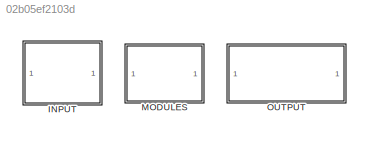
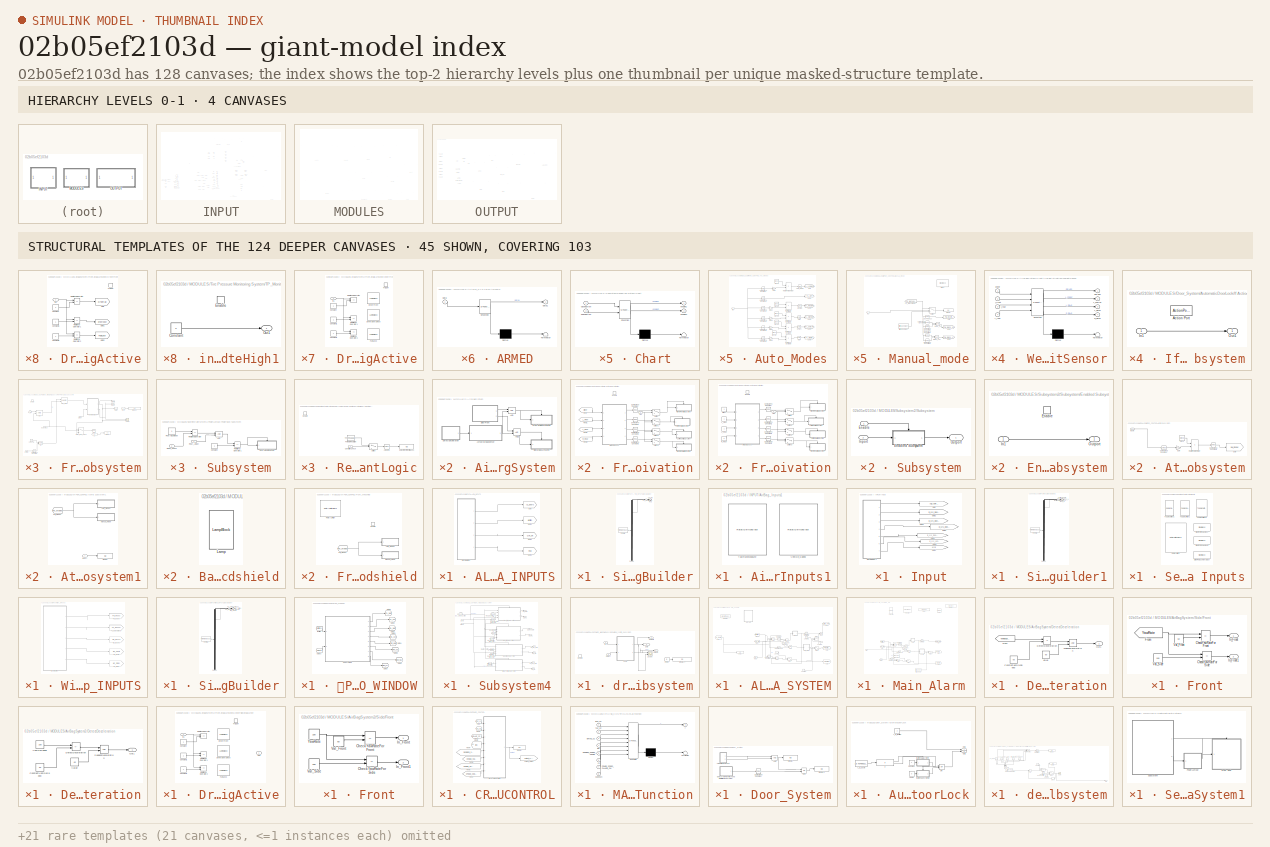
[diagram: thumbnail index - top-2 hierarchy levels (4 canvases) + 45 structural-template representatives of the remaining 124 canvases]
MODEL slx_02b05ef2103d
KIND model
CONFIG AbsTol = auto
CONFIG EnableMultiTasking = off
CONFIG FixedStep = auto
CONFIG MaxStep = auto
CONFIG MinStep = auto
CONFIG RelTol = 1e-3
CONFIG SampleTimeConstraint = Unconstrained
CONFIG SolverName = VariableStepAuto
CONFIG StartTime = 0.0
CONFIG StopTime = 10.0
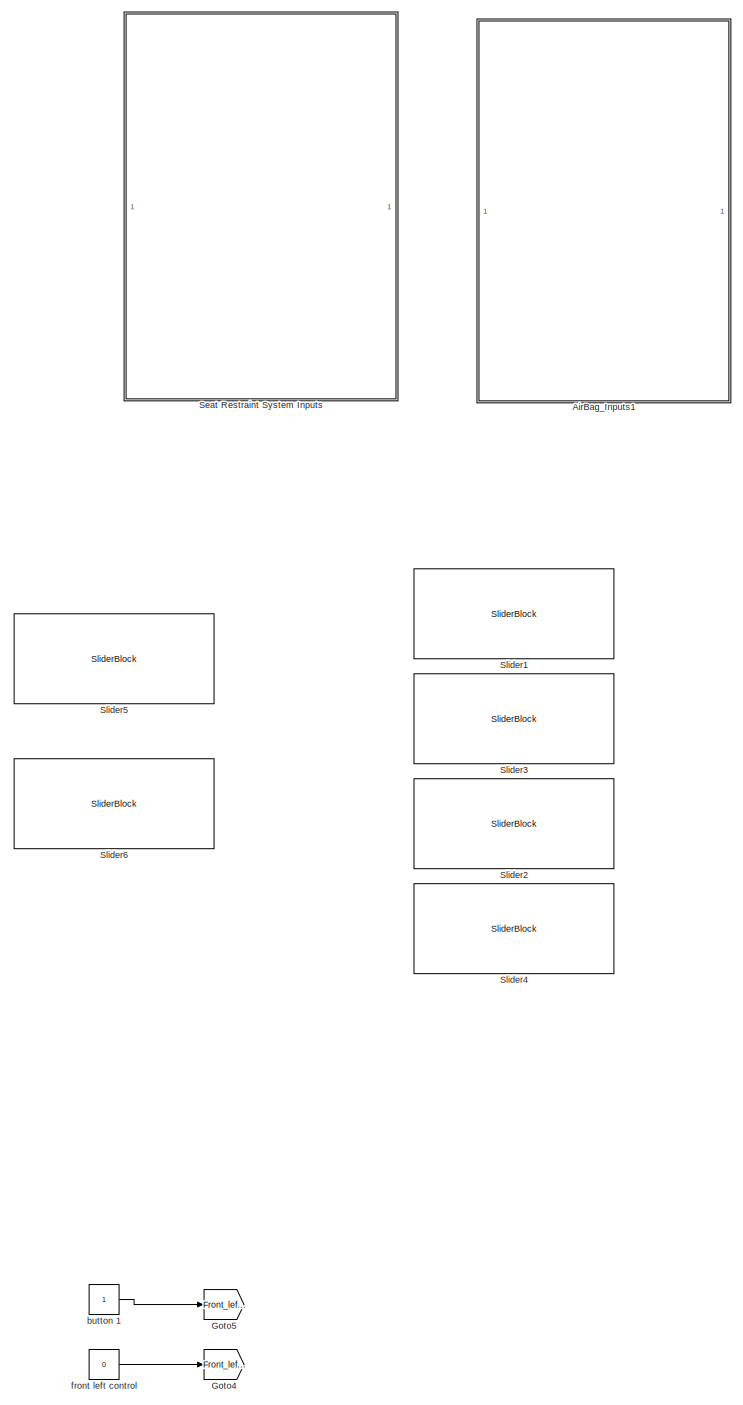
[diagram: INPUT - part 1/8, top center region]
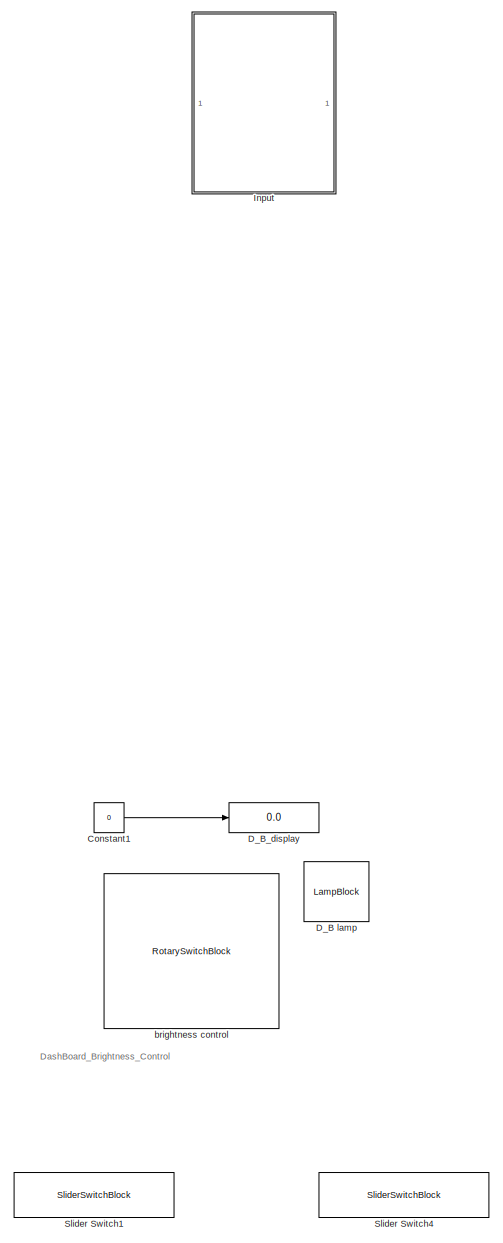
[diagram: INPUT - part 2/8, top right region]
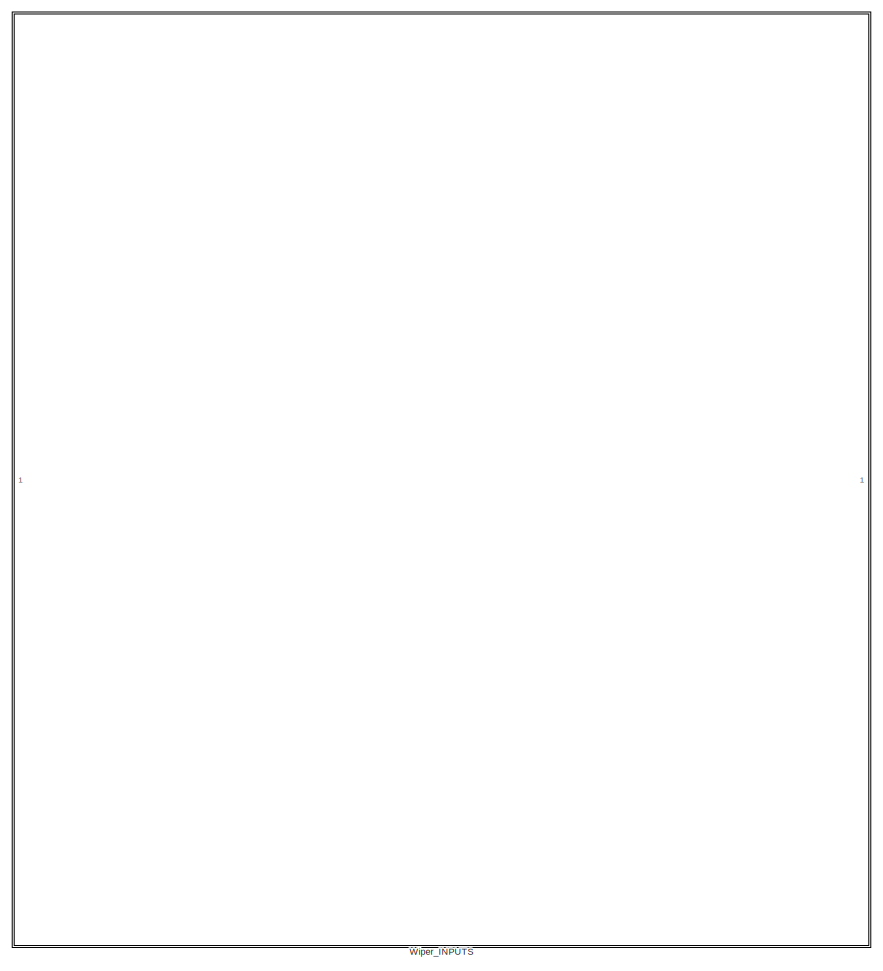
[diagram: INPUT - part 3/8, middle right region]
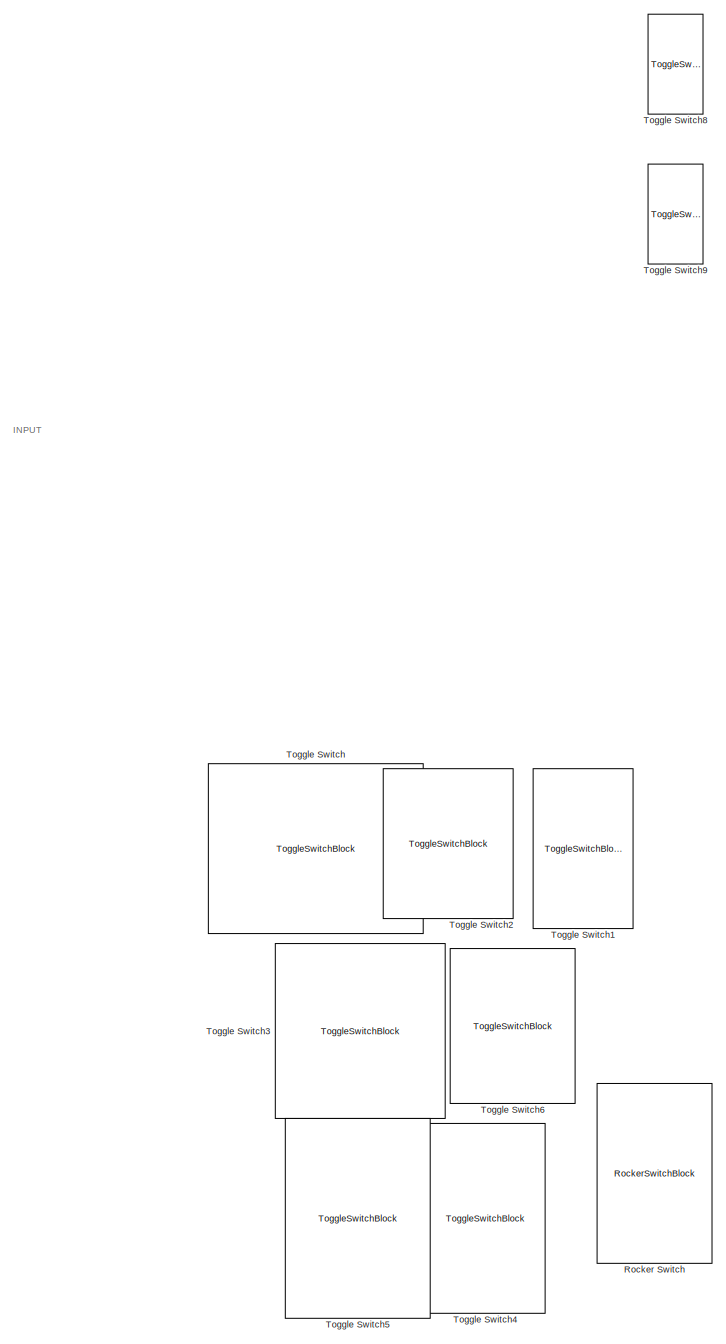
[diagram: INPUT - part 4/8, middle left region]
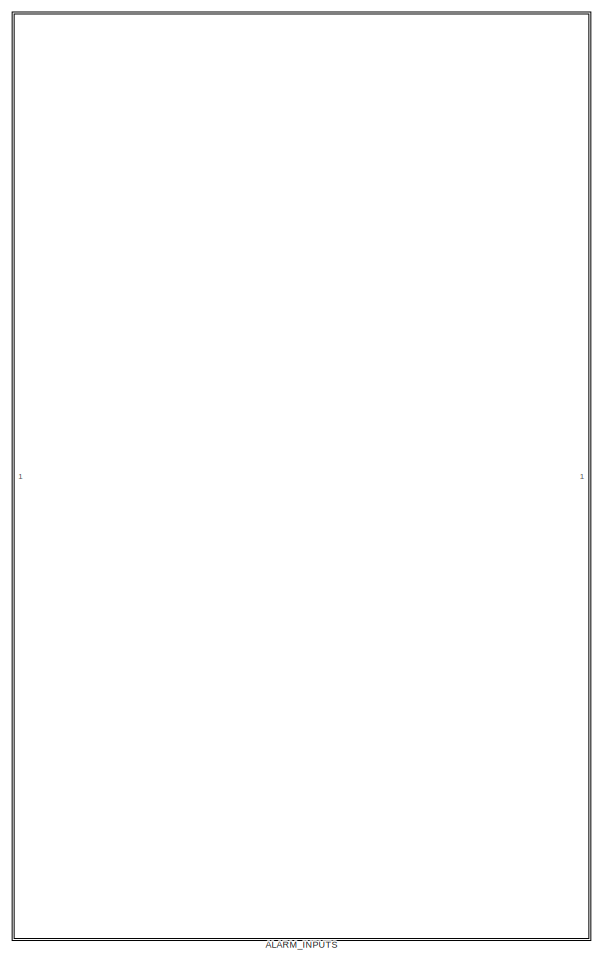
[diagram: INPUT - part 5/8, bottom right region]
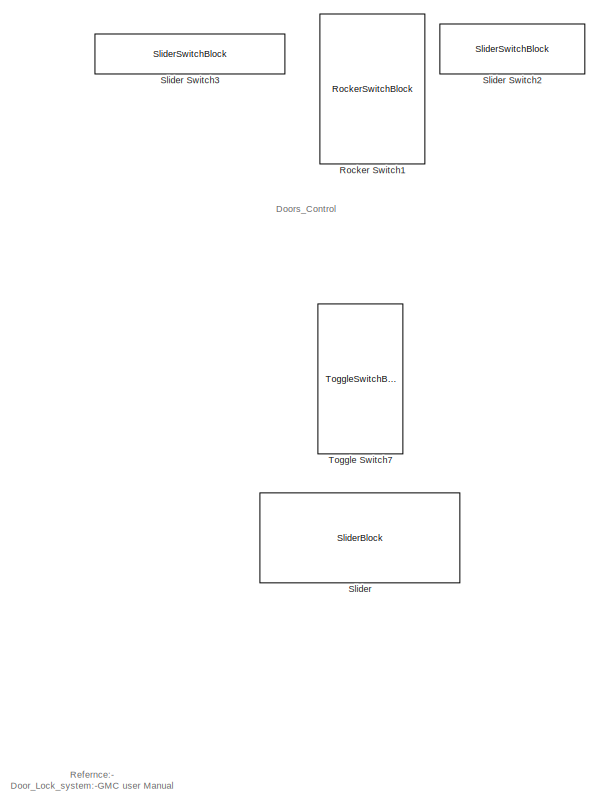
[diagram: INPUT - part 6/8, bottom center region]
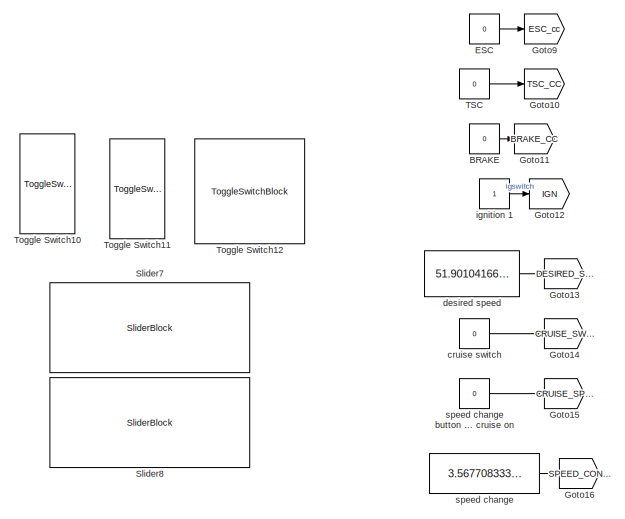
[diagram: INPUT - part 7/8, bottom left region]
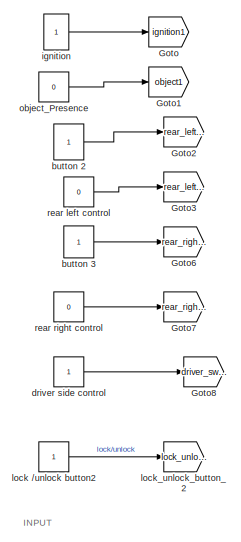
[diagram: INPUT - part 8/8, bottom center region]
BLOCK [SubSystem] INPUT
  Ports = []
  RequestExecContextInheritance = off
BLOCK [SubSystem] INPUT/ALARM_INPUTS
  Ports = []
  RequestExecContextInheritance = off
BLOCK [Goto] INPUT/ALARM_INPUTS/Goto
  GotoTag = AS_Doors
  TagVisibility = global
BLOCK [Goto] INPUT/ALARM_INPUTS/Goto1
  GotoTag = Ignition
  TagVisibility = global
BLOCK [Goto] INPUT/ALARM_INPUTS/Goto2
  GotoTag = CAR_ON
  TagVisibility = global
BLOCK [Goto] INPUT/ALARM_INPUTS/Goto3
  GotoTag = RKE
  TagVisibility = global
BLOCK [SubSystem] INPUT/ALARM_INPUTS/Signal Builder
  ClipboardFcn = sigbuilder_block('clipboard');
  CloseFcn = sigbuilder_block('close');
  ContinueFcn = sigbuilder_block('continue');
  CopyFcn = sigbuilder_block('copy');
  DeleteFcn = sigbuilder_block('delete');
  LoadFcn = sigbuilder_block('load');
  MaskHideContents = on
  ModelCloseFcn = sigbuilder_block('modelClose');
  NameChangeFcn = sigbuilder_block('namechange');
  OpenFcn = sigbuilder_block('open',[403.5 199.2 550.5 359.55 ]);
  PauseFcn = sigbuilder_block('pause');
  Ports = [0, 4]
  PreSaveFcn = sigbuilder_block('preSave');
  RequestExecContextInheritance = off
  StartFcn = sigbuilder_block('start');
  StopFcn = sigbuilder_block('stop');
  Tag = STV Subsys
BLOCK [Outport] INPUT/ALARM_INPUTS/Signal Builder/AS_Doors
  Tag = STV Outport
BLOCK [Outport] INPUT/ALARM_INPUTS/Signal Builder/Car_ON
  Port = 3
  Tag = STV Outport
BLOCK [Demux] INPUT/ALARM_INPUTS/Signal Builder/Demux
  DisplayOption = none
  Ports = [1, 4]
  Tag = STV Demux
BLOCK [FromWorkspace] INPUT/ALARM_INPUTS/Signal Builder/FromWs
  Tag = STV FromWs
  VariableName = tuvar
BLOCK [Outport] INPUT/ALARM_INPUTS/Signal Builder/Ignition
  Port = 2
  Tag = STV Outport
BLOCK [Outport] INPUT/ALARM_INPUTS/Signal Builder/RKE
  Port = 4
  Tag = STV Outport
BLOCK [SubSystem] INPUT/AirBag_Inputs1
  Ports = []
  RequestExecContextInheritance = off
BLOCK [RotarySwitchBlock] INPUT/AirBag_Inputs1/Vehicle_Speed
BLOCK [RotarySwitchBlock] INPUT/AirBag_Inputs1/YawRateMeasure
BLOCK [Constant] INPUT/BRAKE
  Value = 0
BLOCK [Constant] INPUT/Constant1
  NameLocation = top
  Value = 0
BLOCK [LampBlock] INPUT/D_B lamp
BLOCK [Display] INPUT/D_B_display
  Decimation = 1
  Ports = [1]
BLOCK [Constant] INPUT/ESC
  Value = 0
BLOCK [Goto] INPUT/Goto
  GotoTag = ignition1
  TagVisibility = global
BLOCK [Goto] INPUT/Goto1
  GotoTag = object1
  TagVisibility = global
BLOCK [Goto] INPUT/Goto10
  GotoTag = TSC_CC
  TagVisibility = global
BLOCK [Goto] INPUT/Goto11
  GotoTag = BRAKE_CC
  TagVisibility = global
BLOCK [Goto] INPUT/Goto12
  GotoTag = IGN
  TagVisibility = global
BLOCK [Goto] INPUT/Goto13
  GotoTag = DESIRED_SPEED_CRUISE
  TagVisibility = global
BLOCK [Goto] INPUT/Goto14
  GotoTag = CRUISE_SWITCH
  TagVisibility = global
BLOCK [Goto] INPUT/Goto15
  GotoTag = CRUISE_SPEED_CHANGE_SW
  TagVisibility = global
BLOCK [Goto] INPUT/Goto16
  GotoTag = SPEED_CONTROL_CC
  TagVisibility = global
BLOCK [Goto] INPUT/Goto2
  GotoTag = rear_left_button_CP1
  TagVisibility = global
BLOCK [Goto] INPUT/Goto3
  GotoTag = rear_left_button_driver_side1
  TagVisibility = global
BLOCK [Goto] INPUT/Goto4
  GotoTag = Front_left_button_driver_side1
  TagVisibility = global
BLOCK [Goto] INPUT/Goto5
  GotoTag = Front_left_button_CP1
  TagVisibility = global
BLOCK [Goto] INPUT/Goto6
  GotoTag = rear_right_button_CP1
  TagVisibility = global
BLOCK [Goto] INPUT/Goto7
  GotoTag = rear_right_button_driver_side1
  TagVisibility = global
BLOCK [Goto] INPUT/Goto8
  GotoTag = driver_switch1
  TagVisibility = global
BLOCK [Goto] INPUT/Goto9
  GotoTag = ESC_cc
  TagVisibility = global
BLOCK [SubSystem] INPUT/Input
  Ports = []
  RequestExecContextInheritance = off
BLOCK [Goto] INPUT/Input/Goto
  GotoTag = ADl_Ignition_System
  TagVisibility = global
BLOCK [Goto] INPUT/Input/Goto1
  GotoTag = accln
  TagVisibility = global
BLOCK [Goto] INPUT/Input/Goto2
  GotoTag = D_sys_Door1
  TagVisibility = global
BLOCK [Goto] INPUT/Input/Goto3
  GotoTag = D_sys_Door2
  TagVisibility = global
BLOCK [Goto] INPUT/Input/Goto4
  GotoTag = D_sys_Door4
  TagVisibility = global
BLOCK [Goto] INPUT/Input/Goto5
  GotoTag = D_sys_Door3
  TagVisibility = global
BLOCK [Goto] INPUT/Input/Goto6
  GotoTag = D_sys_antilock
  TagVisibility = global
BLOCK [SubSystem] INPUT/Input/Signal Builder1
  ClipboardFcn = sigbuilder_block('clipboard');
  CloseFcn = sigbuilder_block('close');
  ContinueFcn = sigbuilder_block('continue');
  CopyFcn = sigbuilder_block('copy');
  DeleteFcn = sigbuilder_block('delete');
  LoadFcn = sigbuilder_block('load');
  MaskHideContents = on
  ModelCloseFcn = sigbuilder_block('modelClose');
  NameChangeFcn = sigbuilder_block('namechange');
  OpenFcn = sigbuilder_block('open',[6 37.5 329.25 111.75 ]);
  PauseFcn = sigbuilder_block('pause');
  Ports = [0, 7]
  PreSaveFcn = sigbuilder_block('preSave');
  RequestExecContextInheritance = off
  StartFcn = sigbuilder_block('start');
  StopFcn = sigbuilder_block('stop');
  Tag = STV Subsys
BLOCK [Demux] INPUT/Input/Signal Builder1/Demux
  DisplayOption = none
  Outputs = 7
  Ports = [1, 7]
  Tag = STV Demux
BLOCK [Outport] INPUT/Input/Signal Builder1/Door_1
  Port = 2
  Tag = STV Outport
BLOCK [Outport] INPUT/Input/Signal Builder1/Door_2
  Port = 3
  Tag = STV Outport
BLOCK [Outport] INPUT/Input/Signal Builder1/Door_3
  Port = 4
  Tag = STV Outport
BLOCK [Outport] INPUT/Input/Signal Builder1/Door_4
  Port = 5
  Tag = STV Outport
BLOCK [FromWorkspace] INPUT/Input/Signal Builder1/FromWs
  Tag = STV FromWs
  VariableName = tuvar
BLOCK [Outport] INPUT/Input/Signal Builder1/accln
  Port = 7
  Tag = STV Outport
BLOCK [Outport] INPUT/Input/Signal Builder1/antilockleature
  Port = 6
  Tag = STV Outport
BLOCK [Outport] INPUT/Input/Signal Builder1/ignition status
  Tag = STV Outport
BLOCK [RockerSwitchBlock] INPUT/Rocker Switch
  LabelPosition = Bottom
BLOCK [RockerSwitchBlock] INPUT/Rocker Switch1
BLOCK [SubSystem] INPUT/Seat Restraint System Inputs
  Ports = []
  RequestExecContextInheritance = off
BLOCK [RotarySwitchBlock] INPUT/Seat Restraint System Inputs/Rotary Switch
BLOCK [SliderBlock] INPUT/Seat Restraint System Inputs/SliderForCushionAdjust
BLOCK [SliderBlock] INPUT/Seat Restraint System Inputs/SliderForRearAdjust
BLOCK [SliderBlock] INPUT/Seat Restraint System Inputs/SliderForSeatAdjust1
BLOCK [ToggleSwitchBlock] INPUT/Seat Restraint System Inputs/Toggle Switch1
BLOCK [ToggleSwitchBlock] INPUT/Seat Restraint System Inputs/Toggle Switch2
BLOCK [ToggleSwitchBlock] INPUT/Seat Restraint System Inputs/Toggle Switch3
BLOCK [SliderBlock] INPUT/Slider
BLOCK [SliderSwitchBlock] INPUT/Slider Switch1
BLOCK [SliderSwitchBlock] INPUT/Slider Switch2
BLOCK [SliderSwitchBlock] INPUT/Slider Switch3
BLOCK [SliderSwitchBlock] INPUT/Slider Switch4
BLOCK [SliderBlock] INPUT/Slider1
BLOCK [SliderBlock] INPUT/Slider2
BLOCK [SliderBlock] INPUT/Slider3
BLOCK [SliderBlock] INPUT/Slider4
BLOCK [SliderBlock] INPUT/Slider5
BLOCK [SliderBlock] INPUT/Slider6
BLOCK [SliderBlock] INPUT/Slider7
BLOCK [SliderBlock] INPUT/Slider8
BLOCK [Constant] INPUT/TSC
  Value = 0
BLOCK [ToggleSwitchBlock] INPUT/Toggle Switch
BLOCK [ToggleSwitchBlock] INPUT/Toggle Switch1
BLOCK [ToggleSwitchBlock] INPUT/Toggle Switch10
BLOCK [ToggleSwitchBlock] INPUT/Toggle Switch11
BLOCK [ToggleSwitchBlock] INPUT/Toggle Switch12
BLOCK [ToggleSwitchBlock] INPUT/Toggle Switch2
BLOCK [ToggleSwitchBlock] INPUT/Toggle Switch3
BLOCK [ToggleSwitchBlock] INPUT/Toggle Switch4
BLOCK [ToggleSwitchBlock] INPUT/Toggle Switch5
BLOCK [ToggleSwitchBlock] INPUT/Toggle Switch6
BLOCK [ToggleSwitchBlock] INPUT/Toggle Switch7
BLOCK [ToggleSwitchBlock] INPUT/Toggle Switch8
BLOCK [ToggleSwitchBlock] INPUT/Toggle Switch9
BLOCK [SubSystem] INPUT/Wiper_INPUTS
  Ports = []
  RequestExecContextInheritance = off
BLOCK [Goto] INPUT/Wiper_INPUTS/       WC_BackS
  GotoTag = WC_BackS
  TagVisibility = global
BLOCK [Goto] INPUT/Wiper_INPUTS/       WC_FrontS
  GotoTag = WC_FrontS
  TagVisibility = global
BLOCK [Goto] INPUT/Wiper_INPUTS/       WC_Status
  GotoTag = WC_Status
  TagVisibility = global
BLOCK [Goto] INPUT/Wiper_INPUTS/FC_ManualInput
  GotoTag = FC_ManualInput
  TagVisibility = global
BLOCK [Goto] INPUT/Wiper_INPUTS/FW_Modes
  GotoTag = FW_Modes
  TagVisibility = global
BLOCK [SubSystem] INPUT/Wiper_INPUTS/Signal Builder
  ClipboardFcn = sigbuilder_block('clipboard');
  CloseFcn = sigbuilder_block('close');
  ContinueFcn = sigbuilder_block('continue');
  CopyFcn = sigbuilder_block('copy');
  DeleteFcn = sigbuilder_block('delete');
  LoadFcn = sigbuilder_block('load');
  MaskHideContents = on
  ModelCloseFcn = sigbuilder_block('modelClose');
  NameChangeFcn = sigbuilder_block('namechange');
  OpenFcn = sigbuilder_block('open',[437.6 199.2 550.4 400 ]);
  PauseFcn = sigbuilder_block('pause');
  Ports = [0, 5]
  PreSaveFcn = sigbuilder_block('preSave');
  RequestExecContextInheritance = off
  StartFcn = sigbuilder_block('start');
  StopFcn = sigbuilder_block('stop');
  Tag = STV Subsys
BLOCK [Demux] INPUT/Wiper_INPUTS/Signal Builder/Demux
  DisplayOption = none
  Outputs = 5
  Ports = [1, 5]
  Tag = STV Demux
BLOCK [Outport] INPUT/Wiper_INPUTS/Signal Builder/FC_ManualInput
  Port = 2
  Tag = STV Outport
BLOCK [Outport] INPUT/Wiper_INPUTS/Signal Builder/FC_Modes
  Tag = STV Outport
BLOCK [FromWorkspace] INPUT/Wiper_INPUTS/Signal Builder/FromWs
  Tag = STV FromWs
  VariableName = tuvar
BLOCK [Outport] INPUT/Wiper_INPUTS/Signal Builder/WC_BackS
  Port = 3
  Tag = STV Outport
BLOCK [Outport] INPUT/Wiper_INPUTS/Signal Builder/WC_Fronts
  Port = 4
  Tag = STV Outport
BLOCK [Outport] INPUT/Wiper_INPUTS/Signal Builder/WC_Status
  Port = 5
  Tag = STV Outport
BLOCK [RotarySwitchBlock] INPUT/brightness control
BLOCK [Constant] INPUT/button 1 
BLOCK [Constant] INPUT/button 2
BLOCK [Constant] INPUT/button 3
BLOCK [Constant] INPUT/cruise switch
  Value = 0
BLOCK [Constant] INPUT/desired speed
  Value = 51.90104166666667
BLOCK [Constant] INPUT/driver side control
BLOCK [Constant] INPUT/front left control
  Value = 0
BLOCK [Constant] INPUT/ignition 
BLOCK [Constant] INPUT/ignition 1
BLOCK [Constant] INPUT/lock //unlock button2
  NameLocation = top
BLOCK [Goto] INPUT/lock_unlock_button_2
  GotoTag = lock_unlock_button1
  TagVisibility = global
BLOCK [Constant] INPUT/object_Presence
  Value = 0
BLOCK [Constant] INPUT/rear  left control
  Value = 0
BLOCK [Constant] INPUT/rear right control
  Value = 0
BLOCK [Constant] INPUT/speed change
  Value = 3.567708333333333
BLOCK [Constant] INPUT/speed change button when cruise on 
  Value = 0
BLOCK [SubSystem] MODULES
  Ports = []
  RequestExecContextInheritance = off
BLOCK [SubSystem] MODULES/	POWER_WINDOW
  Ports = []
  RequestExecContextInheritance = off
BLOCK [Goto] MODULES/	POWER_WINDOW/Goto2
  GotoTag = FL_out
  TagVisibility = global
BLOCK [Goto] MODULES/	POWER_WINDOW/Goto3
  GotoTag = RL_out
  TagVisibility = global
BLOCK [Goto] MODULES/	POWER_WINDOW/Goto4
  GotoTag = RR_warn
  TagVisibility = global
BLOCK [Goto] MODULES/	POWER_WINDOW/Goto5
  GotoTag = RR_out
  TagVisibility = global
BLOCK [Goto] MODULES/	POWER_WINDOW/Goto6
  GotoTag = driver_warn
  TagVisibility = global
BLOCK [Goto] MODULES/	POWER_WINDOW/Goto7
  GotoTag = RL_warn
  TagVisibility = global
BLOCK [Goto] MODULES/	POWER_WINDOW/Goto8
  GotoTag = FL_warn
  TagVisibility = global
BLOCK [Goto] MODULES/	POWER_WINDOW/Goto9
  GotoTag = driver_side_output
  TagVisibility = global
BLOCK [SubSystem] MODULES/	POWER_WINDOW/Subsystem4
  Ports = [2, 8]
  RequestExecContextInheritance = off
BLOCK [From] MODULES/	POWER_WINDOW/Subsystem4/Front_left_button_CP
  GotoTag = Front_left_button_CP1
  TagVisibility = global
BLOCK [From] MODULES/	POWER_WINDOW/Subsystem4/Front_left_button_driver_side
  GotoTag = Front_left_button_driver_side1
  TagVisibility = global
BLOCK [SubSystem] MODULES/	POWER_WINDOW/Subsystem4/Front_left_subsystem
  Ports = [4, 2, 1]
  RequestExecContextInheritance = off
BLOCK [Logic] MODULES/	POWER_WINDOW/Subsystem4/Front_left_subsystem/AND
  AllPortsSameDT = off
  IconShape = distinctive
  OutDataTypeStr = boolean
  Ports = [2, 1]
BLOCK [Reference] MODULES/	POWER_WINDOW/Subsystem4/Front_left_subsystem/Compare To Constant1  REF=simulink/Logic and Bit
Operations/Compare
To Constant
  Ports = [1, 1]
  SourceBlock = simulink/Logic and Bit\nOperations/Compare\nTo Constant
  SourceProductBaseCode = SL
  SourceType = Compare To Constant
BLOCK [Display] MODULES/	POWER_WINDOW/Subsystem4/Front_left_subsystem/Display
  Decimation = 1
  Ports = [1]
BLOCK [Display] MODULES/	POWER_WINDOW/Subsystem4/Front_left_subsystem/Display1
  Decimation = 1
  Ports = [1]
BLOCK [EnablePort] MODULES/	POWER_WINDOW/Subsystem4/Front_left_subsystem/Enable
  Ports = []
BLOCK [From] MODULES/	POWER_WINDOW/Subsystem4/Front_left_subsystem/From
  TagVisibility = global
BLOCK [Goto] MODULES/	POWER_WINDOW/Subsystem4/Front_left_subsystem/Goto
  GotoTag = b1
BLOCK [Goto] MODULES/	POWER_WINDOW/Subsystem4/Front_left_subsystem/Goto1
  TagVisibility = global
BLOCK [Inport] MODULES/	POWER_WINDOW/Subsystem4/Front_left_subsystem/In_fl_Dc
  Port = 3
BLOCK [Inport] MODULES/	POWER_WINDOW/Subsystem4/Front_left_subsystem/In_fl_b
  Port = 2
BLOCK [Outport] MODULES/	POWER_WINDOW/Subsystem4/Front_left_subsystem/Outport
BLOCK [Outport] MODULES/	POWER_WINDOW/Subsystem4/Front_left_subsystem/Outport1
  Port = 2
BLOCK [Scope] MODULES/	POWER_WINDOW/Subsystem4/Front_left_subsystem/Scope
  Floating = off
  NumInputPorts = 2
  Ports = [2]
  ScopeSpecificationString = Simulink.scopes.TimeScopeBlockCfg('CurrentConfiguration', extmgr.ConfigurationSet(extmgr.Configuration('Core','General UI',true),extmgr.Configuration('Core','Source UI',true),extmgr.Configuration('Sources','WiredSimulink',true),extmgr.Configuration('Visuals','Time Domain',true,'SerializedDisplays',{struct('MinYLimReal','-0.125','MaxYLimReal','1.125','YLabelReal','','MinYLimMag','0.00000','MaxYLimM...<+1385ch>
BLOCK [Switch] MODULES/	POWER_WINDOW/Subsystem4/Front_left_subsystem/Switch_lock_unlock
  Criteria = u2 > Threshold
  InputSameDT = off
  SaturateOnIntegerOverflow = off
BLOCK [From] MODULES/	POWER_WINDOW/Subsystem4/Front_left_subsystem/b1
  GotoTag = b1
BLOCK [Constant] MODULES/	POWER_WINDOW/Subsystem4/Front_left_subsystem/check_ip
BLOCK [SubSystem] MODULES/	POWER_WINDOW/Subsystem4/Front_left_subsystem/decision_Box
  ErrorFcn = Stateflow.Translate.translate
  PermitHierarchicalResolution = ExplicitOnly
  Ports = [2, 2]
  RequestExecContextInheritance = off
  SFBlockType = Chart
  TreatAsAtomicUnit = on
BLOCK [Demux] MODULES/	POWER_WINDOW/Subsystem4/Front_left_subsystem/decision_Box/ Demux 
  Outputs = 1
  Ports = [1, 1]
BLOCK [S-Function] MODULES/	POWER_WINDOW/Subsystem4/Front_left_subsystem/decision_Box/ SFunction 
  EnableBusSupport = off
  FunctionName = sf_sfun
  PortCounts = [2 3]
  Ports = [2, 3]
  SFcnIsStateOwnerBlock = off
  SFunctionDeploymentMode = off
  Tag = Stateflow S-Function 1
BLOCK [Terminator] MODULES/	POWER_WINDOW/Subsystem4/Front_left_subsystem/decision_Box/ Terminator 
BLOCK [Inport] MODULES/	POWER_WINDOW/Subsystem4/Front_left_subsystem/decision_Box/data
BLOCK [Inport] MODULES/	POWER_WINDOW/Subsystem4/Front_left_subsystem/decision_Box/data1
  Port = 2
BLOCK [Outport] MODULES/	POWER_WINDOW/Subsystem4/Front_left_subsystem/decision_Box/op1
BLOCK [Outport] MODULES/	POWER_WINDOW/Subsystem4/Front_left_subsystem/decision_Box/warning
  Port = 2
BLOCK [Logic] MODULES/	POWER_WINDOW/Subsystem4/Front_left_subsystem/inp_data
  AllPortsSameDT = off
  IconShape = distinctive
  Operator = NXOR
  OutDataTypeStr = boolean
  Ports = [2, 1]
BLOCK [Inport] MODULES/	POWER_WINDOW/Subsystem4/Front_left_subsystem/lock//unlock
BLOCK [Inport] MODULES/	POWER_WINDOW/Subsystem4/Front_left_subsystem/object
  Port = 4
BLOCK [Logic] MODULES/	POWER_WINDOW/Subsystem4/Front_left_subsystem/or1
  AllPortsSameDT = off
  IconShape = distinctive
  Operator = NXOR
  OutDataTypeStr = boolean
  Ports = [2, 1]
BLOCK [Inport] MODULES/	POWER_WINDOW/Subsystem4/Ig_sw
BLOCK [Outport] MODULES/	POWER_WINDOW/Subsystem4/Out_DC
  Port = 8
BLOCK [Outport] MODULES/	POWER_WINDOW/Subsystem4/Out_DC_warn
  Port = 7
BLOCK [Outport] MODULES/	POWER_WINDOW/Subsystem4/Out_FL
  Port = 2
BLOCK [Outport] MODULES/	POWER_WINDOW/Subsystem4/Out_RL
  Port = 4
BLOCK [Outport] MODULES/	POWER_WINDOW/Subsystem4/Out_RL_warn
  Port = 3
BLOCK [Outport] MODULES/	POWER_WINDOW/Subsystem4/Out_RR
  Port = 6
BLOCK [Outport] MODULES/	POWER_WINDOW/Subsystem4/Out_RR_warn
  Port = 5
BLOCK [Outport] MODULES/	POWER_WINDOW/Subsystem4/Out_warn
BLOCK [SubSystem] MODULES/	POWER_WINDOW/Subsystem4/Rear_right_Subsystem
  Ports = [4, 2, 1]
  RequestExecContextInheritance = off
BLOCK [SubSystem] MODULES/	POWER_WINDOW/Subsystem4/Rear_right_Subsystem/Chart
  ErrorFcn = Stateflow.Translate.translate
  PermitHierarchicalResolution = ExplicitOnly
  Ports = [2, 2]
  RequestExecContextInheritance = off
  SFBlockType = Chart
  TreatAsAtomicUnit = on
BLOCK [Demux] MODULES/	POWER_WINDOW/Subsystem4/Rear_right_Subsystem/Chart/ Demux 
  Outputs = 1
  Ports = [1, 1]
BLOCK [S-Function] MODULES/	POWER_WINDOW/Subsystem4/Rear_right_Subsystem/Chart/ SFunction 
  EnableBusSupport = off
  FunctionName = sf_sfun
  PortCounts = [2 3]
  Ports = [2, 3]
  SFcnIsStateOwnerBlock = off
  SFunctionDeploymentMode = off
  Tag = Stateflow S-Function 2
BLOCK [Terminator] MODULES/	POWER_WINDOW/Subsystem4/Rear_right_Subsystem/Chart/ Terminator 
BLOCK [Inport] MODULES/	POWER_WINDOW/Subsystem4/Rear_right_Subsystem/Chart/data
BLOCK [Inport] MODULES/	POWER_WINDOW/Subsystem4/Rear_right_Subsystem/Chart/data1
  Port = 2
BLOCK [Outport] MODULES/	POWER_WINDOW/Subsystem4/Rear_right_Subsystem/Chart/op1
BLOCK [Outport] MODULES/	POWER_WINDOW/Subsystem4/Rear_right_Subsystem/Chart/warning
  Port = 2
BLOCK [Reference] MODULES/	POWER_WINDOW/Subsystem4/Rear_right_Subsystem/Compare To Constant1  REF=simulink/Logic and Bit
Operations/Compare
To Constant
  Ports = [1, 1]
  SourceBlock = simulink/Logic and Bit\nOperations/Compare\nTo Constant
  SourceProductBaseCode = SL
  SourceType = Compare To Constant
BLOCK [Constant] MODULES/	POWER_WINDOW/Subsystem4/Rear_right_Subsystem/Constant1
  Value = 3
BLOCK [Display] MODULES/	POWER_WINDOW/Subsystem4/Rear_right_Subsystem/Display2
  Decimation = 1
  Ports = [1]
BLOCK [Display] MODULES/	POWER_WINDOW/Subsystem4/Rear_right_Subsystem/Display3
  Decimation = 1
  Ports = [1]
BLOCK [EnablePort] MODULES/	POWER_WINDOW/Subsystem4/Rear_right_Subsystem/Enable
  Ports = []
BLOCK [From] MODULES/	POWER_WINDOW/Subsystem4/Rear_right_Subsystem/From2
  GotoTag = c
  TagVisibility = global
BLOCK [Goto] MODULES/	POWER_WINDOW/Subsystem4/Rear_right_Subsystem/Goto
  GotoTag = c
  TagVisibility = global
BLOCK [Goto] MODULES/	POWER_WINDOW/Subsystem4/Rear_right_Subsystem/Goto2
  GotoTag = b3
BLOCK [Inport] MODULES/	POWER_WINDOW/Subsystem4/Rear_right_Subsystem/In2
  Port = 2
BLOCK [Inport] MODULES/	POWER_WINDOW/Subsystem4/Rear_right_Subsystem/In3
  Port = 3
BLOCK [Outport] MODULES/	POWER_WINDOW/Subsystem4/Rear_right_Subsystem/Outport
BLOCK [Outport] MODULES/	POWER_WINDOW/Subsystem4/Rear_right_Subsystem/Outport1
  Port = 2
BLOCK [Scope] MODULES/	POWER_WINDOW/Subsystem4/Rear_right_Subsystem/Scope
  Floating = off
  NumInputPorts = 2
  Ports = [2]
  ScopeSpecificationString = Simulink.scopes.TimeScopeBlockCfg('CurrentConfiguration', extmgr.ConfigurationSet(extmgr.Configuration('Core','General UI',true),extmgr.Configuration('Core','Source UI',true),extmgr.Configuration('Sources','WiredSimulink',true,'DataLoggingVariableName','ScopeData2'),extmgr.Configuration('Visuals','Time Domain',true,'SerializedDisplays',{struct('MinYLimReal','-9.375','MaxYLimReal','84.375','YLabelR...<+1428ch>
BLOCK [Switch] MODULES/	POWER_WINDOW/Subsystem4/Rear_right_Subsystem/Switch
  Criteria = u2 > Threshold
  InputSameDT = off
  SaturateOnIntegerOverflow = off
BLOCK [From] MODULES/	POWER_WINDOW/Subsystem4/Rear_right_Subsystem/b3
  GotoTag = b3
BLOCK [Inport] MODULES/	POWER_WINDOW/Subsystem4/Rear_right_Subsystem/lock//unlock
BLOCK [Inport] MODULES/	POWER_WINDOW/Subsystem4/Rear_right_Subsystem/object
  Port = 4
BLOCK [Logic] MODULES/	POWER_WINDOW/Subsystem4/Rear_right_Subsystem/or1
  AllPortsSameDT = off
  IconShape = distinctive
  Operator = NXOR
  OutDataTypeStr = boolean
  Ports = [2, 1]
BLOCK [Logic] MODULES/	POWER_WINDOW/Subsystem4/Rear_right_Subsystem/or2
  AllPortsSameDT = off
  IconShape = distinctive
  OutDataTypeStr = boolean
  Ports = [2, 1]
BLOCK [Logic] MODULES/	POWER_WINDOW/Subsystem4/Rear_right_Subsystem/or3
  AllPortsSameDT = off
  IconShape = distinctive
  Operator = NXOR
  OutDataTypeStr = boolean
  Ports = [2, 1]
BLOCK [SubSystem] MODULES/	POWER_WINDOW/Subsystem4/driver_control_Subsystem
  Ports = [2, 2, 1]
  RequestExecContextInheritance = off
BLOCK [SubSystem] MODULES/	POWER_WINDOW/Subsystem4/driver_control_Subsystem/Chart
  ErrorFcn = Stateflow.Translate.translate
  PermitHierarchicalResolution = ExplicitOnly
  Ports = [2, 2]
  RequestExecContextInheritance = off
  SFBlockType = Chart
  TreatAsAtomicUnit = on
BLOCK [Demux] MODULES/	POWER_WINDOW/Subsystem4/driver_control_Subsystem/Chart/ Demux 
  Outputs = 1
  Ports = [1, 1]
BLOCK [S-Function] MODULES/	POWER_WINDOW/Subsystem4/driver_control_Subsystem/Chart/ SFunction 
  EnableBusSupport = off
  FunctionName = sf_sfun
  PortCounts = [2 3]
  Ports = [2, 3]
  SFcnIsStateOwnerBlock = off
  SFunctionDeploymentMode = off
  Tag = Stateflow S-Function 4
BLOCK [Terminator] MODULES/	POWER_WINDOW/Subsystem4/driver_control_Subsystem/Chart/ Terminator 
BLOCK [Inport] MODULES/	POWER_WINDOW/Subsystem4/driver_control_Subsystem/Chart/data
BLOCK [Inport] MODULES/	POWER_WINDOW/Subsystem4/driver_control_Subsystem/Chart/data1
  Port = 2
BLOCK [Outport] MODULES/	POWER_WINDOW/Subsystem4/driver_control_Subsystem/Chart/op1
BLOCK [Outport] MODULES/	POWER_WINDOW/Subsystem4/driver_control_Subsystem/Chart/warning
  Port = 2
BLOCK [Display] MODULES/	POWER_WINDOW/Subsystem4/driver_control_Subsystem/Display4
  Decimation = 1
  Ports = [1]
BLOCK [EnablePort] MODULES/	POWER_WINDOW/Subsystem4/driver_control_Subsystem/Enable
  Ports = []
BLOCK [From] MODULES/	POWER_WINDOW/Subsystem4/driver_control_Subsystem/From3
  GotoTag = d
  TagVisibility = global
BLOCK [Goto] MODULES/	POWER_WINDOW/Subsystem4/driver_control_Subsystem/Goto
  GotoTag = d
  TagVisibility = global
BLOCK [Inport] MODULES/	POWER_WINDOW/Subsystem4/driver_control_Subsystem/In1
BLOCK [Outport] MODULES/	POWER_WINDOW/Subsystem4/driver_control_Subsystem/Outport
BLOCK [Outport] MODULES/	POWER_WINDOW/Subsystem4/driver_control_Subsystem/Outport1
  Port = 2
BLOCK [Scope] MODULES/	POWER_WINDOW/Subsystem4/driver_control_Subsystem/Scope
  Floating = off
  NumInputPorts = 2
  Ports = [2]
  ScopeSpecificationString = Simulink.scopes.TimeScopeBlockCfg('CurrentConfiguration', extmgr.ConfigurationSet(extmgr.Configuration('Core','General UI',true),extmgr.Configuration('Core','Source UI',true),extmgr.Configuration('Sources','WiredSimulink',true,'DataLoggingVariableName','ScopeData3'),extmgr.Configuration('Visuals','Time Domain',true,'SerializedDisplays',{struct('MinYLimReal','-1.00000','MaxYLimReal','1.00000','YLab...<+1437ch>
BLOCK [Inport] MODULES/	POWER_WINDOW/Subsystem4/driver_control_Subsystem/object
  Port = 2
BLOCK [From] MODULES/	POWER_WINDOW/Subsystem4/driver_switch
  GotoTag = driver_switch1
  TagVisibility = global
BLOCK [From] MODULES/	POWER_WINDOW/Subsystem4/lock_unlock_button
  GotoTag = lock_unlock_button1
  TagVisibility = global
BLOCK [Inport] MODULES/	POWER_WINDOW/Subsystem4/object
  Port = 2
BLOCK [SubSystem] MODULES/	POWER_WINDOW/Subsystem4/rear_left_Subsystem
  Ports = [4, 2, 1]
  RequestExecContextInheritance = off
BLOCK [SubSystem] MODULES/	POWER_WINDOW/Subsystem4/rear_left_Subsystem/Chart
  ErrorFcn = Stateflow.Translate.translate
  PermitHierarchicalResolution = ExplicitOnly
  Ports = [2, 2]
  RequestExecContextInheritance = off
  SFBlockType = Chart
  TreatAsAtomicUnit = on
BLOCK [Demux] MODULES/	POWER_WINDOW/Subsystem4/rear_left_Subsystem/Chart/ Demux 
  Outputs = 1
  Ports = [1, 1]
BLOCK [S-Function] MODULES/	POWER_WINDOW/Subsystem4/rear_left_Subsystem/Chart/ SFunction 
  EnableBusSupport = off
  FunctionName = sf_sfun
  PortCounts = [2 3]
  Ports = [2, 3]
  SFcnIsStateOwnerBlock = off
  SFunctionDeploymentMode = off
  Tag = Stateflow S-Function 5
BLOCK [Terminator] MODULES/	POWER_WINDOW/Subsystem4/rear_left_Subsystem/Chart/ Terminator 
BLOCK [Inport] MODULES/	POWER_WINDOW/Subsystem4/rear_left_Subsystem/Chart/data
BLOCK [Inport] MODULES/	POWER_WINDOW/Subsystem4/rear_left_Subsystem/Chart/data1
  Port = 2
BLOCK [Outport] MODULES/	POWER_WINDOW/Subsystem4/rear_left_Subsystem/Chart/op1
BLOCK [Outport] MODULES/	POWER_WINDOW/Subsystem4/rear_left_Subsystem/Chart/warning
  Port = 2
BLOCK [Reference] MODULES/	POWER_WINDOW/Subsystem4/rear_left_Subsystem/Compare To Constant2  REF=simulink/Logic and Bit
Operations/Compare
To Constant
  Ports = [1, 1]
  SourceBlock = simulink/Logic and Bit\nOperations/Compare\nTo Constant
  SourceProductBaseCode = SL
  SourceType = Compare To Constant
BLOCK [Constant] MODULES/	POWER_WINDOW/Subsystem4/rear_left_Subsystem/Constant1
  Value = 2
BLOCK [Display] MODULES/	POWER_WINDOW/Subsystem4/rear_left_Subsystem/Display1
  Decimation = 1
  Ports = [1]
BLOCK [Display] MODULES/	POWER_WINDOW/Subsystem4/rear_left_Subsystem/Display2
  Decimation = 1
  Ports = [1]
BLOCK [EnablePort] MODULES/	POWER_WINDOW/Subsystem4/rear_left_Subsystem/Enable
  Ports = []
BLOCK [From] MODULES/	POWER_WINDOW/Subsystem4/rear_left_Subsystem/From1
  GotoTag = b
  TagVisibility = global
BLOCK [Goto] MODULES/	POWER_WINDOW/Subsystem4/rear_left_Subsystem/Goto
  GotoTag = b
  TagVisibility = global
BLOCK [Goto] MODULES/	POWER_WINDOW/Subsystem4/rear_left_Subsystem/Goto1
  GotoTag = b2
BLOCK [Inport] MODULES/	POWER_WINDOW/Subsystem4/rear_left_Subsystem/In2
  Port = 2
BLOCK [Inport] MODULES/	POWER_WINDOW/Subsystem4/rear_left_Subsystem/In3
  Port = 3
BLOCK [Outport] MODULES/	POWER_WINDOW/Subsystem4/rear_left_Subsystem/Outport
BLOCK [Outport] MODULES/	POWER_WINDOW/Subsystem4/rear_left_Subsystem/Outport1
  Port = 2
BLOCK [Scope] MODULES/	POWER_WINDOW/Subsystem4/rear_left_Subsystem/Scope
  Floating = off
  NumInputPorts = 2
  Ports = [2]
  ScopeSpecificationString = Simulink.scopes.TimeScopeBlockCfg('CurrentConfiguration', extmgr.ConfigurationSet(extmgr.Configuration('Core','General UI',true),extmgr.Configuration('Core','Source UI',true),extmgr.Configuration('Sources','WiredSimulink',true,'DataLoggingVariableName','ScopeData1'),extmgr.Configuration('Visuals','Time Domain',true,'SerializedDisplays',{struct('MinYLimReal','-9.375','MaxYLimReal','84.375','YLabelR...<+1428ch>
BLOCK [Switch] MODULES/	POWER_WINDOW/Subsystem4/rear_left_Subsystem/Switch1
  Criteria = u2 > Threshold
  InputSameDT = off
  SaturateOnIntegerOverflow = off
BLOCK [From] MODULES/	POWER_WINDOW/Subsystem4/rear_left_Subsystem/b2
  GotoTag = b2
BLOCK [Inport] MODULES/	POWER_WINDOW/Subsystem4/rear_left_Subsystem/lock//unlock
BLOCK [Inport] MODULES/	POWER_WINDOW/Subsystem4/rear_left_Subsystem/object
  Port = 4
BLOCK [Logic] MODULES/	POWER_WINDOW/Subsystem4/rear_left_Subsystem/or1
  AllPortsSameDT = off
  IconShape = distinctive
  Operator = NXOR
  OutDataTypeStr = boolean
  Ports = [2, 1]
BLOCK [Logic] MODULES/	POWER_WINDOW/Subsystem4/rear_left_Subsystem/or2
  AllPortsSameDT = off
  IconShape = distinctive
  Operator = NXOR
  OutDataTypeStr = boolean
  Ports = [2, 1]
BLOCK [Logic] MODULES/	POWER_WINDOW/Subsystem4/rear_left_Subsystem/or3
  AllPortsSameDT = off
  IconShape = distinctive
  OutDataTypeStr = boolean
  Ports = [2, 1]
BLOCK [From] MODULES/	POWER_WINDOW/Subsystem4/rear_left_button_CP
  GotoTag = rear_left_button_CP1
  TagVisibility = global
BLOCK [From] MODULES/	POWER_WINDOW/Subsystem4/rear_left_button_driver_side
  GotoTag = rear_left_button_driver_side1
  TagVisibility = global
BLOCK [From] MODULES/	POWER_WINDOW/Subsystem4/rear_right_button_CP
  GotoTag = rear_right_button_CP1
  TagVisibility = global
BLOCK [From] MODULES/	POWER_WINDOW/Subsystem4/rear_right_button_driver_side
  GotoTag = rear_right_button_driver_side1
  TagVisibility = global
BLOCK [From] MODULES/	POWER_WINDOW/ignition
  GotoTag = ignition1
  TagVisibility = global
BLOCK [From] MODULES/	POWER_WINDOW/object
  GotoTag = object1
  TagVisibility = global
BLOCK [SubSystem] MODULES/ALARM_SYSTEM
  Ports = []
  RequestExecContextInheritance = off
BLOCK [Logic] MODULES/ALARM_SYSTEM/AND
  AllPortsSameDT = off
  IconShape = distinctive
  Inputs = 3
  OutDataTypeStr = boolean
  Ports = [3, 1]
BLOCK [Logic] MODULES/ALARM_SYSTEM/AND1
  AllPortsSameDT = off
  IconShape = distinctive
  Inputs = 3
  OutDataTypeStr = boolean
  Ports = [3, 1]
BLOCK [Logic] MODULES/ALARM_SYSTEM/AND2
  AllPortsSameDT = off
  IconShape = distinctive
  OutDataTypeStr = boolean
  Ports = [2, 1]
BLOCK [Logic] MODULES/ALARM_SYSTEM/AND3
  AllPortsSameDT = off
  IconShape = distinctive
  OutDataTypeStr = boolean
  Ports = [2, 1]
BLOCK [SubSystem] MODULES/ALARM_SYSTEM/ARMED
  ErrorFcn = Stateflow.Translate.translate
  PermitHierarchicalResolution = ExplicitOnly
  Ports = [1, 1]
  RequestExecContextInheritance = off
  SFBlockType = Chart
  TreatAsAtomicUnit = on
BLOCK [Demux] MODULES/ALARM_SYSTEM/ARMED/ Demux 
  Outputs = 1
  Ports = [1, 1]
BLOCK [S-Function] MODULES/ALARM_SYSTEM/ARMED/ SFunction 
  EnableBusSupport = off
  FunctionName = sf_sfun
  PortCounts = [1 2]
  Ports = [1, 2]
  SFcnIsStateOwnerBlock = off
  SFunctionDeploymentMode = off
  Tag = Stateflow S-Function 10
BLOCK [Terminator] MODULES/ALARM_SYSTEM/ARMED/ Terminator 
BLOCK [Inport] MODULES/ALARM_SYSTEM/ARMED/data
BLOCK [Outport] MODULES/ALARM_SYSTEM/ARMED/data1
BLOCK [Reference] MODULES/ALARM_SYSTEM/Compare To Constant  REF=simulink/Logic and Bit
Operations/Compare
To Constant
  Ports = [1, 1]
  SourceBlock = simulink/Logic and Bit\nOperations/Compare\nTo Constant
  SourceProductBaseCode = SL
  SourceType = Compare To Constant
BLOCK [Reference] MODULES/ALARM_SYSTEM/Compare To Constant2  REF=simulink/Logic and Bit
Operations/Compare
To Constant
  Ports = [1, 1]
  SourceBlock = simulink/Logic and Bit\nOperations/Compare\nTo Constant
  SourceProductBaseCode = SL
  SourceType = Compare To Constant
BLOCK [Reference] MODULES/ALARM_SYSTEM/Compare To Constant3  REF=simulink/Logic and Bit
Operations/Compare
To Constant
  Ports = [1, 1]
  SourceBlock = simulink/Logic and Bit\nOperations/Compare\nTo Constant
  SourceProductBaseCode = SL
  SourceType = Compare To Constant
BLOCK [Reference] MODULES/ALARM_SYSTEM/Compare To Zero  REF=simulink/Logic and Bit
Operations/Compare
To Zero
  Ports = [1, 1]
  SourceBlock = simulink/Logic and Bit\nOperations/Compare\nTo Zero
  SourceProductBaseCode = SL
  SourceType = Compare To Zero
BLOCK [Reference] MODULES/ALARM_SYSTEM/Compare To Zero1  REF=simulink/Logic and Bit
Operations/Compare
To Zero
  Ports = [1, 1]
  SourceBlock = simulink/Logic and Bit\nOperations/Compare\nTo Zero
  SourceProductBaseCode = SL
  SourceType = Compare To Zero
BLOCK [Constant] MODULES/ALARM_SYSTEM/Constant
BLOCK [Constant] MODULES/ALARM_SYSTEM/Constant1
BLOCK [Constant] MODULES/ALARM_SYSTEM/Constant2
BLOCK [Constant] MODULES/ALARM_SYSTEM/Constant3
  Value = 0
BLOCK [Display] MODULES/ALARM_SYSTEM/Display
  Decimation = 1
  Ports = [1]
BLOCK [From] MODULES/ALARM_SYSTEM/From
  GotoTag = AS_Doors
  TagVisibility = global
BLOCK [From] MODULES/ALARM_SYSTEM/From1
  GotoTag = Ignition
  TagVisibility = global
BLOCK [From] MODULES/ALARM_SYSTEM/From2
  GotoTag = CAR_ON
  TagVisibility = global
BLOCK [From] MODULES/ALARM_SYSTEM/From3
  GotoTag = RKE
  TagVisibility = global
BLOCK [Goto] MODULES/ALARM_SYSTEM/Goto
  GotoTag = Alarm_ARMED
  TagVisibility = global
BLOCK [Goto] MODULES/ALARM_SYSTEM/Goto1
  GotoTag = Prealarm_ARMED
  TagVisibility = global
BLOCK [Goto] MODULES/ALARM_SYSTEM/Goto2
  GotoTag = Disarmed
  TagVisibility = global
BLOCK [SubSystem] MODULES/ALARM_SYSTEM/Main_Alarm
  Commented = on
  Ports = [1]
  RequestExecContextInheritance = off
BLOCK [Logic] MODULES/ALARM_SYSTEM/Main_Alarm/AND
  AllPortsSameDT = off
  IconShape = distinctive
  Inputs = 3
  OutDataTypeStr = boolean
  Ports = [3, 1]
BLOCK [Logic] MODULES/ALARM_SYSTEM/Main_Alarm/AND1
  AllPortsSameDT = off
  IconShape = distinctive
  Inputs = 3
  OutDataTypeStr = boolean
  Ports = [3, 1]
BLOCK [Logic] MODULES/ALARM_SYSTEM/Main_Alarm/AND2
  AllPortsSameDT = off
  IconShape = distinctive
  OutDataTypeStr = boolean
  Ports = [2, 1]
BLOCK [Logic] MODULES/ALARM_SYSTEM/Main_Alarm/AND3
  AllPortsSameDT = off
  IconShape = distinctive
  OutDataTypeStr = boolean
  Ports = [2, 1]
BLOCK [SubSystem] MODULES/ALARM_SYSTEM/Main_Alarm/ARMED
  ErrorFcn = Stateflow.Translate.translate
  PermitHierarchicalResolution = ExplicitOnly
  Ports = [1, 1]
  RequestExecContextInheritance = off
  SFBlockType = Chart
  TreatAsAtomicUnit = on
BLOCK [Demux] MODULES/ALARM_SYSTEM/Main_Alarm/ARMED/ Demux 
  Outputs = 1
  Ports = [1, 1]
BLOCK [S-Function] MODULES/ALARM_SYSTEM/Main_Alarm/ARMED/ SFunction 
  EnableBusSupport = off
  FunctionName = sf_sfun
  PortCounts = [1 2]
  Ports = [1, 2]
  SFcnIsStateOwnerBlock = off
  SFunctionDeploymentMode = off
  Tag = Stateflow S-Function 11
BLOCK [Terminator] MODULES/ALARM_SYSTEM/Main_Alarm/ARMED/ Terminator 
BLOCK [Inport] MODULES/ALARM_SYSTEM/Main_Alarm/ARMED/data
BLOCK [Outport] MODULES/ALARM_SYSTEM/Main_Alarm/ARMED/data1
BLOCK [Reference] MODULES/ALARM_SYSTEM/Main_Alarm/Compare To Constant  REF=simulink/Logic and Bit
Operations/Compare
To Constant
  Ports = [1, 1]
  SourceBlock = simulink/Logic and Bit\nOperations/Compare\nTo Constant
  SourceProductBaseCode = SL
  SourceType = Compare To Constant
BLOCK [Reference] MODULES/ALARM_SYSTEM/Main_Alarm/Compare To Constant2  REF=simulink/Logic and Bit
Operations/Compare
To Constant
  Ports = [1, 1]
  SourceBlock = simulink/Logic and Bit\nOperations/Compare\nTo Constant
  SourceProductBaseCode = SL
  SourceType = Compare To Constant
BLOCK [Reference] MODULES/ALARM_SYSTEM/Main_Alarm/Compare To Constant3  REF=simulink/Logic and Bit
Operations/Compare
To Constant
  Ports = [1, 1]
  SourceBlock = simulink/Logic and Bit\nOperations/Compare\nTo Constant
  SourceProductBaseCode = SL
  SourceType = Compare To Constant
BLOCK [Reference] MODULES/ALARM_SYSTEM/Main_Alarm/Compare To Zero  REF=simulink/Logic and Bit
Operations/Compare
To Zero
  Ports = [1, 1]
  SourceBlock = simulink/Logic and Bit\nOperations/Compare\nTo Zero
  SourceProductBaseCode = SL
  SourceType = Compare To Zero
BLOCK [Reference] MODULES/ALARM_SYSTEM/Main_Alarm/Compare To Zero1  REF=simulink/Logic and Bit
Operations/Compare
To Zero
  Ports = [1, 1]
  SourceBlock = simulink/Logic and Bit\nOperations/Compare\nTo Zero
  SourceProductBaseCode = SL
  SourceType = Compare To Zero
BLOCK [DisplayBlock] MODULES/ALARM_SYSTEM/Main_Alarm/Display3
  Format = short
  LabelPosition = Hide
  Transparency = 1
BLOCK [DisplayBlock] MODULES/ALARM_SYSTEM/Main_Alarm/Display4
  Format = short
  LabelPosition = Hide
  Transparency = 1
BLOCK [From] MODULES/ALARM_SYSTEM/Main_Alarm/From
  GotoTag = Ignition
  TagVisibility = global
BLOCK [From] MODULES/ALARM_SYSTEM/Main_Alarm/From1
  GotoTag = CAR_ON
  TagVisibility = global
BLOCK [From] MODULES/ALARM_SYSTEM/Main_Alarm/From2
  GotoTag = RKE
  TagVisibility = global
BLOCK [Goto] MODULES/ALARM_SYSTEM/Main_Alarm/Goto
  GotoTag = Alarm_ARMED
  TagVisibility = global
BLOCK [Goto] MODULES/ALARM_SYSTEM/Main_Alarm/Goto1
  GotoTag = Prealarm_ARMED
  TagVisibility = global
BLOCK [Goto] MODULES/ALARM_SYSTEM/Main_Alarm/Goto2
  GotoTag = Disarmed
  TagVisibility = global
BLOCK [LampBlock] MODULES/ALARM_SYSTEM/Main_Alarm/Lamp
BLOCK [SubSystem] MODULES/ALARM_SYSTEM/Main_Alarm/Pre_Alarm
  ErrorFcn = Stateflow.Translate.translate
  PermitHierarchicalResolution = ExplicitOnly
  Ports = [1, 1]
  RequestExecContextInheritance = off
  SFBlockType = Chart
  TreatAsAtomicUnit = on
BLOCK [Demux] MODULES/ALARM_SYSTEM/Main_Alarm/Pre_Alarm/ Demux 
  Outputs = 1
  Ports = [1, 1]
BLOCK [S-Function] MODULES/ALARM_SYSTEM/Main_Alarm/Pre_Alarm/ SFunction 
  EnableBusSupport = off
  FunctionName = sf_sfun
  PortCounts = [1 2]
  Ports = [1, 2]
  SFcnIsStateOwnerBlock = off
  SFunctionDeploymentMode = off
  Tag = Stateflow S-Function 14
BLOCK [Terminator] MODULES/ALARM_SYSTEM/Main_Alarm/Pre_Alarm/ Terminator 
BLOCK [Inport] MODULES/ALARM_SYSTEM/Main_Alarm/Pre_Alarm/data
BLOCK [Outport] MODULES/ALARM_SYSTEM/Main_Alarm/Pre_Alarm/data1
BLOCK [RotarySwitchBlock] MODULES/ALARM_SYSTEM/Main_Alarm/Rotary Switch
BLOCK [StringConstant] MODULES/ALARM_SYSTEM/Main_Alarm/String Constant
  String = "DISARMED!"
BLOCK [StringConstant] MODULES/ALARM_SYSTEM/Main_Alarm/String Constant2
  String = "Horn And Lights are ON!"
BLOCK [Switch] MODULES/ALARM_SYSTEM/Main_Alarm/Switch
  Criteria = u2 ~= 0
  InputSameDT = off
  SaturateOnIntegerOverflow = off
BLOCK [Switch] MODULES/ALARM_SYSTEM/Main_Alarm/Switch1
  Criteria = u2 ~= 0
  InputSameDT = off
  SaturateOnIntegerOverflow = off
BLOCK [ToggleSwitchBlock] MODULES/ALARM_SYSTEM/Main_Alarm/Toggle Switch
BLOCK [Inport] MODULES/ALARM_SYSTEM/Main_Alarm/data2
BLOCK [Logic] MODULES/ALARM_SYSTEM/NAND
  AllPortsSameDT = off
  IconShape = distinctive
  Operator = NAND
  OutDataTypeStr = boolean
  Ports = [2, 1]
BLOCK [SubSystem] MODULES/ALARM_SYSTEM/Pre_Alarm
  ErrorFcn = Stateflow.Translate.translate
  PermitHierarchicalResolution = ExplicitOnly
  Ports = [1, 1]
  RequestExecContextInheritance = off
  SFBlockType = Chart
  TreatAsAtomicUnit = on
BLOCK [Demux] MODULES/ALARM_SYSTEM/Pre_Alarm/ Demux 
  Outputs = 1
  Ports = [1, 1]
BLOCK [S-Function] MODULES/ALARM_SYSTEM/Pre_Alarm/ SFunction 
  EnableBusSupport = off
  FunctionName = sf_sfun
  PortCounts = [1 2]
  Ports = [1, 2]
  SFcnIsStateOwnerBlock = off
  SFunctionDeploymentMode = off
  Tag = Stateflow S-Function 15
BLOCK [Terminator] MODULES/ALARM_SYSTEM/Pre_Alarm/ Terminator 
BLOCK [Inport] MODULES/ALARM_SYSTEM/Pre_Alarm/data
BLOCK [Outport] MODULES/ALARM_SYSTEM/Pre_Alarm/data1
BLOCK [SliderSwitchBlock] MODULES/ALARM_SYSTEM/Slider Switch
  Commented = on
BLOCK [Switch] MODULES/ALARM_SYSTEM/Switch
  Criteria = u2 ~= 0
  InputSameDT = off
  SaturateOnIntegerOverflow = off
BLOCK [Switch] MODULES/ALARM_SYSTEM/Switch1
  Criteria = u2 ~= 0
  InputSameDT = off
  SaturateOnIntegerOverflow = off
BLOCK [Switch] MODULES/ALARM_SYSTEM/Switch2
  Criteria = u2 ~= 0
  InputSameDT = off
  SaturateOnIntegerOverflow = off
BLOCK [SubSystem] MODULES/AirBagSystem
  Ports = []
  RequestExecContextInheritance = off
BLOCK [Logic] MODULES/AirBagSystem/AND
  AllPortsSameDT = off
  IconShape = distinctive
  OutDataTypeStr = boolean
  Ports = [2, 1]
BLOCK [Logic] MODULES/AirBagSystem/AND1
  AllPortsSameDT = off
  IconShape = distinctive
  OutDataTypeStr = boolean
  Ports = [2, 1]
BLOCK [SubSystem] MODULES/AirBagSystem/ActivateAirBagSensor
  ErrorFcn = Stateflow.Translate.translate
  PermitHierarchicalResolution = ExplicitOnly
  Ports = [1, 1]
  RequestExecContextInheritance = off
  SFBlockType = MATLAB Function
  TreatAsAtomicUnit = on
BLOCK [Demux] MODULES/AirBagSystem/ActivateAirBagSensor/ Demux 
  Outputs = 1
  Ports = [1, 1]
BLOCK [S-Function] MODULES/AirBagSystem/ActivateAirBagSensor/ SFunction 
  EnableBusSupport = off
  FunctionName = sf_sfun
  PortCounts = [1 2]
  Ports = [1, 2]
  SFcnIsStateOwnerBlock = off
  SFunctionDeploymentMode = off
  Tag = Stateflow S-Function 7
BLOCK [Terminator] MODULES/AirBagSystem/ActivateAirBagSensor/ Terminator 
BLOCK [Outport] MODULES/AirBagSystem/ActivateAirBagSensor/AirBagSensor
BLOCK [Inport] MODULES/AirBagSystem/ActivateAirBagSensor/SuddenDeceleration
BLOCK [SubSystem] MODULES/AirBagSystem/DetectDeceleration
  Ports = [0, 1]
  RequestExecContextInheritance = off
BLOCK [Constant] MODULES/AirBagSystem/DetectDeceleration/ConstantVehicleSpeed
  Value = 50
BLOCK [Sum] MODULES/AirBagSystem/DetectDeceleration/DetectDeceleration
  IconShape = rectangular
  Inputs = +-
  Ports = [2, 1]
BLOCK [From] MODULES/AirBagSystem/DetectDeceleration/From
  GotoTag = VehicleSpeed
  TagVisibility = global
BLOCK [Outport] MODULES/AirBagSystem/DetectDeceleration/Out1
BLOCK [RelationalOperator] MODULES/AirBagSystem/DetectDeceleration/SuddenDeceleration
  InputSameDT = off
  OutDataTypeStr = boolean
  Ports = [2, 1]
  RndMeth = Simplest
BLOCK [Constant] MODULES/AirBagSystem/DetectDeceleration/Value
  Value = 60
BLOCK [SubSystem] MODULES/AirBagSystem/FrontAirBagActivation
  Ports = [1, 0, 1]
  RequestExecContextInheritance = off
  TreatAsAtomicUnit = on
BLOCK [Reference] MODULES/AirBagSystem/FrontAirBagActivation/Compare To Constant  REF=simulink/Logic and Bit
Operations/Compare
To Constant
  Ports = [1, 1]
  SourceBlock = simulink/Logic and Bit\nOperations/Compare\nTo Constant
  SourceProductBaseCode = SL
  SourceType = Compare To Constant
BLOCK [Reference] MODULES/AirBagSystem/FrontAirBagActivation/Compare To Constant1  REF=simulink/Logic and Bit
Operations/Compare
To Constant
  Ports = [1, 1]
  SourceBlock = simulink/Logic and Bit\nOperations/Compare\nTo Constant
  SourceProductBaseCode = SL
  SourceType = Compare To Constant
BLOCK [Reference] MODULES/AirBagSystem/FrontAirBagActivation/Compare To Constant2  REF=simulink/Logic and Bit
Operations/Compare
To Constant
  Ports = [1, 1]
  SourceBlock = simulink/Logic and Bit\nOperations/Compare\nTo Constant
  SourceProductBaseCode = SL
  SourceType = Compare To Constant
BLOCK [Reference] MODULES/AirBagSystem/FrontAirBagActivation/Compare To Constant3  REF=simulink/Logic and Bit
Operations/Compare
To Constant
  Ports = [1, 1]
  SourceBlock = simulink/Logic and Bit\nOperations/Compare\nTo Constant
  SourceProductBaseCode = SL
  SourceType = Compare To Constant
BLOCK [SubSystem] MODULES/AirBagSystem/FrontAirBagActivation/DriverFrontAirBagActive
  Ports = [1, 0, 0, 1]
  RequestExecContextInheritance = off
  TreatAsAtomicUnit = on
BLOCK [Constant] MODULES/AirBagSystem/FrontAirBagActivation/DriverFrontAirBagActive/Constant
BLOCK [Constant] MODULES/AirBagSystem/FrontAirBagActivation/DriverFrontAirBagActive/Constant1
BLOCK [Constant] MODULES/AirBagSystem/FrontAirBagActivation/DriverFrontAirBagActive/Constant2
BLOCK [Goto] MODULES/AirBagSystem/FrontAirBagActivation/DriverFrontAirBagActive/Goto
  GotoTag = DriverAB
  TagVisibility = global
BLOCK [Goto] MODULES/AirBagSystem/FrontAirBagActivation/DriverFrontAirBagActive/Goto1
  GotoTag = DriverDoor
  TagVisibility = global
BLOCK [Goto] MODULES/AirBagSystem/FrontAirBagActivation/DriverFrontAirBagActive/Goto2
  GotoTag = FuelLock
  TagVisibility = global
BLOCK [Inport] MODULES/AirBagSystem/FrontAirBagActivation/DriverFrontAirBagActive/In1
BLOCK [RelationalOperator] MODULES/AirBagSystem/FrontAirBagActivation/DriverFrontAirBagActive/Relational Operator
  InputSameDT = off
  Operator = ==
  OutDataTypeStr = boolean
  Ports = [2, 1]
  RndMeth = Simplest
BLOCK [RelationalOperator] MODULES/AirBagSystem/FrontAirBagActivation/DriverFrontAirBagActive/Relational Operator1
  InputSameDT = off
  Operator = ==
  OutDataTypeStr = boolean
  Ports = [2, 1]
  RndMeth = Simplest
BLOCK [RelationalOperator] MODULES/AirBagSystem/FrontAirBagActivation/DriverFrontAirBagActive/Relational Operator2
  InputSameDT = off
  Operator = ==
  OutDataTypeStr = boolean
  Ports = [2, 1]
  RndMeth = Simplest
BLOCK [TriggerPort] MODULES/AirBagSystem/FrontAirBagActivation/DriverFrontAirBagActive/Trigger
  Ports = []
  StatesWhenEnabling = held
  VariantControl = (inherit)
BLOCK [EnablePort] MODULES/AirBagSystem/FrontAirBagActivation/Enable
  Ports = []
BLOCK [From] MODULES/AirBagSystem/FrontAirBagActivation/From
  GotoTag = Driver
  TagVisibility = global
BLOCK [From] MODULES/AirBagSystem/FrontAirBagActivation/From1
  GotoTag = L_Front
  TagVisibility = global
BLOCK [From] MODULES/AirBagSystem/FrontAirBagActivation/From2
  GotoTag = L_Rear
  TagVisibility = global
BLOCK [From] MODULES/AirBagSystem/FrontAirBagActivation/From3
  GotoTag = R_Rear
  TagVisibility = global
BLOCK [SubSystem] MODULES/AirBagSystem/FrontAirBagActivation/LeftFrontAirBagActive
  Ports = [1, 0, 0, 1]
  RequestExecContextInheritance = off
  TreatAsAtomicUnit = on
BLOCK [Constant] MODULES/AirBagSystem/FrontAirBagActivation/LeftFrontAirBagActive/Constant
BLOCK [Constant] MODULES/AirBagSystem/FrontAirBagActivation/LeftFrontAirBagActive/Constant1
BLOCK [Constant] MODULES/AirBagSystem/FrontAirBagActivation/LeftFrontAirBagActive/Constant2
BLOCK [Goto] MODULES/AirBagSystem/FrontAirBagActivation/LeftFrontAirBagActive/Goto
  GotoTag = LeftFront
  TagVisibility = global
BLOCK [Goto] MODULES/AirBagSystem/FrontAirBagActivation/LeftFrontAirBagActive/Goto1
  GotoTag = LeftFrontDoor
  TagVisibility = global
BLOCK [Goto] MODULES/AirBagSystem/FrontAirBagActivation/LeftFrontAirBagActive/Goto2
  GotoTag = FuelLock1
  TagVisibility = global
BLOCK [Inport] MODULES/AirBagSystem/FrontAirBagActivation/LeftFrontAirBagActive/In2
BLOCK [RelationalOperator] MODULES/AirBagSystem/FrontAirBagActivation/LeftFrontAirBagActive/Relational Operator
  InputSameDT = off
  Operator = ==
  OutDataTypeStr = boolean
  Ports = [2, 1]
  RndMeth = Simplest
BLOCK [RelationalOperator] MODULES/AirBagSystem/FrontAirBagActivation/LeftFrontAirBagActive/Relational Operator1
  InputSameDT = off
  Operator = ==
  OutDataTypeStr = boolean
  Ports = [2, 1]
  RndMeth = Simplest
BLOCK [RelationalOperator] MODULES/AirBagSystem/FrontAirBagActivation/LeftFrontAirBagActive/Relational Operator2
  InputSameDT = off
  Operator = ==
  OutDataTypeStr = boolean
  Ports = [2, 1]
  RndMeth = Simplest
BLOCK [TriggerPort] MODULES/AirBagSystem/FrontAirBagActivation/LeftFrontAirBagActive/Trigger
  Ports = []
  StatesWhenEnabling = held
  VariantControl = (inherit)
BLOCK [SubSystem] MODULES/AirBagSystem/FrontAirBagActivation/LeftRearAirBagActive
  Ports = [1, 0, 0, 1]
  RequestExecContextInheritance = off
  TreatAsAtomicUnit = on
BLOCK [Constant] MODULES/AirBagSystem/FrontAirBagActivation/LeftRearAirBagActive/Constant
BLOCK [Constant] MODULES/AirBagSystem/FrontAirBagActivation/LeftRearAirBagActive/Constant1
BLOCK [Constant] MODULES/AirBagSystem/FrontAirBagActivation/LeftRearAirBagActive/Constant2
BLOCK [Goto] MODULES/AirBagSystem/FrontAirBagActivation/LeftRearAirBagActive/Goto
  GotoTag = RearLeft
  TagVisibility = global
BLOCK [Goto] MODULES/AirBagSystem/FrontAirBagActivation/LeftRearAirBagActive/Goto1
  GotoTag = RearLeftDoor
  TagVisibility = global
BLOCK [Goto] MODULES/AirBagSystem/FrontAirBagActivation/LeftRearAirBagActive/Goto2
  GotoTag = FuelLock2
  TagVisibility = global
BLOCK [Inport] MODULES/AirBagSystem/FrontAirBagActivation/LeftRearAirBagActive/In1
BLOCK [RelationalOperator] MODULES/AirBagSystem/FrontAirBagActivation/LeftRearAirBagActive/Relational Operator
  InputSameDT = off
  Operator = ==
  OutDataTypeStr = boolean
  Ports = [2, 1]
  RndMeth = Simplest
BLOCK [RelationalOperator] MODULES/AirBagSystem/FrontAirBagActivation/LeftRearAirBagActive/Relational Operator1
  InputSameDT = off
  Operator = ==
  OutDataTypeStr = boolean
  Ports = [2, 1]
  RndMeth = Simplest
BLOCK [RelationalOperator] MODULES/AirBagSystem/FrontAirBagActivation/LeftRearAirBagActive/Relational Operator2
  InputSameDT = off
  Operator = ==
  OutDataTypeStr = boolean
  Ports = [2, 1]
  RndMeth = Simplest
BLOCK [TriggerPort] MODULES/AirBagSystem/FrontAirBagActivation/LeftRearAirBagActive/Trigger
  Ports = []
  StatesWhenEnabling = held
  VariantControl = (inherit)
BLOCK [SubSystem] MODULES/AirBagSystem/FrontAirBagActivation/RightRearAirBagActive
  Ports = [1, 0, 0, 1]
  RequestExecContextInheritance = off
  TreatAsAtomicUnit = on
BLOCK [Constant] MODULES/AirBagSystem/FrontAirBagActivation/RightRearAirBagActive/Constant
BLOCK [Constant] MODULES/AirBagSystem/FrontAirBagActivation/RightRearAirBagActive/Constant1
BLOCK [Constant] MODULES/AirBagSystem/FrontAirBagActivation/RightRearAirBagActive/Constant2
BLOCK [Goto] MODULES/AirBagSystem/FrontAirBagActivation/RightRearAirBagActive/Goto
  GotoTag = RearRight
  TagVisibility = global
BLOCK [Goto] MODULES/AirBagSystem/FrontAirBagActivation/RightRearAirBagActive/Goto1
  GotoTag = RearRightDoor
  TagVisibility = global
BLOCK [Goto] MODULES/AirBagSystem/FrontAirBagActivation/RightRearAirBagActive/Goto2
  GotoTag = FuelLock3
  TagVisibility = global
BLOCK [Inport] MODULES/AirBagSystem/FrontAirBagActivation/RightRearAirBagActive/In2
BLOCK [RelationalOperator] MODULES/AirBagSystem/FrontAirBagActivation/RightRearAirBagActive/Relational Operator
  InputSameDT = off
  Operator = ==
  OutDataTypeStr = boolean
  Ports = [2, 1]
  RndMeth = Simplest
BLOCK [RelationalOperator] MODULES/AirBagSystem/FrontAirBagActivation/RightRearAirBagActive/Relational Operator1
  InputSameDT = off
  Operator = ==
  OutDataTypeStr = boolean
  Ports = [2, 1]
  RndMeth = Simplest
BLOCK [RelationalOperator] MODULES/AirBagSystem/FrontAirBagActivation/RightRearAirBagActive/Relational Operator2
  InputSameDT = off
  Operator = ==
  OutDataTypeStr = boolean
  Ports = [2, 1]
  RndMeth = Simplest
BLOCK [TriggerPort] MODULES/AirBagSystem/FrontAirBagActivation/RightRearAirBagActive/Trigger
  Ports = []
  StatesWhenEnabling = held
  VariantControl = (inherit)
BLOCK [Switch] MODULES/AirBagSystem/FrontAirBagActivation/Switch
  Criteria = u2 > Threshold
  InputSameDT = off
  SaturateOnIntegerOverflow = off
BLOCK [Switch] MODULES/AirBagSystem/FrontAirBagActivation/Switch1
  Criteria = u2 > Threshold
  InputSameDT = off
  SaturateOnIntegerOverflow = off
BLOCK [Switch] MODULES/AirBagSystem/FrontAirBagActivation/Switch2
  Criteria = u2 > Threshold
  InputSameDT = off
  SaturateOnIntegerOverflow = off
BLOCK [Switch] MODULES/AirBagSystem/FrontAirBagActivation/Switch3
  Criteria = u2 > Threshold
  InputSameDT = off
  SaturateOnIntegerOverflow = off
BLOCK [Inport] MODULES/AirBagSystem/FrontAirBagActivation/True
BLOCK [SubSystem] MODULES/AirBagSystem/FrontAirBagActivation/WeightSensor
  ErrorFcn = Stateflow.Translate.translate
  PermitHierarchicalResolution = ExplicitOnly
  Ports = [4, 4]
  RequestExecContextInheritance = off
  SFBlockType = MATLAB Function
  TreatAsAtomicUnit = on
BLOCK [Demux] MODULES/AirBagSystem/FrontAirBagActivation/WeightSensor/ Demux 
  Outputs = 1
  Ports = [1, 1]
BLOCK [S-Function] MODULES/AirBagSystem/FrontAirBagActivation/WeightSensor/ SFunction 
  EnableBusSupport = off
  FunctionName = sf_sfun
  PortCounts = [4 5]
  Ports = [4, 5]
  SFcnIsStateOwnerBlock = off
  SFunctionDeploymentMode = off
  Tag = Stateflow S-Function 8
BLOCK [Terminator] MODULES/AirBagSystem/FrontAirBagActivation/WeightSensor/ Terminator 
BLOCK [Outport] MODULES/AirBagSystem/FrontAirBagActivation/WeightSensor/DRIVER
BLOCK [Outport] MODULES/AirBagSystem/FrontAirBagActivation/WeightSensor/L_FRONT
  Port = 2
BLOCK [Outport] MODULES/AirBagSystem/FrontAirBagActivation/WeightSensor/L_REAR
  Port = 3
BLOCK [Outport] MODULES/AirBagSystem/FrontAirBagActivation/WeightSensor/R_REAR
  Port = 4
BLOCK [Inport] MODULES/AirBagSystem/FrontAirBagActivation/WeightSensor/driver
BLOCK [Inport] MODULES/AirBagSystem/FrontAirBagActivation/WeightSensor/l_front
  Port = 2
BLOCK [Inport] MODULES/AirBagSystem/FrontAirBagActivation/WeightSensor/l_rear
  Port = 3
BLOCK [Inport] MODULES/AirBagSystem/FrontAirBagActivation/WeightSensor/r_rear
  Port = 4
BLOCK [SubSystem] MODULES/AirBagSystem/Side//Front
  Ports = [0, 2]
  RequestExecContextInheritance = off
BLOCK [RelationalOperator] MODULES/AirBagSystem/Side//Front/CheckYawRateForFront
  InputSameDT = off
  Operator = ==
  OutDataTypeStr = boolean
  Ports = [2, 1]
  RndMeth = Simplest
BLOCK [RelationalOperator] MODULES/AirBagSystem/Side//Front/CheckYawRateForSide
  InputSameDT = off
  Operator = ==
  OutDataTypeStr = boolean
  Ports = [2, 1]
  RndMeth = Simplest
BLOCK [From] MODULES/AirBagSystem/Side//Front/From
  GotoTag = YawRate
  TagVisibility = global
BLOCK [Outport] MODULES/AirBagSystem/Side//Front/In_Front
BLOCK [Outport] MODULES/AirBagSystem/Side//Front/In_Front1
  Port = 2
BLOCK [Constant] MODULES/AirBagSystem/Side//Front/Val_Front
  Value = 50
BLOCK [Constant] MODULES/AirBagSystem/Side//Front/Val_Side
  Value = 100
BLOCK [SubSystem] MODULES/AirBagSystem/SideAirBagActivation
  Ports = [1, 0, 1]
  RequestExecContextInheritance = off
  TreatAsAtomicUnit = on
BLOCK [Reference] MODULES/AirBagSystem/SideAirBagActivation/Compare To Constant  REF=simulink/Logic and Bit
Operations/Compare
To Constant
  Ports = [1, 1]
  SourceBlock = simulink/Logic and Bit\nOperations/Compare\nTo Constant
  SourceProductBaseCode = SL
  SourceType = Compare To Constant
BLOCK [Reference] MODULES/AirBagSystem/SideAirBagActivation/Compare To Constant1  REF=simulink/Logic and Bit
Operations/Compare
To Constant
  Ports = [1, 1]
  SourceBlock = simulink/Logic and Bit\nOperations/Compare\nTo Constant
  SourceProductBaseCode = SL
  SourceType = Compare To Constant
BLOCK [Reference] MODULES/AirBagSystem/SideAirBagActivation/Compare To Constant2  REF=simulink/Logic and Bit
Operations/Compare
To Constant
  Ports = [1, 1]
  SourceBlock = simulink/Logic and Bit\nOperations/Compare\nTo Constant
  SourceProductBaseCode = SL
  SourceType = Compare To Constant
BLOCK [Reference] MODULES/AirBagSystem/SideAirBagActivation/Compare To Constant3  REF=simulink/Logic and Bit
Operations/Compare
To Constant
  Ports = [1, 1]
  SourceBlock = simulink/Logic and Bit\nOperations/Compare\nTo Constant
  SourceProductBaseCode = SL
  SourceType = Compare To Constant
BLOCK [SubSystem] MODULES/AirBagSystem/SideAirBagActivation/DriverSideAirBagActive
  Ports = [1, 0, 0, 1]
  RequestExecContextInheritance = off
  TreatAsAtomicUnit = on
BLOCK [Constant] MODULES/AirBagSystem/SideAirBagActivation/DriverSideAirBagActive/Constant
BLOCK [Constant] MODULES/AirBagSystem/SideAirBagActivation/DriverSideAirBagActive/Constant1
BLOCK [Constant] MODULES/AirBagSystem/SideAirBagActivation/DriverSideAirBagActive/Constant2
BLOCK [Goto] MODULES/AirBagSystem/SideAirBagActivation/DriverSideAirBagActive/Goto
  GotoTag = DriverABSide
  TagVisibility = global
BLOCK [Goto] MODULES/AirBagSystem/SideAirBagActivation/DriverSideAirBagActive/Goto1
  GotoTag = DriverDoorSide
  TagVisibility = global
BLOCK [Goto] MODULES/AirBagSystem/SideAirBagActivation/DriverSideAirBagActive/Goto2
  GotoTag = FuelLockSide
  TagVisibility = global
BLOCK [Inport] MODULES/AirBagSystem/SideAirBagActivation/DriverSideAirBagActive/In1
BLOCK [RelationalOperator] MODULES/AirBagSystem/SideAirBagActivation/DriverSideAirBagActive/Relational Operator
  InputSameDT = off
  Operator = ==
  OutDataTypeStr = boolean
  Ports = [2, 1]
  RndMeth = Simplest
BLOCK [RelationalOperator] MODULES/AirBagSystem/SideAirBagActivation/DriverSideAirBagActive/Relational Operator1
  InputSameDT = off
  Operator = ==
  OutDataTypeStr = boolean
  Ports = [2, 1]
  RndMeth = Simplest
BLOCK [RelationalOperator] MODULES/AirBagSystem/SideAirBagActivation/DriverSideAirBagActive/Relational Operator2
  InputSameDT = off
  Operator = ==
  OutDataTypeStr = boolean
  Ports = [2, 1]
  RndMeth = Simplest
BLOCK [TriggerPort] MODULES/AirBagSystem/SideAirBagActivation/DriverSideAirBagActive/Trigger
  Ports = []
  StatesWhenEnabling = held
  VariantControl = (inherit)
BLOCK [EnablePort] MODULES/AirBagSystem/SideAirBagActivation/Enable
  Ports = []
BLOCK [From] MODULES/AirBagSystem/SideAirBagActivation/From
  GotoTag = Driver
  TagVisibility = global
BLOCK [From] MODULES/AirBagSystem/SideAirBagActivation/From1
  GotoTag = L_Front
  TagVisibility = global
BLOCK [From] MODULES/AirBagSystem/SideAirBagActivation/From2
  GotoTag = L_Rear
  TagVisibility = global
BLOCK [From] MODULES/AirBagSystem/SideAirBagActivation/From3
  GotoTag = R_Rear
  TagVisibility = global
BLOCK [SubSystem] MODULES/AirBagSystem/SideAirBagActivation/LeftFronrSeatAirBagActive
  Ports = [1, 0, 0, 1]
  RequestExecContextInheritance = off
  TreatAsAtomicUnit = on
BLOCK [Constant] MODULES/AirBagSystem/SideAirBagActivation/LeftFronrSeatAirBagActive/Constant
BLOCK [Constant] MODULES/AirBagSystem/SideAirBagActivation/LeftFronrSeatAirBagActive/Constant1
BLOCK [Constant] MODULES/AirBagSystem/SideAirBagActivation/LeftFronrSeatAirBagActive/Constant2
BLOCK [Goto] MODULES/AirBagSystem/SideAirBagActivation/LeftFronrSeatAirBagActive/Goto
  GotoTag = LeftFrontSide
  TagVisibility = global
BLOCK [Goto] MODULES/AirBagSystem/SideAirBagActivation/LeftFronrSeatAirBagActive/Goto1
  GotoTag = LeftFrontDoorSide
  TagVisibility = global
BLOCK [Goto] MODULES/AirBagSystem/SideAirBagActivation/LeftFronrSeatAirBagActive/Goto2
  GotoTag = FuelLockSide1
  TagVisibility = global
BLOCK [Inport] MODULES/AirBagSystem/SideAirBagActivation/LeftFronrSeatAirBagActive/In2
BLOCK [RelationalOperator] MODULES/AirBagSystem/SideAirBagActivation/LeftFronrSeatAirBagActive/Relational Operator
  InputSameDT = off
  Operator = ==
  OutDataTypeStr = boolean
  Ports = [2, 1]
  RndMeth = Simplest
BLOCK [RelationalOperator] MODULES/AirBagSystem/SideAirBagActivation/LeftFronrSeatAirBagActive/Relational Operator1
  InputSameDT = off
  Operator = ==
  OutDataTypeStr = boolean
  Ports = [2, 1]
  RndMeth = Simplest
BLOCK [RelationalOperator] MODULES/AirBagSystem/SideAirBagActivation/LeftFronrSeatAirBagActive/Relational Operator2
  InputSameDT = off
  Operator = ==
  OutDataTypeStr = boolean
  Ports = [2, 1]
  RndMeth = Simplest
BLOCK [TriggerPort] MODULES/AirBagSystem/SideAirBagActivation/LeftFronrSeatAirBagActive/Trigger
  Ports = []
  StatesWhenEnabling = held
  VariantControl = (inherit)
BLOCK [SubSystem] MODULES/AirBagSystem/SideAirBagActivation/LeftRearAirBagActive
  Ports = [1, 0, 0, 1]
  RequestExecContextInheritance = off
  TreatAsAtomicUnit = on
BLOCK [Constant] MODULES/AirBagSystem/SideAirBagActivation/LeftRearAirBagActive/Constant
BLOCK [Constant] MODULES/AirBagSystem/SideAirBagActivation/LeftRearAirBagActive/Constant1
BLOCK [Constant] MODULES/AirBagSystem/SideAirBagActivation/LeftRearAirBagActive/Constant2
BLOCK [Goto] MODULES/AirBagSystem/SideAirBagActivation/LeftRearAirBagActive/Goto
  GotoTag = RearLeftSide
  TagVisibility = global
BLOCK [Goto] MODULES/AirBagSystem/SideAirBagActivation/LeftRearAirBagActive/Goto1
  GotoTag = RearLeftDoorSide
  TagVisibility = global
BLOCK [Goto] MODULES/AirBagSystem/SideAirBagActivation/LeftRearAirBagActive/Goto2
  GotoTag = FuelLockSide2
  TagVisibility = global
BLOCK [Inport] MODULES/AirBagSystem/SideAirBagActivation/LeftRearAirBagActive/In1
BLOCK [RelationalOperator] MODULES/AirBagSystem/SideAirBagActivation/LeftRearAirBagActive/Relational Operator
  InputSameDT = off
  Operator = ==
  OutDataTypeStr = boolean
  Ports = [2, 1]
  RndMeth = Simplest
BLOCK [RelationalOperator] MODULES/AirBagSystem/SideAirBagActivation/LeftRearAirBagActive/Relational Operator1
  InputSameDT = off
  Operator = ==
  OutDataTypeStr = boolean
  Ports = [2, 1]
  RndMeth = Simplest
BLOCK [RelationalOperator] MODULES/AirBagSystem/SideAirBagActivation/LeftRearAirBagActive/Relational Operator2
  InputSameDT = off
  Operator = ==
  OutDataTypeStr = boolean
  Ports = [2, 1]
  RndMeth = Simplest
BLOCK [TriggerPort] MODULES/AirBagSystem/SideAirBagActivation/LeftRearAirBagActive/Trigger
  Ports = []
  StatesWhenEnabling = held
  VariantControl = (inherit)
BLOCK [SubSystem] MODULES/AirBagSystem/SideAirBagActivation/RightRearAirBagActive
  Ports = [1, 0, 0, 1]
  RequestExecContextInheritance = off
  TreatAsAtomicUnit = on
BLOCK [Constant] MODULES/AirBagSystem/SideAirBagActivation/RightRearAirBagActive/Constant
BLOCK [Constant] MODULES/AirBagSystem/SideAirBagActivation/RightRearAirBagActive/Constant1
BLOCK [Constant] MODULES/AirBagSystem/SideAirBagActivation/RightRearAirBagActive/Constant2
BLOCK [Goto] MODULES/AirBagSystem/SideAirBagActivation/RightRearAirBagActive/Goto
  GotoTag = RearRightSide
  TagVisibility = global
BLOCK [Goto] MODULES/AirBagSystem/SideAirBagActivation/RightRearAirBagActive/Goto1
  GotoTag = RearRightDoorSide
  TagVisibility = global
BLOCK [Goto] MODULES/AirBagSystem/SideAirBagActivation/RightRearAirBagActive/Goto2
  GotoTag = FuelLockSide3
  TagVisibility = global
BLOCK [Inport] MODULES/AirBagSystem/SideAirBagActivation/RightRearAirBagActive/In2
BLOCK [RelationalOperator] MODULES/AirBagSystem/SideAirBagActivation/RightRearAirBagActive/Relational Operator
  InputSameDT = off
  Operator = ==
  OutDataTypeStr = boolean
  Ports = [2, 1]
  RndMeth = Simplest
BLOCK [RelationalOperator] MODULES/AirBagSystem/SideAirBagActivation/RightRearAirBagActive/Relational Operator1
  InputSameDT = off
  Operator = ==
  OutDataTypeStr = boolean
  Ports = [2, 1]
  RndMeth = Simplest
BLOCK [RelationalOperator] MODULES/AirBagSystem/SideAirBagActivation/RightRearAirBagActive/Relational Operator2
  InputSameDT = off
  Operator = ==
  OutDataTypeStr = boolean
  Ports = [2, 1]
  RndMeth = Simplest
BLOCK [TriggerPort] MODULES/AirBagSystem/SideAirBagActivation/RightRearAirBagActive/Trigger
  Ports = []
  StatesWhenEnabling = held
  VariantControl = (inherit)
BLOCK [Switch] MODULES/AirBagSystem/SideAirBagActivation/Switch
  Criteria = u2 > Threshold
  InputSameDT = off
  SaturateOnIntegerOverflow = off
BLOCK [Switch] MODULES/AirBagSystem/SideAirBagActivation/Switch1
  Criteria = u2 > Threshold
  InputSameDT = off
  SaturateOnIntegerOverflow = off
BLOCK [Switch] MODULES/AirBagSystem/SideAirBagActivation/Switch2
  Criteria = u2 > Threshold
  InputSameDT = off
  SaturateOnIntegerOverflow = off
BLOCK [Switch] MODULES/AirBagSystem/SideAirBagActivation/Switch3
  Criteria = u2 > Threshold
  InputSameDT = off
  SaturateOnIntegerOverflow = off
BLOCK [Inport] MODULES/AirBagSystem/SideAirBagActivation/True
BLOCK [SubSystem] MODULES/AirBagSystem/SideAirBagActivation/WeightSensor
  ErrorFcn = Stateflow.Translate.translate
  PermitHierarchicalResolution = ExplicitOnly
  Ports = [4, 4]
  RequestExecContextInheritance = off
  SFBlockType = MATLAB Function
  TreatAsAtomicUnit = on
BLOCK [Demux] MODULES/AirBagSystem/SideAirBagActivation/WeightSensor/ Demux 
  Outputs = 1
  Ports = [1, 1]
BLOCK [S-Function] MODULES/AirBagSystem/SideAirBagActivation/WeightSensor/ SFunction 
  EnableBusSupport = off
  FunctionName = sf_sfun
  PortCounts = [4 5]
  Ports = [4, 5]
  SFcnIsStateOwnerBlock = off
  SFunctionDeploymentMode = off
  Tag = Stateflow S-Function 9
BLOCK [Terminator] MODULES/AirBagSystem/SideAirBagActivation/WeightSensor/ Terminator 
BLOCK [Outport] MODULES/AirBagSystem/SideAirBagActivation/WeightSensor/DRIVER
BLOCK [Outport] MODULES/AirBagSystem/SideAirBagActivation/WeightSensor/L_FRONT
  Port = 2
BLOCK [Outport] MODULES/AirBagSystem/SideAirBagActivation/WeightSensor/L_REAR
  Port = 3
BLOCK [Outport] MODULES/AirBagSystem/SideAirBagActivation/WeightSensor/R_REAR
  Port = 4
BLOCK [Inport] MODULES/AirBagSystem/SideAirBagActivation/WeightSensor/driver
BLOCK [Inport] MODULES/AirBagSystem/SideAirBagActivation/WeightSensor/l_front
  Port = 2
BLOCK [Inport] MODULES/AirBagSystem/SideAirBagActivation/WeightSensor/l_rear
  Port = 3
BLOCK [Inport] MODULES/AirBagSystem/SideAirBagActivation/WeightSensor/r_rear
  Port = 4
BLOCK [SubSystem] MODULES/AirBagSystem2
  Ports = []
  RequestExecContextInheritance = off
BLOCK [Logic] MODULES/AirBagSystem2/AND
  AllPortsSameDT = off
  IconShape = distinctive
  OutDataTypeStr = boolean
  Ports = [2, 1]
BLOCK [Logic] MODULES/AirBagSystem2/AND1
  AllPortsSameDT = off
  IconShape = distinctive
  OutDataTypeStr = boolean
  Ports = [2, 1]
BLOCK [SubSystem] MODULES/AirBagSystem2/ActivateAirBagSensor
  ErrorFcn = Stateflow.Translate.translate
  PermitHierarchicalResolution = ExplicitOnly
  Ports = [1, 1]
  RequestExecContextInheritance = off
  SFBlockType = MATLAB Function
  TreatAsAtomicUnit = on
BLOCK [Demux] MODULES/AirBagSystem2/ActivateAirBagSensor/ Demux 
  Outputs = 1
  Ports = [1, 1]
BLOCK [S-Function] MODULES/AirBagSystem2/ActivateAirBagSensor/ SFunction 
  EnableBusSupport = on
  FunctionName = sf_sfun
  PortCounts = [1 2]
  Ports = [1, 2]
  SFcnIsStateOwnerBlock = off
  SFunctionDeploymentMode = off
  Tag = Stateflow S-Function 17
BLOCK [Terminator] MODULES/AirBagSystem2/ActivateAirBagSensor/ Terminator 
BLOCK [Outport] MODULES/AirBagSystem2/ActivateAirBagSensor/AirBagSensor
BLOCK [Inport] MODULES/AirBagSystem2/ActivateAirBagSensor/SuddenDeceleration
BLOCK [SubSystem] MODULES/AirBagSystem2/DetectDeceleration
  Ports = [0, 1]
  RequestExecContextInheritance = off
BLOCK [Constant] MODULES/AirBagSystem2/DetectDeceleration/ConstantVehicleSpeed
  Value = 50
BLOCK [Sum] MODULES/AirBagSystem2/DetectDeceleration/DetectDeceleration
  IconShape = rectangular
  Inputs = +-
  Ports = [2, 1]
BLOCK [Outport] MODULES/AirBagSystem2/DetectDeceleration/Out1
BLOCK [RelationalOperator] MODULES/AirBagSystem2/DetectDeceleration/SuddenDeceleration
  InputSameDT = off
  OutDataTypeStr = boolean
  Ports = [2, 1]
  RndMeth = Simplest
BLOCK [Constant] MODULES/AirBagSystem2/DetectDeceleration/Value
  Value = 60
BLOCK [Constant] MODULES/AirBagSystem2/DetectDeceleration/VehicleSpeed
  Value = 180
BLOCK [SubSystem] MODULES/AirBagSystem2/FrontAirBagActivation
  Ports = [1, 0, 1]
  RequestExecContextInheritance = off
  TreatAsAtomicUnit = on
BLOCK [Reference] MODULES/AirBagSystem2/FrontAirBagActivation/Compare To Constant  REF=simulink/Logic and Bit
Operations/Compare
To Constant
  Ports = [1, 1]
  SourceBlock = simulink/Logic and Bit\nOperations/Compare\nTo Constant
  SourceProductBaseCode = SL
  SourceType = Compare To Constant
BLOCK [Reference] MODULES/AirBagSystem2/FrontAirBagActivation/Compare To Constant1  REF=simulink/Logic and Bit
Operations/Compare
To Constant
  Ports = [1, 1]
  SourceBlock = simulink/Logic and Bit\nOperations/Compare\nTo Constant
  SourceProductBaseCode = SL
  SourceType = Compare To Constant
BLOCK [Reference] MODULES/AirBagSystem2/FrontAirBagActivation/Compare To Constant2  REF=simulink/Logic and Bit
Operations/Compare
To Constant
  Ports = [1, 1]
  SourceBlock = simulink/Logic and Bit\nOperations/Compare\nTo Constant
  SourceProductBaseCode = SL
  SourceType = Compare To Constant
BLOCK [Reference] MODULES/AirBagSystem2/FrontAirBagActivation/Compare To Constant3  REF=simulink/Logic and Bit
Operations/Compare
To Constant
  Ports = [1, 1]
  SourceBlock = simulink/Logic and Bit\nOperations/Compare\nTo Constant
  SourceProductBaseCode = SL
  SourceType = Compare To Constant
BLOCK [Constant] MODULES/AirBagSystem2/FrontAirBagActivation/Driver
BLOCK [SubSystem] MODULES/AirBagSystem2/FrontAirBagActivation/DriverFrontAirBagActive
  Ports = [1, 0, 0, 1]
  RequestExecContextInheritance = off
  TreatAsAtomicUnit = on
BLOCK [Constant] MODULES/AirBagSystem2/FrontAirBagActivation/DriverFrontAirBagActive/Constant
BLOCK [Constant] MODULES/AirBagSystem2/FrontAirBagActivation/DriverFrontAirBagActive/Constant1
BLOCK [Constant] MODULES/AirBagSystem2/FrontAirBagActivation/DriverFrontAirBagActive/Constant2
BLOCK [LampBlock] MODULES/AirBagSystem2/FrontAirBagActivation/DriverFrontAirBagActive/DriverDoorUnlock
BLOCK [LampBlock] MODULES/AirBagSystem2/FrontAirBagActivation/DriverFrontAirBagActive/DriverFront
BLOCK [LampBlock] MODULES/AirBagSystem2/FrontAirBagActivation/DriverFrontAirBagActive/FuelLock
BLOCK [Inport] MODULES/AirBagSystem2/FrontAirBagActivation/DriverFrontAirBagActive/In1
BLOCK [RelationalOperator] MODULES/AirBagSystem2/FrontAirBagActivation/DriverFrontAirBagActive/Relational Operator
  InputSameDT = off
  Operator = ==
  OutDataTypeStr = boolean
  Ports = [2, 1]
  RndMeth = Simplest
BLOCK [RelationalOperator] MODULES/AirBagSystem2/FrontAirBagActivation/DriverFrontAirBagActive/Relational Operator1
  InputSameDT = off
  Operator = ==
  OutDataTypeStr = boolean
  Ports = [2, 1]
  RndMeth = Simplest
BLOCK [RelationalOperator] MODULES/AirBagSystem2/FrontAirBagActivation/DriverFrontAirBagActive/Relational Operator2
  InputSameDT = off
  Operator = ==
  OutDataTypeStr = boolean
  Ports = [2, 1]
  RndMeth = Simplest
BLOCK [TriggerPort] MODULES/AirBagSystem2/FrontAirBagActivation/DriverFrontAirBagActive/Trigger
  Ports = []
  StatesWhenEnabling = held
  VariantControl = (inherit)
BLOCK [EnablePort] MODULES/AirBagSystem2/FrontAirBagActivation/Enable
  Ports = []
BLOCK [Constant] MODULES/AirBagSystem2/FrontAirBagActivation/L_Front
BLOCK [Constant] MODULES/AirBagSystem2/FrontAirBagActivation/L_Rear
BLOCK [SubSystem] MODULES/AirBagSystem2/FrontAirBagActivation/LeftFrontAirBagActive
  Ports = [1, 0, 0, 1]
  RequestExecContextInheritance = off
  TreatAsAtomicUnit = on
BLOCK [Constant] MODULES/AirBagSystem2/FrontAirBagActivation/LeftFrontAirBagActive/Constant
BLOCK [Constant] MODULES/AirBagSystem2/FrontAirBagActivation/LeftFrontAirBagActive/Constant1
BLOCK [Constant] MODULES/AirBagSystem2/FrontAirBagActivation/LeftFrontAirBagActive/Constant2
BLOCK [LampBlock] MODULES/AirBagSystem2/FrontAirBagActivation/LeftFrontAirBagActive/FuelLock
BLOCK [Inport] MODULES/AirBagSystem2/FrontAirBagActivation/LeftFrontAirBagActive/In2
BLOCK [LampBlock] MODULES/AirBagSystem2/FrontAirBagActivation/LeftFrontAirBagActive/LeftDoorUnlock
BLOCK [LampBlock] MODULES/AirBagSystem2/FrontAirBagActivation/LeftFrontAirBagActive/LeftFront
BLOCK [RelationalOperator] MODULES/AirBagSystem2/FrontAirBagActivation/LeftFrontAirBagActive/Relational Operator
  InputSameDT = off
  Operator = ==
  OutDataTypeStr = boolean
  Ports = [2, 1]
  RndMeth = Simplest
BLOCK [RelationalOperator] MODULES/AirBagSystem2/FrontAirBagActivation/LeftFrontAirBagActive/Relational Operator1
  InputSameDT = off
  Operator = ==
  OutDataTypeStr = boolean
  Ports = [2, 1]
  RndMeth = Simplest
BLOCK [RelationalOperator] MODULES/AirBagSystem2/FrontAirBagActivation/LeftFrontAirBagActive/Relational Operator2
  InputSameDT = off
  Operator = ==
  OutDataTypeStr = boolean
  Ports = [2, 1]
  RndMeth = Simplest
BLOCK [TriggerPort] MODULES/AirBagSystem2/FrontAirBagActivation/LeftFrontAirBagActive/Trigger
  Ports = []
  StatesWhenEnabling = held
  VariantControl = (inherit)
BLOCK [SubSystem] MODULES/AirBagSystem2/FrontAirBagActivation/LeftRearAirBagActive
  Ports = [1, 0, 0, 1]
  RequestExecContextInheritance = off
  TreatAsAtomicUnit = on
BLOCK [Constant] MODULES/AirBagSystem2/FrontAirBagActivation/LeftRearAirBagActive/Constant
BLOCK [Constant] MODULES/AirBagSystem2/FrontAirBagActivation/LeftRearAirBagActive/Constant1
BLOCK [Constant] MODULES/AirBagSystem2/FrontAirBagActivation/LeftRearAirBagActive/Constant2
BLOCK [LampBlock] MODULES/AirBagSystem2/FrontAirBagActivation/LeftRearAirBagActive/FuelLock
BLOCK [Inport] MODULES/AirBagSystem2/FrontAirBagActivation/LeftRearAirBagActive/In1
BLOCK [LampBlock] MODULES/AirBagSystem2/FrontAirBagActivation/LeftRearAirBagActive/LeftRear
BLOCK [LampBlock] MODULES/AirBagSystem2/FrontAirBagActivation/LeftRearAirBagActive/LeftRearDoorUnlock
BLOCK [RelationalOperator] MODULES/AirBagSystem2/FrontAirBagActivation/LeftRearAirBagActive/Relational Operator
  InputSameDT = off
  Operator = ==
  OutDataTypeStr = boolean
  Ports = [2, 1]
  RndMeth = Simplest
BLOCK [RelationalOperator] MODULES/AirBagSystem2/FrontAirBagActivation/LeftRearAirBagActive/Relational Operator1
  InputSameDT = off
  Operator = ==
  OutDataTypeStr = boolean
  Ports = [2, 1]
  RndMeth = Simplest
BLOCK [RelationalOperator] MODULES/AirBagSystem2/FrontAirBagActivation/LeftRearAirBagActive/Relational Operator2
  InputSameDT = off
  Operator = ==
  OutDataTypeStr = boolean
  Ports = [2, 1]
  RndMeth = Simplest
BLOCK [TriggerPort] MODULES/AirBagSystem2/FrontAirBagActivation/LeftRearAirBagActive/Trigger
  Ports = []
  StatesWhenEnabling = held
  VariantControl = (inherit)
BLOCK [Constant] MODULES/AirBagSystem2/FrontAirBagActivation/R_Rear
  Value = 0
BLOCK [SubSystem] MODULES/AirBagSystem2/FrontAirBagActivation/RightRearAirBagActive
  Ports = [1, 0, 0, 1]
  RequestExecContextInheritance = off
  TreatAsAtomicUnit = on
BLOCK [Constant] MODULES/AirBagSystem2/FrontAirBagActivation/RightRearAirBagActive/Constant
BLOCK [Constant] MODULES/AirBagSystem2/FrontAirBagActivation/RightRearAirBagActive/Constant1
BLOCK [Constant] MODULES/AirBagSystem2/FrontAirBagActivation/RightRearAirBagActive/Constant2
BLOCK [LampBlock] MODULES/AirBagSystem2/FrontAirBagActivation/RightRearAirBagActive/FuelLock
BLOCK [Inport] MODULES/AirBagSystem2/FrontAirBagActivation/RightRearAirBagActive/In2
BLOCK [RelationalOperator] MODULES/AirBagSystem2/FrontAirBagActivation/RightRearAirBagActive/Relational Operator
  InputSameDT = off
  Operator = ==
  OutDataTypeStr = boolean
  Ports = [2, 1]
  RndMeth = Simplest
BLOCK [RelationalOperator] MODULES/AirBagSystem2/FrontAirBagActivation/RightRearAirBagActive/Relational Operator1
  InputSameDT = off
  Operator = ==
  OutDataTypeStr = boolean
  Ports = [2, 1]
  RndMeth = Simplest
BLOCK [RelationalOperator] MODULES/AirBagSystem2/FrontAirBagActivation/RightRearAirBagActive/Relational Operator2
  InputSameDT = off
  Operator = ==
  OutDataTypeStr = boolean
  Ports = [2, 1]
  RndMeth = Simplest
BLOCK [LampBlock] MODULES/AirBagSystem2/FrontAirBagActivation/RightRearAirBagActive/RightRear
BLOCK [LampBlock] MODULES/AirBagSystem2/FrontAirBagActivation/RightRearAirBagActive/RightRearDoorUnlock
BLOCK [TriggerPort] MODULES/AirBagSystem2/FrontAirBagActivation/RightRearAirBagActive/Trigger
  Ports = []
  StatesWhenEnabling = held
  VariantControl = (inherit)
BLOCK [Switch] MODULES/AirBagSystem2/FrontAirBagActivation/Switch
  Criteria = u2 > Threshold
  InputSameDT = off
  SaturateOnIntegerOverflow = off
BLOCK [Switch] MODULES/AirBagSystem2/FrontAirBagActivation/Switch1
  Criteria = u2 > Threshold
  InputSameDT = off
  SaturateOnIntegerOverflow = off
BLOCK [Switch] MODULES/AirBagSystem2/FrontAirBagActivation/Switch2
  Criteria = u2 > Threshold
  InputSameDT = off
  SaturateOnIntegerOverflow = off
BLOCK [Switch] MODULES/AirBagSystem2/FrontAirBagActivation/Switch3
  Criteria = u2 > Threshold
  InputSameDT = off
  SaturateOnIntegerOverflow = off
BLOCK [Inport] MODULES/AirBagSystem2/FrontAirBagActivation/True
BLOCK [SubSystem] MODULES/AirBagSystem2/FrontAirBagActivation/WeightSensor
  ErrorFcn = Stateflow.Translate.translate
  PermitHierarchicalResolution = ExplicitOnly
  Ports = [4, 4]
  RequestExecContextInheritance = off
  SFBlockType = MATLAB Function
  TreatAsAtomicUnit = on
BLOCK [Demux] MODULES/AirBagSystem2/FrontAirBagActivation/WeightSensor/ Demux 
  Outputs = 1
  Ports = [1, 1]
BLOCK [S-Function] MODULES/AirBagSystem2/FrontAirBagActivation/WeightSensor/ SFunction 
  EnableBusSupport = on
  FunctionName = sf_sfun
  PortCounts = [4 5]
  Ports = [4, 5]
  SFcnIsStateOwnerBlock = off
  SFunctionDeploymentMode = off
  Tag = Stateflow S-Function 18
BLOCK [Terminator] MODULES/AirBagSystem2/FrontAirBagActivation/WeightSensor/ Terminator 
BLOCK [Outport] MODULES/AirBagSystem2/FrontAirBagActivation/WeightSensor/DRIVER
BLOCK [Outport] MODULES/AirBagSystem2/FrontAirBagActivation/WeightSensor/L_FRONT
  Port = 2
BLOCK [Outport] MODULES/AirBagSystem2/FrontAirBagActivation/WeightSensor/L_REAR
  Port = 3
BLOCK [Outport] MODULES/AirBagSystem2/FrontAirBagActivation/WeightSensor/R_REAR
  Port = 4
BLOCK [Inport] MODULES/AirBagSystem2/FrontAirBagActivation/WeightSensor/driver
BLOCK [Inport] MODULES/AirBagSystem2/FrontAirBagActivation/WeightSensor/l_front
  Port = 2
BLOCK [Inport] MODULES/AirBagSystem2/FrontAirBagActivation/WeightSensor/l_rear
  Port = 3
BLOCK [Inport] MODULES/AirBagSystem2/FrontAirBagActivation/WeightSensor/r_rear
  Port = 4
BLOCK [SubSystem] MODULES/AirBagSystem2/FrontAirBagActivation1
  Ports = [1, 0, 1]
  RequestExecContextInheritance = off
  TreatAsAtomicUnit = on
BLOCK [Reference] MODULES/AirBagSystem2/FrontAirBagActivation1/Compare To Constant  REF=simulink/Logic and Bit
Operations/Compare
To Constant
  Ports = [1, 1]
  SourceBlock = simulink/Logic and Bit\nOperations/Compare\nTo Constant
  SourceProductBaseCode = SL
  SourceType = Compare To Constant
BLOCK [Reference] MODULES/AirBagSystem2/FrontAirBagActivation1/Compare To Constant1  REF=simulink/Logic and Bit
Operations/Compare
To Constant
  Ports = [1, 1]
  SourceBlock = simulink/Logic and Bit\nOperations/Compare\nTo Constant
  SourceProductBaseCode = SL
  SourceType = Compare To Constant
BLOCK [Reference] MODULES/AirBagSystem2/FrontAirBagActivation1/Compare To Constant2  REF=simulink/Logic and Bit
Operations/Compare
To Constant
  Ports = [1, 1]
  SourceBlock = simulink/Logic and Bit\nOperations/Compare\nTo Constant
  SourceProductBaseCode = SL
  SourceType = Compare To Constant
BLOCK [Reference] MODULES/AirBagSystem2/FrontAirBagActivation1/Compare To Constant3  REF=simulink/Logic and Bit
Operations/Compare
To Constant
  Ports = [1, 1]
  SourceBlock = simulink/Logic and Bit\nOperations/Compare\nTo Constant
  SourceProductBaseCode = SL
  SourceType = Compare To Constant
BLOCK [Constant] MODULES/AirBagSystem2/FrontAirBagActivation1/Driver
BLOCK [SubSystem] MODULES/AirBagSystem2/FrontAirBagActivation1/DriverSideAirBagActive
  Ports = [1, 1, 0, 1]
  RequestExecContextInheritance = off
  TreatAsAtomicUnit = on
BLOCK [Constant] MODULES/AirBagSystem2/FrontAirBagActivation1/DriverSideAirBagActive/Constant
BLOCK [Constant] MODULES/AirBagSystem2/FrontAirBagActivation1/DriverSideAirBagActive/Constant1
BLOCK [Constant] MODULES/AirBagSystem2/FrontAirBagActivation1/DriverSideAirBagActive/Constant2
BLOCK [LampBlock] MODULES/AirBagSystem2/FrontAirBagActivation1/DriverSideAirBagActive/DriverDoorUnlock
BLOCK [LampBlock] MODULES/AirBagSystem2/FrontAirBagActivation1/DriverSideAirBagActive/DriverFront
BLOCK [LampBlock] MODULES/AirBagSystem2/FrontAirBagActivation1/DriverSideAirBagActive/FuelLock
BLOCK [Inport] MODULES/AirBagSystem2/FrontAirBagActivation1/DriverSideAirBagActive/In1
BLOCK [Outport] MODULES/AirBagSystem2/FrontAirBagActivation1/DriverSideAirBagActive/Out1
BLOCK [RelationalOperator] MODULES/AirBagSystem2/FrontAirBagActivation1/DriverSideAirBagActive/Relational Operator
  InputSameDT = off
  Operator = ==
  OutDataTypeStr = boolean
  Ports = [2, 1]
  RndMeth = Simplest
BLOCK [RelationalOperator] MODULES/AirBagSystem2/FrontAirBagActivation1/DriverSideAirBagActive/Relational Operator1
  InputSameDT = off
  Operator = ==
  OutDataTypeStr = boolean
  Ports = [2, 1]
  RndMeth = Simplest
BLOCK [RelationalOperator] MODULES/AirBagSystem2/FrontAirBagActivation1/DriverSideAirBagActive/Relational Operator2
  InputSameDT = off
  Operator = ==
  OutDataTypeStr = boolean
  Ports = [2, 1]
  RndMeth = Simplest
BLOCK [TriggerPort] MODULES/AirBagSystem2/FrontAirBagActivation1/DriverSideAirBagActive/Trigger
  Ports = []
  StatesWhenEnabling = held
  VariantControl = (inherit)
BLOCK [EnablePort] MODULES/AirBagSystem2/FrontAirBagActivation1/Enable
  Ports = []
BLOCK [Constant] MODULES/AirBagSystem2/FrontAirBagActivation1/L_Front
BLOCK [Constant] MODULES/AirBagSystem2/FrontAirBagActivation1/L_Rear
  Value = 0
BLOCK [SubSystem] MODULES/AirBagSystem2/FrontAirBagActivation1/LeftFronrSeatAirBagActive
  Ports = [1, 0, 0, 1]
  RequestExecContextInheritance = off
  TreatAsAtomicUnit = on
BLOCK [Constant] MODULES/AirBagSystem2/FrontAirBagActivation1/LeftFronrSeatAirBagActive/Constant
BLOCK [Constant] MODULES/AirBagSystem2/FrontAirBagActivation1/LeftFronrSeatAirBagActive/Constant1
BLOCK [Constant] MODULES/AirBagSystem2/FrontAirBagActivation1/LeftFronrSeatAirBagActive/Constant2
BLOCK [LampBlock] MODULES/AirBagSystem2/FrontAirBagActivation1/LeftFronrSeatAirBagActive/FuelLock
BLOCK [Inport] MODULES/AirBagSystem2/FrontAirBagActivation1/LeftFronrSeatAirBagActive/In2
BLOCK [LampBlock] MODULES/AirBagSystem2/FrontAirBagActivation1/LeftFronrSeatAirBagActive/LeftDoorUnlock
BLOCK [LampBlock] MODULES/AirBagSystem2/FrontAirBagActivation1/LeftFronrSeatAirBagActive/LeftFront
BLOCK [RelationalOperator] MODULES/AirBagSystem2/FrontAirBagActivation1/LeftFronrSeatAirBagActive/Relational Operator
  InputSameDT = off
  Operator = ==
  OutDataTypeStr = boolean
  Ports = [2, 1]
  RndMeth = Simplest
BLOCK [RelationalOperator] MODULES/AirBagSystem2/FrontAirBagActivation1/LeftFronrSeatAirBagActive/Relational Operator1
  InputSameDT = off
  Operator = ==
  OutDataTypeStr = boolean
  Ports = [2, 1]
  RndMeth = Simplest
BLOCK [RelationalOperator] MODULES/AirBagSystem2/FrontAirBagActivation1/LeftFronrSeatAirBagActive/Relational Operator2
  InputSameDT = off
  Operator = ==
  OutDataTypeStr = boolean
  Ports = [2, 1]
  RndMeth = Simplest
BLOCK [TriggerPort] MODULES/AirBagSystem2/FrontAirBagActivation1/LeftFronrSeatAirBagActive/Trigger
  Ports = []
  StatesWhenEnabling = held
  VariantControl = (inherit)
BLOCK [SubSystem] MODULES/AirBagSystem2/FrontAirBagActivation1/LeftRearAirBagActive
  Ports = [1, 0, 0, 1]
  RequestExecContextInheritance = off
  TreatAsAtomicUnit = on
BLOCK [Constant] MODULES/AirBagSystem2/FrontAirBagActivation1/LeftRearAirBagActive/Constant
BLOCK [Constant] MODULES/AirBagSystem2/FrontAirBagActivation1/LeftRearAirBagActive/Constant1
BLOCK [Constant] MODULES/AirBagSystem2/FrontAirBagActivation1/LeftRearAirBagActive/Constant2
BLOCK [LampBlock] MODULES/AirBagSystem2/FrontAirBagActivation1/LeftRearAirBagActive/FuelLock
BLOCK [Inport] MODULES/AirBagSystem2/FrontAirBagActivation1/LeftRearAirBagActive/In1
BLOCK [LampBlock] MODULES/AirBagSystem2/FrontAirBagActivation1/LeftRearAirBagActive/LeftRear
BLOCK [LampBlock] MODULES/AirBagSystem2/FrontAirBagActivation1/LeftRearAirBagActive/LeftRearDoorUnlock
BLOCK [RelationalOperator] MODULES/AirBagSystem2/FrontAirBagActivation1/LeftRearAirBagActive/Relational Operator
  InputSameDT = off
  Operator = ==
  OutDataTypeStr = boolean
  Ports = [2, 1]
  RndMeth = Simplest
BLOCK [RelationalOperator] MODULES/AirBagSystem2/FrontAirBagActivation1/LeftRearAirBagActive/Relational Operator1
  InputSameDT = off
  Operator = ==
  OutDataTypeStr = boolean
  Ports = [2, 1]
  RndMeth = Simplest
BLOCK [RelationalOperator] MODULES/AirBagSystem2/FrontAirBagActivation1/LeftRearAirBagActive/Relational Operator2
  InputSameDT = off
  Operator = ==
  OutDataTypeStr = boolean
  Ports = [2, 1]
  RndMeth = Simplest
BLOCK [TriggerPort] MODULES/AirBagSystem2/FrontAirBagActivation1/LeftRearAirBagActive/Trigger
  Ports = []
  StatesWhenEnabling = held
  VariantControl = (inherit)
BLOCK [Constant] MODULES/AirBagSystem2/FrontAirBagActivation1/R_Rear
BLOCK [SubSystem] MODULES/AirBagSystem2/FrontAirBagActivation1/RightRearAirBagActive
  Ports = [1, 0, 0, 1]
  RequestExecContextInheritance = off
  TreatAsAtomicUnit = on
BLOCK [Constant] MODULES/AirBagSystem2/FrontAirBagActivation1/RightRearAirBagActive/Constant
BLOCK [Constant] MODULES/AirBagSystem2/FrontAirBagActivation1/RightRearAirBagActive/Constant1
BLOCK [Constant] MODULES/AirBagSystem2/FrontAirBagActivation1/RightRearAirBagActive/Constant2
BLOCK [LampBlock] MODULES/AirBagSystem2/FrontAirBagActivation1/RightRearAirBagActive/FuelLock
BLOCK [Inport] MODULES/AirBagSystem2/FrontAirBagActivation1/RightRearAirBagActive/In2
BLOCK [RelationalOperator] MODULES/AirBagSystem2/FrontAirBagActivation1/RightRearAirBagActive/Relational Operator
  InputSameDT = off
  Operator = ==
  OutDataTypeStr = boolean
  Ports = [2, 1]
  RndMeth = Simplest
BLOCK [RelationalOperator] MODULES/AirBagSystem2/FrontAirBagActivation1/RightRearAirBagActive/Relational Operator1
  InputSameDT = off
  Operator = ==
  OutDataTypeStr = boolean
  Ports = [2, 1]
  RndMeth = Simplest
BLOCK [RelationalOperator] MODULES/AirBagSystem2/FrontAirBagActivation1/RightRearAirBagActive/Relational Operator2
  InputSameDT = off
  Operator = ==
  OutDataTypeStr = boolean
  Ports = [2, 1]
  RndMeth = Simplest
BLOCK [LampBlock] MODULES/AirBagSystem2/FrontAirBagActivation1/RightRearAirBagActive/RightRear
BLOCK [LampBlock] MODULES/AirBagSystem2/FrontAirBagActivation1/RightRearAirBagActive/RightRearDoorUnlock
BLOCK [TriggerPort] MODULES/AirBagSystem2/FrontAirBagActivation1/RightRearAirBagActive/Trigger
  Ports = []
  StatesWhenEnabling = held
  VariantControl = (inherit)
BLOCK [Switch] MODULES/AirBagSystem2/FrontAirBagActivation1/Switch
  Criteria = u2 > Threshold
  InputSameDT = off
  SaturateOnIntegerOverflow = off
BLOCK [Switch] MODULES/AirBagSystem2/FrontAirBagActivation1/Switch1
  Criteria = u2 > Threshold
  InputSameDT = off
  SaturateOnIntegerOverflow = off
BLOCK [Switch] MODULES/AirBagSystem2/FrontAirBagActivation1/Switch2
  Criteria = u2 > Threshold
  InputSameDT = off
  SaturateOnIntegerOverflow = off
BLOCK [Switch] MODULES/AirBagSystem2/FrontAirBagActivation1/Switch3
  Criteria = u2 > Threshold
  InputSameDT = off
  SaturateOnIntegerOverflow = off
BLOCK [Inport] MODULES/AirBagSystem2/FrontAirBagActivation1/True
BLOCK [SubSystem] MODULES/AirBagSystem2/FrontAirBagActivation1/WeightSensor
  ErrorFcn = Stateflow.Translate.translate
  PermitHierarchicalResolution = ExplicitOnly
  Ports = [4, 4]
  RequestExecContextInheritance = off
  SFBlockType = MATLAB Function
  TreatAsAtomicUnit = on
BLOCK [Demux] MODULES/AirBagSystem2/FrontAirBagActivation1/WeightSensor/ Demux 
  Outputs = 1
  Ports = [1, 1]
BLOCK [S-Function] MODULES/AirBagSystem2/FrontAirBagActivation1/WeightSensor/ SFunction 
  EnableBusSupport = on
  FunctionName = sf_sfun
  PortCounts = [4 5]
  Ports = [4, 5]
  SFcnIsStateOwnerBlock = off
  SFunctionDeploymentMode = off
  Tag = Stateflow S-Function 19
BLOCK [Terminator] MODULES/AirBagSystem2/FrontAirBagActivation1/WeightSensor/ Terminator 
BLOCK [Outport] MODULES/AirBagSystem2/FrontAirBagActivation1/WeightSensor/DRIVER
BLOCK [Outport] MODULES/AirBagSystem2/FrontAirBagActivation1/WeightSensor/L_FRONT
  Port = 2
BLOCK [Outport] MODULES/AirBagSystem2/FrontAirBagActivation1/WeightSensor/L_REAR
  Port = 3
BLOCK [Outport] MODULES/AirBagSystem2/FrontAirBagActivation1/WeightSensor/R_REAR
  Port = 4
BLOCK [Inport] MODULES/AirBagSystem2/FrontAirBagActivation1/WeightSensor/driver
BLOCK [Inport] MODULES/AirBagSystem2/FrontAirBagActivation1/WeightSensor/l_front
  Port = 2
BLOCK [Inport] MODULES/AirBagSystem2/FrontAirBagActivation1/WeightSensor/l_rear
  Port = 3
BLOCK [Inport] MODULES/AirBagSystem2/FrontAirBagActivation1/WeightSensor/r_rear
  Port = 4
BLOCK [SubSystem] MODULES/AirBagSystem2/Side//Front
  Ports = [0, 2]
  RequestExecContextInheritance = off
BLOCK [RelationalOperator] MODULES/AirBagSystem2/Side//Front/CheckYawRateForFront
  InputSameDT = off
  Operator = ==
  OutDataTypeStr = boolean
  Ports = [2, 1]
  RndMeth = Simplest
BLOCK [RelationalOperator] MODULES/AirBagSystem2/Side//Front/CheckYawRateForSide
  InputSameDT = off
  Operator = ==
  OutDataTypeStr = boolean
  Ports = [2, 1]
  RndMeth = Simplest
BLOCK [Outport] MODULES/AirBagSystem2/Side//Front/In_Front
BLOCK [Outport] MODULES/AirBagSystem2/Side//Front/In_Front1
  Port = 2
BLOCK [Constant] MODULES/AirBagSystem2/Side//Front/Val_Front
  Value = 50
BLOCK [Constant] MODULES/AirBagSystem2/Side//Front/Val_Side
  Value = 100
BLOCK [Constant] MODULES/AirBagSystem2/Side//Front/YawRate
  Value = 100
BLOCK [SubSystem] MODULES/CRUISE_CONTROL
  Ports = []
  RequestExecContextInheritance = off
BLOCK [Display] MODULES/CRUISE_CONTROL/Display
  Decimation = 1
  Ports = [1]
BLOCK [From] MODULES/CRUISE_CONTROL/From
  GotoTag = ESC_cc
  TagVisibility = global
BLOCK [From] MODULES/CRUISE_CONTROL/From1
  GotoTag = TSC_CC
  TagVisibility = global
BLOCK [From] MODULES/CRUISE_CONTROL/From2
  GotoTag = BRAKE_CC
  TagVisibility = global
BLOCK [From] MODULES/CRUISE_CONTROL/From3
  GotoTag = IGN
  TagVisibility = global
BLOCK [From] MODULES/CRUISE_CONTROL/From4
  GotoTag = DESIRED_SPEED_CRUISE
  TagVisibility = global
BLOCK [From] MODULES/CRUISE_CONTROL/From5
  GotoTag = CRUISE_SWITCH
  TagVisibility = global
BLOCK [From] MODULES/CRUISE_CONTROL/From6
  GotoTag = CRUISE_SPEED_CHANGE_SW
  TagVisibility = global
BLOCK [From] MODULES/CRUISE_CONTROL/From7
  GotoTag = SPEED_CONTROL_CC
  TagVisibility = global
BLOCK [SubSystem] MODULES/CRUISE_CONTROL/MATLAB Function
  ErrorFcn = Stateflow.Translate.translate
  PermitHierarchicalResolution = ExplicitOnly
  Ports = [8, 1]
  RequestExecContextInheritance = off
  SFBlockType = MATLAB Function
  TreatAsAtomicUnit = on
BLOCK [Demux] MODULES/CRUISE_CONTROL/MATLAB Function/ Demux 
  Outputs = 1
  Ports = [1, 1]
BLOCK [S-Function] MODULES/CRUISE_CONTROL/MATLAB Function/ SFunction 
  EnableBusSupport = off
  FunctionName = sf_sfun
  PortCounts = [8 2]
  Ports = [8, 2]
  SFcnIsStateOwnerBlock = off
  SFunctionDeploymentMode = off
  Tag = Stateflow S-Function 6
BLOCK [Terminator] MODULES/CRUISE_CONTROL/MATLAB Function/ Terminator 
BLOCK [Inport] MODULES/CRUISE_CONTROL/MATLAB Function/BRAKE_CC
  Port = 3
BLOCK [Inport] MODULES/CRUISE_CONTROL/MATLAB Function/CRUISE_SPEED_CHANGE_SW
  Port = 7
BLOCK [Inport] MODULES/CRUISE_CONTROL/MATLAB Function/DESIRED_SPEED_CRUISE
  Port = 5
BLOCK [Inport] MODULES/CRUISE_CONTROL/MATLAB Function/ESC_CC
BLOCK [Inport] MODULES/CRUISE_CONTROL/MATLAB Function/IGN
  Port = 4
BLOCK [Inport] MODULES/CRUISE_CONTROL/MATLAB Function/TSC_CC
  Port = 2
BLOCK [Inport] MODULES/CRUISE_CONTROL/MATLAB Function/cs
  Port = 6
BLOCK [Inport] MODULES/CRUISE_CONTROL/MATLAB Function/speedch
  Port = 8
BLOCK [Outport] MODULES/CRUISE_CONTROL/MATLAB Function/y
BLOCK [Goto] MODULES/CRUISE_CONTROL/output_cruise
  GotoTag = output_cruise
  TagVisibility = global
BLOCK [SubSystem] MODULES/Door_System
  Ports = []
  RequestExecContextInheritance = off
BLOCK [Logic] MODULES/Door_System/AND
  AllPortsSameDT = off
  IconShape = distinctive
  OutDataTypeStr = boolean
  Ports = [2, 1]
BLOCK [SubSystem] MODULES/Door_System/AutomaticDoorLock
  Ports = [0, 2]
  RequestExecContextInheritance = off
BLOCK [Constant] MODULES/Door_System/AutomaticDoorLock/A_D_accln
  Value = 15.43496621621622
BLOCK [Constant] MODULES/Door_System/AutomaticDoorLock/A_D_ignition
BLOCK [Constant] MODULES/Door_System/AutomaticDoorLock/Constant
BLOCK [If] MODULES/Door_System/AutomaticDoorLock/If
  ElseIfExpressions = u1<13
  IfExpression = u1>=13
  Ports = [1, 2]
  ShowElse = off
BLOCK [SubSystem] MODULES/Door_System/AutomaticDoorLock/If Action Subsystem
  Ports = [1, 1, 0, 0, 0, 0, 0, 1]
  RequestExecContextInheritance = off
  TreatAsAtomicUnit = on
BLOCK [ActionPort] MODULES/Door_System/AutomaticDoorLock/If Action Subsystem/Action Port
BLOCK [Inport] MODULES/Door_System/AutomaticDoorLock/If Action Subsystem/In1
BLOCK [Outport] MODULES/Door_System/AutomaticDoorLock/If Action Subsystem/Out1
BLOCK [SubSystem] MODULES/Door_System/AutomaticDoorLock/If Action Subsystem1
  Ports = [1, 1, 0, 0, 0, 0, 0, 1]
  RequestExecContextInheritance = off
  TreatAsAtomicUnit = on
BLOCK [ActionPort] MODULES/Door_System/AutomaticDoorLock/If Action Subsystem1/Action Port
BLOCK [Inport] MODULES/Door_System/AutomaticDoorLock/If Action Subsystem1/In1
BLOCK [Outport] MODULES/Door_System/AutomaticDoorLock/If Action Subsystem1/Out1
BLOCK [Logic] MODULES/Door_System/AutomaticDoorLock/OR
  AllPortsSameDT = off
  IconShape = distinctive
  Operator = OR
  OutDataTypeStr = boolean
  Ports = [2, 1]
BLOCK [Outport] MODULES/Door_System/AutomaticDoorLock/Out1
BLOCK [Outport] MODULES/Door_System/AutomaticDoorLock/Out2
  Port = 2
BLOCK [Constant] MODULES/Door_System/AutomaticDoorLock/reset
  Value = 0
BLOCK [Reference] MODULES/Door_System/Compare To Constant  REF=simulink/Logic and Bit
Operations/Compare
To Constant
  Ports = [1, 1]
  SourceBlock = simulink/Logic and Bit\nOperations/Compare\nTo Constant
  SourceProductBaseCode = SL
  SourceType = Compare To Constant
BLOCK [Display] MODULES/Door_System/Display
  Decimation = 1
  Ports = [1]
BLOCK [Display] MODULES/Door_System/Display1
  Decimation = 1
  Ports = [1]
BLOCK [Logic] MODULES/Door_System/OR1
  AllPortsSameDT = off
  IconShape = distinctive
  Operator = OR
  OutDataTypeStr = boolean
  Ports = [2, 1]
BLOCK [SubSystem] MODULES/Door_System/delay system door lock and interior light subsystem
  Ports = [0, 1]
  RequestExecContextInheritance = off
BLOCK [Logic] MODULES/Door_System/delay system door lock and interior light subsystem/AND
  AllPortsSameDT = off
  IconShape = distinctive
  Inputs = 5
  NameLocation = left
  OutDataTypeStr = boolean
  Ports = [5, 1]
BLOCK [Sum] MODULES/Door_System/delay system door lock and interior light subsystem/Add
  IconShape = rectangular
  Ports = [2, 1]
BLOCK [Constant] MODULES/Door_System/delay system door lock and interior light subsystem/Antilockfeature
  NameLocation = left
BLOCK [Reference] MODULES/Door_System/delay system door lock and interior light subsystem/Compare To Constant  REF=simulink/Logic and Bit
Operations/Compare
To Constant
  Ports = [1, 1]
  SourceBlock = simulink/Logic and Bit\nOperations/Compare\nTo Constant
  SourceProductBaseCode = SL
  SourceType = Compare To Constant
BLOCK [Constant] MODULES/Door_System/delay system door lock and interior light subsystem/Constant4
  Value = 0
BLOCK [Constant] MODULES/Door_System/delay system door lock and interior light subsystem/Constant5
  Value = 0
BLOCK [Constant] MODULES/Door_System/delay system door lock and interior light subsystem/D_Sys_Door1
  NameLocation = left
BLOCK [Constant] MODULES/Door_System/delay system door lock and interior light subsystem/D_sys_Door2
  NameLocation = left
BLOCK [Constant] MODULES/Door_System/delay system door lock and interior light subsystem/D_sys_Door4
  NameLocation = left
BLOCK [Logic] MODULES/Door_System/delay system door lock and interior light subsystem/D_sys_roof
  AllPortsSameDT = off
  IconShape = distinctive
  Inputs = 4
  OutDataTypeStr = boolean
  Ports = [4, 1]
BLOCK [DataTypeConversion] MODULES/Door_System/delay system door lock and interior light subsystem/Data Type Conversion
  RndMeth = Floor
  SaturateOnIntegerOverflow = off
BLOCK [Delay] MODULES/Door_System/delay system door lock and interior light subsystem/Delay1
  DelayLength = 1
  InputPortMap = u0
  NameLocation = top
  Ports = [1, 1]
BLOCK [Display] MODULES/Door_System/delay system door lock and interior light subsystem/Display
  Decimation = 1
  Ports = [1]
BLOCK [Display] MODULES/Door_System/delay system door lock and interior light subsystem/Display1
  Decimation = 1
  Ports = [1]
BLOCK [Outport] MODULES/Door_System/delay system door lock and interior light subsystem/Out1
BLOCK [Reference] MODULES/Door_System/delay system door lock and interior light subsystem/Repeating Sequence Stair  REF=simulink/Sources/Repeating
Sequence
Stair
  Ports = [0, 1]
  SourceBlock = simulink/Sources/Repeating\nSequence\nStair
  SourceProductBaseCode = SL
  SourceType = Repeating Sequence Stair
BLOCK [Scope] MODULES/Door_System/delay system door lock and interior light subsystem/Scope
  Floating = off
  NumInputPorts = 1
  Ports = [1]
  ScopeSpecificationString = Simulink.scopes.TimeScopeBlockCfg('CurrentConfiguration', extmgr.ConfigurationSet(extmgr.Configuration('Core','General UI',true),extmgr.Configuration('Core','Source UI',true),extmgr.Configuration('Sources','WiredSimulink',true),extmgr.Configuration('Visuals','Time Domain',true,'SerializedDisplays',{struct('MinYLimReal','-0.5','MaxYLimReal','4.5','YLabelReal','','MinYLimMag','0.00000','MaxYLimMag',...<+1391ch>
BLOCK [Switch] MODULES/Door_System/delay system door lock and interior light subsystem/Switch
  InputSameDT = off
  SaturateOnIntegerOverflow = off
  Threshold = 5
BLOCK [Switch] MODULES/Door_System/delay system door lock and interior light subsystem/Switch1
  InputSameDT = off
  SaturateOnIntegerOverflow = off
BLOCK [Constant] MODULES/Door_System/delay system door lock and interior light subsystem/ys_Door3
  NameLocation = left
BLOCK [SubSystem] MODULES/SeatRestraintSystem1
  Ports = []
  RequestExecContextInheritance = off
BLOCK [SubSystem] MODULES/SeatRestraintSystem1/Front Seat
  Ports = [1, 0, 1]
  RequestExecContextInheritance = off
  TreatAsAtomicUnit = on
BLOCK [Constant] MODULES/SeatRestraintSystem1/Front Seat/Adjust seat angle1
  Value = 79.6256188118812
BLOCK [Reference] MODULES/SeatRestraintSystem1/Front Seat/Compare To Constant  REF=simulink/Logic and Bit
Operations/Compare
To Constant
  Ports = [1, 1]
  SourceBlock = simulink/Logic and Bit\nOperations/Compare\nTo Constant
  SourceProductBaseCode = SL
  SourceType = Compare To Constant
BLOCK [EnablePort] MODULES/SeatRestraintSystem1/Front Seat/Enable
  Ports = []
BLOCK [Switch] MODULES/SeatRestraintSystem1/Front Seat/Enable Adjustment mode1
  Criteria = u2 > Threshold
  InputSameDT = off
  SaturateOnIntegerOverflow = off
BLOCK [Inport] MODULES/SeatRestraintSystem1/Front Seat/Front_Seat_Adjust
BLOCK [SliderBlock] MODULES/SeatRestraintSystem1/Front Seat/Slider to set the position of seat1
BLOCK [Display] MODULES/SeatRestraintSystem1/Front Seat/adjustment : Front // Back1
  Decimation = 1
  Ports = [1]
BLOCK [SubSystem] MODULES/SeatRestraintSystem1/PowerLumbar
  Ports = [1]
  RequestExecContextInheritance = off
BLOCK [Inport] MODULES/SeatRestraintSystem1/PowerLumbar/PowerLumbar
BLOCK [SubSystem] MODULES/SeatRestraintSystem1/PowerLumbar/PowerSeat
  Ports = [3, 0, 1]
  RequestExecContextInheritance = off
  TreatAsAtomicUnit = on
BLOCK [Inport] MODULES/SeatRestraintSystem1/PowerLumbar/PowerSeat/CushionAdjust
  Port = 3
BLOCK [EnablePort] MODULES/SeatRestraintSystem1/PowerLumbar/PowerSeat/Enable
  Ports = []
BLOCK [Constant] MODULES/SeatRestraintSystem1/PowerLumbar/PowerSeat/ModeSelection==RearAdjust
  Value = 2
BLOCK [Inport] MODULES/SeatRestraintSystem1/PowerLumbar/PowerSeat/RearAdjust
BLOCK [Inport] MODULES/SeatRestraintSystem1/PowerLumbar/PowerSeat/SeatAdjust
  Port = 2
BLOCK [SubSystem] MODULES/SeatRestraintSystem1/PowerLumbar/PowerSeat/Subsystem
  Ports = [2]
  RequestExecContextInheritance = off
BLOCK [Logic] MODULES/SeatRestraintSystem1/PowerLumbar/PowerSeat/Subsystem/AND
  AllPortsSameDT = off
  IconShape = distinctive
  OutDataTypeStr = boolean
  Ports = [2, 1]
BLOCK [Constant] MODULES/SeatRestraintSystem1/PowerLumbar/PowerSeat/Subsystem/Constant
BLOCK [Inport] MODULES/SeatRestraintSystem1/PowerLumbar/PowerSeat/Subsystem/Mode_Check
  Port = 2
BLOCK [Constant] MODULES/SeatRestraintSystem1/PowerLumbar/PowerSeat/Subsystem/RearAdjustMode
BLOCK [SubSystem] MODULES/SeatRestraintSystem1/PowerLumbar/PowerSeat/Subsystem/RearAdjustmentLogic
  Ports = [1, 0, 1]
  RequestExecContextInheritance = off
  TreatAsAtomicUnit = on
BLOCK [Reference] MODULES/SeatRestraintSystem1/PowerLumbar/PowerSeat/Subsystem/RearAdjustmentLogic/Adjusted  REF=simulink/Logic and Bit
Operations/Compare
To Constant
  Ports = [1, 1]
  SourceBlock = simulink/Logic and Bit\nOperations/Compare\nTo Constant
  SourceProductBaseCode = SL
  SourceType = Compare To Constant
BLOCK [Inport] MODULES/SeatRestraintSystem1/PowerLumbar/PowerSeat/Subsystem/RearAdjustmentLogic/ConditionCheck
BLOCK [EnablePort] MODULES/SeatRestraintSystem1/PowerLumbar/PowerSeat/Subsystem/RearAdjustmentLogic/Enable
  Ports = []
BLOCK [Constant] MODULES/SeatRestraintSystem1/PowerLumbar/PowerSeat/Subsystem/RearAdjustmentLogic/Forward//RearSlide
  Value = 47.22916666666666
BLOCK [Switch] MODULES/SeatRestraintSystem1/PowerLumbar/PowerSeat/Subsystem/RearAdjustmentLogic/Switch
  Criteria = u2 > Threshold
  InputSameDT = off
  SaturateOnIntegerOverflow = off
BLOCK [Display] MODULES/SeatRestraintSystem1/PowerLumbar/PowerSeat/Subsystem/RearAdjustmentLogic/adjustment : Front // Back1
  Decimation = 1
  Ports = [1]
BLOCK [Inport] MODULES/SeatRestraintSystem1/PowerLumbar/PowerSeat/Subsystem/Rear_Adjust
BLOCK [RelationalOperator] MODULES/SeatRestraintSystem1/PowerLumbar/PowerSeat/Subsystem/Relational Operator
  InputSameDT = off
  Operator = ==
  OutDataTypeStr = boolean
  Ports = [2, 1]
  RndMeth = Simplest
BLOCK [RelationalOperator] MODULES/SeatRestraintSystem1/PowerLumbar/PowerSeat/Subsystem/Relational Operator1
  InputSameDT = off
  Operator = ==
  OutDataTypeStr = boolean
  Ports = [2, 1]
  RndMeth = Simplest
BLOCK [SubSystem] MODULES/SeatRestraintSystem1/PowerLumbar/PowerSeat/Subsystem1
  Ports = [2]
  RequestExecContextInheritance = off
BLOCK [Logic] MODULES/SeatRestraintSystem1/PowerLumbar/PowerSeat/Subsystem1/AND1
  AllPortsSameDT = off
  IconShape = distinctive
  OutDataTypeStr = boolean
  Ports = [2, 1]
BLOCK [Constant] MODULES/SeatRestraintSystem1/PowerLumbar/PowerSeat/Subsystem1/Constant1
BLOCK [Inport] MODULES/SeatRestraintSystem1/PowerLumbar/PowerSeat/Subsystem1/Mode_Check
BLOCK [RelationalOperator] MODULES/SeatRestraintSystem1/PowerLumbar/PowerSeat/Subsystem1/Relational Operator3
  InputSameDT = off
  Operator = ==
  OutDataTypeStr = boolean
  Ports = [2, 1]
  RndMeth = Simplest
BLOCK [RelationalOperator] MODULES/SeatRestraintSystem1/PowerLumbar/PowerSeat/Subsystem1/Relational Operator4
  InputSameDT = off
  Operator = ==
  OutDataTypeStr = boolean
  Ports = [2, 1]
  RndMeth = Simplest
BLOCK [Constant] MODULES/SeatRestraintSystem1/PowerLumbar/PowerSeat/Subsystem1/SeatAdjustMode
BLOCK [SubSystem] MODULES/SeatRestraintSystem1/PowerLumbar/PowerSeat/Subsystem1/SeatAdjustmentLogic
  Ports = [1, 0, 1]
  RequestExecContextInheritance = off
  TreatAsAtomicUnit = on
BLOCK [Reference] MODULES/SeatRestraintSystem1/PowerLumbar/PowerSeat/Subsystem1/SeatAdjustmentLogic/Compare To Constant  REF=simulink/Logic and Bit
Operations/Compare
To Constant
  Ports = [1, 1]
  SourceBlock = simulink/Logic and Bit\nOperations/Compare\nTo Constant
  SourceProductBaseCode = SL
  SourceType = Compare To Constant
BLOCK [Inport] MODULES/SeatRestraintSystem1/PowerLumbar/PowerSeat/Subsystem1/SeatAdjustmentLogic/ConditionCheck
BLOCK [EnablePort] MODULES/SeatRestraintSystem1/PowerLumbar/PowerSeat/Subsystem1/SeatAdjustmentLogic/Enable
  Ports = []
BLOCK [Constant] MODULES/SeatRestraintSystem1/PowerLumbar/PowerSeat/Subsystem1/SeatAdjustmentLogic/SeatAdjust
  Value = 40.98647388059701
BLOCK [Switch] MODULES/SeatRestraintSystem1/PowerLumbar/PowerSeat/Subsystem1/SeatAdjustmentLogic/Switch
  Criteria = u2 > Threshold
  InputSameDT = off
  SaturateOnIntegerOverflow = off
BLOCK [Display] MODULES/SeatRestraintSystem1/PowerLumbar/PowerSeat/Subsystem1/SeatAdjustmentLogic/adjustment : High//Low
  Decimation = 1
  Ports = [1]
BLOCK [Inport] MODULES/SeatRestraintSystem1/PowerLumbar/PowerSeat/Subsystem1/Seat_Adjust
  Port = 2
BLOCK [SubSystem] MODULES/SeatRestraintSystem1/PowerLumbar/PowerSeat/Subsystem2
  Ports = [2]
  RequestExecContextInheritance = off
BLOCK [Logic] MODULES/SeatRestraintSystem1/PowerLumbar/PowerSeat/Subsystem2/AND2
  AllPortsSameDT = off
  IconShape = distinctive
  OutDataTypeStr = boolean
  Ports = [2, 1]
BLOCK [Constant] MODULES/SeatRestraintSystem1/PowerLumbar/PowerSeat/Subsystem2/Constant2
BLOCK [Inport] MODULES/SeatRestraintSystem1/PowerLumbar/PowerSeat/Subsystem2/CushionAdjust
  Port = 2
BLOCK [Constant] MODULES/SeatRestraintSystem1/PowerLumbar/PowerSeat/Subsystem2/CushionAdjustMode
  Value = 2
BLOCK [SubSystem] MODULES/SeatRestraintSystem1/PowerLumbar/PowerSeat/Subsystem2/CushionAdjustmentLogic
  Ports = [1, 0, 1]
  RequestExecContextInheritance = off
  TreatAsAtomicUnit = on
BLOCK [Reference] MODULES/SeatRestraintSystem1/PowerLumbar/PowerSeat/Subsystem2/CushionAdjustmentLogic/Compare To Constant  REF=simulink/Logic and Bit
Operations/Compare
To Constant
  Ports = [1, 1]
  SourceBlock = simulink/Logic and Bit\nOperations/Compare\nTo Constant
  SourceProductBaseCode = SL
  SourceType = Compare To Constant
BLOCK [Inport] MODULES/SeatRestraintSystem1/PowerLumbar/PowerSeat/Subsystem2/CushionAdjustmentLogic/ConditionCheck
BLOCK [Constant] MODULES/SeatRestraintSystem1/PowerLumbar/PowerSeat/Subsystem2/CushionAdjustmentLogic/CushionAdjust
  Value = 17.10587686567164
BLOCK [EnablePort] MODULES/SeatRestraintSystem1/PowerLumbar/PowerSeat/Subsystem2/CushionAdjustmentLogic/Enable
  Ports = []
BLOCK [Switch] MODULES/SeatRestraintSystem1/PowerLumbar/PowerSeat/Subsystem2/CushionAdjustmentLogic/Switch
  Criteria = u2 > Threshold
  InputSameDT = off
  SaturateOnIntegerOverflow = off
BLOCK [Display] MODULES/SeatRestraintSystem1/PowerLumbar/PowerSeat/Subsystem2/CushionAdjustmentLogic/adjustment : Cushion 
  Decimation = 1
  Ports = [1]
BLOCK [Inport] MODULES/SeatRestraintSystem1/PowerLumbar/PowerSeat/Subsystem2/Mode_Check
BLOCK [RelationalOperator] MODULES/SeatRestraintSystem1/PowerLumbar/PowerSeat/Subsystem2/Relational Operator2
  InputSameDT = off
  Operator = ==
  OutDataTypeStr = boolean
  Ports = [2, 1]
  RndMeth = Simplest
BLOCK [RelationalOperator] MODULES/SeatRestraintSystem1/PowerLumbar/PowerSeat/Subsystem2/Relational Operator5
  InputSameDT = off
  Operator = ==
  OutDataTypeStr = boolean
  Ports = [2, 1]
  RndMeth = Simplest
BLOCK [SubSystem] MODULES/SeatRestraintSystem1/Subsystem
  Ports = [0, 2]
  RequestExecContextInheritance = off
BLOCK [Logic] MODULES/SeatRestraintSystem1/Subsystem/AND
  AllPortsSameDT = off
  IconShape = distinctive
  OutDataTypeStr = boolean
  Ports = [2, 1]
BLOCK [Logic] MODULES/SeatRestraintSystem1/Subsystem/AND1
  AllPortsSameDT = off
  IconShape = distinctive
  OutDataTypeStr = boolean
  Ports = [2, 1]
BLOCK [Outport] MODULES/SeatRestraintSystem1/Subsystem/Enable_FrontSeat_Adj
BLOCK [Outport] MODULES/SeatRestraintSystem1/Subsystem/Enable_powerSeat_Adj
  Port = 2
BLOCK [Constant] MODULES/SeatRestraintSystem1/Subsystem/FrontSeat
BLOCK [Constant] MODULES/SeatRestraintSystem1/Subsystem/HandleOn
BLOCK [Constant] MODULES/SeatRestraintSystem1/Subsystem/Power Seat
BLOCK [SubSystem] MODULES/Subsystem2
  Ports = []
  RequestExecContextInheritance = off
BLOCK [Constant] MODULES/Subsystem2/CloseValue
  Value = 0
BLOCK [Goto] MODULES/Subsystem2/Goto
  GotoTag = output1
  TagVisibility = global
BLOCK [Goto] MODULES/Subsystem2/Goto2
  GotoTag = output2
  TagVisibility = global
BLOCK [Constant] MODULES/Subsystem2/OpenValue
  Value = 100
BLOCK [SubSystem] MODULES/Subsystem2/Subsystem
  Ports = [2, 1]
  RequestExecContextInheritance = off
BLOCK [Inport] MODULES/Subsystem2/Subsystem/Enable
BLOCK [SubSystem] MODULES/Subsystem2/Subsystem/Enabled Subsystem
  Ports = [1, 1, 1]
  RequestExecContextInheritance = off
  TreatAsAtomicUnit = on
BLOCK [EnablePort] MODULES/Subsystem2/Subsystem/Enabled Subsystem/Enable
  Ports = []
BLOCK [Inport] MODULES/Subsystem2/Subsystem/Enabled Subsystem/In1
BLOCK [Outport] MODULES/Subsystem2/Subsystem/Enabled Subsystem/Outport
BLOCK [Inport] MODULES/Subsystem2/Subsystem/Inport
  Port = 2
BLOCK [Outport] MODULES/Subsystem2/Subsystem/Outport
BLOCK [SubSystem] MODULES/Subsystem2/Subsystem1
  Ports = [2, 1]
  RequestExecContextInheritance = off
BLOCK [Inport] MODULES/Subsystem2/Subsystem1/Enable
BLOCK [SubSystem] MODULES/Subsystem2/Subsystem1/Enabled Subsystem1
  Ports = [1, 1, 1]
  RequestExecContextInheritance = off
  TreatAsAtomicUnit = on
BLOCK [EnablePort] MODULES/Subsystem2/Subsystem1/Enabled Subsystem1/Enable
  Ports = []
BLOCK [Inport] MODULES/Subsystem2/Subsystem1/Enabled Subsystem1/In1
BLOCK [Outport] MODULES/Subsystem2/Subsystem1/Enabled Subsystem1/Outport
BLOCK [Inport] MODULES/Subsystem2/Subsystem1/Inport
  Port = 2
BLOCK [Outport] MODULES/Subsystem2/Subsystem1/Outport
BLOCK [SubSystem] MODULES/Subsystem2/enabling system
  Ports = [0, 2]
  RequestExecContextInheritance = off
BLOCK [SubSystem] MODULES/Subsystem2/enabling system/Chart
  ErrorFcn = Stateflow.Translate.translate
  PermitHierarchicalResolution = ExplicitOnly
  Ports = [2, 2]
  RequestExecContextInheritance = off
  SFBlockType = Chart
  TreatAsAtomicUnit = on
BLOCK [Demux] MODULES/Subsystem2/enabling system/Chart/ Demux 
  Outputs = 1
  Ports = [1, 1]
BLOCK [S-Function] MODULES/Subsystem2/enabling system/Chart/ SFunction 
  EnableBusSupport = off
  FunctionName = sf_sfun
  PortCounts = [2 3]
  Ports = [2, 3]
  SFcnIsStateOwnerBlock = off
  SFunctionDeploymentMode = off
  Tag = Stateflow S-Function 3
BLOCK [Terminator] MODULES/Subsystem2/enabling system/Chart/ Terminator 
BLOCK [Inport] MODULES/Subsystem2/enabling system/Chart/closeButton
BLOCK [Outport] MODULES/Subsystem2/enabling system/Chart/enableC
BLOCK [Outport] MODULES/Subsystem2/enabling system/Chart/enableO
  Port = 2
BLOCK [Inport] MODULES/Subsystem2/enabling system/Chart/openButton
  Port = 2
BLOCK [Constant] MODULES/Subsystem2/enabling system/Close
BLOCK [Constant] MODULES/Subsystem2/enabling system/Open
  Value = 0
BLOCK [Outport] MODULES/Subsystem2/enabling system/Outport
BLOCK [Outport] MODULES/Subsystem2/enabling system/enableO
  Port = 2
BLOCK [SubSystem] MODULES/Tire Pressure Monitoring System
  Ports = []
  RequestExecContextInheritance = off
BLOCK [SubSystem] MODULES/Tire Pressure Monitoring System/TP_Monitoring
  Ports = [8, 4]
  RequestExecContextInheritance = off
BLOCK [Merge] MODULES/Tire Pressure Monitoring System/TP_Monitoring/MergeSensor1
  Ports = [2, 1]
BLOCK [Merge] MODULES/Tire Pressure Monitoring System/TP_Monitoring/MergeSensor2
  Ports = [2, 1]
BLOCK [Merge] MODULES/Tire Pressure Monitoring System/TP_Monitoring/MergeSensor3
  Ports = [2, 1]
BLOCK [Merge] MODULES/Tire Pressure Monitoring System/TP_Monitoring/MergeSensor4
  Ports = [2, 1]
BLOCK [Outport] MODULES/Tire Pressure Monitoring System/TP_Monitoring/Out1
BLOCK [Outport] MODULES/Tire Pressure Monitoring System/TP_Monitoring/Out2
  Port = 2
BLOCK [Outport] MODULES/Tire Pressure Monitoring System/TP_Monitoring/Out3
  Port = 3
BLOCK [Outport] MODULES/Tire Pressure Monitoring System/TP_Monitoring/Out4
  Port = 4
BLOCK [Switch] MODULES/Tire Pressure Monitoring System/TP_Monitoring/Switch
  Criteria = u2 > Threshold
  InputSameDT = off
  SaturateOnIntegerOverflow = off
  Threshold = 75
BLOCK [Switch] MODULES/Tire Pressure Monitoring System/TP_Monitoring/Switch1
  Criteria = u2 > Threshold
  InputSameDT = off
  SaturateOnIntegerOverflow = off
  Threshold = 75
BLOCK [Switch] MODULES/Tire Pressure Monitoring System/TP_Monitoring/Switch2
  Criteria = u2 > Threshold
  InputSameDT = off
  SaturateOnIntegerOverflow = off
  Threshold = 75
BLOCK [Switch] MODULES/Tire Pressure Monitoring System/TP_Monitoring/Switch3
  Criteria = u2 > Threshold
  InputSameDT = off
  SaturateOnIntegerOverflow = off
  Threshold = 75
BLOCK [Switch] MODULES/Tire Pressure Monitoring System/TP_Monitoring/Switch4
  Criteria = u2 > Threshold
  InputSameDT = off
  SaturateOnIntegerOverflow = off
  Threshold = 75
BLOCK [Switch] MODULES/Tire Pressure Monitoring System/TP_Monitoring/Switch5
  Criteria = u2 > Threshold
  InputSameDT = off
  SaturateOnIntegerOverflow = off
  Threshold = 75
BLOCK [Switch] MODULES/Tire Pressure Monitoring System/TP_Monitoring/Switch6
  Criteria = u2 > Threshold
  InputSameDT = off
  SaturateOnIntegerOverflow = off
  Threshold = 75
BLOCK [Switch] MODULES/Tire Pressure Monitoring System/TP_Monitoring/Switch7
  Criteria = u2 > Threshold
  InputSameDT = off
  SaturateOnIntegerOverflow = off
  Threshold = 75
BLOCK [Constant] MODULES/Tire Pressure Monitoring System/TP_Monitoring/disable1
  Value = 0
BLOCK [Constant] MODULES/Tire Pressure Monitoring System/TP_Monitoring/disable2
  Value = 0
BLOCK [Constant] MODULES/Tire Pressure Monitoring System/TP_Monitoring/disable3
  Value = 0
BLOCK [Constant] MODULES/Tire Pressure Monitoring System/TP_Monitoring/disable4
  Value = 0
BLOCK [Constant] MODULES/Tire Pressure Monitoring System/TP_Monitoring/disable5
  Value = 0
BLOCK [Constant] MODULES/Tire Pressure Monitoring System/TP_Monitoring/disable6
  Value = 0
BLOCK [Constant] MODULES/Tire Pressure Monitoring System/TP_Monitoring/disable7
  Value = 0
BLOCK [Constant] MODULES/Tire Pressure Monitoring System/TP_Monitoring/disable8
  Value = 0
BLOCK [Constant] MODULES/Tire Pressure Monitoring System/TP_Monitoring/enable1
BLOCK [Constant] MODULES/Tire Pressure Monitoring System/TP_Monitoring/enable2
BLOCK [Constant] MODULES/Tire Pressure Monitoring System/TP_Monitoring/enable3
BLOCK [Constant] MODULES/Tire Pressure Monitoring System/TP_Monitoring/enable4
BLOCK [Constant] MODULES/Tire Pressure Monitoring System/TP_Monitoring/enable5
BLOCK [Constant] MODULES/Tire Pressure Monitoring System/TP_Monitoring/enable6
BLOCK [Constant] MODULES/Tire Pressure Monitoring System/TP_Monitoring/enable7
BLOCK [Constant] MODULES/Tire Pressure Monitoring System/TP_Monitoring/enable8
BLOCK [SubSystem] MODULES/Tire Pressure Monitoring System/TP_Monitoring/indicateHigh1
  Ports = [0, 1, 1]
  RequestExecContextInheritance = off
  TreatAsAtomicUnit = on
BLOCK [Constant] MODULES/Tire Pressure Monitoring System/TP_Monitoring/indicateHigh1/Constant
  Value = 0
BLOCK [EnablePort] MODULES/Tire Pressure Monitoring System/TP_Monitoring/indicateHigh1/Enable
  Ports = []
BLOCK [Outport] MODULES/Tire Pressure Monitoring System/TP_Monitoring/indicateHigh1/Out1
BLOCK [SubSystem] MODULES/Tire Pressure Monitoring System/TP_Monitoring/indicateHigh2
  Ports = [0, 1, 1]
  RequestExecContextInheritance = off
  TreatAsAtomicUnit = on
BLOCK [Constant] MODULES/Tire Pressure Monitoring System/TP_Monitoring/indicateHigh2/Constant
  Value = 0
BLOCK [EnablePort] MODULES/Tire Pressure Monitoring System/TP_Monitoring/indicateHigh2/Enable
  Ports = []
BLOCK [Outport] MODULES/Tire Pressure Monitoring System/TP_Monitoring/indicateHigh2/Out1
BLOCK [SubSystem] MODULES/Tire Pressure Monitoring System/TP_Monitoring/indicateHigh3
  Ports = [0, 1, 1]
  RequestExecContextInheritance = off
  TreatAsAtomicUnit = on
BLOCK [Constant] MODULES/Tire Pressure Monitoring System/TP_Monitoring/indicateHigh3/Constant
  Value = 0
BLOCK [EnablePort] MODULES/Tire Pressure Monitoring System/TP_Monitoring/indicateHigh3/Enable
  Ports = []
BLOCK [Outport] MODULES/Tire Pressure Monitoring System/TP_Monitoring/indicateHigh3/Out1
BLOCK [SubSystem] MODULES/Tire Pressure Monitoring System/TP_Monitoring/indicateHigh4
  Ports = [0, 1, 1]
  RequestExecContextInheritance = off
  TreatAsAtomicUnit = on
BLOCK [Constant] MODULES/Tire Pressure Monitoring System/TP_Monitoring/indicateHigh4/Constant
  Value = 0
BLOCK [EnablePort] MODULES/Tire Pressure Monitoring System/TP_Monitoring/indicateHigh4/Enable
  Ports = []
BLOCK [Outport] MODULES/Tire Pressure Monitoring System/TP_Monitoring/indicateHigh4/Out1
BLOCK [SubSystem] MODULES/Tire Pressure Monitoring System/TP_Monitoring/indicateLow1
  Ports = [0, 1, 1]
  RequestExecContextInheritance = off
  TreatAsAtomicUnit = on
BLOCK [Constant] MODULES/Tire Pressure Monitoring System/TP_Monitoring/indicateLow1/Constant
BLOCK [EnablePort] MODULES/Tire Pressure Monitoring System/TP_Monitoring/indicateLow1/Enable
  Ports = []
BLOCK [Outport] MODULES/Tire Pressure Monitoring System/TP_Monitoring/indicateLow1/Out1
BLOCK [SubSystem] MODULES/Tire Pressure Monitoring System/TP_Monitoring/indicateLow2
  Ports = [0, 1, 1]
  RequestExecContextInheritance = off
  TreatAsAtomicUnit = on
BLOCK [Constant] MODULES/Tire Pressure Monitoring System/TP_Monitoring/indicateLow2/Constant
BLOCK [EnablePort] MODULES/Tire Pressure Monitoring System/TP_Monitoring/indicateLow2/Enable
  Ports = []
BLOCK [Outport] MODULES/Tire Pressure Monitoring System/TP_Monitoring/indicateLow2/Out1
BLOCK [SubSystem] MODULES/Tire Pressure Monitoring System/TP_Monitoring/indicateLow3
  Ports = [0, 1, 1]
  RequestExecContextInheritance = off
  TreatAsAtomicUnit = on
BLOCK [Constant] MODULES/Tire Pressure Monitoring System/TP_Monitoring/indicateLow3/Constant
BLOCK [EnablePort] MODULES/Tire Pressure Monitoring System/TP_Monitoring/indicateLow3/Enable
  Ports = []
BLOCK [Outport] MODULES/Tire Pressure Monitoring System/TP_Monitoring/indicateLow3/Out1
BLOCK [SubSystem] MODULES/Tire Pressure Monitoring System/TP_Monitoring/indicateLow4
  Ports = [0, 1, 1]
  RequestExecContextInheritance = off
  TreatAsAtomicUnit = on
BLOCK [Constant] MODULES/Tire Pressure Monitoring System/TP_Monitoring/indicateLow4/Constant
BLOCK [EnablePort] MODULES/Tire Pressure Monitoring System/TP_Monitoring/indicateLow4/Enable
  Ports = []
BLOCK [Outport] MODULES/Tire Pressure Monitoring System/TP_Monitoring/indicateLow4/Out1
BLOCK [Inport] MODULES/Tire Pressure Monitoring System/TP_Monitoring/tierPressure1a
BLOCK [Inport] MODULES/Tire Pressure Monitoring System/TP_Monitoring/tierPressure1b
  Port = 5
BLOCK [Inport] MODULES/Tire Pressure Monitoring System/TP_Monitoring/tierPressure2a
  Port = 2
BLOCK [Inport] MODULES/Tire Pressure Monitoring System/TP_Monitoring/tierPressure2b
  Port = 6
BLOCK [Inport] MODULES/Tire Pressure Monitoring System/TP_Monitoring/tierPressure3a
  Port = 3
BLOCK [Inport] MODULES/Tire Pressure Monitoring System/TP_Monitoring/tierPressure3b
  Port = 7
BLOCK [Inport] MODULES/Tire Pressure Monitoring System/TP_Monitoring/tierPressure4a
  Port = 4
BLOCK [Inport] MODULES/Tire Pressure Monitoring System/TP_Monitoring/tierPressure4b
  Port = 8
BLOCK [Display] MODULES/Tire Pressure Monitoring System/Tier1State
  Decimation = 1
  Ports = [1]
BLOCK [Display] MODULES/Tire Pressure Monitoring System/Tier2State
  Decimation = 1
  Ports = [1]
BLOCK [Display] MODULES/Tire Pressure Monitoring System/Tier3State
  Decimation = 1
  Ports = [1]
BLOCK [Display] MODULES/Tire Pressure Monitoring System/Tier4State
  Decimation = 1
  Ports = [1]
BLOCK [Constant] MODULES/Tire Pressure Monitoring System/tierPressure1
  Value = 87.46448863636364
BLOCK [Constant] MODULES/Tire Pressure Monitoring System/tierPressure2
  Value = 75.64630681818181
BLOCK [Constant] MODULES/Tire Pressure Monitoring System/tierPressure3
  Value = 78.37357954545455
BLOCK [Constant] MODULES/Tire Pressure Monitoring System/tierPressure4
  Value = 86.10085227272727
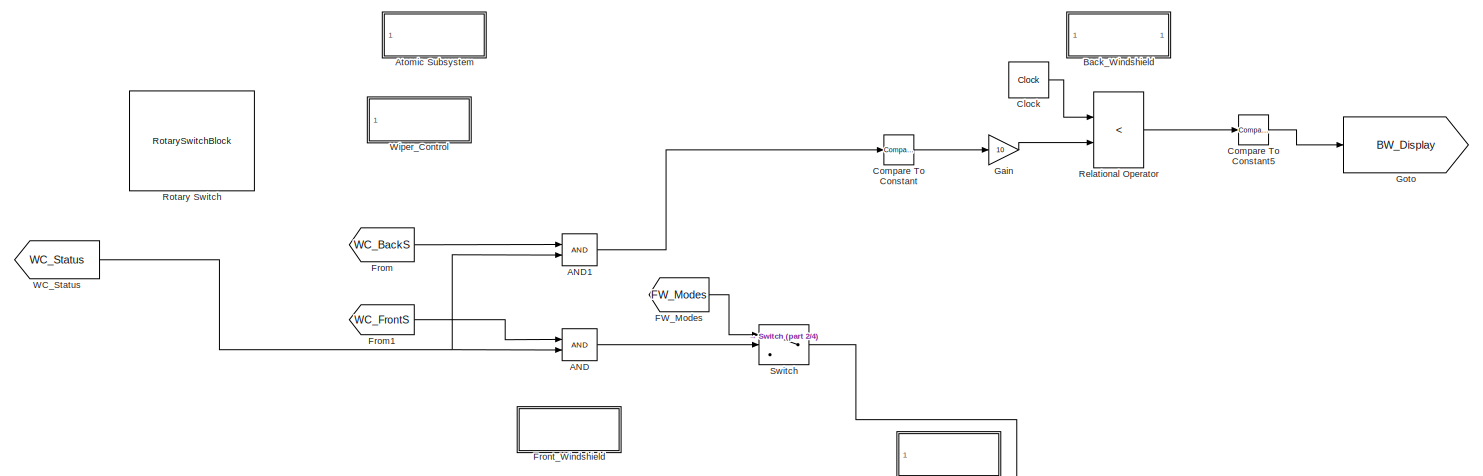
[diagram: MODULES/WIPER_CONTROL - part 1/4, top left region]
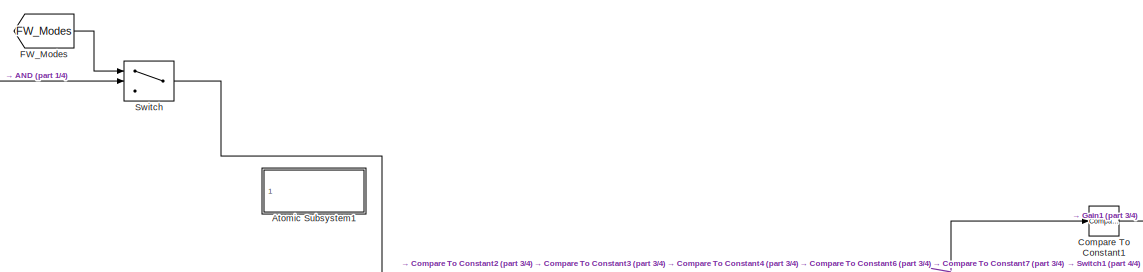
[diagram: MODULES/WIPER_CONTROL - part 2/4, top center region]
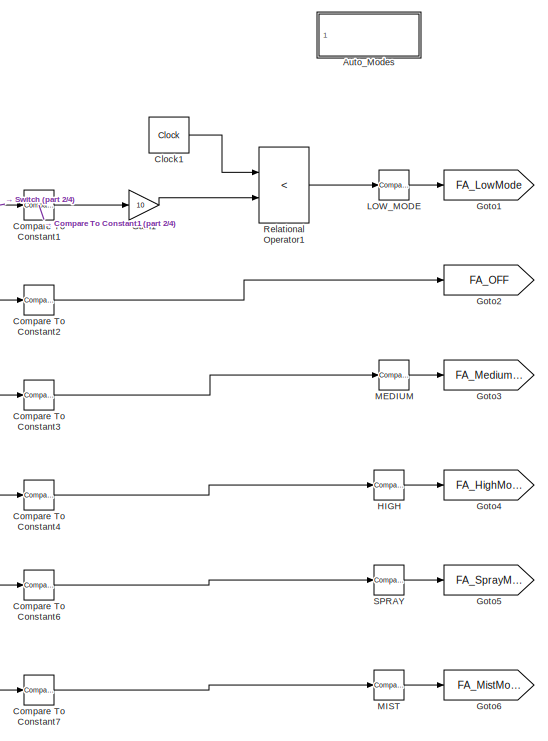
[diagram: MODULES/WIPER_CONTROL - part 3/4, middle right region]
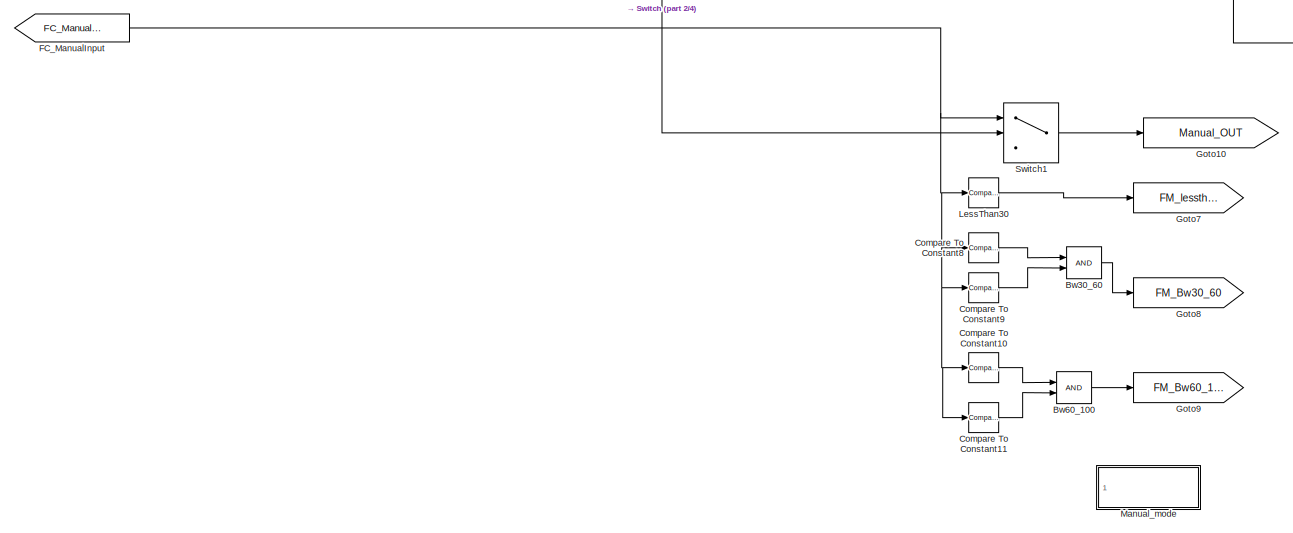
[diagram: MODULES/WIPER_CONTROL - part 4/4, bottom center region]
BLOCK [SubSystem] MODULES/WIPER_CONTROL
  Ports = []
  RequestExecContextInheritance = off
BLOCK [Logic] MODULES/WIPER_CONTROL/AND
  AllPortsSameDT = off
  IconShape = distinctive
  OutDataTypeStr = boolean
  Ports = [2, 1]
BLOCK [Logic] MODULES/WIPER_CONTROL/AND1
  AllPortsSameDT = off
  IconShape = distinctive
  OutDataTypeStr = boolean
  Ports = [2, 1]
BLOCK [SubSystem] MODULES/WIPER_CONTROL/Atomic Subsystem
  Commented = on
  Ports = [1]
  RequestExecContextInheritance = off
  TreatAsAtomicUnit = on
BLOCK [Clock] MODULES/WIPER_CONTROL/Atomic Subsystem/Clock
  Decimation = 5
  DisplayTime = on
BLOCK [Reference] MODULES/WIPER_CONTROL/Atomic Subsystem/Compare To Constant  REF=simulink/Logic and Bit
Operations/Compare
To Constant
  Ports = [1, 1]
  SourceBlock = simulink/Logic and Bit\nOperations/Compare\nTo Constant
  SourceProductBaseCode = SL
  SourceType = Compare To Constant
BLOCK [Reference] MODULES/WIPER_CONTROL/Atomic Subsystem/Compare To Constant5  REF=simulink/Logic and Bit
Operations/Compare
To Constant
  Ports = [1, 1]
  SourceBlock = simulink/Logic and Bit\nOperations/Compare\nTo Constant
  SourceProductBaseCode = SL
  SourceType = Compare To Constant
BLOCK [Gain] MODULES/WIPER_CONTROL/Atomic Subsystem/Gain
  Gain = 10
BLOCK [Goto] MODULES/WIPER_CONTROL/Atomic Subsystem/Goto
  GotoTag = BW_Display
  TagVisibility = global
BLOCK [Inport] MODULES/WIPER_CONTROL/Atomic Subsystem/Inport
BLOCK [RelationalOperator] MODULES/WIPER_CONTROL/Atomic Subsystem/Relational Operator
  InputSameDT = off
  Operator = <
  OutDataTypeStr = boolean
  Ports = [2, 1]
  RndMeth = Simplest
BLOCK [SubSystem] MODULES/WIPER_CONTROL/Atomic Subsystem1
  Commented = on
  Ports = [1]
  RequestExecContextInheritance = off
  TreatAsAtomicUnit = on
BLOCK [SubSystem] MODULES/WIPER_CONTROL/Atomic Subsystem1/Auto_Modes
  Ports = [1]
  RequestExecContextInheritance = off
BLOCK [Clock] MODULES/WIPER_CONTROL/Atomic Subsystem1/Auto_Modes/Clock
  Decimation = 5
  DisplayTime = on
BLOCK [Clock] MODULES/WIPER_CONTROL/Atomic Subsystem1/Auto_Modes/Clock2
  Decimation = 5
  DisplayTime = on
BLOCK [Clock] MODULES/WIPER_CONTROL/Atomic Subsystem1/Auto_Modes/Clock3
  Decimation = 5
  DisplayTime = on
BLOCK [Clock] MODULES/WIPER_CONTROL/Atomic Subsystem1/Auto_Modes/Clock4
  Decimation = 5
  DisplayTime = on
BLOCK [Clock] MODULES/WIPER_CONTROL/Atomic Subsystem1/Auto_Modes/Clock5
  Decimation = 5
  DisplayTime = on
BLOCK [Reference] MODULES/WIPER_CONTROL/Atomic Subsystem1/Auto_Modes/Compare To Constant  REF=simulink/Logic and Bit
Operations/Compare
To Constant
  Ports = [1, 1]
  SourceBlock = simulink/Logic and Bit\nOperations/Compare\nTo Constant
  SourceProductBaseCode = SL
  SourceType = Compare To Constant
BLOCK [Reference] MODULES/WIPER_CONTROL/Atomic Subsystem1/Auto_Modes/Compare To Constant1  REF=simulink/Logic and Bit
Operations/Compare
To Constant
  Ports = [1, 1]
  SourceBlock = simulink/Logic and Bit\nOperations/Compare\nTo Constant
  SourceProductBaseCode = SL
  SourceType = Compare To Constant
BLOCK [Reference] MODULES/WIPER_CONTROL/Atomic Subsystem1/Auto_Modes/Compare To Constant2  REF=simulink/Logic and Bit
Operations/Compare
To Constant
  Ports = [1, 1]
  SourceBlock = simulink/Logic and Bit\nOperations/Compare\nTo Constant
  SourceProductBaseCode = SL
  SourceType = Compare To Constant
BLOCK [Reference] MODULES/WIPER_CONTROL/Atomic Subsystem1/Auto_Modes/Compare To Constant3  REF=simulink/Logic and Bit
Operations/Compare
To Constant
  Ports = [1, 1]
  SourceBlock = simulink/Logic and Bit\nOperations/Compare\nTo Constant
  SourceProductBaseCode = SL
  SourceType = Compare To Constant
BLOCK [Reference] MODULES/WIPER_CONTROL/Atomic Subsystem1/Auto_Modes/Compare To Constant4  REF=simulink/Logic and Bit
Operations/Compare
To Constant
  Ports = [1, 1]
  SourceBlock = simulink/Logic and Bit\nOperations/Compare\nTo Constant
  SourceProductBaseCode = SL
  SourceType = Compare To Constant
BLOCK [Reference] MODULES/WIPER_CONTROL/Atomic Subsystem1/Auto_Modes/Compare To Constant6  REF=simulink/Logic and Bit
Operations/Compare
To Constant
  Ports = [1, 1]
  SourceBlock = simulink/Logic and Bit\nOperations/Compare\nTo Constant
  SourceProductBaseCode = SL
  SourceType = Compare To Constant
BLOCK [Gain] MODULES/WIPER_CONTROL/Atomic Subsystem1/Auto_Modes/Gain
  Gain = 10
BLOCK [Gain] MODULES/WIPER_CONTROL/Atomic Subsystem1/Auto_Modes/Gain2
  Gain = 7
BLOCK [Gain] MODULES/WIPER_CONTROL/Atomic Subsystem1/Auto_Modes/Gain3
  Gain = 5
BLOCK [Gain] MODULES/WIPER_CONTROL/Atomic Subsystem1/Auto_Modes/Gain4
  Gain = 5
BLOCK [Gain] MODULES/WIPER_CONTROL/Atomic Subsystem1/Auto_Modes/Gain5
  Gain = 3
BLOCK [Goto] MODULES/WIPER_CONTROL/Atomic Subsystem1/Auto_Modes/Goto
  GotoTag = FA_LowMode
  TagVisibility = global
BLOCK [Goto] MODULES/WIPER_CONTROL/Atomic Subsystem1/Auto_Modes/Goto1
  GotoTag = FA_OFF
  TagVisibility = global
BLOCK [Goto] MODULES/WIPER_CONTROL/Atomic Subsystem1/Auto_Modes/Goto2
  GotoTag = FA_MediumMode
  TagVisibility = global
BLOCK [Goto] MODULES/WIPER_CONTROL/Atomic Subsystem1/Auto_Modes/Goto3
  GotoTag = FA_HighMode
  TagVisibility = global
BLOCK [Goto] MODULES/WIPER_CONTROL/Atomic Subsystem1/Auto_Modes/Goto4
  GotoTag = FA_SprayMode
  TagVisibility = global
BLOCK [Goto] MODULES/WIPER_CONTROL/Atomic Subsystem1/Auto_Modes/Goto5
  GotoTag = FA_MistMode
  TagVisibility = global
BLOCK [Reference] MODULES/WIPER_CONTROL/Atomic Subsystem1/Auto_Modes/HIGH  REF=simulink/Logic and Bit
Operations/Compare
To Constant
  Ports = [1, 1]
  SourceBlock = simulink/Logic and Bit\nOperations/Compare\nTo Constant
  SourceProductBaseCode = SL
  SourceType = Compare To Constant
BLOCK [Inport] MODULES/WIPER_CONTROL/Atomic Subsystem1/Auto_Modes/In1
BLOCK [Reference] MODULES/WIPER_CONTROL/Atomic Subsystem1/Auto_Modes/LOW_MODE  REF=simulink/Logic and Bit
Operations/Compare
To Constant
  Ports = [1, 1]
  SourceBlock = simulink/Logic and Bit\nOperations/Compare\nTo Constant
  SourceProductBaseCode = SL
  SourceType = Compare To Constant
BLOCK [Reference] MODULES/WIPER_CONTROL/Atomic Subsystem1/Auto_Modes/MEDIUM  REF=simulink/Logic and Bit
Operations/Compare
To Constant
  Ports = [1, 1]
  SourceBlock = simulink/Logic and Bit\nOperations/Compare\nTo Constant
  SourceProductBaseCode = SL
  SourceType = Compare To Constant
BLOCK [Reference] MODULES/WIPER_CONTROL/Atomic Subsystem1/Auto_Modes/MIST  REF=simulink/Logic and Bit
Operations/Compare
To Constant
  Ports = [1, 1]
  SourceBlock = simulink/Logic and Bit\nOperations/Compare\nTo Constant
  SourceProductBaseCode = SL
  SourceType = Compare To Constant
BLOCK [RelationalOperator] MODULES/WIPER_CONTROL/Atomic Subsystem1/Auto_Modes/Relational Operator
  InputSameDT = off
  Operator = <
  OutDataTypeStr = boolean
  Ports = [2, 1]
  RndMeth = Simplest
BLOCK [RelationalOperator] MODULES/WIPER_CONTROL/Atomic Subsystem1/Auto_Modes/Relational Operator2
  InputSameDT = off
  Operator = <
  OutDataTypeStr = boolean
  Ports = [2, 1]
  RndMeth = Simplest
BLOCK [RelationalOperator] MODULES/WIPER_CONTROL/Atomic Subsystem1/Auto_Modes/Relational Operator3
  InputSameDT = off
  Operator = <
  OutDataTypeStr = boolean
  Ports = [2, 1]
  RndMeth = Simplest
BLOCK [RelationalOperator] MODULES/WIPER_CONTROL/Atomic Subsystem1/Auto_Modes/Relational Operator4
  InputSameDT = off
  Operator = <
  OutDataTypeStr = boolean
  Ports = [2, 1]
  RndMeth = Simplest
BLOCK [RelationalOperator] MODULES/WIPER_CONTROL/Atomic Subsystem1/Auto_Modes/Relational Operator5
  InputSameDT = off
  Operator = <
  OutDataTypeStr = boolean
  Ports = [2, 1]
  RndMeth = Simplest
BLOCK [Reference] MODULES/WIPER_CONTROL/Atomic Subsystem1/Auto_Modes/SPRAY  REF=simulink/Logic and Bit
Operations/Compare
To Constant
  Ports = [1, 1]
  SourceBlock = simulink/Logic and Bit\nOperations/Compare\nTo Constant
  SourceProductBaseCode = SL
  SourceType = Compare To Constant
BLOCK [Display] MODULES/WIPER_CONTROL/Atomic Subsystem1/Display
  Decimation = 1
  Ports = [1]
BLOCK [From] MODULES/WIPER_CONTROL/Atomic Subsystem1/FW_Modes
  GotoTag = FW_Modes
  TagVisibility = global
BLOCK [Inport] MODULES/WIPER_CONTROL/Atomic Subsystem1/Inport
BLOCK [SubSystem] MODULES/WIPER_CONTROL/Atomic Subsystem1/Manual_mode
  Ports = [1]
  RequestExecContextInheritance = off
BLOCK [Logic] MODULES/WIPER_CONTROL/Atomic Subsystem1/Manual_mode/Bw30_60
  AllPortsSameDT = off
  IconShape = distinctive
  OutDataTypeStr = boolean
  Ports = [2, 1]
BLOCK [Logic] MODULES/WIPER_CONTROL/Atomic Subsystem1/Manual_mode/Bw60_100
  AllPortsSameDT = off
  IconShape = distinctive
  OutDataTypeStr = boolean
  Ports = [2, 1]
BLOCK [Reference] MODULES/WIPER_CONTROL/Atomic Subsystem1/Manual_mode/Compare To Constant1  REF=simulink/Logic and Bit
Operations/Compare
To Constant
  Ports = [1, 1]
  SourceBlock = simulink/Logic and Bit\nOperations/Compare\nTo Constant
  SourceProductBaseCode = SL
  SourceType = Compare To Constant
BLOCK [Reference] MODULES/WIPER_CONTROL/Atomic Subsystem1/Manual_mode/Compare To Constant2  REF=simulink/Logic and Bit
Operations/Compare
To Constant
  Ports = [1, 1]
  SourceBlock = simulink/Logic and Bit\nOperations/Compare\nTo Constant
  SourceProductBaseCode = SL
  SourceType = Compare To Constant
BLOCK [Reference] MODULES/WIPER_CONTROL/Atomic Subsystem1/Manual_mode/Compare To Constant3  REF=simulink/Logic and Bit
Operations/Compare
To Constant
  Ports = [1, 1]
  SourceBlock = simulink/Logic and Bit\nOperations/Compare\nTo Constant
  SourceProductBaseCode = SL
  SourceType = Compare To Constant
BLOCK [Reference] MODULES/WIPER_CONTROL/Atomic Subsystem1/Manual_mode/Compare To Constant4  REF=simulink/Logic and Bit
Operations/Compare
To Constant
  Ports = [1, 1]
  SourceBlock = simulink/Logic and Bit\nOperations/Compare\nTo Constant
  SourceProductBaseCode = SL
  SourceType = Compare To Constant
BLOCK [Display] MODULES/WIPER_CONTROL/Atomic Subsystem1/Manual_mode/Display
  Decimation = 1
  Ports = [1]
BLOCK [From] MODULES/WIPER_CONTROL/Atomic Subsystem1/Manual_mode/FC_ManualInput
  GotoTag = FC_ManualInput
  TagVisibility = global
BLOCK [Goto] MODULES/WIPER_CONTROL/Atomic Subsystem1/Manual_mode/Goto
  GotoTag = FM_lessthan30
  TagVisibility = global
BLOCK [Goto] MODULES/WIPER_CONTROL/Atomic Subsystem1/Manual_mode/Goto1
  GotoTag = FM_Bw30_60
  TagVisibility = global
BLOCK [Goto] MODULES/WIPER_CONTROL/Atomic Subsystem1/Manual_mode/Goto2
  GotoTag = FM_Bw60_100
  TagVisibility = global
BLOCK [Inport] MODULES/WIPER_CONTROL/Atomic Subsystem1/Manual_mode/In1
BLOCK [Reference] MODULES/WIPER_CONTROL/Atomic Subsystem1/Manual_mode/LessThan30  REF=simulink/Logic and Bit
Operations/Compare
To Constant
  Ports = [1, 1]
  SourceBlock = simulink/Logic and Bit\nOperations/Compare\nTo Constant
  SourceProductBaseCode = SL
  SourceType = Compare To Constant
BLOCK [SliderBlock] MODULES/WIPER_CONTROL/Atomic Subsystem1/Manual_mode/Slider
BLOCK [StringConstant] MODULES/WIPER_CONTROL/Atomic Subsystem1/Manual_mode/String Constant
  String = "Undefined!"
BLOCK [Switch] MODULES/WIPER_CONTROL/Atomic Subsystem1/Manual_mode/Switch
  Criteria = u2 > Threshold
  InputSameDT = off
  SaturateOnIntegerOverflow = off
  Threshold = 5
BLOCK [SubSystem] MODULES/WIPER_CONTROL/Auto_Modes
  Commented = on
  Ports = [1]
  RequestExecContextInheritance = off
BLOCK [Clock] MODULES/WIPER_CONTROL/Auto_Modes/Clock
  Decimation = 5
  DisplayTime = on
BLOCK [Clock] MODULES/WIPER_CONTROL/Auto_Modes/Clock2
  Decimation = 5
  DisplayTime = on
BLOCK [Clock] MODULES/WIPER_CONTROL/Auto_Modes/Clock3
  Decimation = 5
  DisplayTime = on
BLOCK [Clock] MODULES/WIPER_CONTROL/Auto_Modes/Clock4
  Decimation = 5
  DisplayTime = on
BLOCK [Clock] MODULES/WIPER_CONTROL/Auto_Modes/Clock5
  Decimation = 5
  DisplayTime = on
BLOCK [Reference] MODULES/WIPER_CONTROL/Auto_Modes/Compare To Constant  REF=simulink/Logic and Bit
Operations/Compare
To Constant
  Ports = [1, 1]
  SourceBlock = simulink/Logic and Bit\nOperations/Compare\nTo Constant
  SourceProductBaseCode = SL
  SourceType = Compare To Constant
BLOCK [Reference] MODULES/WIPER_CONTROL/Auto_Modes/Compare To Constant1  REF=simulink/Logic and Bit
Operations/Compare
To Constant
  Ports = [1, 1]
  SourceBlock = simulink/Logic and Bit\nOperations/Compare\nTo Constant
  SourceProductBaseCode = SL
  SourceType = Compare To Constant
BLOCK [Reference] MODULES/WIPER_CONTROL/Auto_Modes/Compare To Constant2  REF=simulink/Logic and Bit
Operations/Compare
To Constant
  Ports = [1, 1]
  SourceBlock = simulink/Logic and Bit\nOperations/Compare\nTo Constant
  SourceProductBaseCode = SL
  SourceType = Compare To Constant
BLOCK [Reference] MODULES/WIPER_CONTROL/Auto_Modes/Compare To Constant3  REF=simulink/Logic and Bit
Operations/Compare
To Constant
  Ports = [1, 1]
  SourceBlock = simulink/Logic and Bit\nOperations/Compare\nTo Constant
  SourceProductBaseCode = SL
  SourceType = Compare To Constant
BLOCK [Reference] MODULES/WIPER_CONTROL/Auto_Modes/Compare To Constant4  REF=simulink/Logic and Bit
Operations/Compare
To Constant
  Ports = [1, 1]
  SourceBlock = simulink/Logic and Bit\nOperations/Compare\nTo Constant
  SourceProductBaseCode = SL
  SourceType = Compare To Constant
BLOCK [Reference] MODULES/WIPER_CONTROL/Auto_Modes/Compare To Constant6  REF=simulink/Logic and Bit
Operations/Compare
To Constant
  Ports = [1, 1]
  SourceBlock = simulink/Logic and Bit\nOperations/Compare\nTo Constant
  SourceProductBaseCode = SL
  SourceType = Compare To Constant
BLOCK [Gain] MODULES/WIPER_CONTROL/Auto_Modes/Gain
  Gain = 10
BLOCK [Gain] MODULES/WIPER_CONTROL/Auto_Modes/Gain2
  Gain = 7
BLOCK [Gain] MODULES/WIPER_CONTROL/Auto_Modes/Gain3
  Gain = 5
BLOCK [Gain] MODULES/WIPER_CONTROL/Auto_Modes/Gain4
  Gain = 5
BLOCK [Gain] MODULES/WIPER_CONTROL/Auto_Modes/Gain5
  Gain = 3
BLOCK [Goto] MODULES/WIPER_CONTROL/Auto_Modes/Goto
  GotoTag = FA_LowMode
  TagVisibility = global
BLOCK [Goto] MODULES/WIPER_CONTROL/Auto_Modes/Goto1
  GotoTag = FA_OFF
  TagVisibility = global
BLOCK [Goto] MODULES/WIPER_CONTROL/Auto_Modes/Goto2
  GotoTag = FA_MediumMode
  TagVisibility = global
BLOCK [Goto] MODULES/WIPER_CONTROL/Auto_Modes/Goto3
  GotoTag = FA_HighMode
  TagVisibility = global
BLOCK [Goto] MODULES/WIPER_CONTROL/Auto_Modes/Goto4
  GotoTag = FA_SprayMode
  TagVisibility = global
BLOCK [Goto] MODULES/WIPER_CONTROL/Auto_Modes/Goto5
  GotoTag = FA_MistMode
  TagVisibility = global
BLOCK [Reference] MODULES/WIPER_CONTROL/Auto_Modes/HIGH  REF=simulink/Logic and Bit
Operations/Compare
To Constant
  Ports = [1, 1]
  SourceBlock = simulink/Logic and Bit\nOperations/Compare\nTo Constant
  SourceProductBaseCode = SL
  SourceType = Compare To Constant
BLOCK [Inport] MODULES/WIPER_CONTROL/Auto_Modes/In1
BLOCK [Reference] MODULES/WIPER_CONTROL/Auto_Modes/LOW_MODE  REF=simulink/Logic and Bit
Operations/Compare
To Constant
  Ports = [1, 1]
  SourceBlock = simulink/Logic and Bit\nOperations/Compare\nTo Constant
  SourceProductBaseCode = SL
  SourceType = Compare To Constant
BLOCK [Reference] MODULES/WIPER_CONTROL/Auto_Modes/MEDIUM  REF=simulink/Logic and Bit
Operations/Compare
To Constant
  Ports = [1, 1]
  SourceBlock = simulink/Logic and Bit\nOperations/Compare\nTo Constant
  SourceProductBaseCode = SL
  SourceType = Compare To Constant
BLOCK [Reference] MODULES/WIPER_CONTROL/Auto_Modes/MIST  REF=simulink/Logic and Bit
Operations/Compare
To Constant
  Ports = [1, 1]
  SourceBlock = simulink/Logic and Bit\nOperations/Compare\nTo Constant
  SourceProductBaseCode = SL
  SourceType = Compare To Constant
BLOCK [RelationalOperator] MODULES/WIPER_CONTROL/Auto_Modes/Relational Operator
  InputSameDT = off
  Operator = <
  OutDataTypeStr = boolean
  Ports = [2, 1]
  RndMeth = Simplest
BLOCK [RelationalOperator] MODULES/WIPER_CONTROL/Auto_Modes/Relational Operator2
  InputSameDT = off
  Operator = <
  OutDataTypeStr = boolean
  Ports = [2, 1]
  RndMeth = Simplest
BLOCK [RelationalOperator] MODULES/WIPER_CONTROL/Auto_Modes/Relational Operator3
  InputSameDT = off
  Operator = <
  OutDataTypeStr = boolean
  Ports = [2, 1]
  RndMeth = Simplest
BLOCK [RelationalOperator] MODULES/WIPER_CONTROL/Auto_Modes/Relational Operator4
  InputSameDT = off
  Operator = <
  OutDataTypeStr = boolean
  Ports = [2, 1]
  RndMeth = Simplest
BLOCK [RelationalOperator] MODULES/WIPER_CONTROL/Auto_Modes/Relational Operator5
  InputSameDT = off
  Operator = <
  OutDataTypeStr = boolean
  Ports = [2, 1]
  RndMeth = Simplest
BLOCK [Reference] MODULES/WIPER_CONTROL/Auto_Modes/SPRAY  REF=simulink/Logic and Bit
Operations/Compare
To Constant
  Ports = [1, 1]
  SourceBlock = simulink/Logic and Bit\nOperations/Compare\nTo Constant
  SourceProductBaseCode = SL
  SourceType = Compare To Constant
BLOCK [SubSystem] MODULES/WIPER_CONTROL/Back_Windshield
  Commented = on
  Ports = []
  RequestExecContextInheritance = off
  TreatAsAtomicUnit = on
BLOCK [LampBlock] MODULES/WIPER_CONTROL/Back_Windshield/Lamp
BLOCK [Logic] MODULES/WIPER_CONTROL/Bw30_60
  AllPortsSameDT = off
  IconShape = distinctive
  OutDataTypeStr = boolean
  Ports = [2, 1]
BLOCK [Logic] MODULES/WIPER_CONTROL/Bw60_100
  AllPortsSameDT = off
  IconShape = distinctive
  OutDataTypeStr = boolean
  Ports = [2, 1]
BLOCK [Clock] MODULES/WIPER_CONTROL/Clock
  Decimation = 5
  DisplayTime = on
BLOCK [Clock] MODULES/WIPER_CONTROL/Clock1
  Decimation = 5
  DisplayTime = on
BLOCK [Reference] MODULES/WIPER_CONTROL/Compare To Constant  REF=simulink/Logic and Bit
Operations/Compare
To Constant
  Ports = [1, 1]
  SourceBlock = simulink/Logic and Bit\nOperations/Compare\nTo Constant
  SourceProductBaseCode = SL
  SourceType = Compare To Constant
BLOCK [Reference] MODULES/WIPER_CONTROL/Compare To Constant1  REF=simulink/Logic and Bit
Operations/Compare
To Constant
  Ports = [1, 1]
  SourceBlock = simulink/Logic and Bit\nOperations/Compare\nTo Constant
  SourceProductBaseCode = SL
  SourceType = Compare To Constant
BLOCK [Reference] MODULES/WIPER_CONTROL/Compare To Constant10  REF=simulink/Logic and Bit
Operations/Compare
To Constant
  Ports = [1, 1]
  SourceBlock = simulink/Logic and Bit\nOperations/Compare\nTo Constant
  SourceProductBaseCode = SL
  SourceType = Compare To Constant
BLOCK [Reference] MODULES/WIPER_CONTROL/Compare To Constant11  REF=simulink/Logic and Bit
Operations/Compare
To Constant
  Ports = [1, 1]
  SourceBlock = simulink/Logic and Bit\nOperations/Compare\nTo Constant
  SourceProductBaseCode = SL
  SourceType = Compare To Constant
BLOCK [Reference] MODULES/WIPER_CONTROL/Compare To Constant2  REF=simulink/Logic and Bit
Operations/Compare
To Constant
  Ports = [1, 1]
  SourceBlock = simulink/Logic and Bit\nOperations/Compare\nTo Constant
  SourceProductBaseCode = SL
  SourceType = Compare To Constant
BLOCK [Reference] MODULES/WIPER_CONTROL/Compare To Constant3  REF=simulink/Logic and Bit
Operations/Compare
To Constant
  Ports = [1, 1]
  SourceBlock = simulink/Logic and Bit\nOperations/Compare\nTo Constant
  SourceProductBaseCode = SL
  SourceType = Compare To Constant
BLOCK [Reference] MODULES/WIPER_CONTROL/Compare To Constant4  REF=simulink/Logic and Bit
Operations/Compare
To Constant
  Ports = [1, 1]
  SourceBlock = simulink/Logic and Bit\nOperations/Compare\nTo Constant
  SourceProductBaseCode = SL
  SourceType = Compare To Constant
BLOCK [Reference] MODULES/WIPER_CONTROL/Compare To Constant5  REF=simulink/Logic and Bit
Operations/Compare
To Constant
  Ports = [1, 1]
  SourceBlock = simulink/Logic and Bit\nOperations/Compare\nTo Constant
  SourceProductBaseCode = SL
  SourceType = Compare To Constant
BLOCK [Reference] MODULES/WIPER_CONTROL/Compare To Constant6  REF=simulink/Logic and Bit
Operations/Compare
To Constant
  Ports = [1, 1]
  SourceBlock = simulink/Logic and Bit\nOperations/Compare\nTo Constant
  SourceProductBaseCode = SL
  SourceType = Compare To Constant
BLOCK [Reference] MODULES/WIPER_CONTROL/Compare To Constant7  REF=simulink/Logic and Bit
Operations/Compare
To Constant
  Ports = [1, 1]
  SourceBlock = simulink/Logic and Bit\nOperations/Compare\nTo Constant
  SourceProductBaseCode = SL
  SourceType = Compare To Constant
BLOCK [Reference] MODULES/WIPER_CONTROL/Compare To Constant8  REF=simulink/Logic and Bit
Operations/Compare
To Constant
  Ports = [1, 1]
  SourceBlock = simulink/Logic and Bit\nOperations/Compare\nTo Constant
  SourceProductBaseCode = SL
  SourceType = Compare To Constant
BLOCK [Reference] MODULES/WIPER_CONTROL/Compare To Constant9  REF=simulink/Logic and Bit
Operations/Compare
To Constant
  Ports = [1, 1]
  SourceBlock = simulink/Logic and Bit\nOperations/Compare\nTo Constant
  SourceProductBaseCode = SL
  SourceType = Compare To Constant
BLOCK [From] MODULES/WIPER_CONTROL/FC_ManualInput
  GotoTag = FC_ManualInput
  TagVisibility = global
BLOCK [From] MODULES/WIPER_CONTROL/FW_Modes
  GotoTag = FW_Modes
  TagVisibility = global
BLOCK [From] MODULES/WIPER_CONTROL/From
  GotoTag = WC_BackS
  TagVisibility = global
BLOCK [From] MODULES/WIPER_CONTROL/From1
  GotoTag = WC_FrontS
  TagVisibility = global
BLOCK [SubSystem] MODULES/WIPER_CONTROL/Front_Windshield
  Commented = on
  Ports = [0, 0, 1]
  RequestExecContextInheritance = off
  TreatAsAtomicUnit = on
BLOCK [SubSystem] MODULES/WIPER_CONTROL/Front_Windshield/Auto_Modes
  Ports = [1]
  RequestExecContextInheritance = off
BLOCK [Clock] MODULES/WIPER_CONTROL/Front_Windshield/Auto_Modes/Clock
  Decimation = 5
  DisplayTime = on
BLOCK [Clock] MODULES/WIPER_CONTROL/Front_Windshield/Auto_Modes/Clock2
  Decimation = 5
  DisplayTime = on
BLOCK [Clock] MODULES/WIPER_CONTROL/Front_Windshield/Auto_Modes/Clock3
  Decimation = 5
  DisplayTime = on
BLOCK [Clock] MODULES/WIPER_CONTROL/Front_Windshield/Auto_Modes/Clock4
  Decimation = 5
  DisplayTime = on
BLOCK [Clock] MODULES/WIPER_CONTROL/Front_Windshield/Auto_Modes/Clock5
  Decimation = 5
  DisplayTime = on
BLOCK [Reference] MODULES/WIPER_CONTROL/Front_Windshield/Auto_Modes/Compare To Constant  REF=simulink/Logic and Bit
Operations/Compare
To Constant
  Ports = [1, 1]
  SourceBlock = simulink/Logic and Bit\nOperations/Compare\nTo Constant
  SourceProductBaseCode = SL
  SourceType = Compare To Constant
BLOCK [Reference] MODULES/WIPER_CONTROL/Front_Windshield/Auto_Modes/Compare To Constant1  REF=simulink/Logic and Bit
Operations/Compare
To Constant
  Ports = [1, 1]
  SourceBlock = simulink/Logic and Bit\nOperations/Compare\nTo Constant
  SourceProductBaseCode = SL
  SourceType = Compare To Constant
BLOCK [Reference] MODULES/WIPER_CONTROL/Front_Windshield/Auto_Modes/Compare To Constant2  REF=simulink/Logic and Bit
Operations/Compare
To Constant
  Ports = [1, 1]
  SourceBlock = simulink/Logic and Bit\nOperations/Compare\nTo Constant
  SourceProductBaseCode = SL
  SourceType = Compare To Constant
BLOCK [Reference] MODULES/WIPER_CONTROL/Front_Windshield/Auto_Modes/Compare To Constant3  REF=simulink/Logic and Bit
Operations/Compare
To Constant
  Ports = [1, 1]
  SourceBlock = simulink/Logic and Bit\nOperations/Compare\nTo Constant
  SourceProductBaseCode = SL
  SourceType = Compare To Constant
BLOCK [Reference] MODULES/WIPER_CONTROL/Front_Windshield/Auto_Modes/Compare To Constant4  REF=simulink/Logic and Bit
Operations/Compare
To Constant
  Ports = [1, 1]
  SourceBlock = simulink/Logic and Bit\nOperations/Compare\nTo Constant
  SourceProductBaseCode = SL
  SourceType = Compare To Constant
BLOCK [Reference] MODULES/WIPER_CONTROL/Front_Windshield/Auto_Modes/Compare To Constant6  REF=simulink/Logic and Bit
Operations/Compare
To Constant
  Ports = [1, 1]
  SourceBlock = simulink/Logic and Bit\nOperations/Compare\nTo Constant
  SourceProductBaseCode = SL
  SourceType = Compare To Constant
BLOCK [Gain] MODULES/WIPER_CONTROL/Front_Windshield/Auto_Modes/Gain
  Gain = 10
BLOCK [Gain] MODULES/WIPER_CONTROL/Front_Windshield/Auto_Modes/Gain2
  Gain = 7
BLOCK [Gain] MODULES/WIPER_CONTROL/Front_Windshield/Auto_Modes/Gain3
  Gain = 5
BLOCK [Gain] MODULES/WIPER_CONTROL/Front_Windshield/Auto_Modes/Gain4
  Gain = 5
BLOCK [Gain] MODULES/WIPER_CONTROL/Front_Windshield/Auto_Modes/Gain5
  Gain = 3
BLOCK [Goto] MODULES/WIPER_CONTROL/Front_Windshield/Auto_Modes/Goto
  GotoTag = FA_LowMode
  TagVisibility = global
BLOCK [Goto] MODULES/WIPER_CONTROL/Front_Windshield/Auto_Modes/Goto1
  GotoTag = FA_OFF
  TagVisibility = global
BLOCK [Goto] MODULES/WIPER_CONTROL/Front_Windshield/Auto_Modes/Goto2
  GotoTag = FA_MediumMode
  TagVisibility = global
BLOCK [Goto] MODULES/WIPER_CONTROL/Front_Windshield/Auto_Modes/Goto3
  GotoTag = FA_HighMode
  TagVisibility = global
BLOCK [Goto] MODULES/WIPER_CONTROL/Front_Windshield/Auto_Modes/Goto4
  GotoTag = FA_SprayMode
  TagVisibility = global
BLOCK [Goto] MODULES/WIPER_CONTROL/Front_Windshield/Auto_Modes/Goto5
  GotoTag = FA_MistMode
  TagVisibility = global
BLOCK [Reference] MODULES/WIPER_CONTROL/Front_Windshield/Auto_Modes/HIGH  REF=simulink/Logic and Bit
Operations/Compare
To Constant
  Ports = [1, 1]
  SourceBlock = simulink/Logic and Bit\nOperations/Compare\nTo Constant
  SourceProductBaseCode = SL
  SourceType = Compare To Constant
BLOCK [Inport] MODULES/WIPER_CONTROL/Front_Windshield/Auto_Modes/In1
BLOCK [Reference] MODULES/WIPER_CONTROL/Front_Windshield/Auto_Modes/LOW_MODE  REF=simulink/Logic and Bit
Operations/Compare
To Constant
  Ports = [1, 1]
  SourceBlock = simulink/Logic and Bit\nOperations/Compare\nTo Constant
  SourceProductBaseCode = SL
  SourceType = Compare To Constant
BLOCK [Reference] MODULES/WIPER_CONTROL/Front_Windshield/Auto_Modes/MEDIUM  REF=simulink/Logic and Bit
Operations/Compare
To Constant
  Ports = [1, 1]
  SourceBlock = simulink/Logic and Bit\nOperations/Compare\nTo Constant
  SourceProductBaseCode = SL
  SourceType = Compare To Constant
BLOCK [Reference] MODULES/WIPER_CONTROL/Front_Windshield/Auto_Modes/MIST  REF=simulink/Logic and Bit
Operations/Compare
To Constant
  Ports = [1, 1]
  SourceBlock = simulink/Logic and Bit\nOperations/Compare\nTo Constant
  SourceProductBaseCode = SL
  SourceType = Compare To Constant
BLOCK [RelationalOperator] MODULES/WIPER_CONTROL/Front_Windshield/Auto_Modes/Relational Operator
  InputSameDT = off
  Operator = <
  OutDataTypeStr = boolean
  Ports = [2, 1]
  RndMeth = Simplest
BLOCK [RelationalOperator] MODULES/WIPER_CONTROL/Front_Windshield/Auto_Modes/Relational Operator2
  InputSameDT = off
  Operator = <
  OutDataTypeStr = boolean
  Ports = [2, 1]
  RndMeth = Simplest
BLOCK [RelationalOperator] MODULES/WIPER_CONTROL/Front_Windshield/Auto_Modes/Relational Operator3
  InputSameDT = off
  Operator = <
  OutDataTypeStr = boolean
  Ports = [2, 1]
  RndMeth = Simplest
BLOCK [RelationalOperator] MODULES/WIPER_CONTROL/Front_Windshield/Auto_Modes/Relational Operator4
  InputSameDT = off
  Operator = <
  OutDataTypeStr = boolean
  Ports = [2, 1]
  RndMeth = Simplest
BLOCK [RelationalOperator] MODULES/WIPER_CONTROL/Front_Windshield/Auto_Modes/Relational Operator5
  InputSameDT = off
  Operator = <
  OutDataTypeStr = boolean
  Ports = [2, 1]
  RndMeth = Simplest
BLOCK [Reference] MODULES/WIPER_CONTROL/Front_Windshield/Auto_Modes/SPRAY  REF=simulink/Logic and Bit
Operations/Compare
To Constant
  Ports = [1, 1]
  SourceBlock = simulink/Logic and Bit\nOperations/Compare\nTo Constant
  SourceProductBaseCode = SL
  SourceType = Compare To Constant
BLOCK [EnablePort] MODULES/WIPER_CONTROL/Front_Windshield/Enable
  Ports = []
BLOCK [From] MODULES/WIPER_CONTROL/Front_Windshield/FW_Modes
  GotoTag = FW_Modes
  TagVisibility = global
BLOCK [SubSystem] MODULES/WIPER_CONTROL/Front_Windshield/Manual_mode
  Ports = [1]
  RequestExecContextInheritance = off
BLOCK [Logic] MODULES/WIPER_CONTROL/Front_Windshield/Manual_mode/Bw30_60
  AllPortsSameDT = off
  IconShape = distinctive
  OutDataTypeStr = boolean
  Ports = [2, 1]
BLOCK [Logic] MODULES/WIPER_CONTROL/Front_Windshield/Manual_mode/Bw60_100
  AllPortsSameDT = off
  IconShape = distinctive
  OutDataTypeStr = boolean
  Ports = [2, 1]
BLOCK [Reference] MODULES/WIPER_CONTROL/Front_Windshield/Manual_mode/Compare To Constant1  REF=simulink/Logic and Bit
Operations/Compare
To Constant
  Ports = [1, 1]
  SourceBlock = simulink/Logic and Bit\nOperations/Compare\nTo Constant
  SourceProductBaseCode = SL
  SourceType = Compare To Constant
BLOCK [Reference] MODULES/WIPER_CONTROL/Front_Windshield/Manual_mode/Compare To Constant2  REF=simulink/Logic and Bit
Operations/Compare
To Constant
  Ports = [1, 1]
  SourceBlock = simulink/Logic and Bit\nOperations/Compare\nTo Constant
  SourceProductBaseCode = SL
  SourceType = Compare To Constant
BLOCK [Reference] MODULES/WIPER_CONTROL/Front_Windshield/Manual_mode/Compare To Constant3  REF=simulink/Logic and Bit
Operations/Compare
To Constant
  Ports = [1, 1]
  SourceBlock = simulink/Logic and Bit\nOperations/Compare\nTo Constant
  SourceProductBaseCode = SL
  SourceType = Compare To Constant
BLOCK [Reference] MODULES/WIPER_CONTROL/Front_Windshield/Manual_mode/Compare To Constant4  REF=simulink/Logic and Bit
Operations/Compare
To Constant
  Ports = [1, 1]
  SourceBlock = simulink/Logic and Bit\nOperations/Compare\nTo Constant
  SourceProductBaseCode = SL
  SourceType = Compare To Constant
BLOCK [Display] MODULES/WIPER_CONTROL/Front_Windshield/Manual_mode/Display
  Decimation = 1
  Ports = [1]
BLOCK [From] MODULES/WIPER_CONTROL/Front_Windshield/Manual_mode/FC_ManualInput
  GotoTag = FC_ManualInput
  TagVisibility = global
BLOCK [Goto] MODULES/WIPER_CONTROL/Front_Windshield/Manual_mode/Goto
  GotoTag = FM_lessthan30
  TagVisibility = global
BLOCK [Goto] MODULES/WIPER_CONTROL/Front_Windshield/Manual_mode/Goto1
  GotoTag = FM_Bw30_60
  TagVisibility = global
BLOCK [Goto] MODULES/WIPER_CONTROL/Front_Windshield/Manual_mode/Goto2
  GotoTag = FM_Bw60_100
  TagVisibility = global
BLOCK [Inport] MODULES/WIPER_CONTROL/Front_Windshield/Manual_mode/In1
BLOCK [Reference] MODULES/WIPER_CONTROL/Front_Windshield/Manual_mode/LessThan30  REF=simulink/Logic and Bit
Operations/Compare
To Constant
  Ports = [1, 1]
  SourceBlock = simulink/Logic and Bit\nOperations/Compare\nTo Constant
  SourceProductBaseCode = SL
  SourceType = Compare To Constant
BLOCK [SliderBlock] MODULES/WIPER_CONTROL/Front_Windshield/Manual_mode/Slider
BLOCK [StringConstant] MODULES/WIPER_CONTROL/Front_Windshield/Manual_mode/String Constant
  String = "Undefined!"
BLOCK [Switch] MODULES/WIPER_CONTROL/Front_Windshield/Manual_mode/Switch
  Criteria = u2 > Threshold
  InputSameDT = off
  SaturateOnIntegerOverflow = off
  Threshold = 5
BLOCK [RotarySwitchBlock] MODULES/WIPER_CONTROL/Front_Windshield/Rotary Switch
  Commented = on
BLOCK [Gain] MODULES/WIPER_CONTROL/Gain
  Gain = 10
BLOCK [Gain] MODULES/WIPER_CONTROL/Gain1
  Gain = 10
BLOCK [Goto] MODULES/WIPER_CONTROL/Goto
  GotoTag = BW_Display
  TagVisibility = global
BLOCK [Goto] MODULES/WIPER_CONTROL/Goto1
  GotoTag = FA_LowMode
  TagVisibility = global
BLOCK [Goto] MODULES/WIPER_CONTROL/Goto10
  GotoTag = Manual_OUT
  TagVisibility = global
BLOCK [Goto] MODULES/WIPER_CONTROL/Goto2
  GotoTag = FA_OFF
  TagVisibility = global
BLOCK [Goto] MODULES/WIPER_CONTROL/Goto3
  GotoTag = FA_MediumMode
  TagVisibility = global
BLOCK [Goto] MODULES/WIPER_CONTROL/Goto4
  GotoTag = FA_HighMode
  TagVisibility = global
BLOCK [Goto] MODULES/WIPER_CONTROL/Goto5
  GotoTag = FA_SprayMode
  TagVisibility = global
BLOCK [Goto] MODULES/WIPER_CONTROL/Goto6
  GotoTag = FA_MistMode
  TagVisibility = global
BLOCK [Goto] MODULES/WIPER_CONTROL/Goto7
  GotoTag = FM_lessthan30
  TagVisibility = global
BLOCK [Goto] MODULES/WIPER_CONTROL/Goto8
  GotoTag = FM_Bw30_60
  TagVisibility = global
BLOCK [Goto] MODULES/WIPER_CONTROL/Goto9
  GotoTag = FM_Bw60_100
  TagVisibility = global
BLOCK [Reference] MODULES/WIPER_CONTROL/HIGH  REF=simulink/Logic and Bit
Operations/Compare
To Constant
  Ports = [1, 1]
  SourceBlock = simulink/Logic and Bit\nOperations/Compare\nTo Constant
  SourceProductBaseCode = SL
  SourceType = Compare To Constant
BLOCK [Reference] MODULES/WIPER_CONTROL/LOW_MODE  REF=simulink/Logic and Bit
Operations/Compare
To Constant
  Ports = [1, 1]
  SourceBlock = simulink/Logic and Bit\nOperations/Compare\nTo Constant
  SourceProductBaseCode = SL
  SourceType = Compare To Constant
BLOCK [Reference] MODULES/WIPER_CONTROL/LessThan30  REF=simulink/Logic and Bit
Operations/Compare
To Constant
  Ports = [1, 1]
  SourceBlock = simulink/Logic and Bit\nOperations/Compare\nTo Constant
  SourceProductBaseCode = SL
  SourceType = Compare To Constant
BLOCK [Reference] MODULES/WIPER_CONTROL/MEDIUM  REF=simulink/Logic and Bit
Operations/Compare
To Constant
  Ports = [1, 1]
  SourceBlock = simulink/Logic and Bit\nOperations/Compare\nTo Constant
  SourceProductBaseCode = SL
  SourceType = Compare To Constant
BLOCK [Reference] MODULES/WIPER_CONTROL/MIST  REF=simulink/Logic and Bit
Operations/Compare
To Constant
  Ports = [1, 1]
  SourceBlock = simulink/Logic and Bit\nOperations/Compare\nTo Constant
  SourceProductBaseCode = SL
  SourceType = Compare To Constant
BLOCK [SubSystem] MODULES/WIPER_CONTROL/Manual_mode
  Commented = on
  Ports = [1]
  RequestExecContextInheritance = off
BLOCK [Logic] MODULES/WIPER_CONTROL/Manual_mode/Bw30_60
  AllPortsSameDT = off
  IconShape = distinctive
  OutDataTypeStr = boolean
  Ports = [2, 1]
BLOCK [Logic] MODULES/WIPER_CONTROL/Manual_mode/Bw60_100
  AllPortsSameDT = off
  IconShape = distinctive
  OutDataTypeStr = boolean
  Ports = [2, 1]
BLOCK [Reference] MODULES/WIPER_CONTROL/Manual_mode/Compare To Constant1  REF=simulink/Logic and Bit
Operations/Compare
To Constant
  Ports = [1, 1]
  SourceBlock = simulink/Logic and Bit\nOperations/Compare\nTo Constant
  SourceProductBaseCode = SL
  SourceType = Compare To Constant
BLOCK [Reference] MODULES/WIPER_CONTROL/Manual_mode/Compare To Constant2  REF=simulink/Logic and Bit
Operations/Compare
To Constant
  Ports = [1, 1]
  SourceBlock = simulink/Logic and Bit\nOperations/Compare\nTo Constant
  SourceProductBaseCode = SL
  SourceType = Compare To Constant
BLOCK [Reference] MODULES/WIPER_CONTROL/Manual_mode/Compare To Constant3  REF=simulink/Logic and Bit
Operations/Compare
To Constant
  Ports = [1, 1]
  SourceBlock = simulink/Logic and Bit\nOperations/Compare\nTo Constant
  SourceProductBaseCode = SL
  SourceType = Compare To Constant
BLOCK [Reference] MODULES/WIPER_CONTROL/Manual_mode/Compare To Constant4  REF=simulink/Logic and Bit
Operations/Compare
To Constant
  Ports = [1, 1]
  SourceBlock = simulink/Logic and Bit\nOperations/Compare\nTo Constant
  SourceProductBaseCode = SL
  SourceType = Compare To Constant
BLOCK [Display] MODULES/WIPER_CONTROL/Manual_mode/Display
  Decimation = 1
  Ports = [1]
BLOCK [From] MODULES/WIPER_CONTROL/Manual_mode/FC_ManualInput
  GotoTag = FC_ManualInput
  TagVisibility = global
BLOCK [Goto] MODULES/WIPER_CONTROL/Manual_mode/Goto
  GotoTag = FM_lessthan30
  TagVisibility = global
BLOCK [Goto] MODULES/WIPER_CONTROL/Manual_mode/Goto1
  GotoTag = FM_Bw30_60
  TagVisibility = global
BLOCK [Goto] MODULES/WIPER_CONTROL/Manual_mode/Goto2
  GotoTag = FM_Bw60_100
  TagVisibility = global
BLOCK [Inport] MODULES/WIPER_CONTROL/Manual_mode/In1
BLOCK [Reference] MODULES/WIPER_CONTROL/Manual_mode/LessThan30  REF=simulink/Logic and Bit
Operations/Compare
To Constant
  Ports = [1, 1]
  SourceBlock = simulink/Logic and Bit\nOperations/Compare\nTo Constant
  SourceProductBaseCode = SL
  SourceType = Compare To Constant
BLOCK [SliderBlock] MODULES/WIPER_CONTROL/Manual_mode/Slider
BLOCK [StringConstant] MODULES/WIPER_CONTROL/Manual_mode/String Constant
  String = "Undefined!"
BLOCK [Switch] MODULES/WIPER_CONTROL/Manual_mode/Switch
  Criteria = u2 > Threshold
  InputSameDT = off
  SaturateOnIntegerOverflow = off
  Threshold = 5
BLOCK [RelationalOperator] MODULES/WIPER_CONTROL/Relational Operator
  InputSameDT = off
  Operator = <
  OutDataTypeStr = boolean
  Ports = [2, 1]
  RndMeth = Simplest
BLOCK [RelationalOperator] MODULES/WIPER_CONTROL/Relational Operator1
  InputSameDT = off
  Operator = <
  OutDataTypeStr = boolean
  Ports = [2, 1]
  RndMeth = Simplest
BLOCK [RotarySwitchBlock] MODULES/WIPER_CONTROL/Rotary Switch
  Commented = on
BLOCK [Reference] MODULES/WIPER_CONTROL/SPRAY  REF=simulink/Logic and Bit
Operations/Compare
To Constant
  Ports = [1, 1]
  SourceBlock = simulink/Logic and Bit\nOperations/Compare\nTo Constant
  SourceProductBaseCode = SL
  SourceType = Compare To Constant
BLOCK [Switch] MODULES/WIPER_CONTROL/Switch
  Criteria = u2 ~= 0
  InputSameDT = off
  SaturateOnIntegerOverflow = off
BLOCK [Switch] MODULES/WIPER_CONTROL/Switch1
  Criteria = u2 > Threshold
  InputSameDT = off
  SaturateOnIntegerOverflow = off
  Threshold = 5
BLOCK [From] MODULES/WIPER_CONTROL/WC_Status
  GotoTag = WC_Status
  TagVisibility = global
BLOCK [SubSystem] MODULES/WIPER_CONTROL/Wiper_Control
  Commented = on
  Ports = [1]
  RequestExecContextInheritance = off
  TreatAsAtomicUnit = on
BLOCK [Logic] MODULES/WIPER_CONTROL/Wiper_Control/AND
  AllPortsSameDT = off
  IconShape = distinctive
  OutDataTypeStr = boolean
  Ports = [2, 1]
BLOCK [Logic] MODULES/WIPER_CONTROL/Wiper_Control/AND1
  AllPortsSameDT = off
  IconShape = distinctive
  OutDataTypeStr = boolean
  Ports = [2, 1]
BLOCK [SubSystem] MODULES/WIPER_CONTROL/Wiper_Control/Atomic Subsystem
  Ports = [1]
  RequestExecContextInheritance = off
  TreatAsAtomicUnit = on
BLOCK [Clock] MODULES/WIPER_CONTROL/Wiper_Control/Atomic Subsystem/Clock
  Decimation = 5
  DisplayTime = on
BLOCK [Reference] MODULES/WIPER_CONTROL/Wiper_Control/Atomic Subsystem/Compare To Constant  REF=simulink/Logic and Bit
Operations/Compare
To Constant
  Ports = [1, 1]
  SourceBlock = simulink/Logic and Bit\nOperations/Compare\nTo Constant
  SourceProductBaseCode = SL
  SourceType = Compare To Constant
BLOCK [Reference] MODULES/WIPER_CONTROL/Wiper_Control/Atomic Subsystem/Compare To Constant5  REF=simulink/Logic and Bit
Operations/Compare
To Constant
  Ports = [1, 1]
  SourceBlock = simulink/Logic and Bit\nOperations/Compare\nTo Constant
  SourceProductBaseCode = SL
  SourceType = Compare To Constant
BLOCK [Gain] MODULES/WIPER_CONTROL/Wiper_Control/Atomic Subsystem/Gain
  Gain = 10
BLOCK [Goto] MODULES/WIPER_CONTROL/Wiper_Control/Atomic Subsystem/Goto
  GotoTag = BW_Display
  TagVisibility = global
BLOCK [Inport] MODULES/WIPER_CONTROL/Wiper_Control/Atomic Subsystem/Inport
BLOCK [RelationalOperator] MODULES/WIPER_CONTROL/Wiper_Control/Atomic Subsystem/Relational Operator
  InputSameDT = off
  Operator = <
  OutDataTypeStr = boolean
  Ports = [2, 1]
  RndMeth = Simplest
BLOCK [SubSystem] MODULES/WIPER_CONTROL/Wiper_Control/Atomic Subsystem1
  Ports = [1]
  RequestExecContextInheritance = off
  TreatAsAtomicUnit = on
BLOCK [SubSystem] MODULES/WIPER_CONTROL/Wiper_Control/Atomic Subsystem1/Auto_Modes
  Ports = [1]
  RequestExecContextInheritance = off
BLOCK [Clock] MODULES/WIPER_CONTROL/Wiper_Control/Atomic Subsystem1/Auto_Modes/Clock
  Decimation = 5
  DisplayTime = on
BLOCK [Clock] MODULES/WIPER_CONTROL/Wiper_Control/Atomic Subsystem1/Auto_Modes/Clock2
  Decimation = 5
  DisplayTime = on
BLOCK [Clock] MODULES/WIPER_CONTROL/Wiper_Control/Atomic Subsystem1/Auto_Modes/Clock3
  Decimation = 5
  DisplayTime = on
BLOCK [Clock] MODULES/WIPER_CONTROL/Wiper_Control/Atomic Subsystem1/Auto_Modes/Clock4
  Decimation = 5
  DisplayTime = on
BLOCK [Clock] MODULES/WIPER_CONTROL/Wiper_Control/Atomic Subsystem1/Auto_Modes/Clock5
  Decimation = 5
  DisplayTime = on
BLOCK [Reference] MODULES/WIPER_CONTROL/Wiper_Control/Atomic Subsystem1/Auto_Modes/Compare To Constant  REF=simulink/Logic and Bit
Operations/Compare
To Constant
  Ports = [1, 1]
  SourceBlock = simulink/Logic and Bit\nOperations/Compare\nTo Constant
  SourceProductBaseCode = SL
  SourceType = Compare To Constant
BLOCK [Reference] MODULES/WIPER_CONTROL/Wiper_Control/Atomic Subsystem1/Auto_Modes/Compare To Constant1  REF=simulink/Logic and Bit
Operations/Compare
To Constant
  Ports = [1, 1]
  SourceBlock = simulink/Logic and Bit\nOperations/Compare\nTo Constant
  SourceProductBaseCode = SL
  SourceType = Compare To Constant
BLOCK [Reference] MODULES/WIPER_CONTROL/Wiper_Control/Atomic Subsystem1/Auto_Modes/Compare To Constant2  REF=simulink/Logic and Bit
Operations/Compare
To Constant
  Ports = [1, 1]
  SourceBlock = simulink/Logic and Bit\nOperations/Compare\nTo Constant
  SourceProductBaseCode = SL
  SourceType = Compare To Constant
BLOCK [Reference] MODULES/WIPER_CONTROL/Wiper_Control/Atomic Subsystem1/Auto_Modes/Compare To Constant3  REF=simulink/Logic and Bit
Operations/Compare
To Constant
  Ports = [1, 1]
  SourceBlock = simulink/Logic and Bit\nOperations/Compare\nTo Constant
  SourceProductBaseCode = SL
  SourceType = Compare To Constant
BLOCK [Reference] MODULES/WIPER_CONTROL/Wiper_Control/Atomic Subsystem1/Auto_Modes/Compare To Constant4  REF=simulink/Logic and Bit
Operations/Compare
To Constant
  Ports = [1, 1]
  SourceBlock = simulink/Logic and Bit\nOperations/Compare\nTo Constant
  SourceProductBaseCode = SL
  SourceType = Compare To Constant
BLOCK [Reference] MODULES/WIPER_CONTROL/Wiper_Control/Atomic Subsystem1/Auto_Modes/Compare To Constant6  REF=simulink/Logic and Bit
Operations/Compare
To Constant
  Ports = [1, 1]
  SourceBlock = simulink/Logic and Bit\nOperations/Compare\nTo Constant
  SourceProductBaseCode = SL
  SourceType = Compare To Constant
BLOCK [Gain] MODULES/WIPER_CONTROL/Wiper_Control/Atomic Subsystem1/Auto_Modes/Gain
  Gain = 10
BLOCK [Gain] MODULES/WIPER_CONTROL/Wiper_Control/Atomic Subsystem1/Auto_Modes/Gain2
  Gain = 7
BLOCK [Gain] MODULES/WIPER_CONTROL/Wiper_Control/Atomic Subsystem1/Auto_Modes/Gain3
  Gain = 5
BLOCK [Gain] MODULES/WIPER_CONTROL/Wiper_Control/Atomic Subsystem1/Auto_Modes/Gain4
  Gain = 5
BLOCK [Gain] MODULES/WIPER_CONTROL/Wiper_Control/Atomic Subsystem1/Auto_Modes/Gain5
  Gain = 3
BLOCK [Goto] MODULES/WIPER_CONTROL/Wiper_Control/Atomic Subsystem1/Auto_Modes/Goto
  GotoTag = FA_LowMode
  TagVisibility = global
BLOCK [Goto] MODULES/WIPER_CONTROL/Wiper_Control/Atomic Subsystem1/Auto_Modes/Goto1
  GotoTag = FA_OFF
  TagVisibility = global
BLOCK [Goto] MODULES/WIPER_CONTROL/Wiper_Control/Atomic Subsystem1/Auto_Modes/Goto2
  GotoTag = FA_MediumMode
  TagVisibility = global
BLOCK [Goto] MODULES/WIPER_CONTROL/Wiper_Control/Atomic Subsystem1/Auto_Modes/Goto3
  GotoTag = FA_HighMode
  TagVisibility = global
BLOCK [Goto] MODULES/WIPER_CONTROL/Wiper_Control/Atomic Subsystem1/Auto_Modes/Goto4
  GotoTag = FA_SprayMode
  TagVisibility = global
BLOCK [Goto] MODULES/WIPER_CONTROL/Wiper_Control/Atomic Subsystem1/Auto_Modes/Goto5
  GotoTag = FA_MistMode
  TagVisibility = global
BLOCK [Reference] MODULES/WIPER_CONTROL/Wiper_Control/Atomic Subsystem1/Auto_Modes/HIGH  REF=simulink/Logic and Bit
Operations/Compare
To Constant
  Ports = [1, 1]
  SourceBlock = simulink/Logic and Bit\nOperations/Compare\nTo Constant
  SourceProductBaseCode = SL
  SourceType = Compare To Constant
BLOCK [Inport] MODULES/WIPER_CONTROL/Wiper_Control/Atomic Subsystem1/Auto_Modes/In1
BLOCK [Reference] MODULES/WIPER_CONTROL/Wiper_Control/Atomic Subsystem1/Auto_Modes/LOW_MODE  REF=simulink/Logic and Bit
Operations/Compare
To Constant
  Ports = [1, 1]
  SourceBlock = simulink/Logic and Bit\nOperations/Compare\nTo Constant
  SourceProductBaseCode = SL
  SourceType = Compare To Constant
BLOCK [Reference] MODULES/WIPER_CONTROL/Wiper_Control/Atomic Subsystem1/Auto_Modes/MEDIUM  REF=simulink/Logic and Bit
Operations/Compare
To Constant
  Ports = [1, 1]
  SourceBlock = simulink/Logic and Bit\nOperations/Compare\nTo Constant
  SourceProductBaseCode = SL
  SourceType = Compare To Constant
BLOCK [Reference] MODULES/WIPER_CONTROL/Wiper_Control/Atomic Subsystem1/Auto_Modes/MIST  REF=simulink/Logic and Bit
Operations/Compare
To Constant
  Ports = [1, 1]
  SourceBlock = simulink/Logic and Bit\nOperations/Compare\nTo Constant
  SourceProductBaseCode = SL
  SourceType = Compare To Constant
BLOCK [RelationalOperator] MODULES/WIPER_CONTROL/Wiper_Control/Atomic Subsystem1/Auto_Modes/Relational Operator
  InputSameDT = off
  Operator = <
  OutDataTypeStr = boolean
  Ports = [2, 1]
  RndMeth = Simplest
BLOCK [RelationalOperator] MODULES/WIPER_CONTROL/Wiper_Control/Atomic Subsystem1/Auto_Modes/Relational Operator2
  InputSameDT = off
  Operator = <
  OutDataTypeStr = boolean
  Ports = [2, 1]
  RndMeth = Simplest
BLOCK [RelationalOperator] MODULES/WIPER_CONTROL/Wiper_Control/Atomic Subsystem1/Auto_Modes/Relational Operator3
  InputSameDT = off
  Operator = <
  OutDataTypeStr = boolean
  Ports = [2, 1]
  RndMeth = Simplest
BLOCK [RelationalOperator] MODULES/WIPER_CONTROL/Wiper_Control/Atomic Subsystem1/Auto_Modes/Relational Operator4
  InputSameDT = off
  Operator = <
  OutDataTypeStr = boolean
  Ports = [2, 1]
  RndMeth = Simplest
BLOCK [RelationalOperator] MODULES/WIPER_CONTROL/Wiper_Control/Atomic Subsystem1/Auto_Modes/Relational Operator5
  InputSameDT = off
  Operator = <
  OutDataTypeStr = boolean
  Ports = [2, 1]
  RndMeth = Simplest
BLOCK [Reference] MODULES/WIPER_CONTROL/Wiper_Control/Atomic Subsystem1/Auto_Modes/SPRAY  REF=simulink/Logic and Bit
Operations/Compare
To Constant
  Ports = [1, 1]
  SourceBlock = simulink/Logic and Bit\nOperations/Compare\nTo Constant
  SourceProductBaseCode = SL
  SourceType = Compare To Constant
BLOCK [Display] MODULES/WIPER_CONTROL/Wiper_Control/Atomic Subsystem1/Display
  Decimation = 1
  Ports = [1]
BLOCK [From] MODULES/WIPER_CONTROL/Wiper_Control/Atomic Subsystem1/FW_Modes
  GotoTag = FW_Modes
  TagVisibility = global
BLOCK [Inport] MODULES/WIPER_CONTROL/Wiper_Control/Atomic Subsystem1/Inport
BLOCK [SubSystem] MODULES/WIPER_CONTROL/Wiper_Control/Atomic Subsystem1/Manual_mode
  Ports = [1]
  RequestExecContextInheritance = off
BLOCK [Logic] MODULES/WIPER_CONTROL/Wiper_Control/Atomic Subsystem1/Manual_mode/Bw30_60
  AllPortsSameDT = off
  IconShape = distinctive
  OutDataTypeStr = boolean
  Ports = [2, 1]
BLOCK [Logic] MODULES/WIPER_CONTROL/Wiper_Control/Atomic Subsystem1/Manual_mode/Bw60_100
  AllPortsSameDT = off
  IconShape = distinctive
  OutDataTypeStr = boolean
  Ports = [2, 1]
BLOCK [Reference] MODULES/WIPER_CONTROL/Wiper_Control/Atomic Subsystem1/Manual_mode/Compare To Constant1  REF=simulink/Logic and Bit
Operations/Compare
To Constant
  Ports = [1, 1]
  SourceBlock = simulink/Logic and Bit\nOperations/Compare\nTo Constant
  SourceProductBaseCode = SL
  SourceType = Compare To Constant
BLOCK [Reference] MODULES/WIPER_CONTROL/Wiper_Control/Atomic Subsystem1/Manual_mode/Compare To Constant2  REF=simulink/Logic and Bit
Operations/Compare
To Constant
  Ports = [1, 1]
  SourceBlock = simulink/Logic and Bit\nOperations/Compare\nTo Constant
  SourceProductBaseCode = SL
  SourceType = Compare To Constant
BLOCK [Reference] MODULES/WIPER_CONTROL/Wiper_Control/Atomic Subsystem1/Manual_mode/Compare To Constant3  REF=simulink/Logic and Bit
Operations/Compare
To Constant
  Ports = [1, 1]
  SourceBlock = simulink/Logic and Bit\nOperations/Compare\nTo Constant
  SourceProductBaseCode = SL
  SourceType = Compare To Constant
BLOCK [Reference] MODULES/WIPER_CONTROL/Wiper_Control/Atomic Subsystem1/Manual_mode/Compare To Constant4  REF=simulink/Logic and Bit
Operations/Compare
To Constant
  Ports = [1, 1]
  SourceBlock = simulink/Logic and Bit\nOperations/Compare\nTo Constant
  SourceProductBaseCode = SL
  SourceType = Compare To Constant
BLOCK [Display] MODULES/WIPER_CONTROL/Wiper_Control/Atomic Subsystem1/Manual_mode/Display
  Decimation = 1
  Ports = [1]
BLOCK [From] MODULES/WIPER_CONTROL/Wiper_Control/Atomic Subsystem1/Manual_mode/FC_ManualInput
  GotoTag = FC_ManualInput
  TagVisibility = global
BLOCK [Goto] MODULES/WIPER_CONTROL/Wiper_Control/Atomic Subsystem1/Manual_mode/Goto
  GotoTag = FM_lessthan30
  TagVisibility = global
BLOCK [Goto] MODULES/WIPER_CONTROL/Wiper_Control/Atomic Subsystem1/Manual_mode/Goto1
  GotoTag = FM_Bw30_60
  TagVisibility = global
BLOCK [Goto] MODULES/WIPER_CONTROL/Wiper_Control/Atomic Subsystem1/Manual_mode/Goto2
  GotoTag = FM_Bw60_100
  TagVisibility = global
BLOCK [Inport] MODULES/WIPER_CONTROL/Wiper_Control/Atomic Subsystem1/Manual_mode/In1
BLOCK [Reference] MODULES/WIPER_CONTROL/Wiper_Control/Atomic Subsystem1/Manual_mode/LessThan30  REF=simulink/Logic and Bit
Operations/Compare
To Constant
  Ports = [1, 1]
  SourceBlock = simulink/Logic and Bit\nOperations/Compare\nTo Constant
  SourceProductBaseCode = SL
  SourceType = Compare To Constant
BLOCK [SliderBlock] MODULES/WIPER_CONTROL/Wiper_Control/Atomic Subsystem1/Manual_mode/Slider
BLOCK [StringConstant] MODULES/WIPER_CONTROL/Wiper_Control/Atomic Subsystem1/Manual_mode/String Constant
  String = "Undefined!"
BLOCK [Switch] MODULES/WIPER_CONTROL/Wiper_Control/Atomic Subsystem1/Manual_mode/Switch
  Criteria = u2 > Threshold
  InputSameDT = off
  SaturateOnIntegerOverflow = off
  Threshold = 5
BLOCK [SliderSwitchBlock] MODULES/WIPER_CONTROL/Wiper_Control/Back switch
  Commented = on
BLOCK [SubSystem] MODULES/WIPER_CONTROL/Wiper_Control/Back_Windshield
  Commented = on
  Ports = []
  RequestExecContextInheritance = off
  TreatAsAtomicUnit = on
BLOCK [LampBlock] MODULES/WIPER_CONTROL/Wiper_Control/Back_Windshield/Lamp
BLOCK [From] MODULES/WIPER_CONTROL/Wiper_Control/From
  GotoTag = WC_BackS
  TagVisibility = global
BLOCK [From] MODULES/WIPER_CONTROL/Wiper_Control/From1
  GotoTag = WC_FrontS
  TagVisibility = global
BLOCK [SliderSwitchBlock] MODULES/WIPER_CONTROL/Wiper_Control/Front switch
  Commented = on
BLOCK [SubSystem] MODULES/WIPER_CONTROL/Wiper_Control/Front_Windshield
  Commented = on
  Ports = [0, 0, 1]
  RequestExecContextInheritance = off
  TreatAsAtomicUnit = on
BLOCK [SubSystem] MODULES/WIPER_CONTROL/Wiper_Control/Front_Windshield/Auto_Modes
  Ports = [1]
  RequestExecContextInheritance = off
BLOCK [Clock] MODULES/WIPER_CONTROL/Wiper_Control/Front_Windshield/Auto_Modes/Clock
  Decimation = 5
  DisplayTime = on
BLOCK [Clock] MODULES/WIPER_CONTROL/Wiper_Control/Front_Windshield/Auto_Modes/Clock2
  Decimation = 5
  DisplayTime = on
BLOCK [Clock] MODULES/WIPER_CONTROL/Wiper_Control/Front_Windshield/Auto_Modes/Clock3
  Decimation = 5
  DisplayTime = on
BLOCK [Clock] MODULES/WIPER_CONTROL/Wiper_Control/Front_Windshield/Auto_Modes/Clock4
  Decimation = 5
  DisplayTime = on
BLOCK [Clock] MODULES/WIPER_CONTROL/Wiper_Control/Front_Windshield/Auto_Modes/Clock5
  Decimation = 5
  DisplayTime = on
BLOCK [Reference] MODULES/WIPER_CONTROL/Wiper_Control/Front_Windshield/Auto_Modes/Compare To Constant  REF=simulink/Logic and Bit
Operations/Compare
To Constant
  Ports = [1, 1]
  SourceBlock = simulink/Logic and Bit\nOperations/Compare\nTo Constant
  SourceProductBaseCode = SL
  SourceType = Compare To Constant
BLOCK [Reference] MODULES/WIPER_CONTROL/Wiper_Control/Front_Windshield/Auto_Modes/Compare To Constant1  REF=simulink/Logic and Bit
Operations/Compare
To Constant
  Ports = [1, 1]
  SourceBlock = simulink/Logic and Bit\nOperations/Compare\nTo Constant
  SourceProductBaseCode = SL
  SourceType = Compare To Constant
BLOCK [Reference] MODULES/WIPER_CONTROL/Wiper_Control/Front_Windshield/Auto_Modes/Compare To Constant2  REF=simulink/Logic and Bit
Operations/Compare
To Constant
  Ports = [1, 1]
  SourceBlock = simulink/Logic and Bit\nOperations/Compare\nTo Constant
  SourceProductBaseCode = SL
  SourceType = Compare To Constant
BLOCK [Reference] MODULES/WIPER_CONTROL/Wiper_Control/Front_Windshield/Auto_Modes/Compare To Constant3  REF=simulink/Logic and Bit
Operations/Compare
To Constant
  Ports = [1, 1]
  SourceBlock = simulink/Logic and Bit\nOperations/Compare\nTo Constant
  SourceProductBaseCode = SL
  SourceType = Compare To Constant
BLOCK [Reference] MODULES/WIPER_CONTROL/Wiper_Control/Front_Windshield/Auto_Modes/Compare To Constant4  REF=simulink/Logic and Bit
Operations/Compare
To Constant
  Ports = [1, 1]
  SourceBlock = simulink/Logic and Bit\nOperations/Compare\nTo Constant
  SourceProductBaseCode = SL
  SourceType = Compare To Constant
BLOCK [Reference] MODULES/WIPER_CONTROL/Wiper_Control/Front_Windshield/Auto_Modes/Compare To Constant6  REF=simulink/Logic and Bit
Operations/Compare
To Constant
  Ports = [1, 1]
  SourceBlock = simulink/Logic and Bit\nOperations/Compare\nTo Constant
  SourceProductBaseCode = SL
  SourceType = Compare To Constant
BLOCK [Gain] MODULES/WIPER_CONTROL/Wiper_Control/Front_Windshield/Auto_Modes/Gain
  Gain = 10
BLOCK [Gain] MODULES/WIPER_CONTROL/Wiper_Control/Front_Windshield/Auto_Modes/Gain2
  Gain = 7
BLOCK [Gain] MODULES/WIPER_CONTROL/Wiper_Control/Front_Windshield/Auto_Modes/Gain3
  Gain = 5
BLOCK [Gain] MODULES/WIPER_CONTROL/Wiper_Control/Front_Windshield/Auto_Modes/Gain4
  Gain = 5
BLOCK [Gain] MODULES/WIPER_CONTROL/Wiper_Control/Front_Windshield/Auto_Modes/Gain5
  Gain = 3
BLOCK [Goto] MODULES/WIPER_CONTROL/Wiper_Control/Front_Windshield/Auto_Modes/Goto
  GotoTag = FA_LowMode
  TagVisibility = global
BLOCK [Goto] MODULES/WIPER_CONTROL/Wiper_Control/Front_Windshield/Auto_Modes/Goto1
  GotoTag = FA_OFF
  TagVisibility = global
BLOCK [Goto] MODULES/WIPER_CONTROL/Wiper_Control/Front_Windshield/Auto_Modes/Goto2
  GotoTag = FA_MediumMode
  TagVisibility = global
BLOCK [Goto] MODULES/WIPER_CONTROL/Wiper_Control/Front_Windshield/Auto_Modes/Goto3
  GotoTag = FA_HighMode
  TagVisibility = global
BLOCK [Goto] MODULES/WIPER_CONTROL/Wiper_Control/Front_Windshield/Auto_Modes/Goto4
  GotoTag = FA_SprayMode
  TagVisibility = global
BLOCK [Goto] MODULES/WIPER_CONTROL/Wiper_Control/Front_Windshield/Auto_Modes/Goto5
  GotoTag = FA_MistMode
  TagVisibility = global
BLOCK [Reference] MODULES/WIPER_CONTROL/Wiper_Control/Front_Windshield/Auto_Modes/HIGH  REF=simulink/Logic and Bit
Operations/Compare
To Constant
  Ports = [1, 1]
  SourceBlock = simulink/Logic and Bit\nOperations/Compare\nTo Constant
  SourceProductBaseCode = SL
  SourceType = Compare To Constant
BLOCK [Inport] MODULES/WIPER_CONTROL/Wiper_Control/Front_Windshield/Auto_Modes/In1
BLOCK [Reference] MODULES/WIPER_CONTROL/Wiper_Control/Front_Windshield/Auto_Modes/LOW_MODE  REF=simulink/Logic and Bit
Operations/Compare
To Constant
  Ports = [1, 1]
  SourceBlock = simulink/Logic and Bit\nOperations/Compare\nTo Constant
  SourceProductBaseCode = SL
  SourceType = Compare To Constant
BLOCK [Reference] MODULES/WIPER_CONTROL/Wiper_Control/Front_Windshield/Auto_Modes/MEDIUM  REF=simulink/Logic and Bit
Operations/Compare
To Constant
  Ports = [1, 1]
  SourceBlock = simulink/Logic and Bit\nOperations/Compare\nTo Constant
  SourceProductBaseCode = SL
  SourceType = Compare To Constant
BLOCK [Reference] MODULES/WIPER_CONTROL/Wiper_Control/Front_Windshield/Auto_Modes/MIST  REF=simulink/Logic and Bit
Operations/Compare
To Constant
  Ports = [1, 1]
  SourceBlock = simulink/Logic and Bit\nOperations/Compare\nTo Constant
  SourceProductBaseCode = SL
  SourceType = Compare To Constant
BLOCK [RelationalOperator] MODULES/WIPER_CONTROL/Wiper_Control/Front_Windshield/Auto_Modes/Relational Operator
  InputSameDT = off
  Operator = <
  OutDataTypeStr = boolean
  Ports = [2, 1]
  RndMeth = Simplest
BLOCK [RelationalOperator] MODULES/WIPER_CONTROL/Wiper_Control/Front_Windshield/Auto_Modes/Relational Operator2
  InputSameDT = off
  Operator = <
  OutDataTypeStr = boolean
  Ports = [2, 1]
  RndMeth = Simplest
BLOCK [RelationalOperator] MODULES/WIPER_CONTROL/Wiper_Control/Front_Windshield/Auto_Modes/Relational Operator3
  InputSameDT = off
  Operator = <
  OutDataTypeStr = boolean
  Ports = [2, 1]
  RndMeth = Simplest
BLOCK [RelationalOperator] MODULES/WIPER_CONTROL/Wiper_Control/Front_Windshield/Auto_Modes/Relational Operator4
  InputSameDT = off
  Operator = <
  OutDataTypeStr = boolean
  Ports = [2, 1]
  RndMeth = Simplest
BLOCK [RelationalOperator] MODULES/WIPER_CONTROL/Wiper_Control/Front_Windshield/Auto_Modes/Relational Operator5
  InputSameDT = off
  Operator = <
  OutDataTypeStr = boolean
  Ports = [2, 1]
  RndMeth = Simplest
BLOCK [Reference] MODULES/WIPER_CONTROL/Wiper_Control/Front_Windshield/Auto_Modes/SPRAY  REF=simulink/Logic and Bit
Operations/Compare
To Constant
  Ports = [1, 1]
  SourceBlock = simulink/Logic and Bit\nOperations/Compare\nTo Constant
  SourceProductBaseCode = SL
  SourceType = Compare To Constant
BLOCK [EnablePort] MODULES/WIPER_CONTROL/Wiper_Control/Front_Windshield/Enable
  Ports = []
BLOCK [From] MODULES/WIPER_CONTROL/Wiper_Control/Front_Windshield/FW_Modes
  GotoTag = FW_Modes
  TagVisibility = global
BLOCK [SubSystem] MODULES/WIPER_CONTROL/Wiper_Control/Front_Windshield/Manual_mode
  Ports = [1]
  RequestExecContextInheritance = off
BLOCK [Logic] MODULES/WIPER_CONTROL/Wiper_Control/Front_Windshield/Manual_mode/Bw30_60
  AllPortsSameDT = off
  IconShape = distinctive
  OutDataTypeStr = boolean
  Ports = [2, 1]
BLOCK [Logic] MODULES/WIPER_CONTROL/Wiper_Control/Front_Windshield/Manual_mode/Bw60_100
  AllPortsSameDT = off
  IconShape = distinctive
  OutDataTypeStr = boolean
  Ports = [2, 1]
BLOCK [Reference] MODULES/WIPER_CONTROL/Wiper_Control/Front_Windshield/Manual_mode/Compare To Constant1  REF=simulink/Logic and Bit
Operations/Compare
To Constant
  Ports = [1, 1]
  SourceBlock = simulink/Logic and Bit\nOperations/Compare\nTo Constant
  SourceProductBaseCode = SL
  SourceType = Compare To Constant
BLOCK [Reference] MODULES/WIPER_CONTROL/Wiper_Control/Front_Windshield/Manual_mode/Compare To Constant2  REF=simulink/Logic and Bit
Operations/Compare
To Constant
  Ports = [1, 1]
  SourceBlock = simulink/Logic and Bit\nOperations/Compare\nTo Constant
  SourceProductBaseCode = SL
  SourceType = Compare To Constant
BLOCK [Reference] MODULES/WIPER_CONTROL/Wiper_Control/Front_Windshield/Manual_mode/Compare To Constant3  REF=simulink/Logic and Bit
Operations/Compare
To Constant
  Ports = [1, 1]
  SourceBlock = simulink/Logic and Bit\nOperations/Compare\nTo Constant
  SourceProductBaseCode = SL
  SourceType = Compare To Constant
BLOCK [Reference] MODULES/WIPER_CONTROL/Wiper_Control/Front_Windshield/Manual_mode/Compare To Constant4  REF=simulink/Logic and Bit
Operations/Compare
To Constant
  Ports = [1, 1]
  SourceBlock = simulink/Logic and Bit\nOperations/Compare\nTo Constant
  SourceProductBaseCode = SL
  SourceType = Compare To Constant
BLOCK [Display] MODULES/WIPER_CONTROL/Wiper_Control/Front_Windshield/Manual_mode/Display
  Decimation = 1
  Ports = [1]
BLOCK [From] MODULES/WIPER_CONTROL/Wiper_Control/Front_Windshield/Manual_mode/FC_ManualInput
  GotoTag = FC_ManualInput
  TagVisibility = global
BLOCK [Goto] MODULES/WIPER_CONTROL/Wiper_Control/Front_Windshield/Manual_mode/Goto
  GotoTag = FM_lessthan30
  TagVisibility = global
BLOCK [Goto] MODULES/WIPER_CONTROL/Wiper_Control/Front_Windshield/Manual_mode/Goto1
  GotoTag = FM_Bw30_60
  TagVisibility = global
BLOCK [Goto] MODULES/WIPER_CONTROL/Wiper_Control/Front_Windshield/Manual_mode/Goto2
  GotoTag = FM_Bw60_100
  TagVisibility = global
BLOCK [Inport] MODULES/WIPER_CONTROL/Wiper_Control/Front_Windshield/Manual_mode/In1
BLOCK [Reference] MODULES/WIPER_CONTROL/Wiper_Control/Front_Windshield/Manual_mode/LessThan30  REF=simulink/Logic and Bit
Operations/Compare
To Constant
  Ports = [1, 1]
  SourceBlock = simulink/Logic and Bit\nOperations/Compare\nTo Constant
  SourceProductBaseCode = SL
  SourceType = Compare To Constant
BLOCK [SliderBlock] MODULES/WIPER_CONTROL/Wiper_Control/Front_Windshield/Manual_mode/Slider
BLOCK [StringConstant] MODULES/WIPER_CONTROL/Wiper_Control/Front_Windshield/Manual_mode/String Constant
  String = "Undefined!"
BLOCK [Switch] MODULES/WIPER_CONTROL/Wiper_Control/Front_Windshield/Manual_mode/Switch
  Criteria = u2 > Threshold
  InputSameDT = off
  SaturateOnIntegerOverflow = off
  Threshold = 5
BLOCK [RotarySwitchBlock] MODULES/WIPER_CONTROL/Wiper_Control/Front_Windshield/Rotary Switch
  Commented = on
BLOCK [Inport] MODULES/WIPER_CONTROL/Wiper_Control/Inport
BLOCK [SubSystem] MODULES/system
  Ports = []
  RequestExecContextInheritance = off
BLOCK [SubSystem] MODULES/system/Automatic_Door_lock
  Ports = [0, 1]
  RequestExecContextInheritance = off
BLOCK [Logic] MODULES/system/Automatic_Door_lock/AND
  AllPortsSameDT = off
  IconShape = distinctive
  OutDataTypeStr = boolean
  Ports = [2, 1]
BLOCK [Constant] MODULES/system/Automatic_Door_lock/Constant
BLOCK [Display] MODULES/system/Automatic_Door_lock/Display
  Decimation = 1
  Ports = [1]
BLOCK [Display] MODULES/system/Automatic_Door_lock/Display1
  Decimation = 1
  Ports = [1]
BLOCK [Display] MODULES/system/Automatic_Door_lock/Display2
  Decimation = 1
  Ports = [1]
BLOCK [From] MODULES/system/Automatic_Door_lock/From
  GotoTag = ADl_Ignition_System
  TagVisibility = global
BLOCK [From] MODULES/system/Automatic_Door_lock/From1
  GotoTag = accln
  TagVisibility = global
BLOCK [If] MODULES/system/Automatic_Door_lock/If
  ElseIfExpressions = u1<13
  IfExpression = u1>=13
  Ports = [1, 2]
  ShowElse = off
BLOCK [SubSystem] MODULES/system/Automatic_Door_lock/If Action Subsystem
  Ports = [1, 1, 0, 0, 0, 0, 0, 1]
  RequestExecContextInheritance = off
  TreatAsAtomicUnit = on
BLOCK [ActionPort] MODULES/system/Automatic_Door_lock/If Action Subsystem/Action Port
BLOCK [Inport] MODULES/system/Automatic_Door_lock/If Action Subsystem/In1
BLOCK [Outport] MODULES/system/Automatic_Door_lock/If Action Subsystem/Out1
BLOCK [SubSystem] MODULES/system/Automatic_Door_lock/If Action Subsystem1
  Ports = [1, 1, 0, 0, 0, 0, 0, 1]
  RequestExecContextInheritance = off
  TreatAsAtomicUnit = on
BLOCK [ActionPort] MODULES/system/Automatic_Door_lock/If Action Subsystem1/Action Port
BLOCK [Inport] MODULES/system/Automatic_Door_lock/If Action Subsystem1/In1
BLOCK [Outport] MODULES/system/Automatic_Door_lock/If Action Subsystem1/Out1
BLOCK [Logic] MODULES/system/Automatic_Door_lock/OR
  AllPortsSameDT = off
  IconShape = distinctive
  Operator = OR
  OutDataTypeStr = boolean
  Ports = [2, 1]
BLOCK [Outport] MODULES/system/Automatic_Door_lock/Out1
BLOCK [Constant] MODULES/system/Automatic_Door_lock/reset
  Value = 0
BLOCK [Reference] MODULES/system/Compare To Constant  REF=simulink/Logic and Bit
Operations/Compare
To Constant
  Ports = [1, 1]
  SourceBlock = simulink/Logic and Bit\nOperations/Compare\nTo Constant
  SourceProductBaseCode = SL
  SourceType = Compare To Constant
BLOCK [Constant] MODULES/system/Constant1
  Value = 0
BLOCK [Display] MODULES/system/Display
  Decimation = 1
  Ports = [1]
BLOCK [Display] MODULES/system/Display1
  Decimation = 1
  Ports = [1]
BLOCK [Display] MODULES/system/Display2
  Decimation = 1
  Ports = [1]
BLOCK [Goto] MODULES/system/Goto
  GotoTag = A_D_lock
  TagVisibility = global
BLOCK [Goto] MODULES/system/Goto1
  GotoTag = D_sys_lock
  TagVisibility = global
BLOCK [LampBlock] MODULES/system/Lamp
BLOCK [Logic] MODULES/system/OR1
  AllPortsSameDT = off
  IconShape = distinctive
  Operator = OR
  OutDataTypeStr = boolean
  Ports = [2, 1]
BLOCK [RockerSwitchBlock] MODULES/system/Rocker Switch
BLOCK [SliderBlock] MODULES/system/Slider
BLOCK [SliderSwitchBlock] MODULES/system/Slider Switch1
BLOCK [SliderSwitchBlock] MODULES/system/Slider Switch2
BLOCK [SliderSwitchBlock] MODULES/system/Slider Switch3
BLOCK [SliderSwitchBlock] MODULES/system/Slider Switch4
BLOCK [ToggleSwitchBlock] MODULES/system/Toggle Switch
BLOCK [LampBlock] MODULES/system/automatic door lamp status
BLOCK [RotarySwitchBlock] MODULES/system/brightness control
BLOCK [LampBlock] MODULES/system/dashboard lamp
BLOCK [LampBlock] MODULES/system/delay lamp status
BLOCK [SubSystem] MODULES/system/delay system door lock and interior light subsystem
  Ports = [0, 1]
  RequestExecContextInheritance = off
BLOCK [Logic] MODULES/system/delay system door lock and interior light subsystem/AND
  AllPortsSameDT = off
  IconShape = distinctive
  Inputs = 5
  NameLocation = left
  OutDataTypeStr = boolean
  Ports = [5, 1]
BLOCK [Logic] MODULES/system/delay system door lock and interior light subsystem/AND1
  AllPortsSameDT = off
  IconShape = distinctive
  Inputs = 4
  OutDataTypeStr = boolean
  Ports = [4, 1]
BLOCK [Sum] MODULES/system/delay system door lock and interior light subsystem/Add
  IconShape = rectangular
  Ports = [2, 1]
BLOCK [Reference] MODULES/system/delay system door lock and interior light subsystem/Compare To Constant  REF=simulink/Logic and Bit
Operations/Compare
To Constant
  Ports = [1, 1]
  SourceBlock = simulink/Logic and Bit\nOperations/Compare\nTo Constant
  SourceProductBaseCode = SL
  SourceType = Compare To Constant
BLOCK [Constant] MODULES/system/delay system door lock and interior light subsystem/Constant4
  Value = 0
BLOCK [Constant] MODULES/system/delay system door lock and interior light subsystem/Constant5
  Value = 0
BLOCK [DataTypeConversion] MODULES/system/delay system door lock and interior light subsystem/Data Type Conversion
  RndMeth = Floor
  SaturateOnIntegerOverflow = off
BLOCK [Delay] MODULES/system/delay system door lock and interior light subsystem/Delay1
  DelayLength = 1
  InputPortMap = u0
  NameLocation = top
  Ports = [1, 1]
BLOCK [Display] MODULES/system/delay system door lock and interior light subsystem/Display
  Decimation = 1
  Ports = [1]
BLOCK [Display] MODULES/system/delay system door lock and interior light subsystem/Display1
  Decimation = 1
  Ports = [1]
BLOCK [From] MODULES/system/delay system door lock and interior light subsystem/From
  GotoTag = D_sys_Door1
  NameLocation = left
  TagVisibility = global
BLOCK [From] MODULES/system/delay system door lock and interior light subsystem/From1
  GotoTag = D_sys_Door2
  NameLocation = left
  TagVisibility = global
BLOCK [From] MODULES/system/delay system door lock and interior light subsystem/From2
  GotoTag = D_sys_Door3
  NameLocation = left
  TagVisibility = global
BLOCK [From] MODULES/system/delay system door lock and interior light subsystem/From3
  GotoTag = D_sys_Door4
  NameLocation = left
  TagVisibility = global
BLOCK [From] MODULES/system/delay system door lock and interior light subsystem/From4
  GotoTag = D_sys_antilock
  NameLocation = left
  TagVisibility = global
BLOCK [Goto] MODULES/system/delay system door lock and interior light subsystem/Goto
  GotoTag = D_Sys_roof
  TagVisibility = global
BLOCK [Outport] MODULES/system/delay system door lock and interior light subsystem/Out1
BLOCK [Reference] MODULES/system/delay system door lock and interior light subsystem/Repeating Sequence Stair  REF=simulink/Sources/Repeating
Sequence
Stair
  Ports = [0, 1]
  SourceBlock = simulink/Sources/Repeating\nSequence\nStair
  SourceProductBaseCode = SL
  SourceType = Repeating Sequence Stair
BLOCK [Scope] MODULES/system/delay system door lock and interior light subsystem/Scope
  Floating = off
  NumInputPorts = 1
  Ports = [1]
  ScopeSpecificationString = Simulink.scopes.TimeScopeBlockCfg('CurrentConfiguration', extmgr.ConfigurationSet(extmgr.Configuration('Core','General UI',true),extmgr.Configuration('Core','Source UI',true),extmgr.Configuration('Sources','WiredSimulink',true),extmgr.Configuration('Visuals','Time Domain',true,'SerializedDisplays',{struct('MinYLimReal','-0.5','MaxYLimReal','4.5','YLabelReal','','MinYLimMag','0.00000','MaxYLimMag',...<+1391ch>
BLOCK [Switch] MODULES/system/delay system door lock and interior light subsystem/Switch
  InputSameDT = off
  SaturateOnIntegerOverflow = off
  Threshold = 5
BLOCK [Switch] MODULES/system/delay system door lock and interior light subsystem/Switch1
  InputSameDT = off
  SaturateOnIntegerOverflow = off
BLOCK [SubSystem] OUTPUT
  Ports = []
  RequestExecContextInheritance = off
BLOCK [SubSystem] OUTPUT/ALARM_OUTPUT1
  Ports = []
  RequestExecContextInheritance = off
BLOCK [Display] OUTPUT/ALARM_OUTPUT1/Display
  Decimation = 1
  Ports = [1]
BLOCK [Display] OUTPUT/ALARM_OUTPUT1/Display1
  Decimation = 1
  Ports = [1]
BLOCK [Display] OUTPUT/ALARM_OUTPUT1/Display2
  Decimation = 1
  Ports = [1]
BLOCK [From] OUTPUT/ALARM_OUTPUT1/From
  GotoTag = Alarm_ARMED
  TagVisibility = global
BLOCK [From] OUTPUT/ALARM_OUTPUT1/From1
  GotoTag = Prealarm_ARMED
  TagVisibility = global
BLOCK [From] OUTPUT/ALARM_OUTPUT1/From2
  GotoTag = Disarmed
  TagVisibility = global
BLOCK [LampBlock] OUTPUT/ALARM_OUTPUT1/Lamp
BLOCK [SubSystem] OUTPUT/Air_Bag_Output
  Ports = []
  RequestExecContextInheritance = off
BLOCK [LampBlock] OUTPUT/Air_Bag_Output/DriverDoorUnlock
BLOCK [LampBlock] OUTPUT/Air_Bag_Output/DriverDoorUnlock1
BLOCK [LampBlock] OUTPUT/Air_Bag_Output/DriverFront
BLOCK [LampBlock] OUTPUT/Air_Bag_Output/DriverFront1
BLOCK [LampBlock] OUTPUT/Air_Bag_Output/FuelLock
BLOCK [LampBlock] OUTPUT/Air_Bag_Output/FuelLock1
BLOCK [LampBlock] OUTPUT/Air_Bag_Output/FuelLock2
BLOCK [LampBlock] OUTPUT/Air_Bag_Output/FuelLock3
BLOCK [LampBlock] OUTPUT/Air_Bag_Output/FuelLock4
BLOCK [LampBlock] OUTPUT/Air_Bag_Output/FuelLock5
BLOCK [LampBlock] OUTPUT/Air_Bag_Output/FuelLock6
BLOCK [LampBlock] OUTPUT/Air_Bag_Output/FuelLock7
BLOCK [LampBlock] OUTPUT/Air_Bag_Output/LeftDoorUnlock
BLOCK [LampBlock] OUTPUT/Air_Bag_Output/LeftDoorUnlock1
BLOCK [LampBlock] OUTPUT/Air_Bag_Output/LeftFront
BLOCK [LampBlock] OUTPUT/Air_Bag_Output/LeftFront1
BLOCK [LampBlock] OUTPUT/Air_Bag_Output/LeftRear
BLOCK [LampBlock] OUTPUT/Air_Bag_Output/LeftRear1
BLOCK [LampBlock] OUTPUT/Air_Bag_Output/LeftRearDoorUnlock
BLOCK [LampBlock] OUTPUT/Air_Bag_Output/LeftRearDoorUnlock1
BLOCK [LampBlock] OUTPUT/Air_Bag_Output/RightRear
BLOCK [LampBlock] OUTPUT/Air_Bag_Output/RightRear1
BLOCK [LampBlock] OUTPUT/Air_Bag_Output/RightRearDoorUnlock
BLOCK [LampBlock] OUTPUT/Air_Bag_Output/RightRearDoorUnlock1
BLOCK [SubSystem] OUTPUT/Cruise_output
  Ports = []
  RequestExecContextInheritance = off
BLOCK [From] OUTPUT/Cruise_output/From8
  GotoTag = output_cruise
  TagVisibility = global
BLOCK [CircularGaugeBlock] OUTPUT/Cruise_output/Gauge
BLOCK [Scope] OUTPUT/Cruise_output/Scope
  Floating = off
  NumInputPorts = 1
  Ports = [1]
  ScopeSpecificationString = Simulink.scopes.TimeScopeBlockCfg('CurrentConfiguration', extmgr.ConfigurationSet(extmgr.Configuration('Core','General UI',true),extmgr.Configuration('Core','Source UI',true),extmgr.Configuration('Sources','WiredSimulink',true),extmgr.Configuration('Visuals','Time Domain',true),extmgr.Configuration('Tools','Plot Navigation',true),extmgr.Configuration('Tools','Measurements',true)),'Version','2021a'...<+1ch>
BLOCK [LampBlock] OUTPUT/Lamp
BLOCK [SubSystem] OUTPUT/OUTPUT
  Ports = []
  RequestExecContextInheritance = off
BLOCK [From] OUTPUT/OUTPUT/From
  GotoTag = FL_out
  TagVisibility = global
BLOCK [From] OUTPUT/OUTPUT/From1
  GotoTag = RL_out
  TagVisibility = global
BLOCK [From] OUTPUT/OUTPUT/From2
  GotoTag = RR_warn
  TagVisibility = global
BLOCK [From] OUTPUT/OUTPUT/From3
  GotoTag = RR_out
  TagVisibility = global
BLOCK [From] OUTPUT/OUTPUT/From4
  GotoTag = driver_warn
  TagVisibility = global
BLOCK [From] OUTPUT/OUTPUT/From5
  GotoTag = RL_warn
  TagVisibility = global
BLOCK [From] OUTPUT/OUTPUT/From6
  GotoTag = FL_warn
  TagVisibility = global
BLOCK [From] OUTPUT/OUTPUT/From7
  GotoTag = driver_side_output
  TagVisibility = global
BLOCK [Scope] OUTPUT/OUTPUT/Output_window_scope
  Floating = off
  NumInputPorts = 4
  Ports = [4]
  ScopeSpecificationString = Simulink.scopes.TimeScopeBlockCfg('CurrentConfiguration', extmgr.ConfigurationSet(extmgr.Configuration('Core','General UI',true),extmgr.Configuration('Core','Source UI',true),extmgr.Configuration('Sources','WiredSimulink',true,'DataLoggingVariableName','ScopeData2'),extmgr.Configuration('Visuals','Time Domain',true,'SerializedDisplays',{struct('MinYLimReal','-12.5','MaxYLimReal','112.5','YLabelRea...<+3442ch>
BLOCK [Scope] OUTPUT/OUTPUT/Warning_Scope
  Floating = off
  NumInputPorts = 4
  Ports = [4]
  ScopeSpecificationString = Simulink.scopes.TimeScopeBlockCfg('CurrentConfiguration', extmgr.ConfigurationSet(extmgr.Configuration('Core','General UI',true),extmgr.Configuration('Core','Source UI',true),extmgr.Configuration('Sources','WiredSimulink',true,'DataLoggingVariableName','ScopeData1'),extmgr.Configuration('Visuals','Time Domain',true,'SerializedDisplays',{struct('MinYLimReal','-0.125','MaxYLimReal','1.125','YLabelRe...<+3430ch>
BLOCK [SubSystem] OUTPUT/OUTPUT1
  Ports = []
  RequestExecContextInheritance = off
BLOCK [Display] OUTPUT/OUTPUT1/Display
  Decimation = 1
  Ports = [1]
BLOCK [Display] OUTPUT/OUTPUT1/Display1
  Decimation = 1
  Ports = [1]
BLOCK [From] OUTPUT/OUTPUT1/From
  GotoTag = output1
  TagVisibility = global
BLOCK [From] OUTPUT/OUTPUT1/From1
  GotoTag = output2
  TagVisibility = global
BLOCK [SubSystem] OUTPUT/OUTPUT2
  Ports = []
  RequestExecContextInheritance = off
BLOCK [From] OUTPUT/OUTPUT2/BW30_60
  GotoTag = FM_Bw30_60
  TagVisibility = global
BLOCK [From] OUTPUT/OUTPUT2/BW60_100
  GotoTag = FM_Bw60_100
  TagVisibility = global
BLOCK [Display] OUTPUT/OUTPUT2/Display
  Decimation = 1
  Ports = [1]
BLOCK [Display] OUTPUT/OUTPUT2/Display1
  Decimation = 1
  Ports = [1]
BLOCK [Display] OUTPUT/OUTPUT2/Display10
  Decimation = 1
  Ports = [1]
BLOCK [Display] OUTPUT/OUTPUT2/Display2
  Decimation = 1
  Ports = [1]
BLOCK [Display] OUTPUT/OUTPUT2/Display3
  Decimation = 1
  Ports = [1]
BLOCK [Display] OUTPUT/OUTPUT2/Display4
  Decimation = 1
  Ports = [1]
BLOCK [Display] OUTPUT/OUTPUT2/Display5
  Decimation = 1
  Ports = [1]
BLOCK [Display] OUTPUT/OUTPUT2/Display6
  Decimation = 1
  Ports = [1]
BLOCK [Display] OUTPUT/OUTPUT2/Display7
  Decimation = 1
  Ports = [1]
BLOCK [Display] OUTPUT/OUTPUT2/Display8
  Decimation = 1
  Ports = [1]
BLOCK [Display] OUTPUT/OUTPUT2/Display9
  Decimation = 1
  Ports = [1]
BLOCK [From] OUTPUT/OUTPUT2/From
  GotoTag = BW_Display
  TagVisibility = global
BLOCK [From] OUTPUT/OUTPUT2/From8
  GotoTag = FA_OFF
  TagVisibility = global
BLOCK [From] OUTPUT/OUTPUT2/High_Mode
  GotoTag = FA_HighMode
  TagVisibility = global
BLOCK [LampBlock] OUTPUT/OUTPUT2/Lamp
BLOCK [LampBlock] OUTPUT/OUTPUT2/Lamp1
BLOCK [LampBlock] OUTPUT/OUTPUT2/Lamp2
BLOCK [LampBlock] OUTPUT/OUTPUT2/Lamp3
BLOCK [LampBlock] OUTPUT/OUTPUT2/Lamp4
BLOCK [LampBlock] OUTPUT/OUTPUT2/Lamp5
BLOCK [LampBlock] OUTPUT/OUTPUT2/Lamp6
BLOCK [LampBlock] OUTPUT/OUTPUT2/Lamp7
BLOCK [LampBlock] OUTPUT/OUTPUT2/Lamp8
BLOCK [From] OUTPUT/OUTPUT2/Lessthan30
  GotoTag = FM_lessthan30
  TagVisibility = global
BLOCK [From] OUTPUT/OUTPUT2/Low_Mode
  GotoTag = FA_LowMode
  TagVisibility = global
BLOCK [From] OUTPUT/OUTPUT2/Manual_out
  GotoTag = Manual_OUT
  TagVisibility = global
BLOCK [From] OUTPUT/OUTPUT2/Medium_Mode
  GotoTag = FA_MediumMode
  TagVisibility = global
BLOCK [From] OUTPUT/OUTPUT2/Mist_Mode
  GotoTag = FA_MistMode
  TagVisibility = global
BLOCK [From] OUTPUT/OUTPUT2/Spray_Mode
  GotoTag = FA_SprayMode
  TagVisibility = global
BLOCK [SubSystem] OUTPUT/Output
  Ports = []
  RequestExecContextInheritance = off
BLOCK [From] OUTPUT/Output/From1
  GotoTag = A_D_lock
  TagVisibility = global
BLOCK [From] OUTPUT/Output/From2
  GotoTag = D_sys_lock
  TagVisibility = global
BLOCK [From] OUTPUT/Output/From5
  GotoTag = D_Sys_roof
  TagVisibility = global
BLOCK [LampBlock] OUTPUT/Output/Lamp
BLOCK [LampBlock] OUTPUT/Output/Lamp1
BLOCK [LampBlock] OUTPUT/Output/Lamp2
BLOCK [Scope] OUTPUT/Output/Scope3
  Floating = off
  NumInputPorts = 3
  Ports = [3]
  ScopeSpecificationString = Simulink.scopes.TimeScopeBlockCfg('CurrentConfiguration', extmgr.ConfigurationSet(extmgr.Configuration('Core','General UI',true),extmgr.Configuration('Core','Source UI',true),extmgr.Configuration('Sources','WiredSimulink',true,'DataLoggingVariableName','ScopeData4'),extmgr.Configuration('Visuals','Time Domain',true),extmgr.Configuration('Tools','Plot Navigation',true),extmgr.Configuration('Tools',...<+58ch>
BLOCK [SubSystem] OUTPUT/Outputs1
  Ports = []
  RequestExecContextInheritance = off
BLOCK [LampBlock] OUTPUT/Outputs1/CushionAdjusted
BLOCK [LampBlock] OUTPUT/Outputs1/Front Seat Adjusted
BLOCK [LampBlock] OUTPUT/Outputs1/RearAngleOfSeatAdjust
BLOCK [LampBlock] OUTPUT/Outputs1/SeatUP//DownAdjusted
BLOCK [LampBlock] OUTPUT/TP1_Indicator
BLOCK [LampBlock] OUTPUT/TP2_Indicator
BLOCK [LampBlock] OUTPUT/TP3_Indicator
BLOCK [LampBlock] OUTPUT/TP4_Indicator
BLOCK [LampBlock] OUTPUT/automatic door lamp status
BLOCK [LampBlock] OUTPUT/delay lamp status
ANNOTATION INPUT: Refernce:- Door_Lock_system:-GMC user Manua l
ANNOTATION INPUT: DashBoard_Brightness_Control
ANNOTATION INPUT: Doors_Control
ANNOTATION INPUT: INPUT
ANNOTATION MODULES/CRUISE_CONTROL: IGN
ANNOTATION MODULES/Door_System/delay system door lock and interior light subsystem: D_s ys_Door3
ANNOTATION MODULES/Door_System/delay system door lock and interior light subsystem: D_sys_Door2
ANNOTATION MODULES/Door_System/delay system door lock and interior light subsystem: ys_Door4
ANNOTATION MODULES/system: Dashboard brightness control
ANNOTATION MODULES/system: Doors
ANNOTATION MODULES/system: Signal status
ANNOTATION MODULES/system: DOOR LOCK SYSTEM AND INTERIOR LIGHT
ANNOTATION MODULES/system: Roof light
ANNOTATION MODULES/system/Automatic_Door_lock: roof light
ANNOTATION OUTPUT: Signal status
ANNOTATION OUTPUT: Roof light
ANNOTATION OUTPUT: roof light
ANNOTATION OUTPUT/ALARM_OUTPUT1: OUTPUTS
ANNOTATION OUTPUT/Air_Bag_Output: Frontal Crash (Only the occupied seats are enabled with airbag deployment)
ANNOTATION OUTPUT/Air_Bag_Output: Side Crash (Only the occupied seats are enabled with airbag deployment)
ANNOTATION OUTPUT/OUTPUT2: BACK WINDSHIELD
ANNOTATION OUTPUT/OUTPUT2: FRONT WINDSHIELD AUTOMODES
ANNOTATION OUTPUT/OUTPUT2: FRONT WINDSHIELD MANUAL MANUAL OUTPUT
LINE INPUT/ALARM_INPUTS/Signal Builder:1 -> INPUT/ALARM_INPUTS/Goto:1
LINE INPUT/ALARM_INPUTS/Signal Builder:2 -> INPUT/ALARM_INPUTS/Goto1:1
LINE INPUT/ALARM_INPUTS/Signal Builder:3 -> INPUT/ALARM_INPUTS/Goto2:1
LINE INPUT/ALARM_INPUTS/Signal Builder:4 -> INPUT/ALARM_INPUTS/Goto3:1
LINE INPUT/BRAKE:1 -> INPUT/Goto11:1
LINE INPUT/Constant1:1 -> INPUT/D_B_display:1
LINE INPUT/ESC:1 -> INPUT/Goto9:1
LINE INPUT/Input/Signal Builder1:1 -> INPUT/Input/Goto:1
LINE INPUT/Input/Signal Builder1:2 -> INPUT/Input/Goto2:1
LINE INPUT/Input/Signal Builder1:3 -> INPUT/Input/Goto3:1
LINE INPUT/Input/Signal Builder1:4 -> INPUT/Input/Goto5:1
LINE INPUT/Input/Signal Builder1:5 -> INPUT/Input/Goto4:1
LINE INPUT/Input/Signal Builder1:6 -> INPUT/Input/Goto6:1
LINE INPUT/Input/Signal Builder1:7 -> INPUT/Input/Goto1:1
LINE INPUT/TSC:1 -> INPUT/Goto10:1
LINE INPUT/Wiper_INPUTS/Signal Builder:1 -> INPUT/Wiper_INPUTS/FW_Modes:1
LINE INPUT/Wiper_INPUTS/Signal Builder:2 -> INPUT/Wiper_INPUTS/FC_ManualInput:1
LINE INPUT/Wiper_INPUTS/Signal Builder:3 -> INPUT/Wiper_INPUTS/       WC_BackS:1
LINE INPUT/Wiper_INPUTS/Signal Builder:4 -> INPUT/Wiper_INPUTS/       WC_FrontS:1
LINE INPUT/Wiper_INPUTS/Signal Builder:5 -> INPUT/Wiper_INPUTS/       WC_Status:1
LINE INPUT/button 1 :1 -> INPUT/Goto5:1
LINE INPUT/button 2:1 -> INPUT/Goto2:1
LINE INPUT/button 3:1 -> INPUT/Goto6:1
LINE INPUT/cruise switch:1 -> INPUT/Goto14:1
LINE INPUT/desired speed:1 -> INPUT/Goto13:1
LINE INPUT/driver side control:1 -> INPUT/Goto8:1
LINE INPUT/front left control:1 -> INPUT/Goto4:1
LINE INPUT/ignition 1:1 -> INPUT/Goto12:1
LINE INPUT/ignition :1 -> INPUT/Goto:1
LINE INPUT/lock //unlock button2:1 -> INPUT/lock_unlock_button_2:1
LINE INPUT/object_Presence:1 -> INPUT/Goto1:1
LINE INPUT/rear  left control:1 -> INPUT/Goto3:1
LINE INPUT/rear right control:1 -> INPUT/Goto7:1
LINE INPUT/speed change button when cruise on :1 -> INPUT/Goto15:1
LINE INPUT/speed change:1 -> INPUT/Goto16:1
LINE MODULES/	POWER_WINDOW/Subsystem4/Front_left_button_CP:1 -> MODULES/	POWER_WINDOW/Subsystem4/Front_left_subsystem:2
LINE MODULES/	POWER_WINDOW/Subsystem4/Front_left_button_driver_side:1 -> MODULES/	POWER_WINDOW/Subsystem4/Front_left_subsystem:3
LINE MODULES/	POWER_WINDOW/Subsystem4/Front_left_subsystem/AND:1 -> MODULES/	POWER_WINDOW/Subsystem4/Front_left_subsystem/inp_data:2
LINE MODULES/	POWER_WINDOW/Subsystem4/Front_left_subsystem/Compare To Constant1:1 -> MODULES/	POWER_WINDOW/Subsystem4/Front_left_subsystem/or1:2
LINE MODULES/	POWER_WINDOW/Subsystem4/Front_left_subsystem/From:1 -> MODULES/	POWER_WINDOW/Subsystem4/Front_left_subsystem/Display1:1
LINE MODULES/	POWER_WINDOW/Subsystem4/Front_left_subsystem/In_fl_Dc:1 -> MODULES/	POWER_WINDOW/Subsystem4/Front_left_subsystem/Compare To Constant1:1
LINE MODULES/	POWER_WINDOW/Subsystem4/Front_left_subsystem/In_fl_b:1 -> MODULES/	POWER_WINDOW/Subsystem4/Front_left_subsystem/AND:1
LINE MODULES/	POWER_WINDOW/Subsystem4/Front_left_subsystem/Switch_lock_unlock:1 -> MODULES/	POWER_WINDOW/Subsystem4/Front_left_subsystem/Goto:1
LINE MODULES/	POWER_WINDOW/Subsystem4/Front_left_subsystem/b1:1 -> MODULES/	POWER_WINDOW/Subsystem4/Front_left_subsystem/Display:1
LINE MODULES/	POWER_WINDOW/Subsystem4/Front_left_subsystem/check_ip:1 -> MODULES/	POWER_WINDOW/Subsystem4/Front_left_subsystem/or1:1
NET MODULES/	POWER_WINDOW/Subsystem4/Front_left_subsystem/decision_Box:1 -> MODULES/	POWER_WINDOW/Subsystem4/Front_left_subsystem/Goto1:1, MODULES/	POWER_WINDOW/Subsystem4/Front_left_subsystem/Outport1:1, MODULES/	POWER_WINDOW/Subsystem4/Front_left_subsystem/Scope:2, MODULES/	POWER_WINDOW/Subsystem4/Front_left_subsystem/Switch_lock_unlock:1, MODULES/	POWER_WINDOW/Subsystem4/Front_left_subsystem/Switch_lock_unlock:3
NET MODULES/	POWER_WINDOW/Subsystem4/Front_left_subsystem/decision_Box:2 -> MODULES/	POWER_WINDOW/Subsystem4/Front_left_subsystem/Outport:1, MODULES/	POWER_WINDOW/Subsystem4/Front_left_subsystem/Scope:1
LINE MODULES/	POWER_WINDOW/Subsystem4/Front_left_subsystem/inp_data:1 -> MODULES/	POWER_WINDOW/Subsystem4/Front_left_subsystem/decision_Box:1
NET MODULES/	POWER_WINDOW/Subsystem4/Front_left_subsystem/lock//unlock:1 -> MODULES/	POWER_WINDOW/Subsystem4/Front_left_subsystem/AND:2, MODULES/	POWER_WINDOW/Subsystem4/Front_left_subsystem/Switch_lock_unlock:2
LINE MODULES/	POWER_WINDOW/Subsystem4/Front_left_subsystem/object:1 -> MODULES/	POWER_WINDOW/Subsystem4/Front_left_subsystem/decision_Box:2
LINE MODULES/	POWER_WINDOW/Subsystem4/Front_left_subsystem/or1:1 -> MODULES/	POWER_WINDOW/Subsystem4/Front_left_subsystem/inp_data:1
LINE MODULES/	POWER_WINDOW/Subsystem4/Front_left_subsystem:1 -> MODULES/	POWER_WINDOW/Subsystem4/Out_warn:1
LINE MODULES/	POWER_WINDOW/Subsystem4/Front_left_subsystem:2 -> MODULES/	POWER_WINDOW/Subsystem4/Out_FL:1
NET MODULES/	POWER_WINDOW/Subsystem4/Ig_sw:1 -> MODULES/	POWER_WINDOW/Subsystem4/Front_left_subsystem:enable, MODULES/	POWER_WINDOW/Subsystem4/Rear_right_Subsystem:enable, MODULES/	POWER_WINDOW/Subsystem4/driver_control_Subsystem:enable, MODULES/	POWER_WINDOW/Subsystem4/rear_left_Subsystem:enable
NET MODULES/	POWER_WINDOW/Subsystem4/Rear_right_Subsystem/Chart:1 -> MODULES/	POWER_WINDOW/Subsystem4/Rear_right_Subsystem/Goto:1, MODULES/	POWER_WINDOW/Subsystem4/Rear_right_Subsystem/Outport1:1, MODULES/	POWER_WINDOW/Subsystem4/Rear_right_Subsystem/Scope:2, MODULES/	POWER_WINDOW/Subsystem4/Rear_right_Subsystem/Switch:1, MODULES/	POWER_WINDOW/Subsystem4/Rear_right_Subsystem/Switch:3
NET MODULES/	POWER_WINDOW/Subsystem4/Rear_right_Subsystem/Chart:2 -> MODULES/	POWER_WINDOW/Subsystem4/Rear_right_Subsystem/Outport:1, MODULES/	POWER_WINDOW/Subsystem4/Rear_right_Subsystem/Scope:1
LINE MODULES/	POWER_WINDOW/Subsystem4/Rear_right_Subsystem/Compare To Constant1:1 -> MODULES/	POWER_WINDOW/Subsystem4/Rear_right_Subsystem/or1:2
LINE MODULES/	POWER_WINDOW/Subsystem4/Rear_right_Subsystem/Constant1:1 -> MODULES/	POWER_WINDOW/Subsystem4/Rear_right_Subsystem/or1:1
LINE MODULES/	POWER_WINDOW/Subsystem4/Rear_right_Subsystem/From2:1 -> MODULES/	POWER_WINDOW/Subsystem4/Rear_right_Subsystem/Display3:1
LINE MODULES/	POWER_WINDOW/Subsystem4/Rear_right_Subsystem/In2:1 -> MODULES/	POWER_WINDOW/Subsystem4/Rear_right_Subsystem/or2:1
LINE MODULES/	POWER_WINDOW/Subsystem4/Rear_right_Subsystem/In3:1 -> MODULES/	POWER_WINDOW/Subsystem4/Rear_right_Subsystem/Compare To Constant1:1
LINE MODULES/	POWER_WINDOW/Subsystem4/Rear_right_Subsystem/Switch:1 -> MODULES/	POWER_WINDOW/Subsystem4/Rear_right_Subsystem/Goto2:1
LINE MODULES/	POWER_WINDOW/Subsystem4/Rear_right_Subsystem/b3:1 -> MODULES/	POWER_WINDOW/Subsystem4/Rear_right_Subsystem/Display2:1
NET MODULES/	POWER_WINDOW/Subsystem4/Rear_right_Subsystem/lock//unlock:1 -> MODULES/	POWER_WINDOW/Subsystem4/Rear_right_Subsystem/Switch:2, MODULES/	POWER_WINDOW/Subsystem4/Rear_right_Subsystem/or2:2
LINE MODULES/	POWER_WINDOW/Subsystem4/Rear_right_Subsystem/object:1 -> MODULES/	POWER_WINDOW/Subsystem4/Rear_right_Subsystem/Chart:2
LINE MODULES/	POWER_WINDOW/Subsystem4/Rear_right_Subsystem/or1:1 -> MODULES/	POWER_WINDOW/Subsystem4/Rear_right_Subsystem/or3:2
LINE MODULES/	POWER_WINDOW/Subsystem4/Rear_right_Subsystem/or2:1 -> MODULES/	POWER_WINDOW/Subsystem4/Rear_right_Subsystem/or3:1
LINE MODULES/	POWER_WINDOW/Subsystem4/Rear_right_Subsystem/or3:1 -> MODULES/	POWER_WINDOW/Subsystem4/Rear_right_Subsystem/Chart:1
LINE MODULES/	POWER_WINDOW/Subsystem4/Rear_right_Subsystem:1 -> MODULES/	POWER_WINDOW/Subsystem4/Out_RR_warn:1
LINE MODULES/	POWER_WINDOW/Subsystem4/Rear_right_Subsystem:2 -> MODULES/	POWER_WINDOW/Subsystem4/Out_RR:1
NET MODULES/	POWER_WINDOW/Subsystem4/driver_control_Subsystem/Chart:1 -> MODULES/	POWER_WINDOW/Subsystem4/driver_control_Subsystem/Goto:1, MODULES/	POWER_WINDOW/Subsystem4/driver_control_Subsystem/Outport1:1, MODULES/	POWER_WINDOW/Subsystem4/driver_control_Subsystem/Scope:2
NET MODULES/	POWER_WINDOW/Subsystem4/driver_control_Subsystem/Chart:2 -> MODULES/	POWER_WINDOW/Subsystem4/driver_control_Subsystem/Outport:1, MODULES/	POWER_WINDOW/Subsystem4/driver_control_Subsystem/Scope:1
LINE MODULES/	POWER_WINDOW/Subsystem4/driver_control_Subsystem/From3:1 -> MODULES/	POWER_WINDOW/Subsystem4/driver_control_Subsystem/Display4:1
LINE MODULES/	POWER_WINDOW/Subsystem4/driver_control_Subsystem/In1:1 -> MODULES/	POWER_WINDOW/Subsystem4/driver_control_Subsystem/Chart:1
LINE MODULES/	POWER_WINDOW/Subsystem4/driver_control_Subsystem/object:1 -> MODULES/	POWER_WINDOW/Subsystem4/driver_control_Subsystem/Chart:2
LINE MODULES/	POWER_WINDOW/Subsystem4/driver_control_Subsystem:1 -> MODULES/	POWER_WINDOW/Subsystem4/Out_DC_warn:1
LINE MODULES/	POWER_WINDOW/Subsystem4/driver_control_Subsystem:2 -> MODULES/	POWER_WINDOW/Subsystem4/Out_DC:1
LINE MODULES/	POWER_WINDOW/Subsystem4/driver_switch:1 -> MODULES/	POWER_WINDOW/Subsystem4/driver_control_Subsystem:1
NET MODULES/	POWER_WINDOW/Subsystem4/lock_unlock_button:1 -> MODULES/	POWER_WINDOW/Subsystem4/Front_left_subsystem:1, MODULES/	POWER_WINDOW/Subsystem4/Rear_right_Subsystem:1, MODULES/	POWER_WINDOW/Subsystem4/rear_left_Subsystem:1
NET MODULES/	POWER_WINDOW/Subsystem4/object:1 -> MODULES/	POWER_WINDOW/Subsystem4/Front_left_subsystem:4, MODULES/	POWER_WINDOW/Subsystem4/Rear_right_Subsystem:4, MODULES/	POWER_WINDOW/Subsystem4/driver_control_Subsystem:2, MODULES/	POWER_WINDOW/Subsystem4/rear_left_Subsystem:4
NET MODULES/	POWER_WINDOW/Subsystem4/rear_left_Subsystem/Chart:1 -> MODULES/	POWER_WINDOW/Subsystem4/rear_left_Subsystem/Goto:1, MODULES/	POWER_WINDOW/Subsystem4/rear_left_Subsystem/Outport1:1, MODULES/	POWER_WINDOW/Subsystem4/rear_left_Subsystem/Scope:2, MODULES/	POWER_WINDOW/Subsystem4/rear_left_Subsystem/Switch1:1, MODULES/	POWER_WINDOW/Subsystem4/rear_left_Subsystem/Switch1:3
NET MODULES/	POWER_WINDOW/Subsystem4/rear_left_Subsystem/Chart:2 -> MODULES/	POWER_WINDOW/Subsystem4/rear_left_Subsystem/Outport:1, MODULES/	POWER_WINDOW/Subsystem4/rear_left_Subsystem/Scope:1
LINE MODULES/	POWER_WINDOW/Subsystem4/rear_left_Subsystem/Compare To Constant2:1 -> MODULES/	POWER_WINDOW/Subsystem4/rear_left_Subsystem/or2:2
LINE MODULES/	POWER_WINDOW/Subsystem4/rear_left_Subsystem/Constant1:1 -> MODULES/	POWER_WINDOW/Subsystem4/rear_left_Subsystem/or2:1
LINE MODULES/	POWER_WINDOW/Subsystem4/rear_left_Subsystem/From1:1 -> MODULES/	POWER_WINDOW/Subsystem4/rear_left_Subsystem/Display2:1
LINE MODULES/	POWER_WINDOW/Subsystem4/rear_left_Subsystem/In2:1 -> MODULES/	POWER_WINDOW/Subsystem4/rear_left_Subsystem/or3:1
LINE MODULES/	POWER_WINDOW/Subsystem4/rear_left_Subsystem/In3:1 -> MODULES/	POWER_WINDOW/Subsystem4/rear_left_Subsystem/Compare To Constant2:1
LINE MODULES/	POWER_WINDOW/Subsystem4/rear_left_Subsystem/Switch1:1 -> MODULES/	POWER_WINDOW/Subsystem4/rear_left_Subsystem/Goto1:1
LINE MODULES/	POWER_WINDOW/Subsystem4/rear_left_Subsystem/b2:1 -> MODULES/	POWER_WINDOW/Subsystem4/rear_left_Subsystem/Display1:1
NET MODULES/	POWER_WINDOW/Subsystem4/rear_left_Subsystem/lock//unlock:1 -> MODULES/	POWER_WINDOW/Subsystem4/rear_left_Subsystem/Switch1:2, MODULES/	POWER_WINDOW/Subsystem4/rear_left_Subsystem/or3:2
LINE MODULES/	POWER_WINDOW/Subsystem4/rear_left_Subsystem/object:1 -> MODULES/	POWER_WINDOW/Subsystem4/rear_left_Subsystem/Chart:2
LINE MODULES/	POWER_WINDOW/Subsystem4/rear_left_Subsystem/or1:1 -> MODULES/	POWER_WINDOW/Subsystem4/rear_left_Subsystem/Chart:1
LINE MODULES/	POWER_WINDOW/Subsystem4/rear_left_Subsystem/or2:1 -> MODULES/	POWER_WINDOW/Subsystem4/rear_left_Subsystem/or1:2
LINE MODULES/	POWER_WINDOW/Subsystem4/rear_left_Subsystem/or3:1 -> MODULES/	POWER_WINDOW/Subsystem4/rear_left_Subsystem/or1:1
LINE MODULES/	POWER_WINDOW/Subsystem4/rear_left_Subsystem:1 -> MODULES/	POWER_WINDOW/Subsystem4/Out_RL_warn:1
LINE MODULES/	POWER_WINDOW/Subsystem4/rear_left_Subsystem:2 -> MODULES/	POWER_WINDOW/Subsystem4/Out_RL:1
LINE MODULES/	POWER_WINDOW/Subsystem4/rear_left_button_CP:1 -> MODULES/	POWER_WINDOW/Subsystem4/rear_left_Subsystem:2
LINE MODULES/	POWER_WINDOW/Subsystem4/rear_left_button_driver_side:1 -> MODULES/	POWER_WINDOW/Subsystem4/rear_left_Subsystem:3
LINE MODULES/	POWER_WINDOW/Subsystem4/rear_right_button_CP:1 -> MODULES/	POWER_WINDOW/Subsystem4/Rear_right_Subsystem:2
LINE MODULES/	POWER_WINDOW/Subsystem4/rear_right_button_driver_side:1 -> MODULES/	POWER_WINDOW/Subsystem4/Rear_right_Subsystem:3
LINE MODULES/	POWER_WINDOW/Subsystem4:1 -> MODULES/	POWER_WINDOW/Goto8:1
LINE MODULES/	POWER_WINDOW/Subsystem4:2 -> MODULES/	POWER_WINDOW/Goto2:1
LINE MODULES/	POWER_WINDOW/Subsystem4:3 -> MODULES/	POWER_WINDOW/Goto7:1
LINE MODULES/	POWER_WINDOW/Subsystem4:4 -> MODULES/	POWER_WINDOW/Goto3:1
LINE MODULES/	POWER_WINDOW/Subsystem4:5 -> MODULES/	POWER_WINDOW/Goto4:1
LINE MODULES/	POWER_WINDOW/Subsystem4:6 -> MODULES/	POWER_WINDOW/Goto5:1
LINE MODULES/	POWER_WINDOW/Subsystem4:7 -> MODULES/	POWER_WINDOW/Goto6:1
LINE MODULES/	POWER_WINDOW/Subsystem4:8 -> MODULES/	POWER_WINDOW/Goto9:1
LINE MODULES/	POWER_WINDOW/ignition:1 -> MODULES/	POWER_WINDOW/Subsystem4:1
LINE MODULES/	POWER_WINDOW/object:1 -> MODULES/	POWER_WINDOW/Subsystem4:2
LINE MODULES/ALARM_SYSTEM/AND1:1 -> MODULES/ALARM_SYSTEM/Switch:2
LINE MODULES/ALARM_SYSTEM/AND2:1 -> MODULES/ALARM_SYSTEM/ARMED:1
LINE MODULES/ALARM_SYSTEM/AND3:1 -> MODULES/ALARM_SYSTEM/Pre_Alarm:1
LINE MODULES/ALARM_SYSTEM/AND:1 -> MODULES/ALARM_SYSTEM/Compare To Constant:1
NET MODULES/ALARM_SYSTEM/ARMED:1 -> MODULES/ALARM_SYSTEM/AND1:3, MODULES/ALARM_SYSTEM/Compare To Constant3:1
LINE MODULES/ALARM_SYSTEM/Compare To Constant2:1 -> MODULES/ALARM_SYSTEM/AND1:1
LINE MODULES/ALARM_SYSTEM/Compare To Constant3:1 -> MODULES/ALARM_SYSTEM/NAND:1
LINE MODULES/ALARM_SYSTEM/Compare To Constant:1 -> MODULES/ALARM_SYSTEM/AND2:1
LINE MODULES/ALARM_SYSTEM/Compare To Zero1:1 -> MODULES/ALARM_SYSTEM/AND3:2
LINE MODULES/ALARM_SYSTEM/Compare To Zero:1 -> MODULES/ALARM_SYSTEM/AND3:1
LINE MODULES/ALARM_SYSTEM/Constant1:1 -> MODULES/ALARM_SYSTEM/Switch1:1
LINE MODULES/ALARM_SYSTEM/Constant2:1 -> MODULES/ALARM_SYSTEM/Switch2:1
LINE MODULES/ALARM_SYSTEM/Constant3:1 -> MODULES/ALARM_SYSTEM/Switch2:3
LINE MODULES/ALARM_SYSTEM/Constant:1 -> MODULES/ALARM_SYSTEM/Switch:1
NET MODULES/ALARM_SYSTEM/From1:1 -> MODULES/ALARM_SYSTEM/AND:1, MODULES/ALARM_SYSTEM/Compare To Constant2:1
LINE MODULES/ALARM_SYSTEM/From2:1 -> MODULES/ALARM_SYSTEM/AND:2
NET MODULES/ALARM_SYSTEM/From3:1 -> MODULES/ALARM_SYSTEM/AND1:2, MODULES/ALARM_SYSTEM/AND2:2, MODULES/ALARM_SYSTEM/Compare To Zero:1
NET MODULES/ALARM_SYSTEM/From:1 -> MODULES/ALARM_SYSTEM/AND:3, MODULES/ALARM_SYSTEM/Compare To Zero1:1, MODULES/ALARM_SYSTEM/Display:1
LINE MODULES/ALARM_SYSTEM/Main_Alarm/AND1:1 -> MODULES/ALARM_SYSTEM/Main_Alarm/Switch:2
LINE MODULES/ALARM_SYSTEM/Main_Alarm/AND2:1 -> MODULES/ALARM_SYSTEM/Main_Alarm/ARMED:1
LINE MODULES/ALARM_SYSTEM/Main_Alarm/AND3:1 -> MODULES/ALARM_SYSTEM/Main_Alarm/Pre_Alarm:1
LINE MODULES/ALARM_SYSTEM/Main_Alarm/AND:1 -> MODULES/ALARM_SYSTEM/Main_Alarm/Compare To Constant:1
NET MODULES/ALARM_SYSTEM/Main_Alarm/ARMED:1 -> MODULES/ALARM_SYSTEM/Main_Alarm/AND1:3, MODULES/ALARM_SYSTEM/Main_Alarm/Compare To Constant3:1
LINE MODULES/ALARM_SYSTEM/Main_Alarm/Compare To Constant2:1 -> MODULES/ALARM_SYSTEM/Main_Alarm/AND1:1
LINE MODULES/ALARM_SYSTEM/Main_Alarm/Compare To Constant3:1 -> MODULES/ALARM_SYSTEM/Main_Alarm/Goto:1
LINE MODULES/ALARM_SYSTEM/Main_Alarm/Compare To Constant:1 -> MODULES/ALARM_SYSTEM/Main_Alarm/AND2:1
LINE MODULES/ALARM_SYSTEM/Main_Alarm/Compare To Zero1:1 -> MODULES/ALARM_SYSTEM/Main_Alarm/AND3:2
LINE MODULES/ALARM_SYSTEM/Main_Alarm/Compare To Zero:1 -> MODULES/ALARM_SYSTEM/Main_Alarm/AND3:1
LINE MODULES/ALARM_SYSTEM/Main_Alarm/From1:1 -> MODULES/ALARM_SYSTEM/Main_Alarm/AND:2
NET MODULES/ALARM_SYSTEM/Main_Alarm/From2:1 -> MODULES/ALARM_SYSTEM/Main_Alarm/AND1:2, MODULES/ALARM_SYSTEM/Main_Alarm/AND2:2, MODULES/ALARM_SYSTEM/Main_Alarm/Compare To Zero:1
NET MODULES/ALARM_SYSTEM/Main_Alarm/From:1 -> MODULES/ALARM_SYSTEM/Main_Alarm/AND:1, MODULES/ALARM_SYSTEM/Main_Alarm/Compare To Constant2:1
LINE MODULES/ALARM_SYSTEM/Main_Alarm/Pre_Alarm:1 -> MODULES/ALARM_SYSTEM/Main_Alarm/Switch1:2
LINE MODULES/ALARM_SYSTEM/Main_Alarm/String Constant2:1 -> MODULES/ALARM_SYSTEM/Main_Alarm/Switch1:1
LINE MODULES/ALARM_SYSTEM/Main_Alarm/String Constant:1 -> MODULES/ALARM_SYSTEM/Main_Alarm/Switch:1
LINE MODULES/ALARM_SYSTEM/Main_Alarm/Switch1:1 -> MODULES/ALARM_SYSTEM/Main_Alarm/Goto1:1
LINE MODULES/ALARM_SYSTEM/Main_Alarm/Switch:1 -> MODULES/ALARM_SYSTEM/Main_Alarm/Goto2:1
NET MODULES/ALARM_SYSTEM/Main_Alarm/data2:1 -> MODULES/ALARM_SYSTEM/Main_Alarm/AND:3, MODULES/ALARM_SYSTEM/Main_Alarm/Compare To Zero1:1
LINE MODULES/ALARM_SYSTEM/NAND:1 -> MODULES/ALARM_SYSTEM/Goto:1
LINE MODULES/ALARM_SYSTEM/Pre_Alarm:1 -> MODULES/ALARM_SYSTEM/Switch1:2
LINE MODULES/ALARM_SYSTEM/Switch1:1 -> MODULES/ALARM_SYSTEM/Goto1:1
LINE MODULES/ALARM_SYSTEM/Switch2:1 -> MODULES/ALARM_SYSTEM/NAND:2
NET MODULES/ALARM_SYSTEM/Switch:1 -> MODULES/ALARM_SYSTEM/Goto2:1, MODULES/ALARM_SYSTEM/Switch2:2
NET MODULES/AirBagSystem/AND1:1 -> MODULES/AirBagSystem/SideAirBagActivation:1, MODULES/AirBagSystem/SideAirBagActivation:enable
NET MODULES/AirBagSystem/AND:1 -> MODULES/AirBagSystem/FrontAirBagActivation:1, MODULES/AirBagSystem/FrontAirBagActivation:enable
NET MODULES/AirBagSystem/ActivateAirBagSensor:1 -> MODULES/AirBagSystem/AND1:2, MODULES/AirBagSystem/AND:2
LINE MODULES/AirBagSystem/DetectDeceleration/ConstantVehicleSpeed:1 -> MODULES/AirBagSystem/DetectDeceleration/DetectDeceleration:2
LINE MODULES/AirBagSystem/DetectDeceleration/DetectDeceleration:1 -> MODULES/AirBagSystem/DetectDeceleration/SuddenDeceleration:1
LINE MODULES/AirBagSystem/DetectDeceleration/From:1 -> MODULES/AirBagSystem/DetectDeceleration/DetectDeceleration:1
LINE MODULES/AirBagSystem/DetectDeceleration/SuddenDeceleration:1 -> MODULES/AirBagSystem/DetectDeceleration/Out1:1
LINE MODULES/AirBagSystem/DetectDeceleration/Value:1 -> MODULES/AirBagSystem/DetectDeceleration/SuddenDeceleration:2
LINE MODULES/AirBagSystem/DetectDeceleration:1 -> MODULES/AirBagSystem/ActivateAirBagSensor:1
LINE MODULES/AirBagSystem/FrontAirBagActivation/Compare To Constant1:1 -> MODULES/AirBagSystem/FrontAirBagActivation/Switch1:1
LINE MODULES/AirBagSystem/FrontAirBagActivation/Compare To Constant2:1 -> MODULES/AirBagSystem/FrontAirBagActivation/Switch2:1
LINE MODULES/AirBagSystem/FrontAirBagActivation/Compare To Constant3:1 -> MODULES/AirBagSystem/FrontAirBagActivation/Switch3:1
LINE MODULES/AirBagSystem/FrontAirBagActivation/Compare To Constant:1 -> MODULES/AirBagSystem/FrontAirBagActivation/Switch:1
LINE MODULES/AirBagSystem/FrontAirBagActivation/DriverFrontAirBagActive/Constant1:1 -> MODULES/AirBagSystem/FrontAirBagActivation/DriverFrontAirBagActive/Relational Operator1:2
LINE MODULES/AirBagSystem/FrontAirBagActivation/DriverFrontAirBagActive/Constant2:1 -> MODULES/AirBagSystem/FrontAirBagActivation/DriverFrontAirBagActive/Relational Operator2:2
LINE MODULES/AirBagSystem/FrontAirBagActivation/DriverFrontAirBagActive/Constant:1 -> MODULES/AirBagSystem/FrontAirBagActivation/DriverFrontAirBagActive/Relational Operator:2
NET MODULES/AirBagSystem/FrontAirBagActivation/DriverFrontAirBagActive/In1:1 -> MODULES/AirBagSystem/FrontAirBagActivation/DriverFrontAirBagActive/Relational Operator1:1, MODULES/AirBagSystem/FrontAirBagActivation/DriverFrontAirBagActive/Relational Operator2:1, MODULES/AirBagSystem/FrontAirBagActivation/DriverFrontAirBagActive/Relational Operator:1
LINE MODULES/AirBagSystem/FrontAirBagActivation/DriverFrontAirBagActive/Relational Operator1:1 -> MODULES/AirBagSystem/FrontAirBagActivation/DriverFrontAirBagActive/Goto1:1
LINE MODULES/AirBagSystem/FrontAirBagActivation/DriverFrontAirBagActive/Relational Operator2:1 -> MODULES/AirBagSystem/FrontAirBagActivation/DriverFrontAirBagActive/Goto2:1
LINE MODULES/AirBagSystem/FrontAirBagActivation/DriverFrontAirBagActive/Relational Operator:1 -> MODULES/AirBagSystem/FrontAirBagActivation/DriverFrontAirBagActive/Goto:1
LINE MODULES/AirBagSystem/FrontAirBagActivation/From1:1 -> MODULES/AirBagSystem/FrontAirBagActivation/WeightSensor:2
LINE MODULES/AirBagSystem/FrontAirBagActivation/From2:1 -> MODULES/AirBagSystem/FrontAirBagActivation/WeightSensor:3
LINE MODULES/AirBagSystem/FrontAirBagActivation/From3:1 -> MODULES/AirBagSystem/FrontAirBagActivation/WeightSensor:4
LINE MODULES/AirBagSystem/FrontAirBagActivation/From:1 -> MODULES/AirBagSystem/FrontAirBagActivation/WeightSensor:1
LINE MODULES/AirBagSystem/FrontAirBagActivation/LeftFrontAirBagActive/Constant1:1 -> MODULES/AirBagSystem/FrontAirBagActivation/LeftFrontAirBagActive/Relational Operator1:2
LINE MODULES/AirBagSystem/FrontAirBagActivation/LeftFrontAirBagActive/Constant2:1 -> MODULES/AirBagSystem/FrontAirBagActivation/LeftFrontAirBagActive/Relational Operator2:2
LINE MODULES/AirBagSystem/FrontAirBagActivation/LeftFrontAirBagActive/Constant:1 -> MODULES/AirBagSystem/FrontAirBagActivation/LeftFrontAirBagActive/Relational Operator:2
NET MODULES/AirBagSystem/FrontAirBagActivation/LeftFrontAirBagActive/In2:1 -> MODULES/AirBagSystem/FrontAirBagActivation/LeftFrontAirBagActive/Relational Operator1:1, MODULES/AirBagSystem/FrontAirBagActivation/LeftFrontAirBagActive/Relational Operator2:1, MODULES/AirBagSystem/FrontAirBagActivation/LeftFrontAirBagActive/Relational Operator:1
LINE MODULES/AirBagSystem/FrontAirBagActivation/LeftFrontAirBagActive/Relational Operator1:1 -> MODULES/AirBagSystem/FrontAirBagActivation/LeftFrontAirBagActive/Goto1:1
LINE MODULES/AirBagSystem/FrontAirBagActivation/LeftFrontAirBagActive/Relational Operator2:1 -> MODULES/AirBagSystem/FrontAirBagActivation/LeftFrontAirBagActive/Goto2:1
LINE MODULES/AirBagSystem/FrontAirBagActivation/LeftFrontAirBagActive/Relational Operator:1 -> MODULES/AirBagSystem/FrontAirBagActivation/LeftFrontAirBagActive/Goto:1
LINE MODULES/AirBagSystem/FrontAirBagActivation/LeftRearAirBagActive/Constant1:1 -> MODULES/AirBagSystem/FrontAirBagActivation/LeftRearAirBagActive/Relational Operator1:2
LINE MODULES/AirBagSystem/FrontAirBagActivation/LeftRearAirBagActive/Constant2:1 -> MODULES/AirBagSystem/FrontAirBagActivation/LeftRearAirBagActive/Relational Operator2:2
LINE MODULES/AirBagSystem/FrontAirBagActivation/LeftRearAirBagActive/Constant:1 -> MODULES/AirBagSystem/FrontAirBagActivation/LeftRearAirBagActive/Relational Operator:2
NET MODULES/AirBagSystem/FrontAirBagActivation/LeftRearAirBagActive/In1:1 -> MODULES/AirBagSystem/FrontAirBagActivation/LeftRearAirBagActive/Relational Operator1:1, MODULES/AirBagSystem/FrontAirBagActivation/LeftRearAirBagActive/Relational Operator2:1, MODULES/AirBagSystem/FrontAirBagActivation/LeftRearAirBagActive/Relational Operator:1
LINE MODULES/AirBagSystem/FrontAirBagActivation/LeftRearAirBagActive/Relational Operator1:1 -> MODULES/AirBagSystem/FrontAirBagActivation/LeftRearAirBagActive/Goto1:1
LINE MODULES/AirBagSystem/FrontAirBagActivation/LeftRearAirBagActive/Relational Operator2:1 -> MODULES/AirBagSystem/FrontAirBagActivation/LeftRearAirBagActive/Goto2:1
LINE MODULES/AirBagSystem/FrontAirBagActivation/LeftRearAirBagActive/Relational Operator:1 -> MODULES/AirBagSystem/FrontAirBagActivation/LeftRearAirBagActive/Goto:1
LINE MODULES/AirBagSystem/FrontAirBagActivation/RightRearAirBagActive/Constant1:1 -> MODULES/AirBagSystem/FrontAirBagActivation/RightRearAirBagActive/Relational Operator1:2
LINE MODULES/AirBagSystem/FrontAirBagActivation/RightRearAirBagActive/Constant2:1 -> MODULES/AirBagSystem/FrontAirBagActivation/RightRearAirBagActive/Relational Operator2:2
LINE MODULES/AirBagSystem/FrontAirBagActivation/RightRearAirBagActive/Constant:1 -> MODULES/AirBagSystem/FrontAirBagActivation/RightRearAirBagActive/Relational Operator:2
NET MODULES/AirBagSystem/FrontAirBagActivation/RightRearAirBagActive/In2:1 -> MODULES/AirBagSystem/FrontAirBagActivation/RightRearAirBagActive/Relational Operator1:1, MODULES/AirBagSystem/FrontAirBagActivation/RightRearAirBagActive/Relational Operator2:1, MODULES/AirBagSystem/FrontAirBagActivation/RightRearAirBagActive/Relational Operator:1
LINE MODULES/AirBagSystem/FrontAirBagActivation/RightRearAirBagActive/Relational Operator1:1 -> MODULES/AirBagSystem/FrontAirBagActivation/RightRearAirBagActive/Goto1:1
LINE MODULES/AirBagSystem/FrontAirBagActivation/RightRearAirBagActive/Relational Operator2:1 -> MODULES/AirBagSystem/FrontAirBagActivation/RightRearAirBagActive/Goto2:1
LINE MODULES/AirBagSystem/FrontAirBagActivation/RightRearAirBagActive/Relational Operator:1 -> MODULES/AirBagSystem/FrontAirBagActivation/RightRearAirBagActive/Goto:1
NET MODULES/AirBagSystem/FrontAirBagActivation/Switch1:1 -> MODULES/AirBagSystem/FrontAirBagActivation/LeftFrontAirBagActive:1, MODULES/AirBagSystem/FrontAirBagActivation/LeftFrontAirBagActive:trigger
NET MODULES/AirBagSystem/FrontAirBagActivation/Switch2:1 -> MODULES/AirBagSystem/FrontAirBagActivation/LeftRearAirBagActive:1, MODULES/AirBagSystem/FrontAirBagActivation/LeftRearAirBagActive:trigger
NET MODULES/AirBagSystem/FrontAirBagActivation/Switch3:1 -> MODULES/AirBagSystem/FrontAirBagActivation/RightRearAirBagActive:1, MODULES/AirBagSystem/FrontAirBagActivation/RightRearAirBagActive:trigger
NET MODULES/AirBagSystem/FrontAirBagActivation/Switch:1 -> MODULES/AirBagSystem/FrontAirBagActivation/DriverFrontAirBagActive:1, MODULES/AirBagSystem/FrontAirBagActivation/DriverFrontAirBagActive:trigger
NET MODULES/AirBagSystem/FrontAirBagActivation/True:1 -> MODULES/AirBagSystem/FrontAirBagActivation/Switch1:2, MODULES/AirBagSystem/FrontAirBagActivation/Switch2:2, MODULES/AirBagSystem/FrontAirBagActivation/Switch3:2, MODULES/AirBagSystem/FrontAirBagActivation/Switch:2
LINE MODULES/AirBagSystem/FrontAirBagActivation/WeightSensor:1 -> MODULES/AirBagSystem/FrontAirBagActivation/Compare To Constant:1
LINE MODULES/AirBagSystem/FrontAirBagActivation/WeightSensor:2 -> MODULES/AirBagSystem/FrontAirBagActivation/Compare To Constant1:1
LINE MODULES/AirBagSystem/FrontAirBagActivation/WeightSensor:3 -> MODULES/AirBagSystem/FrontAirBagActivation/Compare To Constant2:1
LINE MODULES/AirBagSystem/FrontAirBagActivation/WeightSensor:4 -> MODULES/AirBagSystem/FrontAirBagActivation/Compare To Constant3:1
LINE MODULES/AirBagSystem/Side//Front/CheckYawRateForFront:1 -> MODULES/AirBagSystem/Side//Front/In_Front:1
LINE MODULES/AirBagSystem/Side//Front/CheckYawRateForSide:1 -> MODULES/AirBagSystem/Side//Front/In_Front1:1
NET MODULES/AirBagSystem/Side//Front/From:1 -> MODULES/AirBagSystem/Side//Front/CheckYawRateForFront:1, MODULES/AirBagSystem/Side//Front/CheckYawRateForSide:1
LINE MODULES/AirBagSystem/Side//Front/Val_Front:1 -> MODULES/AirBagSystem/Side//Front/CheckYawRateForFront:2
LINE MODULES/AirBagSystem/Side//Front/Val_Side:1 -> MODULES/AirBagSystem/Side//Front/CheckYawRateForSide:2
LINE MODULES/AirBagSystem/Side//Front:1 -> MODULES/AirBagSystem/AND:1
LINE MODULES/AirBagSystem/Side//Front:2 -> MODULES/AirBagSystem/AND1:1
LINE MODULES/AirBagSystem/SideAirBagActivation/Compare To Constant1:1 -> MODULES/AirBagSystem/SideAirBagActivation/Switch1:1
LINE MODULES/AirBagSystem/SideAirBagActivation/Compare To Constant2:1 -> MODULES/AirBagSystem/SideAirBagActivation/Switch2:1
LINE MODULES/AirBagSystem/SideAirBagActivation/Compare To Constant3:1 -> MODULES/AirBagSystem/SideAirBagActivation/Switch3:1
LINE MODULES/AirBagSystem/SideAirBagActivation/Compare To Constant:1 -> MODULES/AirBagSystem/SideAirBagActivation/Switch:1
LINE MODULES/AirBagSystem/SideAirBagActivation/DriverSideAirBagActive/Constant1:1 -> MODULES/AirBagSystem/SideAirBagActivation/DriverSideAirBagActive/Relational Operator1:2
LINE MODULES/AirBagSystem/SideAirBagActivation/DriverSideAirBagActive/Constant2:1 -> MODULES/AirBagSystem/SideAirBagActivation/DriverSideAirBagActive/Relational Operator2:2
LINE MODULES/AirBagSystem/SideAirBagActivation/DriverSideAirBagActive/Constant:1 -> MODULES/AirBagSystem/SideAirBagActivation/DriverSideAirBagActive/Relational Operator:2
NET MODULES/AirBagSystem/SideAirBagActivation/DriverSideAirBagActive/In1:1 -> MODULES/AirBagSystem/SideAirBagActivation/DriverSideAirBagActive/Relational Operator1:1, MODULES/AirBagSystem/SideAirBagActivation/DriverSideAirBagActive/Relational Operator2:1, MODULES/AirBagSystem/SideAirBagActivation/DriverSideAirBagActive/Relational Operator:1
LINE MODULES/AirBagSystem/SideAirBagActivation/DriverSideAirBagActive/Relational Operator1:1 -> MODULES/AirBagSystem/SideAirBagActivation/DriverSideAirBagActive/Goto1:1
LINE MODULES/AirBagSystem/SideAirBagActivation/DriverSideAirBagActive/Relational Operator2:1 -> MODULES/AirBagSystem/SideAirBagActivation/DriverSideAirBagActive/Goto2:1
LINE MODULES/AirBagSystem/SideAirBagActivation/DriverSideAirBagActive/Relational Operator:1 -> MODULES/AirBagSystem/SideAirBagActivation/DriverSideAirBagActive/Goto:1
LINE MODULES/AirBagSystem/SideAirBagActivation/From1:1 -> MODULES/AirBagSystem/SideAirBagActivation/WeightSensor:2
LINE MODULES/AirBagSystem/SideAirBagActivation/From2:1 -> MODULES/AirBagSystem/SideAirBagActivation/WeightSensor:3
LINE MODULES/AirBagSystem/SideAirBagActivation/From3:1 -> MODULES/AirBagSystem/SideAirBagActivation/WeightSensor:4
LINE MODULES/AirBagSystem/SideAirBagActivation/From:1 -> MODULES/AirBagSystem/SideAirBagActivation/WeightSensor:1
LINE MODULES/AirBagSystem/SideAirBagActivation/LeftFronrSeatAirBagActive/Constant1:1 -> MODULES/AirBagSystem/SideAirBagActivation/LeftFronrSeatAirBagActive/Relational Operator1:2
LINE MODULES/AirBagSystem/SideAirBagActivation/LeftFronrSeatAirBagActive/Constant2:1 -> MODULES/AirBagSystem/SideAirBagActivation/LeftFronrSeatAirBagActive/Relational Operator2:2
LINE MODULES/AirBagSystem/SideAirBagActivation/LeftFronrSeatAirBagActive/Constant:1 -> MODULES/AirBagSystem/SideAirBagActivation/LeftFronrSeatAirBagActive/Relational Operator:2
NET MODULES/AirBagSystem/SideAirBagActivation/LeftFronrSeatAirBagActive/In2:1 -> MODULES/AirBagSystem/SideAirBagActivation/LeftFronrSeatAirBagActive/Relational Operator1:1, MODULES/AirBagSystem/SideAirBagActivation/LeftFronrSeatAirBagActive/Relational Operator2:1, MODULES/AirBagSystem/SideAirBagActivation/LeftFronrSeatAirBagActive/Relational Operator:1
LINE MODULES/AirBagSystem/SideAirBagActivation/LeftFronrSeatAirBagActive/Relational Operator1:1 -> MODULES/AirBagSystem/SideAirBagActivation/LeftFronrSeatAirBagActive/Goto1:1
LINE MODULES/AirBagSystem/SideAirBagActivation/LeftFronrSeatAirBagActive/Relational Operator2:1 -> MODULES/AirBagSystem/SideAirBagActivation/LeftFronrSeatAirBagActive/Goto2:1
LINE MODULES/AirBagSystem/SideAirBagActivation/LeftFronrSeatAirBagActive/Relational Operator:1 -> MODULES/AirBagSystem/SideAirBagActivation/LeftFronrSeatAirBagActive/Goto:1
LINE MODULES/AirBagSystem/SideAirBagActivation/LeftRearAirBagActive/Constant1:1 -> MODULES/AirBagSystem/SideAirBagActivation/LeftRearAirBagActive/Relational Operator1:2
LINE MODULES/AirBagSystem/SideAirBagActivation/LeftRearAirBagActive/Constant2:1 -> MODULES/AirBagSystem/SideAirBagActivation/LeftRearAirBagActive/Relational Operator2:2
LINE MODULES/AirBagSystem/SideAirBagActivation/LeftRearAirBagActive/Constant:1 -> MODULES/AirBagSystem/SideAirBagActivation/LeftRearAirBagActive/Relational Operator:2
NET MODULES/AirBagSystem/SideAirBagActivation/LeftRearAirBagActive/In1:1 -> MODULES/AirBagSystem/SideAirBagActivation/LeftRearAirBagActive/Relational Operator1:1, MODULES/AirBagSystem/SideAirBagActivation/LeftRearAirBagActive/Relational Operator2:1, MODULES/AirBagSystem/SideAirBagActivation/LeftRearAirBagActive/Relational Operator:1
LINE MODULES/AirBagSystem/SideAirBagActivation/LeftRearAirBagActive/Relational Operator1:1 -> MODULES/AirBagSystem/SideAirBagActivation/LeftRearAirBagActive/Goto1:1
LINE MODULES/AirBagSystem/SideAirBagActivation/LeftRearAirBagActive/Relational Operator2:1 -> MODULES/AirBagSystem/SideAirBagActivation/LeftRearAirBagActive/Goto2:1
LINE MODULES/AirBagSystem/SideAirBagActivation/LeftRearAirBagActive/Relational Operator:1 -> MODULES/AirBagSystem/SideAirBagActivation/LeftRearAirBagActive/Goto:1
LINE MODULES/AirBagSystem/SideAirBagActivation/RightRearAirBagActive/Constant1:1 -> MODULES/AirBagSystem/SideAirBagActivation/RightRearAirBagActive/Relational Operator1:2
LINE MODULES/AirBagSystem/SideAirBagActivation/RightRearAirBagActive/Constant2:1 -> MODULES/AirBagSystem/SideAirBagActivation/RightRearAirBagActive/Relational Operator2:2
LINE MODULES/AirBagSystem/SideAirBagActivation/RightRearAirBagActive/Constant:1 -> MODULES/AirBagSystem/SideAirBagActivation/RightRearAirBagActive/Relational Operator:2
NET MODULES/AirBagSystem/SideAirBagActivation/RightRearAirBagActive/In2:1 -> MODULES/AirBagSystem/SideAirBagActivation/RightRearAirBagActive/Relational Operator1:1, MODULES/AirBagSystem/SideAirBagActivation/RightRearAirBagActive/Relational Operator2:1, MODULES/AirBagSystem/SideAirBagActivation/RightRearAirBagActive/Relational Operator:1
LINE MODULES/AirBagSystem/SideAirBagActivation/RightRearAirBagActive/Relational Operator1:1 -> MODULES/AirBagSystem/SideAirBagActivation/RightRearAirBagActive/Goto1:1
LINE MODULES/AirBagSystem/SideAirBagActivation/RightRearAirBagActive/Relational Operator2:1 -> MODULES/AirBagSystem/SideAirBagActivation/RightRearAirBagActive/Goto2:1
LINE MODULES/AirBagSystem/SideAirBagActivation/RightRearAirBagActive/Relational Operator:1 -> MODULES/AirBagSystem/SideAirBagActivation/RightRearAirBagActive/Goto:1
NET MODULES/AirBagSystem/SideAirBagActivation/Switch1:1 -> MODULES/AirBagSystem/SideAirBagActivation/LeftFronrSeatAirBagActive:1, MODULES/AirBagSystem/SideAirBagActivation/LeftFronrSeatAirBagActive:trigger
NET MODULES/AirBagSystem/SideAirBagActivation/Switch2:1 -> MODULES/AirBagSystem/SideAirBagActivation/LeftRearAirBagActive:1, MODULES/AirBagSystem/SideAirBagActivation/LeftRearAirBagActive:trigger
NET MODULES/AirBagSystem/SideAirBagActivation/Switch3:1 -> MODULES/AirBagSystem/SideAirBagActivation/RightRearAirBagActive:1, MODULES/AirBagSystem/SideAirBagActivation/RightRearAirBagActive:trigger
NET MODULES/AirBagSystem/SideAirBagActivation/Switch:1 -> MODULES/AirBagSystem/SideAirBagActivation/DriverSideAirBagActive:1, MODULES/AirBagSystem/SideAirBagActivation/DriverSideAirBagActive:trigger
NET MODULES/AirBagSystem/SideAirBagActivation/True:1 -> MODULES/AirBagSystem/SideAirBagActivation/Switch1:2, MODULES/AirBagSystem/SideAirBagActivation/Switch2:2, MODULES/AirBagSystem/SideAirBagActivation/Switch3:2, MODULES/AirBagSystem/SideAirBagActivation/Switch:2
LINE MODULES/AirBagSystem/SideAirBagActivation/WeightSensor:1 -> MODULES/AirBagSystem/SideAirBagActivation/Compare To Constant:1
LINE MODULES/AirBagSystem/SideAirBagActivation/WeightSensor:2 -> MODULES/AirBagSystem/SideAirBagActivation/Compare To Constant1:1
LINE MODULES/AirBagSystem/SideAirBagActivation/WeightSensor:3 -> MODULES/AirBagSystem/SideAirBagActivation/Compare To Constant2:1
LINE MODULES/AirBagSystem/SideAirBagActivation/WeightSensor:4 -> MODULES/AirBagSystem/SideAirBagActivation/Compare To Constant3:1
NET MODULES/AirBagSystem2/AND1:1 -> MODULES/AirBagSystem2/FrontAirBagActivation1:1, MODULES/AirBagSystem2/FrontAirBagActivation1:enable
NET MODULES/AirBagSystem2/AND:1 -> MODULES/AirBagSystem2/FrontAirBagActivation:1, MODULES/AirBagSystem2/FrontAirBagActivation:enable
NET MODULES/AirBagSystem2/ActivateAirBagSensor:1 -> MODULES/AirBagSystem2/AND1:2, MODULES/AirBagSystem2/AND:2
LINE MODULES/AirBagSystem2/DetectDeceleration/ConstantVehicleSpeed:1 -> MODULES/AirBagSystem2/DetectDeceleration/DetectDeceleration:2
LINE MODULES/AirBagSystem2/DetectDeceleration/DetectDeceleration:1 -> MODULES/AirBagSystem2/DetectDeceleration/SuddenDeceleration:1
LINE MODULES/AirBagSystem2/DetectDeceleration/SuddenDeceleration:1 -> MODULES/AirBagSystem2/DetectDeceleration/Out1:1
LINE MODULES/AirBagSystem2/DetectDeceleration/Value:1 -> MODULES/AirBagSystem2/DetectDeceleration/SuddenDeceleration:2
LINE MODULES/AirBagSystem2/DetectDeceleration/VehicleSpeed:1 -> MODULES/AirBagSystem2/DetectDeceleration/DetectDeceleration:1
LINE MODULES/AirBagSystem2/DetectDeceleration:1 -> MODULES/AirBagSystem2/ActivateAirBagSensor:1
LINE MODULES/AirBagSystem2/FrontAirBagActivation/Compare To Constant1:1 -> MODULES/AirBagSystem2/FrontAirBagActivation/Switch1:1
LINE MODULES/AirBagSystem2/FrontAirBagActivation/Compare To Constant2:1 -> MODULES/AirBagSystem2/FrontAirBagActivation/Switch2:1
LINE MODULES/AirBagSystem2/FrontAirBagActivation/Compare To Constant3:1 -> MODULES/AirBagSystem2/FrontAirBagActivation/Switch3:1
LINE MODULES/AirBagSystem2/FrontAirBagActivation/Compare To Constant:1 -> MODULES/AirBagSystem2/FrontAirBagActivation/Switch:1
LINE MODULES/AirBagSystem2/FrontAirBagActivation/Driver:1 -> MODULES/AirBagSystem2/FrontAirBagActivation/WeightSensor:1
LINE MODULES/AirBagSystem2/FrontAirBagActivation/DriverFrontAirBagActive/Constant1:1 -> MODULES/AirBagSystem2/FrontAirBagActivation/DriverFrontAirBagActive/Relational Operator1:2
LINE MODULES/AirBagSystem2/FrontAirBagActivation/DriverFrontAirBagActive/Constant2:1 -> MODULES/AirBagSystem2/FrontAirBagActivation/DriverFrontAirBagActive/Relational Operator2:2
LINE MODULES/AirBagSystem2/FrontAirBagActivation/DriverFrontAirBagActive/Constant:1 -> MODULES/AirBagSystem2/FrontAirBagActivation/DriverFrontAirBagActive/Relational Operator:2
NET MODULES/AirBagSystem2/FrontAirBagActivation/DriverFrontAirBagActive/In1:1 -> MODULES/AirBagSystem2/FrontAirBagActivation/DriverFrontAirBagActive/Relational Operator1:1, MODULES/AirBagSystem2/FrontAirBagActivation/DriverFrontAirBagActive/Relational Operator2:1, MODULES/AirBagSystem2/FrontAirBagActivation/DriverFrontAirBagActive/Relational Operator:1
LINE MODULES/AirBagSystem2/FrontAirBagActivation/L_Front:1 -> MODULES/AirBagSystem2/FrontAirBagActivation/WeightSensor:2
LINE MODULES/AirBagSystem2/FrontAirBagActivation/L_Rear:1 -> MODULES/AirBagSystem2/FrontAirBagActivation/WeightSensor:3
LINE MODULES/AirBagSystem2/FrontAirBagActivation/LeftFrontAirBagActive/Constant1:1 -> MODULES/AirBagSystem2/FrontAirBagActivation/LeftFrontAirBagActive/Relational Operator1:2
LINE MODULES/AirBagSystem2/FrontAirBagActivation/LeftFrontAirBagActive/Constant2:1 -> MODULES/AirBagSystem2/FrontAirBagActivation/LeftFrontAirBagActive/Relational Operator2:2
LINE MODULES/AirBagSystem2/FrontAirBagActivation/LeftFrontAirBagActive/Constant:1 -> MODULES/AirBagSystem2/FrontAirBagActivation/LeftFrontAirBagActive/Relational Operator:2
NET MODULES/AirBagSystem2/FrontAirBagActivation/LeftFrontAirBagActive/In2:1 -> MODULES/AirBagSystem2/FrontAirBagActivation/LeftFrontAirBagActive/Relational Operator1:1, MODULES/AirBagSystem2/FrontAirBagActivation/LeftFrontAirBagActive/Relational Operator2:1, MODULES/AirBagSystem2/FrontAirBagActivation/LeftFrontAirBagActive/Relational Operator:1
LINE MODULES/AirBagSystem2/FrontAirBagActivation/LeftRearAirBagActive/Constant1:1 -> MODULES/AirBagSystem2/FrontAirBagActivation/LeftRearAirBagActive/Relational Operator1:2
LINE MODULES/AirBagSystem2/FrontAirBagActivation/LeftRearAirBagActive/Constant2:1 -> MODULES/AirBagSystem2/FrontAirBagActivation/LeftRearAirBagActive/Relational Operator2:2
LINE MODULES/AirBagSystem2/FrontAirBagActivation/LeftRearAirBagActive/Constant:1 -> MODULES/AirBagSystem2/FrontAirBagActivation/LeftRearAirBagActive/Relational Operator:2
NET MODULES/AirBagSystem2/FrontAirBagActivation/LeftRearAirBagActive/In1:1 -> MODULES/AirBagSystem2/FrontAirBagActivation/LeftRearAirBagActive/Relational Operator1:1, MODULES/AirBagSystem2/FrontAirBagActivation/LeftRearAirBagActive/Relational Operator2:1, MODULES/AirBagSystem2/FrontAirBagActivation/LeftRearAirBagActive/Relational Operator:1
LINE MODULES/AirBagSystem2/FrontAirBagActivation/R_Rear:1 -> MODULES/AirBagSystem2/FrontAirBagActivation/WeightSensor:4
LINE MODULES/AirBagSystem2/FrontAirBagActivation/RightRearAirBagActive/Constant1:1 -> MODULES/AirBagSystem2/FrontAirBagActivation/RightRearAirBagActive/Relational Operator1:2
LINE MODULES/AirBagSystem2/FrontAirBagActivation/RightRearAirBagActive/Constant2:1 -> MODULES/AirBagSystem2/FrontAirBagActivation/RightRearAirBagActive/Relational Operator2:2
LINE MODULES/AirBagSystem2/FrontAirBagActivation/RightRearAirBagActive/Constant:1 -> MODULES/AirBagSystem2/FrontAirBagActivation/RightRearAirBagActive/Relational Operator:2
NET MODULES/AirBagSystem2/FrontAirBagActivation/RightRearAirBagActive/In2:1 -> MODULES/AirBagSystem2/FrontAirBagActivation/RightRearAirBagActive/Relational Operator1:1, MODULES/AirBagSystem2/FrontAirBagActivation/RightRearAirBagActive/Relational Operator2:1, MODULES/AirBagSystem2/FrontAirBagActivation/RightRearAirBagActive/Relational Operator:1
NET MODULES/AirBagSystem2/FrontAirBagActivation/Switch1:1 -> MODULES/AirBagSystem2/FrontAirBagActivation/LeftFrontAirBagActive:1, MODULES/AirBagSystem2/FrontAirBagActivation/LeftFrontAirBagActive:trigger
NET MODULES/AirBagSystem2/FrontAirBagActivation/Switch2:1 -> MODULES/AirBagSystem2/FrontAirBagActivation/LeftRearAirBagActive:1, MODULES/AirBagSystem2/FrontAirBagActivation/LeftRearAirBagActive:trigger
NET MODULES/AirBagSystem2/FrontAirBagActivation/Switch3:1 -> MODULES/AirBagSystem2/FrontAirBagActivation/RightRearAirBagActive:1, MODULES/AirBagSystem2/FrontAirBagActivation/RightRearAirBagActive:trigger
NET MODULES/AirBagSystem2/FrontAirBagActivation/Switch:1 -> MODULES/AirBagSystem2/FrontAirBagActivation/DriverFrontAirBagActive:1, MODULES/AirBagSystem2/FrontAirBagActivation/DriverFrontAirBagActive:trigger
NET MODULES/AirBagSystem2/FrontAirBagActivation/True:1 -> MODULES/AirBagSystem2/FrontAirBagActivation/Switch1:2, MODULES/AirBagSystem2/FrontAirBagActivation/Switch2:2, MODULES/AirBagSystem2/FrontAirBagActivation/Switch3:2, MODULES/AirBagSystem2/FrontAirBagActivation/Switch:2
LINE MODULES/AirBagSystem2/FrontAirBagActivation/WeightSensor:1 -> MODULES/AirBagSystem2/FrontAirBagActivation/Compare To Constant:1
LINE MODULES/AirBagSystem2/FrontAirBagActivation/WeightSensor:2 -> MODULES/AirBagSystem2/FrontAirBagActivation/Compare To Constant1:1
LINE MODULES/AirBagSystem2/FrontAirBagActivation/WeightSensor:3 -> MODULES/AirBagSystem2/FrontAirBagActivation/Compare To Constant2:1
LINE MODULES/AirBagSystem2/FrontAirBagActivation/WeightSensor:4 -> MODULES/AirBagSystem2/FrontAirBagActivation/Compare To Constant3:1
LINE MODULES/AirBagSystem2/FrontAirBagActivation1/Compare To Constant1:1 -> MODULES/AirBagSystem2/FrontAirBagActivation1/Switch1:1
LINE MODULES/AirBagSystem2/FrontAirBagActivation1/Compare To Constant2:1 -> MODULES/AirBagSystem2/FrontAirBagActivation1/Switch2:1
LINE MODULES/AirBagSystem2/FrontAirBagActivation1/Compare To Constant3:1 -> MODULES/AirBagSystem2/FrontAirBagActivation1/Switch3:1
LINE MODULES/AirBagSystem2/FrontAirBagActivation1/Compare To Constant:1 -> MODULES/AirBagSystem2/FrontAirBagActivation1/Switch:1
LINE MODULES/AirBagSystem2/FrontAirBagActivation1/Driver:1 -> MODULES/AirBagSystem2/FrontAirBagActivation1/WeightSensor:1
LINE MODULES/AirBagSystem2/FrontAirBagActivation1/DriverSideAirBagActive/Constant1:1 -> MODULES/AirBagSystem2/FrontAirBagActivation1/DriverSideAirBagActive/Relational Operator1:2
LINE MODULES/AirBagSystem2/FrontAirBagActivation1/DriverSideAirBagActive/Constant2:1 -> MODULES/AirBagSystem2/FrontAirBagActivation1/DriverSideAirBagActive/Relational Operator2:2
LINE MODULES/AirBagSystem2/FrontAirBagActivation1/DriverSideAirBagActive/Constant:1 -> MODULES/AirBagSystem2/FrontAirBagActivation1/DriverSideAirBagActive/Relational Operator:2
NET MODULES/AirBagSystem2/FrontAirBagActivation1/DriverSideAirBagActive/In1:1 -> MODULES/AirBagSystem2/FrontAirBagActivation1/DriverSideAirBagActive/Relational Operator1:1, MODULES/AirBagSystem2/FrontAirBagActivation1/DriverSideAirBagActive/Relational Operator2:1, MODULES/AirBagSystem2/FrontAirBagActivation1/DriverSideAirBagActive/Relational Operator:1
LINE MODULES/AirBagSystem2/FrontAirBagActivation1/L_Front:1 -> MODULES/AirBagSystem2/FrontAirBagActivation1/WeightSensor:2
LINE MODULES/AirBagSystem2/FrontAirBagActivation1/L_Rear:1 -> MODULES/AirBagSystem2/FrontAirBagActivation1/WeightSensor:3
LINE MODULES/AirBagSystem2/FrontAirBagActivation1/LeftFronrSeatAirBagActive/Constant1:1 -> MODULES/AirBagSystem2/FrontAirBagActivation1/LeftFronrSeatAirBagActive/Relational Operator1:2
LINE MODULES/AirBagSystem2/FrontAirBagActivation1/LeftFronrSeatAirBagActive/Constant2:1 -> MODULES/AirBagSystem2/FrontAirBagActivation1/LeftFronrSeatAirBagActive/Relational Operator2:2
LINE MODULES/AirBagSystem2/FrontAirBagActivation1/LeftFronrSeatAirBagActive/Constant:1 -> MODULES/AirBagSystem2/FrontAirBagActivation1/LeftFronrSeatAirBagActive/Relational Operator:2
NET MODULES/AirBagSystem2/FrontAirBagActivation1/LeftFronrSeatAirBagActive/In2:1 -> MODULES/AirBagSystem2/FrontAirBagActivation1/LeftFronrSeatAirBagActive/Relational Operator1:1, MODULES/AirBagSystem2/FrontAirBagActivation1/LeftFronrSeatAirBagActive/Relational Operator2:1, MODULES/AirBagSystem2/FrontAirBagActivation1/LeftFronrSeatAirBagActive/Relational Operator:1
LINE MODULES/AirBagSystem2/FrontAirBagActivation1/LeftRearAirBagActive/Constant1:1 -> MODULES/AirBagSystem2/FrontAirBagActivation1/LeftRearAirBagActive/Relational Operator1:2
LINE MODULES/AirBagSystem2/FrontAirBagActivation1/LeftRearAirBagActive/Constant2:1 -> MODULES/AirBagSystem2/FrontAirBagActivation1/LeftRearAirBagActive/Relational Operator2:2
LINE MODULES/AirBagSystem2/FrontAirBagActivation1/LeftRearAirBagActive/Constant:1 -> MODULES/AirBagSystem2/FrontAirBagActivation1/LeftRearAirBagActive/Relational Operator:2
NET MODULES/AirBagSystem2/FrontAirBagActivation1/LeftRearAirBagActive/In1:1 -> MODULES/AirBagSystem2/FrontAirBagActivation1/LeftRearAirBagActive/Relational Operator1:1, MODULES/AirBagSystem2/FrontAirBagActivation1/LeftRearAirBagActive/Relational Operator2:1, MODULES/AirBagSystem2/FrontAirBagActivation1/LeftRearAirBagActive/Relational Operator:1
LINE MODULES/AirBagSystem2/FrontAirBagActivation1/R_Rear:1 -> MODULES/AirBagSystem2/FrontAirBagActivation1/WeightSensor:4
LINE MODULES/AirBagSystem2/FrontAirBagActivation1/RightRearAirBagActive/Constant1:1 -> MODULES/AirBagSystem2/FrontAirBagActivation1/RightRearAirBagActive/Relational Operator1:2
LINE MODULES/AirBagSystem2/FrontAirBagActivation1/RightRearAirBagActive/Constant2:1 -> MODULES/AirBagSystem2/FrontAirBagActivation1/RightRearAirBagActive/Relational Operator2:2
LINE MODULES/AirBagSystem2/FrontAirBagActivation1/RightRearAirBagActive/Constant:1 -> MODULES/AirBagSystem2/FrontAirBagActivation1/RightRearAirBagActive/Relational Operator:2
NET MODULES/AirBagSystem2/FrontAirBagActivation1/RightRearAirBagActive/In2:1 -> MODULES/AirBagSystem2/FrontAirBagActivation1/RightRearAirBagActive/Relational Operator1:1, MODULES/AirBagSystem2/FrontAirBagActivation1/RightRearAirBagActive/Relational Operator2:1, MODULES/AirBagSystem2/FrontAirBagActivation1/RightRearAirBagActive/Relational Operator:1
NET MODULES/AirBagSystem2/FrontAirBagActivation1/Switch1:1 -> MODULES/AirBagSystem2/FrontAirBagActivation1/LeftFronrSeatAirBagActive:1, MODULES/AirBagSystem2/FrontAirBagActivation1/LeftFronrSeatAirBagActive:trigger
NET MODULES/AirBagSystem2/FrontAirBagActivation1/Switch2:1 -> MODULES/AirBagSystem2/FrontAirBagActivation1/LeftRearAirBagActive:1, MODULES/AirBagSystem2/FrontAirBagActivation1/LeftRearAirBagActive:trigger
NET MODULES/AirBagSystem2/FrontAirBagActivation1/Switch3:1 -> MODULES/AirBagSystem2/FrontAirBagActivation1/RightRearAirBagActive:1, MODULES/AirBagSystem2/FrontAirBagActivation1/RightRearAirBagActive:trigger
NET MODULES/AirBagSystem2/FrontAirBagActivation1/Switch:1 -> MODULES/AirBagSystem2/FrontAirBagActivation1/DriverSideAirBagActive:1, MODULES/AirBagSystem2/FrontAirBagActivation1/DriverSideAirBagActive:trigger
NET MODULES/AirBagSystem2/FrontAirBagActivation1/True:1 -> MODULES/AirBagSystem2/FrontAirBagActivation1/Switch1:2, MODULES/AirBagSystem2/FrontAirBagActivation1/Switch2:2, MODULES/AirBagSystem2/FrontAirBagActivation1/Switch3:2, MODULES/AirBagSystem2/FrontAirBagActivation1/Switch:2
LINE MODULES/AirBagSystem2/FrontAirBagActivation1/WeightSensor:1 -> MODULES/AirBagSystem2/FrontAirBagActivation1/Compare To Constant:1
LINE MODULES/AirBagSystem2/FrontAirBagActivation1/WeightSensor:2 -> MODULES/AirBagSystem2/FrontAirBagActivation1/Compare To Constant1:1
LINE MODULES/AirBagSystem2/FrontAirBagActivation1/WeightSensor:3 -> MODULES/AirBagSystem2/FrontAirBagActivation1/Compare To Constant2:1
LINE MODULES/AirBagSystem2/FrontAirBagActivation1/WeightSensor:4 -> MODULES/AirBagSystem2/FrontAirBagActivation1/Compare To Constant3:1
LINE MODULES/AirBagSystem2/Side//Front/CheckYawRateForFront:1 -> MODULES/AirBagSystem2/Side//Front/In_Front:1
LINE MODULES/AirBagSystem2/Side//Front/CheckYawRateForSide:1 -> MODULES/AirBagSystem2/Side//Front/In_Front1:1
LINE MODULES/AirBagSystem2/Side//Front/Val_Front:1 -> MODULES/AirBagSystem2/Side//Front/CheckYawRateForFront:2
LINE MODULES/AirBagSystem2/Side//Front/Val_Side:1 -> MODULES/AirBagSystem2/Side//Front/CheckYawRateForSide:2
NET MODULES/AirBagSystem2/Side//Front/YawRate:1 -> MODULES/AirBagSystem2/Side//Front/CheckYawRateForFront:1, MODULES/AirBagSystem2/Side//Front/CheckYawRateForSide:1
LINE MODULES/AirBagSystem2/Side//Front:1 -> MODULES/AirBagSystem2/AND:1
LINE MODULES/AirBagSystem2/Side//Front:2 -> MODULES/AirBagSystem2/AND1:1
LINE MODULES/CRUISE_CONTROL/From1:1 -> MODULES/CRUISE_CONTROL/MATLAB Function:2
LINE MODULES/CRUISE_CONTROL/From2:1 -> MODULES/CRUISE_CONTROL/MATLAB Function:3
LINE MODULES/CRUISE_CONTROL/From3:1 -> MODULES/CRUISE_CONTROL/MATLAB Function:4
LINE MODULES/CRUISE_CONTROL/From4:1 -> MODULES/CRUISE_CONTROL/MATLAB Function:5
LINE MODULES/CRUISE_CONTROL/From5:1 -> MODULES/CRUISE_CONTROL/MATLAB Function:6
LINE MODULES/CRUISE_CONTROL/From6:1 -> MODULES/CRUISE_CONTROL/MATLAB Function:7
LINE MODULES/CRUISE_CONTROL/From7:1 -> MODULES/CRUISE_CONTROL/MATLAB Function:8
LINE MODULES/CRUISE_CONTROL/From:1 -> MODULES/CRUISE_CONTROL/MATLAB Function:1
NET MODULES/CRUISE_CONTROL/MATLAB Function:1 -> MODULES/CRUISE_CONTROL/Display:1, MODULES/CRUISE_CONTROL/output_cruise:1
NET MODULES/Door_System/AND:1 -> MODULES/Door_System/Display:1, MODULES/Door_System/OR1:1
LINE MODULES/Door_System/AutomaticDoorLock/A_D_accln:1 -> MODULES/Door_System/AutomaticDoorLock/If:1
LINE MODULES/Door_System/AutomaticDoorLock/A_D_ignition:1 -> MODULES/Door_System/AutomaticDoorLock/Out1:1
LINE MODULES/Door_System/AutomaticDoorLock/Constant:1 -> MODULES/Door_System/AutomaticDoorLock/If Action Subsystem:1
LINE MODULES/Door_System/AutomaticDoorLock/If Action Subsystem/In1:1 -> MODULES/Door_System/AutomaticDoorLock/If Action Subsystem/Out1:1
LINE MODULES/Door_System/AutomaticDoorLock/If Action Subsystem1/In1:1 -> MODULES/Door_System/AutomaticDoorLock/If Action Subsystem1/Out1:1
LINE MODULES/Door_System/AutomaticDoorLock/If Action Subsystem1:1 -> MODULES/Door_System/AutomaticDoorLock/OR:2
LINE MODULES/Door_System/AutomaticDoorLock/If Action Subsystem:1 -> MODULES/Door_System/AutomaticDoorLock/OR:1
LINE MODULES/Door_System/AutomaticDoorLock/If:1 -> MODULES/Door_System/AutomaticDoorLock/If Action Subsystem:ifaction
LINE MODULES/Door_System/AutomaticDoorLock/If:2 -> MODULES/Door_System/AutomaticDoorLock/If Action Subsystem1:ifaction
LINE MODULES/Door_System/AutomaticDoorLock/OR:1 -> MODULES/Door_System/AutomaticDoorLock/Out2:1
LINE MODULES/Door_System/AutomaticDoorLock/reset:1 -> MODULES/Door_System/AutomaticDoorLock/If Action Subsystem1:1
LINE MODULES/Door_System/AutomaticDoorLock:1 -> MODULES/Door_System/AND:1
LINE MODULES/Door_System/AutomaticDoorLock:2 -> MODULES/Door_System/AND:2
LINE MODULES/Door_System/Compare To Constant:1 -> MODULES/Door_System/OR1:2
LINE MODULES/Door_System/OR1:1 -> MODULES/Door_System/Display1:1
LINE MODULES/Door_System/delay system door lock and interior light subsystem/AND:1 -> MODULES/Door_System/delay system door lock and interior light subsystem/Data Type Conversion:1
NET MODULES/Door_System/delay system door lock and interior light subsystem/Add:1 -> MODULES/Door_System/delay system door lock and interior light subsystem/Switch:2, MODULES/Door_System/delay system door lock and interior light subsystem/Switch:3
LINE MODULES/Door_System/delay system door lock and interior light subsystem/Antilockfeature:1 -> MODULES/Door_System/delay system door lock and interior light subsystem/AND:5
LINE MODULES/Door_System/delay system door lock and interior light subsystem/Compare To Constant:1 -> MODULES/Door_System/delay system door lock and interior light subsystem/Display1:1
LINE MODULES/Door_System/delay system door lock and interior light subsystem/Constant4:1 -> MODULES/Door_System/delay system door lock and interior light subsystem/Switch:1
LINE MODULES/Door_System/delay system door lock and interior light subsystem/Constant5:1 -> MODULES/Door_System/delay system door lock and interior light subsystem/Switch1:3
NET MODULES/Door_System/delay system door lock and interior light subsystem/D_Sys_Door1:1 -> MODULES/Door_System/delay system door lock and interior light subsystem/AND:1, MODULES/Door_System/delay system door lock and interior light subsystem/D_sys_roof:1
NET MODULES/Door_System/delay system door lock and interior light subsystem/D_sys_Door2:1 -> MODULES/Door_System/delay system door lock and interior light subsystem/AND:2, MODULES/Door_System/delay system door lock and interior light subsystem/D_sys_roof:2
NET MODULES/Door_System/delay system door lock and interior light subsystem/D_sys_Door4:1 -> MODULES/Door_System/delay system door lock and interior light subsystem/AND:4, MODULES/Door_System/delay system door lock and interior light subsystem/D_sys_roof:4
LINE MODULES/Door_System/delay system door lock and interior light subsystem/D_sys_roof:1 -> MODULES/Door_System/delay system door lock and interior light subsystem/Compare To Constant:1
LINE MODULES/Door_System/delay system door lock and interior light subsystem/Data Type Conversion:1 -> MODULES/Door_System/delay system door lock and interior light subsystem/Add:1
LINE MODULES/Door_System/delay system door lock and interior light subsystem/Delay1:1 -> MODULES/Door_System/delay system door lock and interior light subsystem/Add:2
LINE MODULES/Door_System/delay system door lock and interior light subsystem/Repeating Sequence Stair:1 -> MODULES/Door_System/delay system door lock and interior light subsystem/Switch1:2
NET MODULES/Door_System/delay system door lock and interior light subsystem/Switch1:1 -> MODULES/Door_System/delay system door lock and interior light subsystem/Delay1:1, MODULES/Door_System/delay system door lock and interior light subsystem/Display:1, MODULES/Door_System/delay system door lock and interior light subsystem/Out1:1, MODULES/Door_System/delay system door lock and interior light subsystem/Scope:1
LINE MODULES/Door_System/delay system door lock and interior light subsystem/Switch:1 -> MODULES/Door_System/delay system door lock and interior light subsystem/Switch1:1
NET MODULES/Door_System/delay system door lock and interior light subsystem/ys_Door3:1 -> MODULES/Door_System/delay system door lock and interior light subsystem/AND:3, MODULES/Door_System/delay system door lock and interior light subsystem/D_sys_roof:3
LINE MODULES/Door_System/delay system door lock and interior light subsystem:1 -> MODULES/Door_System/Compare To Constant:1
LINE MODULES/SeatRestraintSystem1/Front Seat/Adjust seat angle1:1 -> MODULES/SeatRestraintSystem1/Front Seat/Enable Adjustment mode1:1
LINE MODULES/SeatRestraintSystem1/Front Seat/Compare To Constant:1 -> MODULES/SeatRestraintSystem1/Front Seat/adjustment : Front // Back1:1
LINE MODULES/SeatRestraintSystem1/Front Seat/Enable Adjustment mode1:1 -> MODULES/SeatRestraintSystem1/Front Seat/Compare To Constant:1
LINE MODULES/SeatRestraintSystem1/Front Seat/Front_Seat_Adjust:1 -> MODULES/SeatRestraintSystem1/Front Seat/Enable Adjustment mode1:2
NET MODULES/SeatRestraintSystem1/PowerLumbar/PowerLumbar:1 -> MODULES/SeatRestraintSystem1/PowerLumbar/PowerSeat:1, MODULES/SeatRestraintSystem1/PowerLumbar/PowerSeat:2, MODULES/SeatRestraintSystem1/PowerLumbar/PowerSeat:3, MODULES/SeatRestraintSystem1/PowerLumbar/PowerSeat:enable
LINE MODULES/SeatRestraintSystem1/PowerLumbar/PowerSeat/CushionAdjust:1 -> MODULES/SeatRestraintSystem1/PowerLumbar/PowerSeat/Subsystem2:2
NET MODULES/SeatRestraintSystem1/PowerLumbar/PowerSeat/ModeSelection==RearAdjust:1 -> MODULES/SeatRestraintSystem1/PowerLumbar/PowerSeat/Subsystem1:1, MODULES/SeatRestraintSystem1/PowerLumbar/PowerSeat/Subsystem2:1, MODULES/SeatRestraintSystem1/PowerLumbar/PowerSeat/Subsystem:2
LINE MODULES/SeatRestraintSystem1/PowerLumbar/PowerSeat/RearAdjust:1 -> MODULES/SeatRestraintSystem1/PowerLumbar/PowerSeat/Subsystem:1
LINE MODULES/SeatRestraintSystem1/PowerLumbar/PowerSeat/SeatAdjust:1 -> MODULES/SeatRestraintSystem1/PowerLumbar/PowerSeat/Subsystem1:2
LINE MODULES/SeatRestraintSystem1/PowerLumbar/PowerSeat/Subsystem/AND:1 -> MODULES/SeatRestraintSystem1/PowerLumbar/PowerSeat/Subsystem/Relational Operator1:1
LINE MODULES/SeatRestraintSystem1/PowerLumbar/PowerSeat/Subsystem/Constant:1 -> MODULES/SeatRestraintSystem1/PowerLumbar/PowerSeat/Subsystem/Relational Operator1:2
LINE MODULES/SeatRestraintSystem1/PowerLumbar/PowerSeat/Subsystem/Mode_Check:1 -> MODULES/SeatRestraintSystem1/PowerLumbar/PowerSeat/Subsystem/Relational Operator:2
LINE MODULES/SeatRestraintSystem1/PowerLumbar/PowerSeat/Subsystem/RearAdjustMode:1 -> MODULES/SeatRestraintSystem1/PowerLumbar/PowerSeat/Subsystem/Relational Operator:1
LINE MODULES/SeatRestraintSystem1/PowerLumbar/PowerSeat/Subsystem/RearAdjustmentLogic/Adjusted:1 -> MODULES/SeatRestraintSystem1/PowerLumbar/PowerSeat/Subsystem/RearAdjustmentLogic/adjustment : Front // Back1:1
LINE MODULES/SeatRestraintSystem1/PowerLumbar/PowerSeat/Subsystem/RearAdjustmentLogic/ConditionCheck:1 -> MODULES/SeatRestraintSystem1/PowerLumbar/PowerSeat/Subsystem/RearAdjustmentLogic/Switch:2
LINE MODULES/SeatRestraintSystem1/PowerLumbar/PowerSeat/Subsystem/RearAdjustmentLogic/Forward//RearSlide:1 -> MODULES/SeatRestraintSystem1/PowerLumbar/PowerSeat/Subsystem/RearAdjustmentLogic/Switch:1
LINE MODULES/SeatRestraintSystem1/PowerLumbar/PowerSeat/Subsystem/RearAdjustmentLogic/Switch:1 -> MODULES/SeatRestraintSystem1/PowerLumbar/PowerSeat/Subsystem/RearAdjustmentLogic/Adjusted:1
LINE MODULES/SeatRestraintSystem1/PowerLumbar/PowerSeat/Subsystem/Rear_Adjust:1 -> MODULES/SeatRestraintSystem1/PowerLumbar/PowerSeat/Subsystem/AND:2
NET MODULES/SeatRestraintSystem1/PowerLumbar/PowerSeat/Subsystem/Relational Operator1:1 -> MODULES/SeatRestraintSystem1/PowerLumbar/PowerSeat/Subsystem/RearAdjustmentLogic:1, MODULES/SeatRestraintSystem1/PowerLumbar/PowerSeat/Subsystem/RearAdjustmentLogic:enable
LINE MODULES/SeatRestraintSystem1/PowerLumbar/PowerSeat/Subsystem/Relational Operator:1 -> MODULES/SeatRestraintSystem1/PowerLumbar/PowerSeat/Subsystem/AND:1
LINE MODULES/SeatRestraintSystem1/PowerLumbar/PowerSeat/Subsystem1/AND1:1 -> MODULES/SeatRestraintSystem1/PowerLumbar/PowerSeat/Subsystem1/Relational Operator4:1
LINE MODULES/SeatRestraintSystem1/PowerLumbar/PowerSeat/Subsystem1/Constant1:1 -> MODULES/SeatRestraintSystem1/PowerLumbar/PowerSeat/Subsystem1/Relational Operator4:2
LINE MODULES/SeatRestraintSystem1/PowerLumbar/PowerSeat/Subsystem1/Mode_Check:1 -> MODULES/SeatRestraintSystem1/PowerLumbar/PowerSeat/Subsystem1/Relational Operator3:1
LINE MODULES/SeatRestraintSystem1/PowerLumbar/PowerSeat/Subsystem1/Relational Operator3:1 -> MODULES/SeatRestraintSystem1/PowerLumbar/PowerSeat/Subsystem1/AND1:1
NET MODULES/SeatRestraintSystem1/PowerLumbar/PowerSeat/Subsystem1/Relational Operator4:1 -> MODULES/SeatRestraintSystem1/PowerLumbar/PowerSeat/Subsystem1/SeatAdjustmentLogic:1, MODULES/SeatRestraintSystem1/PowerLumbar/PowerSeat/Subsystem1/SeatAdjustmentLogic:enable
LINE MODULES/SeatRestraintSystem1/PowerLumbar/PowerSeat/Subsystem1/SeatAdjustMode:1 -> MODULES/SeatRestraintSystem1/PowerLumbar/PowerSeat/Subsystem1/Relational Operator3:2
LINE MODULES/SeatRestraintSystem1/PowerLumbar/PowerSeat/Subsystem1/SeatAdjustmentLogic/Compare To Constant:1 -> MODULES/SeatRestraintSystem1/PowerLumbar/PowerSeat/Subsystem1/SeatAdjustmentLogic/adjustment : High//Low:1
LINE MODULES/SeatRestraintSystem1/PowerLumbar/PowerSeat/Subsystem1/SeatAdjustmentLogic/ConditionCheck:1 -> MODULES/SeatRestraintSystem1/PowerLumbar/PowerSeat/Subsystem1/SeatAdjustmentLogic/Switch:2
LINE MODULES/SeatRestraintSystem1/PowerLumbar/PowerSeat/Subsystem1/SeatAdjustmentLogic/SeatAdjust:1 -> MODULES/SeatRestraintSystem1/PowerLumbar/PowerSeat/Subsystem1/SeatAdjustmentLogic/Switch:1
LINE MODULES/SeatRestraintSystem1/PowerLumbar/PowerSeat/Subsystem1/SeatAdjustmentLogic/Switch:1 -> MODULES/SeatRestraintSystem1/PowerLumbar/PowerSeat/Subsystem1/SeatAdjustmentLogic/Compare To Constant:1
LINE MODULES/SeatRestraintSystem1/PowerLumbar/PowerSeat/Subsystem1/Seat_Adjust:1 -> MODULES/SeatRestraintSystem1/PowerLumbar/PowerSeat/Subsystem1/AND1:2
LINE MODULES/SeatRestraintSystem1/PowerLumbar/PowerSeat/Subsystem2/AND2:1 -> MODULES/SeatRestraintSystem1/PowerLumbar/PowerSeat/Subsystem2/Relational Operator5:1
LINE MODULES/SeatRestraintSystem1/PowerLumbar/PowerSeat/Subsystem2/Constant2:1 -> MODULES/SeatRestraintSystem1/PowerLumbar/PowerSeat/Subsystem2/Relational Operator5:2
LINE MODULES/SeatRestraintSystem1/PowerLumbar/PowerSeat/Subsystem2/CushionAdjust:1 -> MODULES/SeatRestraintSystem1/PowerLumbar/PowerSeat/Subsystem2/AND2:2
LINE MODULES/SeatRestraintSystem1/PowerLumbar/PowerSeat/Subsystem2/CushionAdjustMode:1 -> MODULES/SeatRestraintSystem1/PowerLumbar/PowerSeat/Subsystem2/Relational Operator2:2
LINE MODULES/SeatRestraintSystem1/PowerLumbar/PowerSeat/Subsystem2/CushionAdjustmentLogic/Compare To Constant:1 -> MODULES/SeatRestraintSystem1/PowerLumbar/PowerSeat/Subsystem2/CushionAdjustmentLogic/adjustment : Cushion :1
LINE MODULES/SeatRestraintSystem1/PowerLumbar/PowerSeat/Subsystem2/CushionAdjustmentLogic/ConditionCheck:1 -> MODULES/SeatRestraintSystem1/PowerLumbar/PowerSeat/Subsystem2/CushionAdjustmentLogic/Switch:2
LINE MODULES/SeatRestraintSystem1/PowerLumbar/PowerSeat/Subsystem2/CushionAdjustmentLogic/CushionAdjust:1 -> MODULES/SeatRestraintSystem1/PowerLumbar/PowerSeat/Subsystem2/CushionAdjustmentLogic/Switch:1
LINE MODULES/SeatRestraintSystem1/PowerLumbar/PowerSeat/Subsystem2/CushionAdjustmentLogic/Switch:1 -> MODULES/SeatRestraintSystem1/PowerLumbar/PowerSeat/Subsystem2/CushionAdjustmentLogic/Compare To Constant:1
LINE MODULES/SeatRestraintSystem1/PowerLumbar/PowerSeat/Subsystem2/Mode_Check:1 -> MODULES/SeatRestraintSystem1/PowerLumbar/PowerSeat/Subsystem2/Relational Operator2:1
LINE MODULES/SeatRestraintSystem1/PowerLumbar/PowerSeat/Subsystem2/Relational Operator2:1 -> MODULES/SeatRestraintSystem1/PowerLumbar/PowerSeat/Subsystem2/AND2:1
NET MODULES/SeatRestraintSystem1/PowerLumbar/PowerSeat/Subsystem2/Relational Operator5:1 -> MODULES/SeatRestraintSystem1/PowerLumbar/PowerSeat/Subsystem2/CushionAdjustmentLogic:1, MODULES/SeatRestraintSystem1/PowerLumbar/PowerSeat/Subsystem2/CushionAdjustmentLogic:enable
LINE MODULES/SeatRestraintSystem1/Subsystem/AND1:1 -> MODULES/SeatRestraintSystem1/Subsystem/Enable_powerSeat_Adj:1
LINE MODULES/SeatRestraintSystem1/Subsystem/AND:1 -> MODULES/SeatRestraintSystem1/Subsystem/Enable_FrontSeat_Adj:1
LINE MODULES/SeatRestraintSystem1/Subsystem/FrontSeat:1 -> MODULES/SeatRestraintSystem1/Subsystem/AND:2
NET MODULES/SeatRestraintSystem1/Subsystem/HandleOn:1 -> MODULES/SeatRestraintSystem1/Subsystem/AND1:1, MODULES/SeatRestraintSystem1/Subsystem/AND:1
LINE MODULES/SeatRestraintSystem1/Subsystem/Power Seat:1 -> MODULES/SeatRestraintSystem1/Subsystem/AND1:2
NET MODULES/SeatRestraintSystem1/Subsystem:1 -> MODULES/SeatRestraintSystem1/Front Seat:1, MODULES/SeatRestraintSystem1/Front Seat:enable
LINE MODULES/SeatRestraintSystem1/Subsystem:2 -> MODULES/SeatRestraintSystem1/PowerLumbar:1
LINE MODULES/Subsystem2/CloseValue:1 -> MODULES/Subsystem2/Subsystem:2
LINE MODULES/Subsystem2/OpenValue:1 -> MODULES/Subsystem2/Subsystem1:2
LINE MODULES/Subsystem2/Subsystem/Enable:1 -> MODULES/Subsystem2/Subsystem/Enabled Subsystem:enable
LINE MODULES/Subsystem2/Subsystem/Enabled Subsystem/In1:1 -> MODULES/Subsystem2/Subsystem/Enabled Subsystem/Outport:1
LINE MODULES/Subsystem2/Subsystem/Enabled Subsystem:1 -> MODULES/Subsystem2/Subsystem/Outport:1
LINE MODULES/Subsystem2/Subsystem/Inport:1 -> MODULES/Subsystem2/Subsystem/Enabled Subsystem:1
LINE MODULES/Subsystem2/Subsystem1/Enable:1 -> MODULES/Subsystem2/Subsystem1/Enabled Subsystem1:enable
LINE MODULES/Subsystem2/Subsystem1/Enabled Subsystem1/In1:1 -> MODULES/Subsystem2/Subsystem1/Enabled Subsystem1/Outport:1
LINE MODULES/Subsystem2/Subsystem1/Enabled Subsystem1:1 -> MODULES/Subsystem2/Subsystem1/Outport:1
LINE MODULES/Subsystem2/Subsystem1/Inport:1 -> MODULES/Subsystem2/Subsystem1/Enabled Subsystem1:1
LINE MODULES/Subsystem2/Subsystem1:1 -> MODULES/Subsystem2/Goto:1
LINE MODULES/Subsystem2/Subsystem:1 -> MODULES/Subsystem2/Goto2:1
LINE MODULES/Subsystem2/enabling system/Chart:1 -> MODULES/Subsystem2/enabling system/Outport:1
LINE MODULES/Subsystem2/enabling system/Chart:2 -> MODULES/Subsystem2/enabling system/enableO:1
LINE MODULES/Subsystem2/enabling system/Close:1 -> MODULES/Subsystem2/enabling system/Chart:1
LINE MODULES/Subsystem2/enabling system/Open:1 -> MODULES/Subsystem2/enabling system/Chart:2
LINE MODULES/Subsystem2/enabling system:1 -> MODULES/Subsystem2/Subsystem1:1
LINE MODULES/Subsystem2/enabling system:2 -> MODULES/Subsystem2/Subsystem:1
LINE MODULES/Tire Pressure Monitoring System/TP_Monitoring/MergeSensor1:1 -> MODULES/Tire Pressure Monitoring System/TP_Monitoring/Out1:1
LINE MODULES/Tire Pressure Monitoring System/TP_Monitoring/MergeSensor2:1 -> MODULES/Tire Pressure Monitoring System/TP_Monitoring/Out2:1
LINE MODULES/Tire Pressure Monitoring System/TP_Monitoring/MergeSensor3:1 -> MODULES/Tire Pressure Monitoring System/TP_Monitoring/Out3:1
LINE MODULES/Tire Pressure Monitoring System/TP_Monitoring/MergeSensor4:1 -> MODULES/Tire Pressure Monitoring System/TP_Monitoring/Out4:1
LINE MODULES/Tire Pressure Monitoring System/TP_Monitoring/Switch1:1 -> MODULES/Tire Pressure Monitoring System/TP_Monitoring/indicateHigh2:enable
LINE MODULES/Tire Pressure Monitoring System/TP_Monitoring/Switch2:1 -> MODULES/Tire Pressure Monitoring System/TP_Monitoring/indicateHigh3:enable
LINE MODULES/Tire Pressure Monitoring System/TP_Monitoring/Switch3:1 -> MODULES/Tire Pressure Monitoring System/TP_Monitoring/indicateHigh4:enable
LINE MODULES/Tire Pressure Monitoring System/TP_Monitoring/Switch4:1 -> MODULES/Tire Pressure Monitoring System/TP_Monitoring/indicateLow1:enable
LINE MODULES/Tire Pressure Monitoring System/TP_Monitoring/Switch5:1 -> MODULES/Tire Pressure Monitoring System/TP_Monitoring/indicateLow2:enable
LINE MODULES/Tire Pressure Monitoring System/TP_Monitoring/Switch6:1 -> MODULES/Tire Pressure Monitoring System/TP_Monitoring/indicateLow3:enable
LINE MODULES/Tire Pressure Monitoring System/TP_Monitoring/Switch7:1 -> MODULES/Tire Pressure Monitoring System/TP_Monitoring/indicateLow4:enable
LINE MODULES/Tire Pressure Monitoring System/TP_Monitoring/Switch:1 -> MODULES/Tire Pressure Monitoring System/TP_Monitoring/indicateHigh1:enable
LINE MODULES/Tire Pressure Monitoring System/TP_Monitoring/disable1:1 -> MODULES/Tire Pressure Monitoring System/TP_Monitoring/Switch:3
LINE MODULES/Tire Pressure Monitoring System/TP_Monitoring/disable2:1 -> MODULES/Tire Pressure Monitoring System/TP_Monitoring/Switch1:3
LINE MODULES/Tire Pressure Monitoring System/TP_Monitoring/disable3:1 -> MODULES/Tire Pressure Monitoring System/TP_Monitoring/Switch2:3
LINE MODULES/Tire Pressure Monitoring System/TP_Monitoring/disable4:1 -> MODULES/Tire Pressure Monitoring System/TP_Monitoring/Switch3:3
LINE MODULES/Tire Pressure Monitoring System/TP_Monitoring/disable5:1 -> MODULES/Tire Pressure Monitoring System/TP_Monitoring/Switch4:1
LINE MODULES/Tire Pressure Monitoring System/TP_Monitoring/disable6:1 -> MODULES/Tire Pressure Monitoring System/TP_Monitoring/Switch5:1
LINE MODULES/Tire Pressure Monitoring System/TP_Monitoring/disable7:1 -> MODULES/Tire Pressure Monitoring System/TP_Monitoring/Switch6:1
LINE MODULES/Tire Pressure Monitoring System/TP_Monitoring/disable8:1 -> MODULES/Tire Pressure Monitoring System/TP_Monitoring/Switch7:1
LINE MODULES/Tire Pressure Monitoring System/TP_Monitoring/enable1:1 -> MODULES/Tire Pressure Monitoring System/TP_Monitoring/Switch:1
LINE MODULES/Tire Pressure Monitoring System/TP_Monitoring/enable2:1 -> MODULES/Tire Pressure Monitoring System/TP_Monitoring/Switch1:1
LINE MODULES/Tire Pressure Monitoring System/TP_Monitoring/enable3:1 -> MODULES/Tire Pressure Monitoring System/TP_Monitoring/Switch2:1
LINE MODULES/Tire Pressure Monitoring System/TP_Monitoring/enable4:1 -> MODULES/Tire Pressure Monitoring System/TP_Monitoring/Switch3:1
LINE MODULES/Tire Pressure Monitoring System/TP_Monitoring/enable5:1 -> MODULES/Tire Pressure Monitoring System/TP_Monitoring/Switch4:3
LINE MODULES/Tire Pressure Monitoring System/TP_Monitoring/enable6:1 -> MODULES/Tire Pressure Monitoring System/TP_Monitoring/Switch5:3
LINE MODULES/Tire Pressure Monitoring System/TP_Monitoring/enable7:1 -> MODULES/Tire Pressure Monitoring System/TP_Monitoring/Switch6:3
LINE MODULES/Tire Pressure Monitoring System/TP_Monitoring/enable8:1 -> MODULES/Tire Pressure Monitoring System/TP_Monitoring/Switch7:3
LINE MODULES/Tire Pressure Monitoring System/TP_Monitoring/indicateHigh1/Constant:1 -> MODULES/Tire Pressure Monitoring System/TP_Monitoring/indicateHigh1/Out1:1
LINE MODULES/Tire Pressure Monitoring System/TP_Monitoring/indicateHigh1:1 -> MODULES/Tire Pressure Monitoring System/TP_Monitoring/MergeSensor1:1
LINE MODULES/Tire Pressure Monitoring System/TP_Monitoring/indicateHigh2/Constant:1 -> MODULES/Tire Pressure Monitoring System/TP_Monitoring/indicateHigh2/Out1:1
LINE MODULES/Tire Pressure Monitoring System/TP_Monitoring/indicateHigh2:1 -> MODULES/Tire Pressure Monitoring System/TP_Monitoring/MergeSensor2:1
LINE MODULES/Tire Pressure Monitoring System/TP_Monitoring/indicateHigh3/Constant:1 -> MODULES/Tire Pressure Monitoring System/TP_Monitoring/indicateHigh3/Out1:1
LINE MODULES/Tire Pressure Monitoring System/TP_Monitoring/indicateHigh3:1 -> MODULES/Tire Pressure Monitoring System/TP_Monitoring/MergeSensor3:1
LINE MODULES/Tire Pressure Monitoring System/TP_Monitoring/indicateHigh4/Constant:1 -> MODULES/Tire Pressure Monitoring System/TP_Monitoring/indicateHigh4/Out1:1
LINE MODULES/Tire Pressure Monitoring System/TP_Monitoring/indicateHigh4:1 -> MODULES/Tire Pressure Monitoring System/TP_Monitoring/MergeSensor4:1
LINE MODULES/Tire Pressure Monitoring System/TP_Monitoring/indicateLow1/Constant:1 -> MODULES/Tire Pressure Monitoring System/TP_Monitoring/indicateLow1/Out1:1
LINE MODULES/Tire Pressure Monitoring System/TP_Monitoring/indicateLow1:1 -> MODULES/Tire Pressure Monitoring System/TP_Monitoring/MergeSensor1:2
LINE MODULES/Tire Pressure Monitoring System/TP_Monitoring/indicateLow2/Constant:1 -> MODULES/Tire Pressure Monitoring System/TP_Monitoring/indicateLow2/Out1:1
LINE MODULES/Tire Pressure Monitoring System/TP_Monitoring/indicateLow2:1 -> MODULES/Tire Pressure Monitoring System/TP_Monitoring/MergeSensor2:2
LINE MODULES/Tire Pressure Monitoring System/TP_Monitoring/indicateLow3/Constant:1 -> MODULES/Tire Pressure Monitoring System/TP_Monitoring/indicateLow3/Out1:1
LINE MODULES/Tire Pressure Monitoring System/TP_Monitoring/indicateLow3:1 -> MODULES/Tire Pressure Monitoring System/TP_Monitoring/MergeSensor3:2
LINE MODULES/Tire Pressure Monitoring System/TP_Monitoring/indicateLow4/Constant:1 -> MODULES/Tire Pressure Monitoring System/TP_Monitoring/indicateLow4/Out1:1
LINE MODULES/Tire Pressure Monitoring System/TP_Monitoring/indicateLow4:1 -> MODULES/Tire Pressure Monitoring System/TP_Monitoring/MergeSensor4:2
LINE MODULES/Tire Pressure Monitoring System/TP_Monitoring/tierPressure1a:1 -> MODULES/Tire Pressure Monitoring System/TP_Monitoring/Switch:2
LINE MODULES/Tire Pressure Monitoring System/TP_Monitoring/tierPressure1b:1 -> MODULES/Tire Pressure Monitoring System/TP_Monitoring/Switch4:2
LINE MODULES/Tire Pressure Monitoring System/TP_Monitoring/tierPressure2a:1 -> MODULES/Tire Pressure Monitoring System/TP_Monitoring/Switch1:2
LINE MODULES/Tire Pressure Monitoring System/TP_Monitoring/tierPressure2b:1 -> MODULES/Tire Pressure Monitoring System/TP_Monitoring/Switch5:2
LINE MODULES/Tire Pressure Monitoring System/TP_Monitoring/tierPressure3a:1 -> MODULES/Tire Pressure Monitoring System/TP_Monitoring/Switch2:2
LINE MODULES/Tire Pressure Monitoring System/TP_Monitoring/tierPressure3b:1 -> MODULES/Tire Pressure Monitoring System/TP_Monitoring/Switch6:2
LINE MODULES/Tire Pressure Monitoring System/TP_Monitoring/tierPressure4a:1 -> MODULES/Tire Pressure Monitoring System/TP_Monitoring/Switch3:2
LINE MODULES/Tire Pressure Monitoring System/TP_Monitoring/tierPressure4b:1 -> MODULES/Tire Pressure Monitoring System/TP_Monitoring/Switch7:2
LINE MODULES/Tire Pressure Monitoring System/TP_Monitoring:1 -> MODULES/Tire Pressure Monitoring System/Tier1State:1
LINE MODULES/Tire Pressure Monitoring System/TP_Monitoring:2 -> MODULES/Tire Pressure Monitoring System/Tier2State:1
LINE MODULES/Tire Pressure Monitoring System/TP_Monitoring:3 -> MODULES/Tire Pressure Monitoring System/Tier3State:1
LINE MODULES/Tire Pressure Monitoring System/TP_Monitoring:4 -> MODULES/Tire Pressure Monitoring System/Tier4State:1
NET MODULES/Tire Pressure Monitoring System/tierPressure1:1 -> MODULES/Tire Pressure Monitoring System/TP_Monitoring:1, MODULES/Tire Pressure Monitoring System/TP_Monitoring:5
NET MODULES/Tire Pressure Monitoring System/tierPressure2:1 -> MODULES/Tire Pressure Monitoring System/TP_Monitoring:2, MODULES/Tire Pressure Monitoring System/TP_Monitoring:6
NET MODULES/Tire Pressure Monitoring System/tierPressure3:1 -> MODULES/Tire Pressure Monitoring System/TP_Monitoring:3, MODULES/Tire Pressure Monitoring System/TP_Monitoring:7
NET MODULES/Tire Pressure Monitoring System/tierPressure4:1 -> MODULES/Tire Pressure Monitoring System/TP_Monitoring:4, MODULES/Tire Pressure Monitoring System/TP_Monitoring:8
LINE MODULES/WIPER_CONTROL/AND1:1 -> MODULES/WIPER_CONTROL/Compare To Constant:1
LINE MODULES/WIPER_CONTROL/AND:1 -> MODULES/WIPER_CONTROL/Switch:2
LINE MODULES/WIPER_CONTROL/Atomic Subsystem/Clock:1 -> MODULES/WIPER_CONTROL/Atomic Subsystem/Relational Operator:1
LINE MODULES/WIPER_CONTROL/Atomic Subsystem/Compare To Constant5:1 -> MODULES/WIPER_CONTROL/Atomic Subsystem/Goto:1
LINE MODULES/WIPER_CONTROL/Atomic Subsystem/Compare To Constant:1 -> MODULES/WIPER_CONTROL/Atomic Subsystem/Gain:1
LINE MODULES/WIPER_CONTROL/Atomic Subsystem/Gain:1 -> MODULES/WIPER_CONTROL/Atomic Subsystem/Relational Operator:2
LINE MODULES/WIPER_CONTROL/Atomic Subsystem/Inport:1 -> MODULES/WIPER_CONTROL/Atomic Subsystem/Compare To Constant:1
LINE MODULES/WIPER_CONTROL/Atomic Subsystem/Relational Operator:1 -> MODULES/WIPER_CONTROL/Atomic Subsystem/Compare To Constant5:1
LINE MODULES/WIPER_CONTROL/Atomic Subsystem1/Auto_Modes/Clock2:1 -> MODULES/WIPER_CONTROL/Atomic Subsystem1/Auto_Modes/Relational Operator2:1
LINE MODULES/WIPER_CONTROL/Atomic Subsystem1/Auto_Modes/Clock3:1 -> MODULES/WIPER_CONTROL/Atomic Subsystem1/Auto_Modes/Relational Operator3:1
LINE MODULES/WIPER_CONTROL/Atomic Subsystem1/Auto_Modes/Clock4:1 -> MODULES/WIPER_CONTROL/Atomic Subsystem1/Auto_Modes/Relational Operator4:1
LINE MODULES/WIPER_CONTROL/Atomic Subsystem1/Auto_Modes/Clock5:1 -> MODULES/WIPER_CONTROL/Atomic Subsystem1/Auto_Modes/Relational Operator5:1
LINE MODULES/WIPER_CONTROL/Atomic Subsystem1/Auto_Modes/Clock:1 -> MODULES/WIPER_CONTROL/Atomic Subsystem1/Auto_Modes/Relational Operator:1
LINE MODULES/WIPER_CONTROL/Atomic Subsystem1/Auto_Modes/Compare To Constant1:1 -> MODULES/WIPER_CONTROL/Atomic Subsystem1/Auto_Modes/Goto1:1
LINE MODULES/WIPER_CONTROL/Atomic Subsystem1/Auto_Modes/Compare To Constant2:1 -> MODULES/WIPER_CONTROL/Atomic Subsystem1/Auto_Modes/Gain2:1
LINE MODULES/WIPER_CONTROL/Atomic Subsystem1/Auto_Modes/Compare To Constant3:1 -> MODULES/WIPER_CONTROL/Atomic Subsystem1/Auto_Modes/Gain3:1
LINE MODULES/WIPER_CONTROL/Atomic Subsystem1/Auto_Modes/Compare To Constant4:1 -> MODULES/WIPER_CONTROL/Atomic Subsystem1/Auto_Modes/Gain4:1
LINE MODULES/WIPER_CONTROL/Atomic Subsystem1/Auto_Modes/Compare To Constant6:1 -> MODULES/WIPER_CONTROL/Atomic Subsystem1/Auto_Modes/Gain5:1
LINE MODULES/WIPER_CONTROL/Atomic Subsystem1/Auto_Modes/Compare To Constant:1 -> MODULES/WIPER_CONTROL/Atomic Subsystem1/Auto_Modes/Gain:1
LINE MODULES/WIPER_CONTROL/Atomic Subsystem1/Auto_Modes/Gain2:1 -> MODULES/WIPER_CONTROL/Atomic Subsystem1/Auto_Modes/Relational Operator2:2
LINE MODULES/WIPER_CONTROL/Atomic Subsystem1/Auto_Modes/Gain3:1 -> MODULES/WIPER_CONTROL/Atomic Subsystem1/Auto_Modes/Relational Operator3:2
LINE MODULES/WIPER_CONTROL/Atomic Subsystem1/Auto_Modes/Gain4:1 -> MODULES/WIPER_CONTROL/Atomic Subsystem1/Auto_Modes/Relational Operator4:2
LINE MODULES/WIPER_CONTROL/Atomic Subsystem1/Auto_Modes/Gain5:1 -> MODULES/WIPER_CONTROL/Atomic Subsystem1/Auto_Modes/Relational Operator5:2
LINE MODULES/WIPER_CONTROL/Atomic Subsystem1/Auto_Modes/Gain:1 -> MODULES/WIPER_CONTROL/Atomic Subsystem1/Auto_Modes/Relational Operator:2
LINE MODULES/WIPER_CONTROL/Atomic Subsystem1/Auto_Modes/HIGH:1 -> MODULES/WIPER_CONTROL/Atomic Subsystem1/Auto_Modes/Goto3:1
NET MODULES/WIPER_CONTROL/Atomic Subsystem1/Auto_Modes/In1:1 -> MODULES/WIPER_CONTROL/Atomic Subsystem1/Auto_Modes/Compare To Constant1:1, MODULES/WIPER_CONTROL/Atomic Subsystem1/Auto_Modes/Compare To Constant2:1, MODULES/WIPER_CONTROL/Atomic Subsystem1/Auto_Modes/Compare To Constant3:1, MODULES/WIPER_CONTROL/Atomic Subsystem1/Auto_Modes/Compare To Constant4:1, MODULES/WIPER_CONTROL/Atomic Subsystem1/Auto_Modes/Compare To Constant6:1, MODULES/WIPER_CONTROL/Atomic Subsystem1/Auto_Modes/Compare To Constant:1
LINE MODULES/WIPER_CONTROL/Atomic Subsystem1/Auto_Modes/LOW_MODE:1 -> MODULES/WIPER_CONTROL/Atomic Subsystem1/Auto_Modes/Goto:1
LINE MODULES/WIPER_CONTROL/Atomic Subsystem1/Auto_Modes/MEDIUM:1 -> MODULES/WIPER_CONTROL/Atomic Subsystem1/Auto_Modes/Goto2:1
LINE MODULES/WIPER_CONTROL/Atomic Subsystem1/Auto_Modes/MIST:1 -> MODULES/WIPER_CONTROL/Atomic Subsystem1/Auto_Modes/Goto5:1
LINE MODULES/WIPER_CONTROL/Atomic Subsystem1/Auto_Modes/Relational Operator2:1 -> MODULES/WIPER_CONTROL/Atomic Subsystem1/Auto_Modes/MEDIUM:1
LINE MODULES/WIPER_CONTROL/Atomic Subsystem1/Auto_Modes/Relational Operator3:1 -> MODULES/WIPER_CONTROL/Atomic Subsystem1/Auto_Modes/HIGH:1
LINE MODULES/WIPER_CONTROL/Atomic Subsystem1/Auto_Modes/Relational Operator4:1 -> MODULES/WIPER_CONTROL/Atomic Subsystem1/Auto_Modes/SPRAY:1
LINE MODULES/WIPER_CONTROL/Atomic Subsystem1/Auto_Modes/Relational Operator5:1 -> MODULES/WIPER_CONTROL/Atomic Subsystem1/Auto_Modes/MIST:1
LINE MODULES/WIPER_CONTROL/Atomic Subsystem1/Auto_Modes/Relational Operator:1 -> MODULES/WIPER_CONTROL/Atomic Subsystem1/Auto_Modes/LOW_MODE:1
LINE MODULES/WIPER_CONTROL/Atomic Subsystem1/Auto_Modes/SPRAY:1 -> MODULES/WIPER_CONTROL/Atomic Subsystem1/Auto_Modes/Goto4:1
NET MODULES/WIPER_CONTROL/Atomic Subsystem1/FW_Modes:1 -> MODULES/WIPER_CONTROL/Atomic Subsystem1/Auto_Modes:1, MODULES/WIPER_CONTROL/Atomic Subsystem1/Manual_mode:1
LINE MODULES/WIPER_CONTROL/Atomic Subsystem1/Inport:1 -> MODULES/WIPER_CONTROL/Atomic Subsystem1/Display:1
LINE MODULES/WIPER_CONTROL/Atomic Subsystem1/Manual_mode/Bw30_60:1 -> MODULES/WIPER_CONTROL/Atomic Subsystem1/Manual_mode/Goto1:1
LINE MODULES/WIPER_CONTROL/Atomic Subsystem1/Manual_mode/Bw60_100:1 -> MODULES/WIPER_CONTROL/Atomic Subsystem1/Manual_mode/Goto2:1
LINE MODULES/WIPER_CONTROL/Atomic Subsystem1/Manual_mode/Compare To Constant1:1 -> MODULES/WIPER_CONTROL/Atomic Subsystem1/Manual_mode/Bw30_60:1
LINE MODULES/WIPER_CONTROL/Atomic Subsystem1/Manual_mode/Compare To Constant2:1 -> MODULES/WIPER_CONTROL/Atomic Subsystem1/Manual_mode/Bw30_60:2
LINE MODULES/WIPER_CONTROL/Atomic Subsystem1/Manual_mode/Compare To Constant3:1 -> MODULES/WIPER_CONTROL/Atomic Subsystem1/Manual_mode/Bw60_100:1
LINE MODULES/WIPER_CONTROL/Atomic Subsystem1/Manual_mode/Compare To Constant4:1 -> MODULES/WIPER_CONTROL/Atomic Subsystem1/Manual_mode/Bw60_100:2
NET MODULES/WIPER_CONTROL/Atomic Subsystem1/Manual_mode/FC_ManualInput:1 -> MODULES/WIPER_CONTROL/Atomic Subsystem1/Manual_mode/Compare To Constant1:1, MODULES/WIPER_CONTROL/Atomic Subsystem1/Manual_mode/Compare To Constant2:1, MODULES/WIPER_CONTROL/Atomic Subsystem1/Manual_mode/Compare To Constant3:1, MODULES/WIPER_CONTROL/Atomic Subsystem1/Manual_mode/Compare To Constant4:1, MODULES/WIPER_CONTROL/Atomic Subsystem1/Manual_mode/LessThan30:1, MODULES/WIPER_CONTROL/Atomic Subsystem1/Manual_mode/Switch:1
LINE MODULES/WIPER_CONTROL/Atomic Subsystem1/Manual_mode/In1:1 -> MODULES/WIPER_CONTROL/Atomic Subsystem1/Manual_mode/Switch:2
LINE MODULES/WIPER_CONTROL/Atomic Subsystem1/Manual_mode/LessThan30:1 -> MODULES/WIPER_CONTROL/Atomic Subsystem1/Manual_mode/Goto:1
LINE MODULES/WIPER_CONTROL/Atomic Subsystem1/Manual_mode/String Constant:1 -> MODULES/WIPER_CONTROL/Atomic Subsystem1/Manual_mode/Switch:3
LINE MODULES/WIPER_CONTROL/Atomic Subsystem1/Manual_mode/Switch:1 -> MODULES/WIPER_CONTROL/Atomic Subsystem1/Manual_mode/Display:1
LINE MODULES/WIPER_CONTROL/Auto_Modes/Clock2:1 -> MODULES/WIPER_CONTROL/Auto_Modes/Relational Operator2:1
LINE MODULES/WIPER_CONTROL/Auto_Modes/Clock3:1 -> MODULES/WIPER_CONTROL/Auto_Modes/Relational Operator3:1
LINE MODULES/WIPER_CONTROL/Auto_Modes/Clock4:1 -> MODULES/WIPER_CONTROL/Auto_Modes/Relational Operator4:1
LINE MODULES/WIPER_CONTROL/Auto_Modes/Clock5:1 -> MODULES/WIPER_CONTROL/Auto_Modes/Relational Operator5:1
LINE MODULES/WIPER_CONTROL/Auto_Modes/Clock:1 -> MODULES/WIPER_CONTROL/Auto_Modes/Relational Operator:1
LINE MODULES/WIPER_CONTROL/Auto_Modes/Compare To Constant1:1 -> MODULES/WIPER_CONTROL/Auto_Modes/Goto1:1
LINE MODULES/WIPER_CONTROL/Auto_Modes/Compare To Constant2:1 -> MODULES/WIPER_CONTROL/Auto_Modes/Gain2:1
LINE MODULES/WIPER_CONTROL/Auto_Modes/Compare To Constant3:1 -> MODULES/WIPER_CONTROL/Auto_Modes/Gain3:1
LINE MODULES/WIPER_CONTROL/Auto_Modes/Compare To Constant4:1 -> MODULES/WIPER_CONTROL/Auto_Modes/Gain4:1
LINE MODULES/WIPER_CONTROL/Auto_Modes/Compare To Constant6:1 -> MODULES/WIPER_CONTROL/Auto_Modes/Gain5:1
LINE MODULES/WIPER_CONTROL/Auto_Modes/Compare To Constant:1 -> MODULES/WIPER_CONTROL/Auto_Modes/Gain:1
LINE MODULES/WIPER_CONTROL/Auto_Modes/Gain2:1 -> MODULES/WIPER_CONTROL/Auto_Modes/Relational Operator2:2
LINE MODULES/WIPER_CONTROL/Auto_Modes/Gain3:1 -> MODULES/WIPER_CONTROL/Auto_Modes/Relational Operator3:2
LINE MODULES/WIPER_CONTROL/Auto_Modes/Gain4:1 -> MODULES/WIPER_CONTROL/Auto_Modes/Relational Operator4:2
LINE MODULES/WIPER_CONTROL/Auto_Modes/Gain5:1 -> MODULES/WIPER_CONTROL/Auto_Modes/Relational Operator5:2
LINE MODULES/WIPER_CONTROL/Auto_Modes/Gain:1 -> MODULES/WIPER_CONTROL/Auto_Modes/Relational Operator:2
LINE MODULES/WIPER_CONTROL/Auto_Modes/HIGH:1 -> MODULES/WIPER_CONTROL/Auto_Modes/Goto3:1
NET MODULES/WIPER_CONTROL/Auto_Modes/In1:1 -> MODULES/WIPER_CONTROL/Auto_Modes/Compare To Constant1:1, MODULES/WIPER_CONTROL/Auto_Modes/Compare To Constant2:1, MODULES/WIPER_CONTROL/Auto_Modes/Compare To Constant3:1, MODULES/WIPER_CONTROL/Auto_Modes/Compare To Constant4:1, MODULES/WIPER_CONTROL/Auto_Modes/Compare To Constant6:1, MODULES/WIPER_CONTROL/Auto_Modes/Compare To Constant:1
LINE MODULES/WIPER_CONTROL/Auto_Modes/LOW_MODE:1 -> MODULES/WIPER_CONTROL/Auto_Modes/Goto:1
LINE MODULES/WIPER_CONTROL/Auto_Modes/MEDIUM:1 -> MODULES/WIPER_CONTROL/Auto_Modes/Goto2:1
LINE MODULES/WIPER_CONTROL/Auto_Modes/MIST:1 -> MODULES/WIPER_CONTROL/Auto_Modes/Goto5:1
LINE MODULES/WIPER_CONTROL/Auto_Modes/Relational Operator2:1 -> MODULES/WIPER_CONTROL/Auto_Modes/MEDIUM:1
LINE MODULES/WIPER_CONTROL/Auto_Modes/Relational Operator3:1 -> MODULES/WIPER_CONTROL/Auto_Modes/HIGH:1
LINE MODULES/WIPER_CONTROL/Auto_Modes/Relational Operator4:1 -> MODULES/WIPER_CONTROL/Auto_Modes/SPRAY:1
LINE MODULES/WIPER_CONTROL/Auto_Modes/Relational Operator5:1 -> MODULES/WIPER_CONTROL/Auto_Modes/MIST:1
LINE MODULES/WIPER_CONTROL/Auto_Modes/Relational Operator:1 -> MODULES/WIPER_CONTROL/Auto_Modes/LOW_MODE:1
LINE MODULES/WIPER_CONTROL/Auto_Modes/SPRAY:1 -> MODULES/WIPER_CONTROL/Auto_Modes/Goto4:1
LINE MODULES/WIPER_CONTROL/Bw30_60:1 -> MODULES/WIPER_CONTROL/Goto8:1
LINE MODULES/WIPER_CONTROL/Bw60_100:1 -> MODULES/WIPER_CONTROL/Goto9:1
LINE MODULES/WIPER_CONTROL/Clock1:1 -> MODULES/WIPER_CONTROL/Relational Operator1:1
LINE MODULES/WIPER_CONTROL/Clock:1 -> MODULES/WIPER_CONTROL/Relational Operator:1
LINE MODULES/WIPER_CONTROL/Compare To Constant10:1 -> MODULES/WIPER_CONTROL/Bw60_100:1
LINE MODULES/WIPER_CONTROL/Compare To Constant11:1 -> MODULES/WIPER_CONTROL/Bw60_100:2
LINE MODULES/WIPER_CONTROL/Compare To Constant1:1 -> MODULES/WIPER_CONTROL/Gain1:1
LINE MODULES/WIPER_CONTROL/Compare To Constant2:1 -> MODULES/WIPER_CONTROL/Goto2:1
LINE MODULES/WIPER_CONTROL/Compare To Constant3:1 -> MODULES/WIPER_CONTROL/MEDIUM:1
LINE MODULES/WIPER_CONTROL/Compare To Constant4:1 -> MODULES/WIPER_CONTROL/HIGH:1
LINE MODULES/WIPER_CONTROL/Compare To Constant5:1 -> MODULES/WIPER_CONTROL/Goto:1
LINE MODULES/WIPER_CONTROL/Compare To Constant6:1 -> MODULES/WIPER_CONTROL/SPRAY:1
LINE MODULES/WIPER_CONTROL/Compare To Constant7:1 -> MODULES/WIPER_CONTROL/MIST:1
LINE MODULES/WIPER_CONTROL/Compare To Constant8:1 -> MODULES/WIPER_CONTROL/Bw30_60:1
LINE MODULES/WIPER_CONTROL/Compare To Constant9:1 -> MODULES/WIPER_CONTROL/Bw30_60:2
LINE MODULES/WIPER_CONTROL/Compare To Constant:1 -> MODULES/WIPER_CONTROL/Gain:1
NET MODULES/WIPER_CONTROL/FC_ManualInput:1 -> MODULES/WIPER_CONTROL/Compare To Constant10:1, MODULES/WIPER_CONTROL/Compare To Constant11:1, MODULES/WIPER_CONTROL/Compare To Constant8:1, MODULES/WIPER_CONTROL/Compare To Constant9:1, MODULES/WIPER_CONTROL/LessThan30:1, MODULES/WIPER_CONTROL/Switch1:1
LINE MODULES/WIPER_CONTROL/FW_Modes:1 -> MODULES/WIPER_CONTROL/Switch:1
LINE MODULES/WIPER_CONTROL/From1:1 -> MODULES/WIPER_CONTROL/AND:1
LINE MODULES/WIPER_CONTROL/From:1 -> MODULES/WIPER_CONTROL/AND1:1
LINE MODULES/WIPER_CONTROL/Front_Windshield/Auto_Modes/Clock2:1 -> MODULES/WIPER_CONTROL/Front_Windshield/Auto_Modes/Relational Operator2:1
LINE MODULES/WIPER_CONTROL/Front_Windshield/Auto_Modes/Clock3:1 -> MODULES/WIPER_CONTROL/Front_Windshield/Auto_Modes/Relational Operator3:1
LINE MODULES/WIPER_CONTROL/Front_Windshield/Auto_Modes/Clock4:1 -> MODULES/WIPER_CONTROL/Front_Windshield/Auto_Modes/Relational Operator4:1
LINE MODULES/WIPER_CONTROL/Front_Windshield/Auto_Modes/Clock5:1 -> MODULES/WIPER_CONTROL/Front_Windshield/Auto_Modes/Relational Operator5:1
LINE MODULES/WIPER_CONTROL/Front_Windshield/Auto_Modes/Clock:1 -> MODULES/WIPER_CONTROL/Front_Windshield/Auto_Modes/Relational Operator:1
LINE MODULES/WIPER_CONTROL/Front_Windshield/Auto_Modes/Compare To Constant1:1 -> MODULES/WIPER_CONTROL/Front_Windshield/Auto_Modes/Goto1:1
LINE MODULES/WIPER_CONTROL/Front_Windshield/Auto_Modes/Compare To Constant2:1 -> MODULES/WIPER_CONTROL/Front_Windshield/Auto_Modes/Gain2:1
LINE MODULES/WIPER_CONTROL/Front_Windshield/Auto_Modes/Compare To Constant3:1 -> MODULES/WIPER_CONTROL/Front_Windshield/Auto_Modes/Gain3:1
LINE MODULES/WIPER_CONTROL/Front_Windshield/Auto_Modes/Compare To Constant4:1 -> MODULES/WIPER_CONTROL/Front_Windshield/Auto_Modes/Gain4:1
LINE MODULES/WIPER_CONTROL/Front_Windshield/Auto_Modes/Compare To Constant6:1 -> MODULES/WIPER_CONTROL/Front_Windshield/Auto_Modes/Gain5:1
LINE MODULES/WIPER_CONTROL/Front_Windshield/Auto_Modes/Compare To Constant:1 -> MODULES/WIPER_CONTROL/Front_Windshield/Auto_Modes/Gain:1
LINE MODULES/WIPER_CONTROL/Front_Windshield/Auto_Modes/Gain2:1 -> MODULES/WIPER_CONTROL/Front_Windshield/Auto_Modes/Relational Operator2:2
LINE MODULES/WIPER_CONTROL/Front_Windshield/Auto_Modes/Gain3:1 -> MODULES/WIPER_CONTROL/Front_Windshield/Auto_Modes/Relational Operator3:2
LINE MODULES/WIPER_CONTROL/Front_Windshield/Auto_Modes/Gain4:1 -> MODULES/WIPER_CONTROL/Front_Windshield/Auto_Modes/Relational Operator4:2
LINE MODULES/WIPER_CONTROL/Front_Windshield/Auto_Modes/Gain5:1 -> MODULES/WIPER_CONTROL/Front_Windshield/Auto_Modes/Relational Operator5:2
LINE MODULES/WIPER_CONTROL/Front_Windshield/Auto_Modes/Gain:1 -> MODULES/WIPER_CONTROL/Front_Windshield/Auto_Modes/Relational Operator:2
LINE MODULES/WIPER_CONTROL/Front_Windshield/Auto_Modes/HIGH:1 -> MODULES/WIPER_CONTROL/Front_Windshield/Auto_Modes/Goto3:1
NET MODULES/WIPER_CONTROL/Front_Windshield/Auto_Modes/In1:1 -> MODULES/WIPER_CONTROL/Front_Windshield/Auto_Modes/Compare To Constant1:1, MODULES/WIPER_CONTROL/Front_Windshield/Auto_Modes/Compare To Constant2:1, MODULES/WIPER_CONTROL/Front_Windshield/Auto_Modes/Compare To Constant3:1, MODULES/WIPER_CONTROL/Front_Windshield/Auto_Modes/Compare To Constant4:1, MODULES/WIPER_CONTROL/Front_Windshield/Auto_Modes/Compare To Constant6:1, MODULES/WIPER_CONTROL/Front_Windshield/Auto_Modes/Compare To Constant:1
LINE MODULES/WIPER_CONTROL/Front_Windshield/Auto_Modes/LOW_MODE:1 -> MODULES/WIPER_CONTROL/Front_Windshield/Auto_Modes/Goto:1
LINE MODULES/WIPER_CONTROL/Front_Windshield/Auto_Modes/MEDIUM:1 -> MODULES/WIPER_CONTROL/Front_Windshield/Auto_Modes/Goto2:1
LINE MODULES/WIPER_CONTROL/Front_Windshield/Auto_Modes/MIST:1 -> MODULES/WIPER_CONTROL/Front_Windshield/Auto_Modes/Goto5:1
LINE MODULES/WIPER_CONTROL/Front_Windshield/Auto_Modes/Relational Operator2:1 -> MODULES/WIPER_CONTROL/Front_Windshield/Auto_Modes/MEDIUM:1
LINE MODULES/WIPER_CONTROL/Front_Windshield/Auto_Modes/Relational Operator3:1 -> MODULES/WIPER_CONTROL/Front_Windshield/Auto_Modes/HIGH:1
LINE MODULES/WIPER_CONTROL/Front_Windshield/Auto_Modes/Relational Operator4:1 -> MODULES/WIPER_CONTROL/Front_Windshield/Auto_Modes/SPRAY:1
LINE MODULES/WIPER_CONTROL/Front_Windshield/Auto_Modes/Relational Operator5:1 -> MODULES/WIPER_CONTROL/Front_Windshield/Auto_Modes/MIST:1
LINE MODULES/WIPER_CONTROL/Front_Windshield/Auto_Modes/Relational Operator:1 -> MODULES/WIPER_CONTROL/Front_Windshield/Auto_Modes/LOW_MODE:1
LINE MODULES/WIPER_CONTROL/Front_Windshield/Auto_Modes/SPRAY:1 -> MODULES/WIPER_CONTROL/Front_Windshield/Auto_Modes/Goto4:1
NET MODULES/WIPER_CONTROL/Front_Windshield/FW_Modes:1 -> MODULES/WIPER_CONTROL/Front_Windshield/Auto_Modes:1, MODULES/WIPER_CONTROL/Front_Windshield/Manual_mode:1
LINE MODULES/WIPER_CONTROL/Front_Windshield/Manual_mode/Bw30_60:1 -> MODULES/WIPER_CONTROL/Front_Windshield/Manual_mode/Goto1:1
LINE MODULES/WIPER_CONTROL/Front_Windshield/Manual_mode/Bw60_100:1 -> MODULES/WIPER_CONTROL/Front_Windshield/Manual_mode/Goto2:1
LINE MODULES/WIPER_CONTROL/Front_Windshield/Manual_mode/Compare To Constant1:1 -> MODULES/WIPER_CONTROL/Front_Windshield/Manual_mode/Bw30_60:1
LINE MODULES/WIPER_CONTROL/Front_Windshield/Manual_mode/Compare To Constant2:1 -> MODULES/WIPER_CONTROL/Front_Windshield/Manual_mode/Bw30_60:2
LINE MODULES/WIPER_CONTROL/Front_Windshield/Manual_mode/Compare To Constant3:1 -> MODULES/WIPER_CONTROL/Front_Windshield/Manual_mode/Bw60_100:1
LINE MODULES/WIPER_CONTROL/Front_Windshield/Manual_mode/Compare To Constant4:1 -> MODULES/WIPER_CONTROL/Front_Windshield/Manual_mode/Bw60_100:2
NET MODULES/WIPER_CONTROL/Front_Windshield/Manual_mode/FC_ManualInput:1 -> MODULES/WIPER_CONTROL/Front_Windshield/Manual_mode/Compare To Constant1:1, MODULES/WIPER_CONTROL/Front_Windshield/Manual_mode/Compare To Constant2:1, MODULES/WIPER_CONTROL/Front_Windshield/Manual_mode/Compare To Constant3:1, MODULES/WIPER_CONTROL/Front_Windshield/Manual_mode/Compare To Constant4:1, MODULES/WIPER_CONTROL/Front_Windshield/Manual_mode/LessThan30:1, MODULES/WIPER_CONTROL/Front_Windshield/Manual_mode/Switch:1
LINE MODULES/WIPER_CONTROL/Front_Windshield/Manual_mode/In1:1 -> MODULES/WIPER_CONTROL/Front_Windshield/Manual_mode/Switch:2
LINE MODULES/WIPER_CONTROL/Front_Windshield/Manual_mode/LessThan30:1 -> MODULES/WIPER_CONTROL/Front_Windshield/Manual_mode/Goto:1
LINE MODULES/WIPER_CONTROL/Front_Windshield/Manual_mode/String Constant:1 -> MODULES/WIPER_CONTROL/Front_Windshield/Manual_mode/Switch:3
LINE MODULES/WIPER_CONTROL/Front_Windshield/Manual_mode/Switch:1 -> MODULES/WIPER_CONTROL/Front_Windshield/Manual_mode/Display:1
LINE MODULES/WIPER_CONTROL/Gain1:1 -> MODULES/WIPER_CONTROL/Relational Operator1:2
LINE MODULES/WIPER_CONTROL/Gain:1 -> MODULES/WIPER_CONTROL/Relational Operator:2
LINE MODULES/WIPER_CONTROL/HIGH:1 -> MODULES/WIPER_CONTROL/Goto4:1
LINE MODULES/WIPER_CONTROL/LOW_MODE:1 -> MODULES/WIPER_CONTROL/Goto1:1
LINE MODULES/WIPER_CONTROL/LessThan30:1 -> MODULES/WIPER_CONTROL/Goto7:1
LINE MODULES/WIPER_CONTROL/MEDIUM:1 -> MODULES/WIPER_CONTROL/Goto3:1
LINE MODULES/WIPER_CONTROL/MIST:1 -> MODULES/WIPER_CONTROL/Goto6:1
LINE MODULES/WIPER_CONTROL/Manual_mode/Bw30_60:1 -> MODULES/WIPER_CONTROL/Manual_mode/Goto1:1
LINE MODULES/WIPER_CONTROL/Manual_mode/Bw60_100:1 -> MODULES/WIPER_CONTROL/Manual_mode/Goto2:1
LINE MODULES/WIPER_CONTROL/Manual_mode/Compare To Constant1:1 -> MODULES/WIPER_CONTROL/Manual_mode/Bw30_60:1
LINE MODULES/WIPER_CONTROL/Manual_mode/Compare To Constant2:1 -> MODULES/WIPER_CONTROL/Manual_mode/Bw30_60:2
LINE MODULES/WIPER_CONTROL/Manual_mode/Compare To Constant3:1 -> MODULES/WIPER_CONTROL/Manual_mode/Bw60_100:1
LINE MODULES/WIPER_CONTROL/Manual_mode/Compare To Constant4:1 -> MODULES/WIPER_CONTROL/Manual_mode/Bw60_100:2
NET MODULES/WIPER_CONTROL/Manual_mode/FC_ManualInput:1 -> MODULES/WIPER_CONTROL/Manual_mode/Compare To Constant1:1, MODULES/WIPER_CONTROL/Manual_mode/Compare To Constant2:1, MODULES/WIPER_CONTROL/Manual_mode/Compare To Constant3:1, MODULES/WIPER_CONTROL/Manual_mode/Compare To Constant4:1, MODULES/WIPER_CONTROL/Manual_mode/LessThan30:1, MODULES/WIPER_CONTROL/Manual_mode/Switch:1
LINE MODULES/WIPER_CONTROL/Manual_mode/In1:1 -> MODULES/WIPER_CONTROL/Manual_mode/Switch:2
LINE MODULES/WIPER_CONTROL/Manual_mode/LessThan30:1 -> MODULES/WIPER_CONTROL/Manual_mode/Goto:1
LINE MODULES/WIPER_CONTROL/Manual_mode/String Constant:1 -> MODULES/WIPER_CONTROL/Manual_mode/Switch:3
LINE MODULES/WIPER_CONTROL/Manual_mode/Switch:1 -> MODULES/WIPER_CONTROL/Manual_mode/Display:1
LINE MODULES/WIPER_CONTROL/Relational Operator1:1 -> MODULES/WIPER_CONTROL/LOW_MODE:1
LINE MODULES/WIPER_CONTROL/Relational Operator:1 -> MODULES/WIPER_CONTROL/Compare To Constant5:1
LINE MODULES/WIPER_CONTROL/SPRAY:1 -> MODULES/WIPER_CONTROL/Goto5:1
LINE MODULES/WIPER_CONTROL/Switch1:1 -> MODULES/WIPER_CONTROL/Goto10:1
NET MODULES/WIPER_CONTROL/Switch:1 -> MODULES/WIPER_CONTROL/Compare To Constant1:1, MODULES/WIPER_CONTROL/Compare To Constant2:1, MODULES/WIPER_CONTROL/Compare To Constant3:1, MODULES/WIPER_CONTROL/Compare To Constant4:1, MODULES/WIPER_CONTROL/Compare To Constant6:1, MODULES/WIPER_CONTROL/Compare To Constant7:1, MODULES/WIPER_CONTROL/Switch1:2
NET MODULES/WIPER_CONTROL/WC_Status:1 -> MODULES/WIPER_CONTROL/AND1:2, MODULES/WIPER_CONTROL/AND:2
LINE MODULES/WIPER_CONTROL/Wiper_Control/AND1:1 -> MODULES/WIPER_CONTROL/Wiper_Control/Atomic Subsystem:1
LINE MODULES/WIPER_CONTROL/Wiper_Control/AND:1 -> MODULES/WIPER_CONTROL/Wiper_Control/Atomic Subsystem1:1
LINE MODULES/WIPER_CONTROL/Wiper_Control/Atomic Subsystem/Clock:1 -> MODULES/WIPER_CONTROL/Wiper_Control/Atomic Subsystem/Relational Operator:1
LINE MODULES/WIPER_CONTROL/Wiper_Control/Atomic Subsystem/Compare To Constant5:1 -> MODULES/WIPER_CONTROL/Wiper_Control/Atomic Subsystem/Goto:1
LINE MODULES/WIPER_CONTROL/Wiper_Control/Atomic Subsystem/Compare To Constant:1 -> MODULES/WIPER_CONTROL/Wiper_Control/Atomic Subsystem/Gain:1
LINE MODULES/WIPER_CONTROL/Wiper_Control/Atomic Subsystem/Gain:1 -> MODULES/WIPER_CONTROL/Wiper_Control/Atomic Subsystem/Relational Operator:2
LINE MODULES/WIPER_CONTROL/Wiper_Control/Atomic Subsystem/Inport:1 -> MODULES/WIPER_CONTROL/Wiper_Control/Atomic Subsystem/Compare To Constant:1
LINE MODULES/WIPER_CONTROL/Wiper_Control/Atomic Subsystem/Relational Operator:1 -> MODULES/WIPER_CONTROL/Wiper_Control/Atomic Subsystem/Compare To Constant5:1
LINE MODULES/WIPER_CONTROL/Wiper_Control/Atomic Subsystem1/Auto_Modes/Clock2:1 -> MODULES/WIPER_CONTROL/Wiper_Control/Atomic Subsystem1/Auto_Modes/Relational Operator2:1
LINE MODULES/WIPER_CONTROL/Wiper_Control/Atomic Subsystem1/Auto_Modes/Clock3:1 -> MODULES/WIPER_CONTROL/Wiper_Control/Atomic Subsystem1/Auto_Modes/Relational Operator3:1
LINE MODULES/WIPER_CONTROL/Wiper_Control/Atomic Subsystem1/Auto_Modes/Clock4:1 -> MODULES/WIPER_CONTROL/Wiper_Control/Atomic Subsystem1/Auto_Modes/Relational Operator4:1
LINE MODULES/WIPER_CONTROL/Wiper_Control/Atomic Subsystem1/Auto_Modes/Clock5:1 -> MODULES/WIPER_CONTROL/Wiper_Control/Atomic Subsystem1/Auto_Modes/Relational Operator5:1
LINE MODULES/WIPER_CONTROL/Wiper_Control/Atomic Subsystem1/Auto_Modes/Clock:1 -> MODULES/WIPER_CONTROL/Wiper_Control/Atomic Subsystem1/Auto_Modes/Relational Operator:1
LINE MODULES/WIPER_CONTROL/Wiper_Control/Atomic Subsystem1/Auto_Modes/Compare To Constant1:1 -> MODULES/WIPER_CONTROL/Wiper_Control/Atomic Subsystem1/Auto_Modes/Goto1:1
LINE MODULES/WIPER_CONTROL/Wiper_Control/Atomic Subsystem1/Auto_Modes/Compare To Constant2:1 -> MODULES/WIPER_CONTROL/Wiper_Control/Atomic Subsystem1/Auto_Modes/Gain2:1
LINE MODULES/WIPER_CONTROL/Wiper_Control/Atomic Subsystem1/Auto_Modes/Compare To Constant3:1 -> MODULES/WIPER_CONTROL/Wiper_Control/Atomic Subsystem1/Auto_Modes/Gain3:1
LINE MODULES/WIPER_CONTROL/Wiper_Control/Atomic Subsystem1/Auto_Modes/Compare To Constant4:1 -> MODULES/WIPER_CONTROL/Wiper_Control/Atomic Subsystem1/Auto_Modes/Gain4:1
LINE MODULES/WIPER_CONTROL/Wiper_Control/Atomic Subsystem1/Auto_Modes/Compare To Constant6:1 -> MODULES/WIPER_CONTROL/Wiper_Control/Atomic Subsystem1/Auto_Modes/Gain5:1
LINE MODULES/WIPER_CONTROL/Wiper_Control/Atomic Subsystem1/Auto_Modes/Compare To Constant:1 -> MODULES/WIPER_CONTROL/Wiper_Control/Atomic Subsystem1/Auto_Modes/Gain:1
LINE MODULES/WIPER_CONTROL/Wiper_Control/Atomic Subsystem1/Auto_Modes/Gain2:1 -> MODULES/WIPER_CONTROL/Wiper_Control/Atomic Subsystem1/Auto_Modes/Relational Operator2:2
LINE MODULES/WIPER_CONTROL/Wiper_Control/Atomic Subsystem1/Auto_Modes/Gain3:1 -> MODULES/WIPER_CONTROL/Wiper_Control/Atomic Subsystem1/Auto_Modes/Relational Operator3:2
LINE MODULES/WIPER_CONTROL/Wiper_Control/Atomic Subsystem1/Auto_Modes/Gain4:1 -> MODULES/WIPER_CONTROL/Wiper_Control/Atomic Subsystem1/Auto_Modes/Relational Operator4:2
LINE MODULES/WIPER_CONTROL/Wiper_Control/Atomic Subsystem1/Auto_Modes/Gain5:1 -> MODULES/WIPER_CONTROL/Wiper_Control/Atomic Subsystem1/Auto_Modes/Relational Operator5:2
LINE MODULES/WIPER_CONTROL/Wiper_Control/Atomic Subsystem1/Auto_Modes/Gain:1 -> MODULES/WIPER_CONTROL/Wiper_Control/Atomic Subsystem1/Auto_Modes/Relational Operator:2
LINE MODULES/WIPER_CONTROL/Wiper_Control/Atomic Subsystem1/Auto_Modes/HIGH:1 -> MODULES/WIPER_CONTROL/Wiper_Control/Atomic Subsystem1/Auto_Modes/Goto3:1
NET MODULES/WIPER_CONTROL/Wiper_Control/Atomic Subsystem1/Auto_Modes/In1:1 -> MODULES/WIPER_CONTROL/Wiper_Control/Atomic Subsystem1/Auto_Modes/Compare To Constant1:1, MODULES/WIPER_CONTROL/Wiper_Control/Atomic Subsystem1/Auto_Modes/Compare To Constant2:1, MODULES/WIPER_CONTROL/Wiper_Control/Atomic Subsystem1/Auto_Modes/Compare To Constant3:1, MODULES/WIPER_CONTROL/Wiper_Control/Atomic Subsystem1/Auto_Modes/Compare To Constant4:1, MODULES/WIPER_CONTROL/Wiper_Control/Atomic Subsystem1/Auto_Modes/Compare To Constant6:1, MODULES/WIPER_CONTROL/Wiper_Control/Atomic Subsystem1/Auto_Modes/Compare To Constant:1
LINE MODULES/WIPER_CONTROL/Wiper_Control/Atomic Subsystem1/Auto_Modes/LOW_MODE:1 -> MODULES/WIPER_CONTROL/Wiper_Control/Atomic Subsystem1/Auto_Modes/Goto:1
LINE MODULES/WIPER_CONTROL/Wiper_Control/Atomic Subsystem1/Auto_Modes/MEDIUM:1 -> MODULES/WIPER_CONTROL/Wiper_Control/Atomic Subsystem1/Auto_Modes/Goto2:1
LINE MODULES/WIPER_CONTROL/Wiper_Control/Atomic Subsystem1/Auto_Modes/MIST:1 -> MODULES/WIPER_CONTROL/Wiper_Control/Atomic Subsystem1/Auto_Modes/Goto5:1
LINE MODULES/WIPER_CONTROL/Wiper_Control/Atomic Subsystem1/Auto_Modes/Relational Operator2:1 -> MODULES/WIPER_CONTROL/Wiper_Control/Atomic Subsystem1/Auto_Modes/MEDIUM:1
LINE MODULES/WIPER_CONTROL/Wiper_Control/Atomic Subsystem1/Auto_Modes/Relational Operator3:1 -> MODULES/WIPER_CONTROL/Wiper_Control/Atomic Subsystem1/Auto_Modes/HIGH:1
LINE MODULES/WIPER_CONTROL/Wiper_Control/Atomic Subsystem1/Auto_Modes/Relational Operator4:1 -> MODULES/WIPER_CONTROL/Wiper_Control/Atomic Subsystem1/Auto_Modes/SPRAY:1
LINE MODULES/WIPER_CONTROL/Wiper_Control/Atomic Subsystem1/Auto_Modes/Relational Operator5:1 -> MODULES/WIPER_CONTROL/Wiper_Control/Atomic Subsystem1/Auto_Modes/MIST:1
LINE MODULES/WIPER_CONTROL/Wiper_Control/Atomic Subsystem1/Auto_Modes/Relational Operator:1 -> MODULES/WIPER_CONTROL/Wiper_Control/Atomic Subsystem1/Auto_Modes/LOW_MODE:1
LINE MODULES/WIPER_CONTROL/Wiper_Control/Atomic Subsystem1/Auto_Modes/SPRAY:1 -> MODULES/WIPER_CONTROL/Wiper_Control/Atomic Subsystem1/Auto_Modes/Goto4:1
NET MODULES/WIPER_CONTROL/Wiper_Control/Atomic Subsystem1/FW_Modes:1 -> MODULES/WIPER_CONTROL/Wiper_Control/Atomic Subsystem1/Auto_Modes:1, MODULES/WIPER_CONTROL/Wiper_Control/Atomic Subsystem1/Manual_mode:1
LINE MODULES/WIPER_CONTROL/Wiper_Control/Atomic Subsystem1/Inport:1 -> MODULES/WIPER_CONTROL/Wiper_Control/Atomic Subsystem1/Display:1
LINE MODULES/WIPER_CONTROL/Wiper_Control/Atomic Subsystem1/Manual_mode/Bw30_60:1 -> MODULES/WIPER_CONTROL/Wiper_Control/Atomic Subsystem1/Manual_mode/Goto1:1
LINE MODULES/WIPER_CONTROL/Wiper_Control/Atomic Subsystem1/Manual_mode/Bw60_100:1 -> MODULES/WIPER_CONTROL/Wiper_Control/Atomic Subsystem1/Manual_mode/Goto2:1
LINE MODULES/WIPER_CONTROL/Wiper_Control/Atomic Subsystem1/Manual_mode/Compare To Constant1:1 -> MODULES/WIPER_CONTROL/Wiper_Control/Atomic Subsystem1/Manual_mode/Bw30_60:1
LINE MODULES/WIPER_CONTROL/Wiper_Control/Atomic Subsystem1/Manual_mode/Compare To Constant2:1 -> MODULES/WIPER_CONTROL/Wiper_Control/Atomic Subsystem1/Manual_mode/Bw30_60:2
LINE MODULES/WIPER_CONTROL/Wiper_Control/Atomic Subsystem1/Manual_mode/Compare To Constant3:1 -> MODULES/WIPER_CONTROL/Wiper_Control/Atomic Subsystem1/Manual_mode/Bw60_100:1
LINE MODULES/WIPER_CONTROL/Wiper_Control/Atomic Subsystem1/Manual_mode/Compare To Constant4:1 -> MODULES/WIPER_CONTROL/Wiper_Control/Atomic Subsystem1/Manual_mode/Bw60_100:2
NET MODULES/WIPER_CONTROL/Wiper_Control/Atomic Subsystem1/Manual_mode/FC_ManualInput:1 -> MODULES/WIPER_CONTROL/Wiper_Control/Atomic Subsystem1/Manual_mode/Compare To Constant1:1, MODULES/WIPER_CONTROL/Wiper_Control/Atomic Subsystem1/Manual_mode/Compare To Constant2:1, MODULES/WIPER_CONTROL/Wiper_Control/Atomic Subsystem1/Manual_mode/Compare To Constant3:1, MODULES/WIPER_CONTROL/Wiper_Control/Atomic Subsystem1/Manual_mode/Compare To Constant4:1, MODULES/WIPER_CONTROL/Wiper_Control/Atomic Subsystem1/Manual_mode/LessThan30:1, MODULES/WIPER_CONTROL/Wiper_Control/Atomic Subsystem1/Manual_mode/Switch:1
LINE MODULES/WIPER_CONTROL/Wiper_Control/Atomic Subsystem1/Manual_mode/In1:1 -> MODULES/WIPER_CONTROL/Wiper_Control/Atomic Subsystem1/Manual_mode/Switch:2
LINE MODULES/WIPER_CONTROL/Wiper_Control/Atomic Subsystem1/Manual_mode/LessThan30:1 -> MODULES/WIPER_CONTROL/Wiper_Control/Atomic Subsystem1/Manual_mode/Goto:1
LINE MODULES/WIPER_CONTROL/Wiper_Control/Atomic Subsystem1/Manual_mode/String Constant:1 -> MODULES/WIPER_CONTROL/Wiper_Control/Atomic Subsystem1/Manual_mode/Switch:3
LINE MODULES/WIPER_CONTROL/Wiper_Control/Atomic Subsystem1/Manual_mode/Switch:1 -> MODULES/WIPER_CONTROL/Wiper_Control/Atomic Subsystem1/Manual_mode/Display:1
LINE MODULES/WIPER_CONTROL/Wiper_Control/From1:1 -> MODULES/WIPER_CONTROL/Wiper_Control/AND:1
LINE MODULES/WIPER_CONTROL/Wiper_Control/From:1 -> MODULES/WIPER_CONTROL/Wiper_Control/AND1:1
LINE MODULES/WIPER_CONTROL/Wiper_Control/Front_Windshield/Auto_Modes/Clock2:1 -> MODULES/WIPER_CONTROL/Wiper_Control/Front_Windshield/Auto_Modes/Relational Operator2:1
LINE MODULES/WIPER_CONTROL/Wiper_Control/Front_Windshield/Auto_Modes/Clock3:1 -> MODULES/WIPER_CONTROL/Wiper_Control/Front_Windshield/Auto_Modes/Relational Operator3:1
LINE MODULES/WIPER_CONTROL/Wiper_Control/Front_Windshield/Auto_Modes/Clock4:1 -> MODULES/WIPER_CONTROL/Wiper_Control/Front_Windshield/Auto_Modes/Relational Operator4:1
LINE MODULES/WIPER_CONTROL/Wiper_Control/Front_Windshield/Auto_Modes/Clock5:1 -> MODULES/WIPER_CONTROL/Wiper_Control/Front_Windshield/Auto_Modes/Relational Operator5:1
LINE MODULES/WIPER_CONTROL/Wiper_Control/Front_Windshield/Auto_Modes/Clock:1 -> MODULES/WIPER_CONTROL/Wiper_Control/Front_Windshield/Auto_Modes/Relational Operator:1
LINE MODULES/WIPER_CONTROL/Wiper_Control/Front_Windshield/Auto_Modes/Compare To Constant1:1 -> MODULES/WIPER_CONTROL/Wiper_Control/Front_Windshield/Auto_Modes/Goto1:1
LINE MODULES/WIPER_CONTROL/Wiper_Control/Front_Windshield/Auto_Modes/Compare To Constant2:1 -> MODULES/WIPER_CONTROL/Wiper_Control/Front_Windshield/Auto_Modes/Gain2:1
LINE MODULES/WIPER_CONTROL/Wiper_Control/Front_Windshield/Auto_Modes/Compare To Constant3:1 -> MODULES/WIPER_CONTROL/Wiper_Control/Front_Windshield/Auto_Modes/Gain3:1
LINE MODULES/WIPER_CONTROL/Wiper_Control/Front_Windshield/Auto_Modes/Compare To Constant4:1 -> MODULES/WIPER_CONTROL/Wiper_Control/Front_Windshield/Auto_Modes/Gain4:1
LINE MODULES/WIPER_CONTROL/Wiper_Control/Front_Windshield/Auto_Modes/Compare To Constant6:1 -> MODULES/WIPER_CONTROL/Wiper_Control/Front_Windshield/Auto_Modes/Gain5:1
LINE MODULES/WIPER_CONTROL/Wiper_Control/Front_Windshield/Auto_Modes/Compare To Constant:1 -> MODULES/WIPER_CONTROL/Wiper_Control/Front_Windshield/Auto_Modes/Gain:1
LINE MODULES/WIPER_CONTROL/Wiper_Control/Front_Windshield/Auto_Modes/Gain2:1 -> MODULES/WIPER_CONTROL/Wiper_Control/Front_Windshield/Auto_Modes/Relational Operator2:2
LINE MODULES/WIPER_CONTROL/Wiper_Control/Front_Windshield/Auto_Modes/Gain3:1 -> MODULES/WIPER_CONTROL/Wiper_Control/Front_Windshield/Auto_Modes/Relational Operator3:2
LINE MODULES/WIPER_CONTROL/Wiper_Control/Front_Windshield/Auto_Modes/Gain4:1 -> MODULES/WIPER_CONTROL/Wiper_Control/Front_Windshield/Auto_Modes/Relational Operator4:2
LINE MODULES/WIPER_CONTROL/Wiper_Control/Front_Windshield/Auto_Modes/Gain5:1 -> MODULES/WIPER_CONTROL/Wiper_Control/Front_Windshield/Auto_Modes/Relational Operator5:2
LINE MODULES/WIPER_CONTROL/Wiper_Control/Front_Windshield/Auto_Modes/Gain:1 -> MODULES/WIPER_CONTROL/Wiper_Control/Front_Windshield/Auto_Modes/Relational Operator:2
LINE MODULES/WIPER_CONTROL/Wiper_Control/Front_Windshield/Auto_Modes/HIGH:1 -> MODULES/WIPER_CONTROL/Wiper_Control/Front_Windshield/Auto_Modes/Goto3:1
NET MODULES/WIPER_CONTROL/Wiper_Control/Front_Windshield/Auto_Modes/In1:1 -> MODULES/WIPER_CONTROL/Wiper_Control/Front_Windshield/Auto_Modes/Compare To Constant1:1, MODULES/WIPER_CONTROL/Wiper_Control/Front_Windshield/Auto_Modes/Compare To Constant2:1, MODULES/WIPER_CONTROL/Wiper_Control/Front_Windshield/Auto_Modes/Compare To Constant3:1, MODULES/WIPER_CONTROL/Wiper_Control/Front_Windshield/Auto_Modes/Compare To Constant4:1, MODULES/WIPER_CONTROL/Wiper_Control/Front_Windshield/Auto_Modes/Compare To Constant6:1, MODULES/WIPER_CONTROL/Wiper_Control/Front_Windshield/Auto_Modes/Compare To Constant:1
LINE MODULES/WIPER_CONTROL/Wiper_Control/Front_Windshield/Auto_Modes/LOW_MODE:1 -> MODULES/WIPER_CONTROL/Wiper_Control/Front_Windshield/Auto_Modes/Goto:1
LINE MODULES/WIPER_CONTROL/Wiper_Control/Front_Windshield/Auto_Modes/MEDIUM:1 -> MODULES/WIPER_CONTROL/Wiper_Control/Front_Windshield/Auto_Modes/Goto2:1
LINE MODULES/WIPER_CONTROL/Wiper_Control/Front_Windshield/Auto_Modes/MIST:1 -> MODULES/WIPER_CONTROL/Wiper_Control/Front_Windshield/Auto_Modes/Goto5:1
LINE MODULES/WIPER_CONTROL/Wiper_Control/Front_Windshield/Auto_Modes/Relational Operator2:1 -> MODULES/WIPER_CONTROL/Wiper_Control/Front_Windshield/Auto_Modes/MEDIUM:1
LINE MODULES/WIPER_CONTROL/Wiper_Control/Front_Windshield/Auto_Modes/Relational Operator3:1 -> MODULES/WIPER_CONTROL/Wiper_Control/Front_Windshield/Auto_Modes/HIGH:1
LINE MODULES/WIPER_CONTROL/Wiper_Control/Front_Windshield/Auto_Modes/Relational Operator4:1 -> MODULES/WIPER_CONTROL/Wiper_Control/Front_Windshield/Auto_Modes/SPRAY:1
LINE MODULES/WIPER_CONTROL/Wiper_Control/Front_Windshield/Auto_Modes/Relational Operator5:1 -> MODULES/WIPER_CONTROL/Wiper_Control/Front_Windshield/Auto_Modes/MIST:1
LINE MODULES/WIPER_CONTROL/Wiper_Control/Front_Windshield/Auto_Modes/Relational Operator:1 -> MODULES/WIPER_CONTROL/Wiper_Control/Front_Windshield/Auto_Modes/LOW_MODE:1
LINE MODULES/WIPER_CONTROL/Wiper_Control/Front_Windshield/Auto_Modes/SPRAY:1 -> MODULES/WIPER_CONTROL/Wiper_Control/Front_Windshield/Auto_Modes/Goto4:1
NET MODULES/WIPER_CONTROL/Wiper_Control/Front_Windshield/FW_Modes:1 -> MODULES/WIPER_CONTROL/Wiper_Control/Front_Windshield/Auto_Modes:1, MODULES/WIPER_CONTROL/Wiper_Control/Front_Windshield/Manual_mode:1
LINE MODULES/WIPER_CONTROL/Wiper_Control/Front_Windshield/Manual_mode/Bw30_60:1 -> MODULES/WIPER_CONTROL/Wiper_Control/Front_Windshield/Manual_mode/Goto1:1
LINE MODULES/WIPER_CONTROL/Wiper_Control/Front_Windshield/Manual_mode/Bw60_100:1 -> MODULES/WIPER_CONTROL/Wiper_Control/Front_Windshield/Manual_mode/Goto2:1
LINE MODULES/WIPER_CONTROL/Wiper_Control/Front_Windshield/Manual_mode/Compare To Constant1:1 -> MODULES/WIPER_CONTROL/Wiper_Control/Front_Windshield/Manual_mode/Bw30_60:1
LINE MODULES/WIPER_CONTROL/Wiper_Control/Front_Windshield/Manual_mode/Compare To Constant2:1 -> MODULES/WIPER_CONTROL/Wiper_Control/Front_Windshield/Manual_mode/Bw30_60:2
LINE MODULES/WIPER_CONTROL/Wiper_Control/Front_Windshield/Manual_mode/Compare To Constant3:1 -> MODULES/WIPER_CONTROL/Wiper_Control/Front_Windshield/Manual_mode/Bw60_100:1
LINE MODULES/WIPER_CONTROL/Wiper_Control/Front_Windshield/Manual_mode/Compare To Constant4:1 -> MODULES/WIPER_CONTROL/Wiper_Control/Front_Windshield/Manual_mode/Bw60_100:2
NET MODULES/WIPER_CONTROL/Wiper_Control/Front_Windshield/Manual_mode/FC_ManualInput:1 -> MODULES/WIPER_CONTROL/Wiper_Control/Front_Windshield/Manual_mode/Compare To Constant1:1, MODULES/WIPER_CONTROL/Wiper_Control/Front_Windshield/Manual_mode/Compare To Constant2:1, MODULES/WIPER_CONTROL/Wiper_Control/Front_Windshield/Manual_mode/Compare To Constant3:1, MODULES/WIPER_CONTROL/Wiper_Control/Front_Windshield/Manual_mode/Compare To Constant4:1, MODULES/WIPER_CONTROL/Wiper_Control/Front_Windshield/Manual_mode/LessThan30:1, MODULES/WIPER_CONTROL/Wiper_Control/Front_Windshield/Manual_mode/Switch:1
LINE MODULES/WIPER_CONTROL/Wiper_Control/Front_Windshield/Manual_mode/In1:1 -> MODULES/WIPER_CONTROL/Wiper_Control/Front_Windshield/Manual_mode/Switch:2
LINE MODULES/WIPER_CONTROL/Wiper_Control/Front_Windshield/Manual_mode/LessThan30:1 -> MODULES/WIPER_CONTROL/Wiper_Control/Front_Windshield/Manual_mode/Goto:1
LINE MODULES/WIPER_CONTROL/Wiper_Control/Front_Windshield/Manual_mode/String Constant:1 -> MODULES/WIPER_CONTROL/Wiper_Control/Front_Windshield/Manual_mode/Switch:3
LINE MODULES/WIPER_CONTROL/Wiper_Control/Front_Windshield/Manual_mode/Switch:1 -> MODULES/WIPER_CONTROL/Wiper_Control/Front_Windshield/Manual_mode/Display:1
NET MODULES/WIPER_CONTROL/Wiper_Control/Inport:1 -> MODULES/WIPER_CONTROL/Wiper_Control/AND1:2, MODULES/WIPER_CONTROL/Wiper_Control/AND:2
NET MODULES/system/Automatic_Door_lock/AND:1 -> MODULES/system/Automatic_Door_lock/Display2:1, MODULES/system/Automatic_Door_lock/Out1:1
LINE MODULES/system/Automatic_Door_lock/Constant:1 -> MODULES/system/Automatic_Door_lock/If Action Subsystem:1
NET MODULES/system/Automatic_Door_lock/From1:1 -> MODULES/system/Automatic_Door_lock/Display:1, MODULES/system/Automatic_Door_lock/If:1
NET MODULES/system/Automatic_Door_lock/From:1 -> MODULES/system/Automatic_Door_lock/AND:1, MODULES/system/Automatic_Door_lock/Display1:1
LINE MODULES/system/Automatic_Door_lock/If Action Subsystem/In1:1 -> MODULES/system/Automatic_Door_lock/If Action Subsystem/Out1:1
LINE MODULES/system/Automatic_Door_lock/If Action Subsystem1/In1:1 -> MODULES/system/Automatic_Door_lock/If Action Subsystem1/Out1:1
LINE MODULES/system/Automatic_Door_lock/If Action Subsystem1:1 -> MODULES/system/Automatic_Door_lock/OR:2
LINE MODULES/system/Automatic_Door_lock/If Action Subsystem:1 -> MODULES/system/Automatic_Door_lock/OR:1
LINE MODULES/system/Automatic_Door_lock/If:1 -> MODULES/system/Automatic_Door_lock/If Action Subsystem:ifaction
LINE MODULES/system/Automatic_Door_lock/If:2 -> MODULES/system/Automatic_Door_lock/If Action Subsystem1:ifaction
LINE MODULES/system/Automatic_Door_lock/OR:1 -> MODULES/system/Automatic_Door_lock/AND:2
LINE MODULES/system/Automatic_Door_lock/reset:1 -> MODULES/system/Automatic_Door_lock/If Action Subsystem1:1
NET MODULES/system/Automatic_Door_lock:1 -> MODULES/system/Display:1, MODULES/system/Goto:1, MODULES/system/OR1:1
NET MODULES/system/Compare To Constant:1 -> MODULES/system/Goto1:1, MODULES/system/OR1:2
LINE MODULES/system/Constant1:1 -> MODULES/system/Display2:1
LINE MODULES/system/OR1:1 -> MODULES/system/Display1:1
LINE MODULES/system/delay system door lock and interior light subsystem/AND1:1 -> MODULES/system/delay system door lock and interior light subsystem/Compare To Constant:1
LINE MODULES/system/delay system door lock and interior light subsystem/AND:1 -> MODULES/system/delay system door lock and interior light subsystem/Data Type Conversion:1
NET MODULES/system/delay system door lock and interior light subsystem/Add:1 -> MODULES/system/delay system door lock and interior light subsystem/Switch:2, MODULES/system/delay system door lock and interior light subsystem/Switch:3
NET MODULES/system/delay system door lock and interior light subsystem/Compare To Constant:1 -> MODULES/system/delay system door lock and interior light subsystem/Display1:1, MODULES/system/delay system door lock and interior light subsystem/Goto:1
LINE MODULES/system/delay system door lock and interior light subsystem/Constant4:1 -> MODULES/system/delay system door lock and interior light subsystem/Switch:1
LINE MODULES/system/delay system door lock and interior light subsystem/Constant5:1 -> MODULES/system/delay system door lock and interior light subsystem/Switch1:3
LINE MODULES/system/delay system door lock and interior light subsystem/Data Type Conversion:1 -> MODULES/system/delay system door lock and interior light subsystem/Add:1
LINE MODULES/system/delay system door lock and interior light subsystem/Delay1:1 -> MODULES/system/delay system door lock and interior light subsystem/Add:2
NET MODULES/system/delay system door lock and interior light subsystem/From1:1 -> MODULES/system/delay system door lock and interior light subsystem/AND1:2, MODULES/system/delay system door lock and interior light subsystem/AND:2
NET MODULES/system/delay system door lock and interior light subsystem/From2:1 -> MODULES/system/delay system door lock and interior light subsystem/AND1:3, MODULES/system/delay system door lock and interior light subsystem/AND:3
NET MODULES/system/delay system door lock and interior light subsystem/From3:1 -> MODULES/system/delay system door lock and interior light subsystem/AND1:4, MODULES/system/delay system door lock and interior light subsystem/AND:4
LINE MODULES/system/delay system door lock and interior light subsystem/From4:1 -> MODULES/system/delay system door lock and interior light subsystem/AND:5
NET MODULES/system/delay system door lock and interior light subsystem/From:1 -> MODULES/system/delay system door lock and interior light subsystem/AND1:1, MODULES/system/delay system door lock and interior light subsystem/AND:1
LINE MODULES/system/delay system door lock and interior light subsystem/Repeating Sequence Stair:1 -> MODULES/system/delay system door lock and interior light subsystem/Switch1:2
NET MODULES/system/delay system door lock and interior light subsystem/Switch1:1 -> MODULES/system/delay system door lock and interior light subsystem/Delay1:1, MODULES/system/delay system door lock and interior light subsystem/Display:1, MODULES/system/delay system door lock and interior light subsystem/Out1:1, MODULES/system/delay system door lock and interior light subsystem/Scope:1
LINE MODULES/system/delay system door lock and interior light subsystem/Switch:1 -> MODULES/system/delay system door lock and interior light subsystem/Switch1:1
LINE MODULES/system/delay system door lock and interior light subsystem:1 -> MODULES/system/Compare To Constant:1
LINE OUTPUT/ALARM_OUTPUT1/From1:1 -> OUTPUT/ALARM_OUTPUT1/Display1:1
LINE OUTPUT/ALARM_OUTPUT1/From2:1 -> OUTPUT/ALARM_OUTPUT1/Display2:1
LINE OUTPUT/ALARM_OUTPUT1/From:1 -> OUTPUT/ALARM_OUTPUT1/Display:1
LINE OUTPUT/Cruise_output/From8:1 -> OUTPUT/Cruise_output/Scope:1
LINE OUTPUT/OUTPUT/From1:1 -> OUTPUT/OUTPUT/Output_window_scope:2
LINE OUTPUT/OUTPUT/From2:1 -> OUTPUT/OUTPUT/Warning_Scope:3
LINE OUTPUT/OUTPUT/From3:1 -> OUTPUT/OUTPUT/Output_window_scope:3
LINE OUTPUT/OUTPUT/From4:1 -> OUTPUT/OUTPUT/Warning_Scope:4
LINE OUTPUT/OUTPUT/From5:1 -> OUTPUT/OUTPUT/Warning_Scope:2
LINE OUTPUT/OUTPUT/From6:1 -> OUTPUT/OUTPUT/Warning_Scope:1
LINE OUTPUT/OUTPUT/From7:1 -> OUTPUT/OUTPUT/Output_window_scope:4
LINE OUTPUT/OUTPUT/From:1 -> OUTPUT/OUTPUT/Output_window_scope:1
LINE OUTPUT/OUTPUT1/From1:1 -> OUTPUT/OUTPUT1/Display1:1
LINE OUTPUT/OUTPUT1/From:1 -> OUTPUT/OUTPUT1/Display:1
LINE OUTPUT/OUTPUT2/BW30_60:1 -> OUTPUT/OUTPUT2/Display2:1
LINE OUTPUT/OUTPUT2/BW60_100:1 -> OUTPUT/OUTPUT2/Display3:1
LINE OUTPUT/OUTPUT2/From8:1 -> OUTPUT/OUTPUT2/Display8:1
LINE OUTPUT/OUTPUT2/From:1 -> OUTPUT/OUTPUT2/Display:1
LINE OUTPUT/OUTPUT2/High_Mode:1 -> OUTPUT/OUTPUT2/Display6:1
LINE OUTPUT/OUTPUT2/Lessthan30:1 -> OUTPUT/OUTPUT2/Display1:1
LINE OUTPUT/OUTPUT2/Low_Mode:1 -> OUTPUT/OUTPUT2/Display4:1
LINE OUTPUT/OUTPUT2/Manual_out:1 -> OUTPUT/OUTPUT2/Display10:1
LINE OUTPUT/OUTPUT2/Medium_Mode:1 -> OUTPUT/OUTPUT2/Display5:1
LINE OUTPUT/OUTPUT2/Mist_Mode:1 -> OUTPUT/OUTPUT2/Display7:1
LINE OUTPUT/OUTPUT2/Spray_Mode:1 -> OUTPUT/OUTPUT2/Display9:1
LINE OUTPUT/Output/From1:1 -> OUTPUT/Output/Scope3:2
LINE OUTPUT/Output/From2:1 -> OUTPUT/Output/Scope3:3
LINE OUTPUT/Output/From5:1 -> OUTPUT/Output/Scope3:1
note: NET lines group one-source signal fan-out (src -> all destinations, sorted); 1:1 wires keep LINE
CHART MODULES/	POWER_WINDOW/Subsystem4/Front_left_subsystem/decision_Box states=21 transitions=35
  STATE_LABEL 'Normal'
  STATE_LABEL 'Start\nentry:\nop1 = 25;\n'
  STATE_LABEL 'second\nentry:\nop1 = 100;\n'
  STATE_LABEL 'PrepareToStop \n\nentry:\nop1 = 75;\n'
  STATE_LABEL 'Go\n% Green light\nentry:\nop1 = 50;'
  STATE_LABEL 'after(1,sec)'
  STATE_LABEL 'after(1,sec)'
  STATE_LABEL 'after(1,sec)'
  STATE_LABEL 'Start\nentry:\nop1 = 25;\n'
  STATE_LABEL 'second\nentry:\nop1 = 100;\n'
  STATE_LABEL 'PrepareToStop \n\nentry:\nop1 = 75;\n'
  STATE_LABEL 'Go\n% Green light\nentry:\nop1 = 50;'
  STATE_LABEL 'Fault\nentry:\nop1 =0;\n'
  STATE_LABEL 'BlinkOn\n% Red light\nentry:\nwarning = 1;'
  STATE_LABEL 'BlinkOn\n% Red light\nentry:\nwarning = 1;'
  STATE_LABEL 'block_start\nentry:\n'
  STATE_LABEL 'Normal2'
  STATE_LABEL 'state5\nentry:\nop1=0'
  STATE_LABEL 'Start1\nentry:\nop1=op1;'
  STATE_LABEL 'two\nentry:\nop1 = 0;'
  STATE_LABEL 'four3\n\nentry:\nop1 = 0;'
  STATE_LABEL 'three\nentry:\nop1 = 25;'
  STATE_LABEL 'three1\nentry:\nop1 = 0;'
  STATE_LABEL 'five2\nentry:\nop1=0;'
  STATE_LABEL 'five\nentry:\nop1=50;'
  STATE_LABEL 'five1\nentry:\nop1=25;'
  STATE_LABEL 'four2\n\nentry:\nop1 = 25;'
  STATE_LABEL 'four\n\nentry:\nop1 = 75;'
  STATE_LABEL 'four1\n\nentry:\nop1 = 50;'
  STATE_LABEL '[op1==0]'
  STATE_LABEL 'after(1,sec)[op1==25]'
  STATE_LABEL 'after(1,sec)[op1==50]'
  STATE_LABEL 'after(1,sec)[op1==100]'
  STATE_LABEL 'after(1,sec)[op1==75]'
  STATE_LABEL 'after(1,sec)[op1==25]'
  STATE_LABEL 'after(1,sec)[op1==50]'
  STATE_LABEL 'after(1,sec)[op1==25]'
  STATE_LABEL 'after(1,sec)[op1==25]'
  STATE_LABEL 'after(1,sec)[op1==75]'
  STATE_LABEL 'after(1,sec)[op1==50]'
CHART MODULES/	POWER_WINDOW/Subsystem4/Rear_right_Subsystem/Chart states=21 transitions=35
  STATE_LABEL 'Normal'
  STATE_LABEL 'Start\nentry:\nop1 = 25;\n'
  STATE_LABEL 'second\nentry:\nop1 = 100;\n'
  STATE_LABEL 'PrepareToStop \n\nentry:\nop1 = 75;\n'
  STATE_LABEL 'Go\n% Green light\nentry:\nop1 = 50;'
  STATE_LABEL 'after(1,sec)'
  STATE_LABEL 'after(1,sec)'
  STATE_LABEL 'after(1,sec)'
  STATE_LABEL 'Start\nentry:\nop1 = 25;\n'
  STATE_LABEL 'second\nentry:\nop1 = 100;\n'
  STATE_LABEL 'PrepareToStop \n\nentry:\nop1 = 75;\n'
  STATE_LABEL 'Go\n% Green light\nentry:\nop1 = 50;'
  STATE_LABEL 'Fault\nentry:\nop1 =0;\n'
  STATE_LABEL 'BlinkOn\n% Red light\nentry:\nwarning = 1;'
  STATE_LABEL 'BlinkOn\n% Red light\nentry:\nwarning = 1;'
  STATE_LABEL 'block_start\nentry:\n'
  STATE_LABEL 'Normal2'
  STATE_LABEL 'state5\nentry:\nop1=0'
  STATE_LABEL 'Start1\nentry:\n'
  STATE_LABEL 'two\nentry:\nop1 = 0;'
  STATE_LABEL 'four3\n\nentry:\nop1 = 0;'
  STATE_LABEL 'three\nentry:\nop1 = 25;'
  STATE_LABEL 'three1\nentry:\nop1 = 0;'
  STATE_LABEL 'five2\nentry:\nop1=0;'
  STATE_LABEL 'five\nentry:\nop1=50;'
  STATE_LABEL 'five1\nentry:\nop1=25;'
  STATE_LABEL 'four2\n\nentry:\nop1 = 25;'
  STATE_LABEL 'four\n\nentry:\nop1 = 75;'
  STATE_LABEL 'four1\n\nentry:\nop1 = 50;'
  STATE_LABEL '[op1==0]'
  STATE_LABEL 'after(1,sec)[op1==25]'
  STATE_LABEL 'after(1,sec)[op1==50]'
  STATE_LABEL 'after(1,sec)[op1==100]'
  STATE_LABEL 'after(1,sec)[op1==75]'
  STATE_LABEL 'after(1,sec)[op1==25]'
  STATE_LABEL 'after(1,sec)[op1==50]'
  STATE_LABEL 'after(1,sec)[op1==25]'
  STATE_LABEL 'after(1,sec)[op1==25]'
  STATE_LABEL 'after(1,sec)[op1==75]'
  STATE_LABEL 'after(1,sec)[op1==50]'
CHART MODULES/Subsystem2/enabling system/Chart states=3 transitions=6
  STATE_LABEL 'stage1\nentry:\nenableO=0;\nenableC=0;'
  STATE_LABEL 'stage3\nentry:\nenableO=1;\nenableC=0;'
  STATE_LABEL 'stage2\nentry:\nenableO=0;\nenableC=1;'
CHART MODULES/	POWER_WINDOW/Subsystem4/driver_control_Subsystem/Chart states=21 transitions=35
  STATE_LABEL 'Normal'
  STATE_LABEL 'Start\nentry:\nop1 = 25;\n'
  STATE_LABEL 'second\nentry:\nop1 = 100;\n'
  STATE_LABEL 'PrepareToStop \n\nentry:\nop1 = 75;\n'
  STATE_LABEL 'Go\n% Green light\nentry:\nop1 = 50;'
  STATE_LABEL 'after(1,sec)'
  STATE_LABEL 'after(1,sec)'
  STATE_LABEL 'after(1,sec)'
  STATE_LABEL 'Start\nentry:\nop1 = 25;\n'
  STATE_LABEL 'second\nentry:\nop1 = 100;\n'
  STATE_LABEL 'PrepareToStop \n\nentry:\nop1 = 75;\n'
  STATE_LABEL 'Go\n% Green light\nentry:\nop1 = 50;'
  STATE_LABEL 'Fault\nentry:\nop1 =0;\n'
  STATE_LABEL 'BlinkOn\n% Red light\nentry:\nwarning = 1;'
  STATE_LABEL 'BlinkOn\n% Red light\nentry:\nwarning = 1;'
  STATE_LABEL 'block_start\nentry:\n'
  STATE_LABEL 'Normal2'
  STATE_LABEL 'state5\nentry:\nop1=0'
  STATE_LABEL 'Start1\nentry:\nop1=op1;\n'
  STATE_LABEL 'two\nentry:\nop1 = 0;'
  STATE_LABEL 'four3\n\nentry:\nop1 = 0;'
  STATE_LABEL 'three\nentry:\nop1 = 25;'
  STATE_LABEL 'three1\nentry:\nop1 = 0;'
  STATE_LABEL 'five2\nentry:\nop1=0;'
  STATE_LABEL 'five\nentry:\nop1=50;'
  STATE_LABEL 'five1\nentry:\nop1=25;'
  STATE_LABEL 'four2\n\nentry:\nop1 = 25;'
  STATE_LABEL 'four\n\nentry:\nop1 = 75;'
  STATE_LABEL 'four1\n\nentry:\nop1 = 50;'
  STATE_LABEL '[op1==0]'
  STATE_LABEL 'after(1,sec)[op1==25]'
  STATE_LABEL 'after(1,sec)[op1==50]'
  STATE_LABEL 'after(1,sec)[op1==100]'
  STATE_LABEL 'after(1,sec)[op1==75]'
  STATE_LABEL 'after(1,sec)[op1==25]'
  STATE_LABEL 'after(1,sec)[op1==50]'
  STATE_LABEL 'after(1,sec)[op1==25]'
  STATE_LABEL 'after(1,sec)[op1==25]'
  STATE_LABEL 'after(1,sec)[op1==75]'
  STATE_LABEL 'after(1,sec)[op1==50]'
CHART MODULES/	POWER_WINDOW/Subsystem4/rear_left_Subsystem/Chart states=21 transitions=35
  STATE_LABEL 'Normal'
  STATE_LABEL 'Start\nentry:\nop1 = 25;\n'
  STATE_LABEL 'second\nentry:\nop1 = 100;\n'
  STATE_LABEL 'PrepareToStop \n\nentry:\nop1 = 75;\n'
  STATE_LABEL 'Go\n% Green light\nentry:\nop1 = 50;'
  STATE_LABEL 'after(1,sec)'
  STATE_LABEL 'after(1,sec)'
  STATE_LABEL 'after(1,sec)'
  STATE_LABEL 'Start\nentry:\nop1 = 25;\n'
  STATE_LABEL 'second\nentry:\nop1 = 100;\n'
  STATE_LABEL 'PrepareToStop \n\nentry:\nop1 = 75;\n'
  STATE_LABEL 'Go\n% Green light\nentry:\nop1 = 50;'
  STATE_LABEL 'Fault\nentry:\nop1 =0;\n'
  STATE_LABEL 'BlinkOn\n% Red light\nentry:\nwarning = 1;'
  STATE_LABEL 'BlinkOn\n% Red light\nentry:\nwarning = 1;'
  STATE_LABEL 'block_start\nentry:\n'
  STATE_LABEL 'Normal2'
  STATE_LABEL 'state5\nentry:\nop1=0'
  STATE_LABEL 'Start1\nentry:\nop1=op1;\n'
  STATE_LABEL 'two\nentry:\nop1 = 0;'
  STATE_LABEL 'four3\n\nentry:\nop1 = 0;'
  STATE_LABEL 'three\nentry:\nop1 = 25;'
  STATE_LABEL 'three1\nentry:\nop1 = 0;'
  STATE_LABEL 'five2\nentry:\nop1=0;'
  STATE_LABEL 'five\nentry:\nop1=50;'
  STATE_LABEL 'five1\nentry:\nop1=25;'
  STATE_LABEL 'four2\n\nentry:\nop1 = 25;'
  STATE_LABEL 'four\n\nentry:\nop1 = 75;'
  STATE_LABEL 'four1\n\nentry:\nop1 = 50;'
  STATE_LABEL '[op1==0]'
  STATE_LABEL 'after(1,sec)[op1==25]'
  STATE_LABEL 'after(1,sec)[op1==50]'
  STATE_LABEL 'after(1,sec)[op1==100]'
  STATE_LABEL 'after(1,sec)[op1==75]'
  STATE_LABEL 'after(1,sec)[op1==25]'
  STATE_LABEL 'after(1,sec)[op1==50]'
  STATE_LABEL 'after(1,sec)[op1==25]'
  STATE_LABEL 'after(1,sec)[op1==25]'
  STATE_LABEL 'after(1,sec)[op1==75]'
  STATE_LABEL 'after(1,sec)[op1==50]'
CHART MODULES/CRUISE_CONTROL/MATLAB Function states=1 transitions=1
  STATE_LABEL 'eML_blk_kernel()'
  STATE_LABEL 'SCRIPT:\nfunction y = fcn(ESC_CC, TSC_CC, BRAKE_CC, IGN, DESIRED_SPEED_CRUISE, cs, CRUISE_SPEED_CHANGE_SW, speedch)\n\nif (IGN==1&& ESC_CC==0 &&TSC_CC==0 && BRAKE_CC==0)\n    if (cs ==1 && DESIRED_SPEED_CRUISE>40 && CRUISE_SPEED_CHANGE_SW==1)\n        y= DESIRED_SPEED_CRUISE+speedch;\n    else\n        y=DESIRED_SPEED_CRUISE;\n    end\n      \nelse\n    y=0;\nend\n\n'
CHART MODULES/AirBagSystem/ActivateAirBagSensor states=1 transitions=1
  STATE_LABEL 'eML_blk_kernel()'
  STATE_LABEL 'SCRIPT:\nfunction AirBagSensor  = fcn(SuddenDeceleration)\nif SuddenDeceleration == 1\n         %Front airbag active\n   AirBagSensor = 1;\nelse \n   AirBagSensor = 0;   \nend'
CHART MODULES/AirBagSystem/FrontAirBagActivation/WeightSensor states=1 transitions=1
  STATE_LABEL 'eML_blk_kernel()'
  STATE_LABEL 'SCRIPT:\nfunction [DRIVER,L_FRONT,L_REAR,R_REAR] = fcn(driver, l_front,l_rear,r_rear)\n    if (driver==0 && l_front==0 && l_rear==0 && r_rear==1)      %0001\n        DRIVER=0;\n        L_FRONT=0;\n        L_REAR=0;\n        R_REAR=1;\n    \n    elseif (driver==0 && l_front==0 && l_rear==1 && r_rear==0)\n        DRIVER=0;\n        L_FRONT=0;\n        L_REAR=1;\n        R_REAR=0;\n    \n    elseif (driver==0 && l...<+1892ch>'  <repeated x4 — deduplicated; at blocks: WeightSensor>
CHART MODULES/AirBagSystem/SideAirBagActivation/WeightSensor states=1 transitions=1
  STATE_LABEL 'eML_blk_kernel()'
CHART MODULES/ALARM_SYSTEM/ARMED states=3 transitions=4
  STATE_LABEL 'data\n\n'
  STATE_LABEL 'DELAY_1\nentry:\ndata1 = 1;\n'
  STATE_LABEL 'DELAY\nentry:\ncount=0;\ncount = count + 1;\ndata1 = 1;\n'
CHART MODULES/ALARM_SYSTEM/Main_Alarm/ARMED states=3 transitions=4
  STATE_LABEL 'data\n\n'
  STATE_LABEL 'DELAY_1\nentry:\ndata1 = 1;\n'
  STATE_LABEL 'DELAY\nentry:\ncount=0;\ncount = count + 1;\ndata1 = 1;\n'
CHART MODULES/ALARM_SYSTEM/Main_Alarm/Pre_Alarm states=3 transitions=4
  STATE_LABEL 'RKE1\nentry:\n'
  STATE_LABEL 'DELAY_3\nentry:\ndata1 = 1;\n'
  STATE_LABEL 'DELAY_2\nentry:\ncounter=0;\ncounter = counter +1;\ndata1 = 0;\n'
CHART MODULES/ALARM_SYSTEM/Pre_Alarm states=3 transitions=4
  STATE_LABEL 'RKE1\nentry:\n'
  STATE_LABEL 'DELAY_3\nentry:\ndata1 = 1;\n'
  STATE_LABEL 'DELAY_2\nentry:\ncounter=0;\ncounter = counter +1;\ndata1 = 0;\n'
CHART MODULES/AirBagSystem2/ActivateAirBagSensor states=1 transitions=1
  STATE_LABEL 'eML_blk_kernel()'
  STATE_LABEL 'SCRIPT:\nfunction AirBagSensor  = fcn(SuddenDeceleration)\nif SuddenDeceleration == 1\n         %Front airbag active\n   AirBagSensor = 1;\nelse \n   AirBagSensor = 0;   \nend'
CHART MODULES/AirBagSystem2/FrontAirBagActivation/WeightSensor states=1 transitions=1
  STATE_LABEL 'eML_blk_kernel()'
CHART MODULES/AirBagSystem2/FrontAirBagActivation1/WeightSensor states=1 transitions=1
  STATE_LABEL 'eML_blk_kernel()'
CHART  states=0 transitions=0
CHART  states=0 transitions=0
CHART  states=0 transitions=0
CHART  states=0 transitions=0
CHART  states=0 transitions=0
CHART  states=0 transitions=0
CHART  states=0 transitions=0
CHART  states=0 transitions=0
CHART  states=0 transitions=0
CHART  states=0 transitions=0
CHART  states=0 transitions=0
CHART  states=0 transitions=0
CHART  states=0 transitions=0
CHART  states=0 transitions=0
CHART  states=0 transitions=0
CHART  states=0 transitions=0
